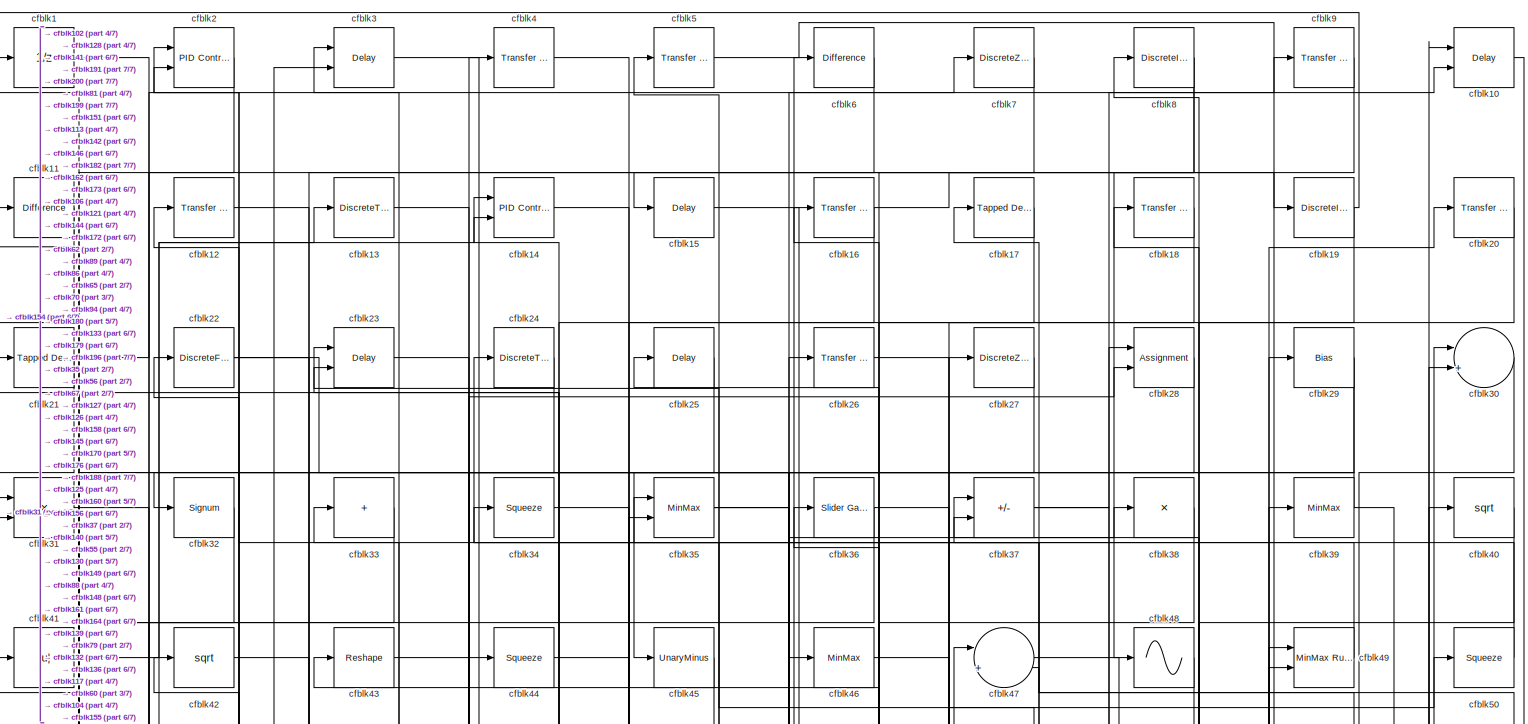
[diagram: root canvas - part 1/7, full width, top band]
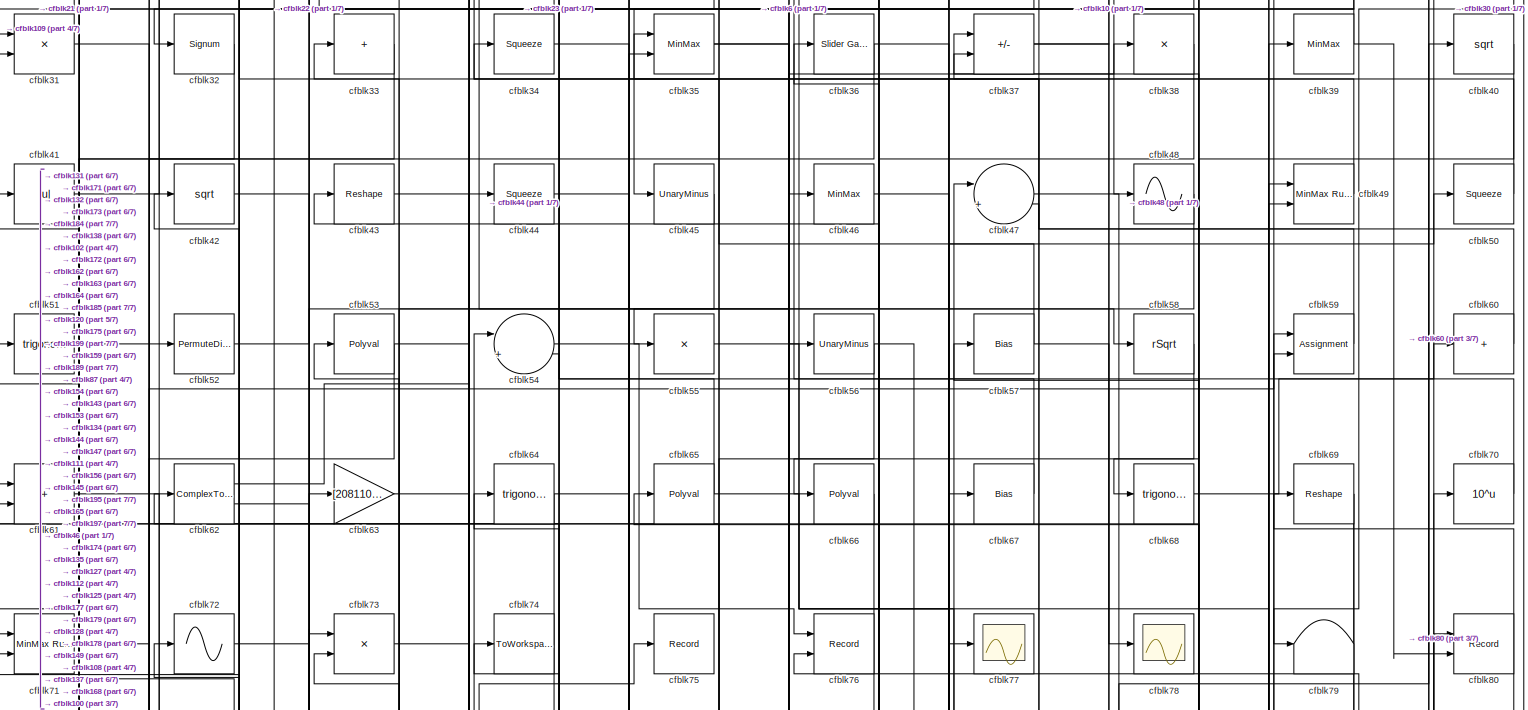
[diagram: root canvas - part 2/7, full width, top band]
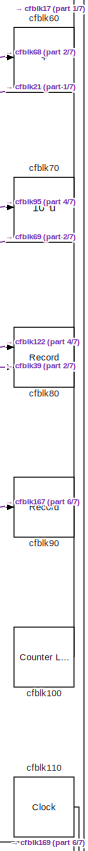
[diagram: root canvas - part 3/7, middle right region]
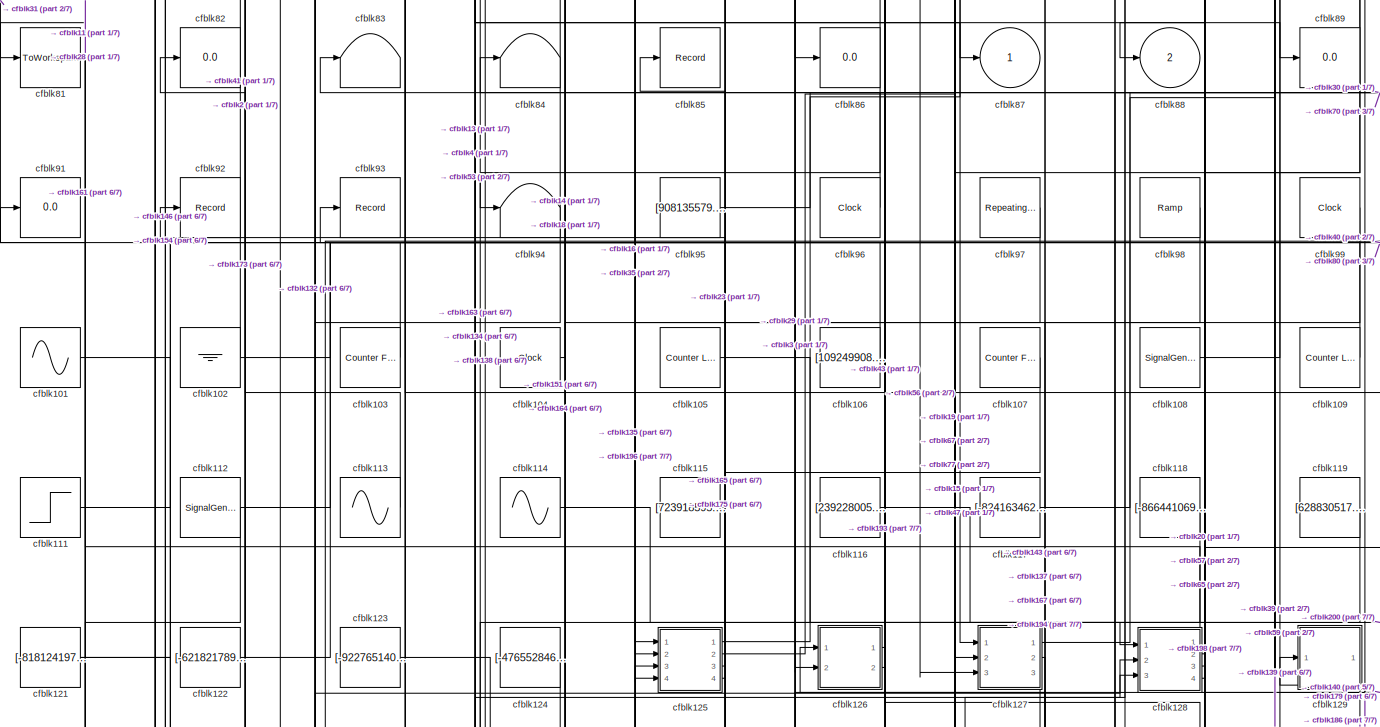
[diagram: root canvas - part 4/7, full width, middle band]
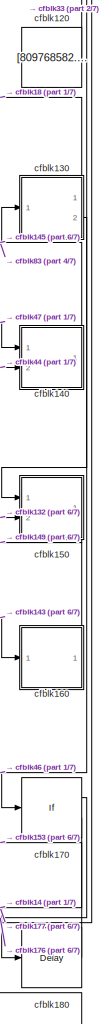
[diagram: root canvas - part 5/7, bottom right region]
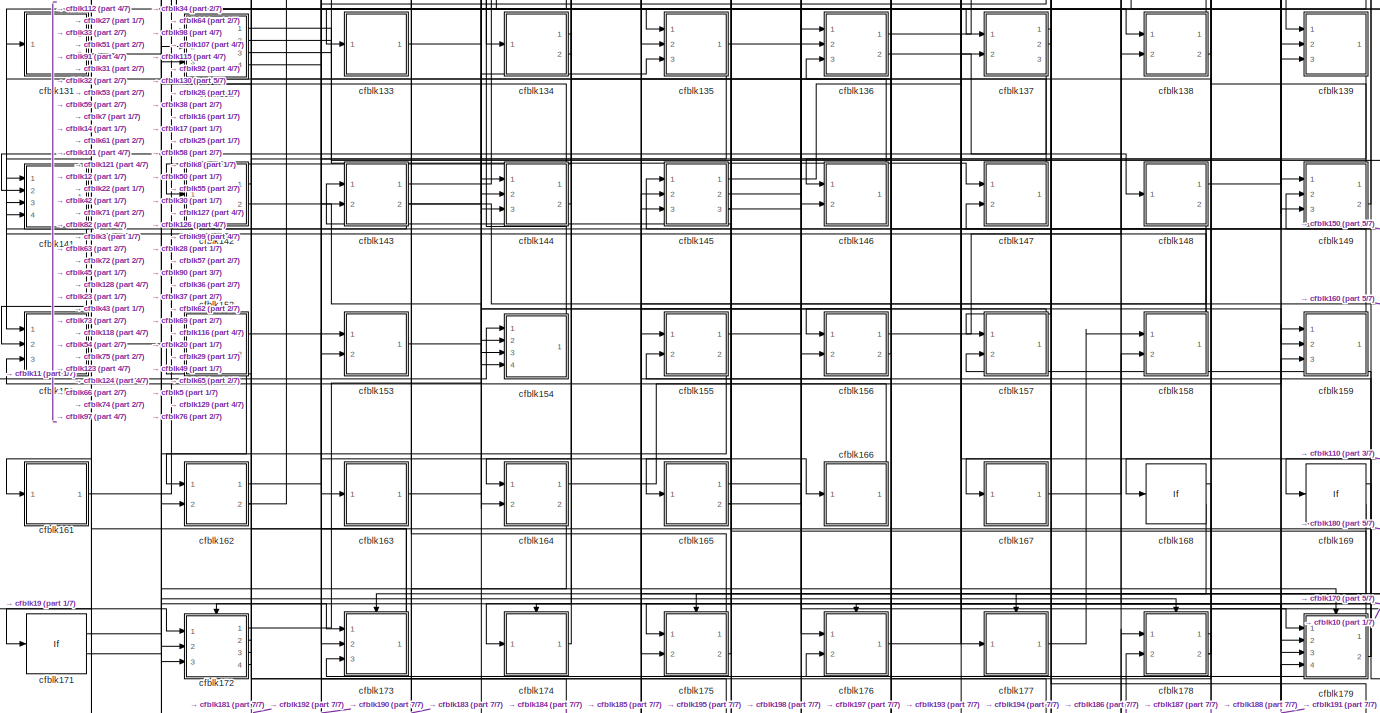
[diagram: root canvas - part 6/7, full width, bottom band]
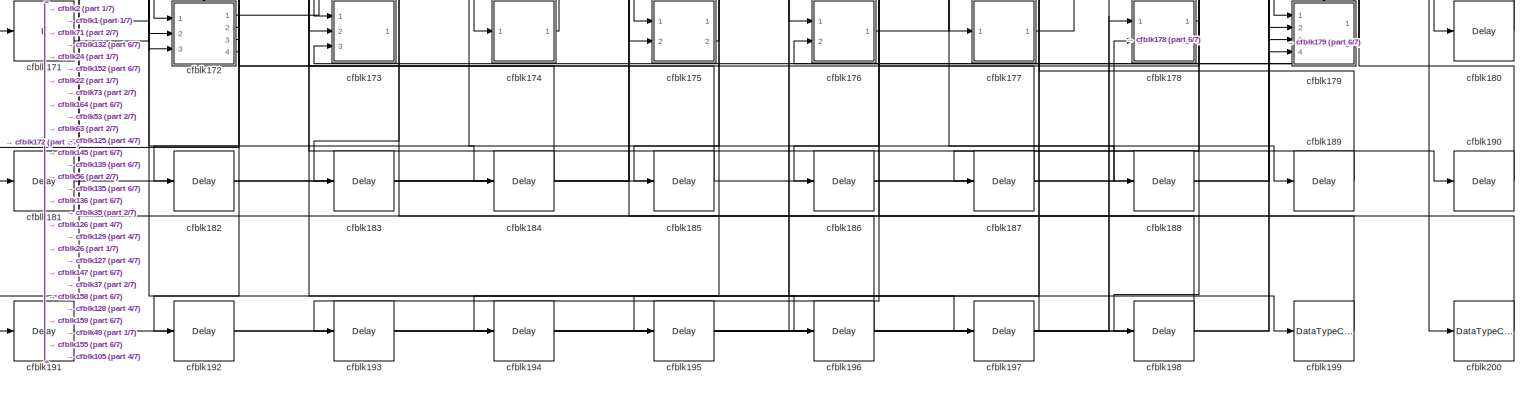
[diagram: root canvas - part 7/7, full width, bottom band]
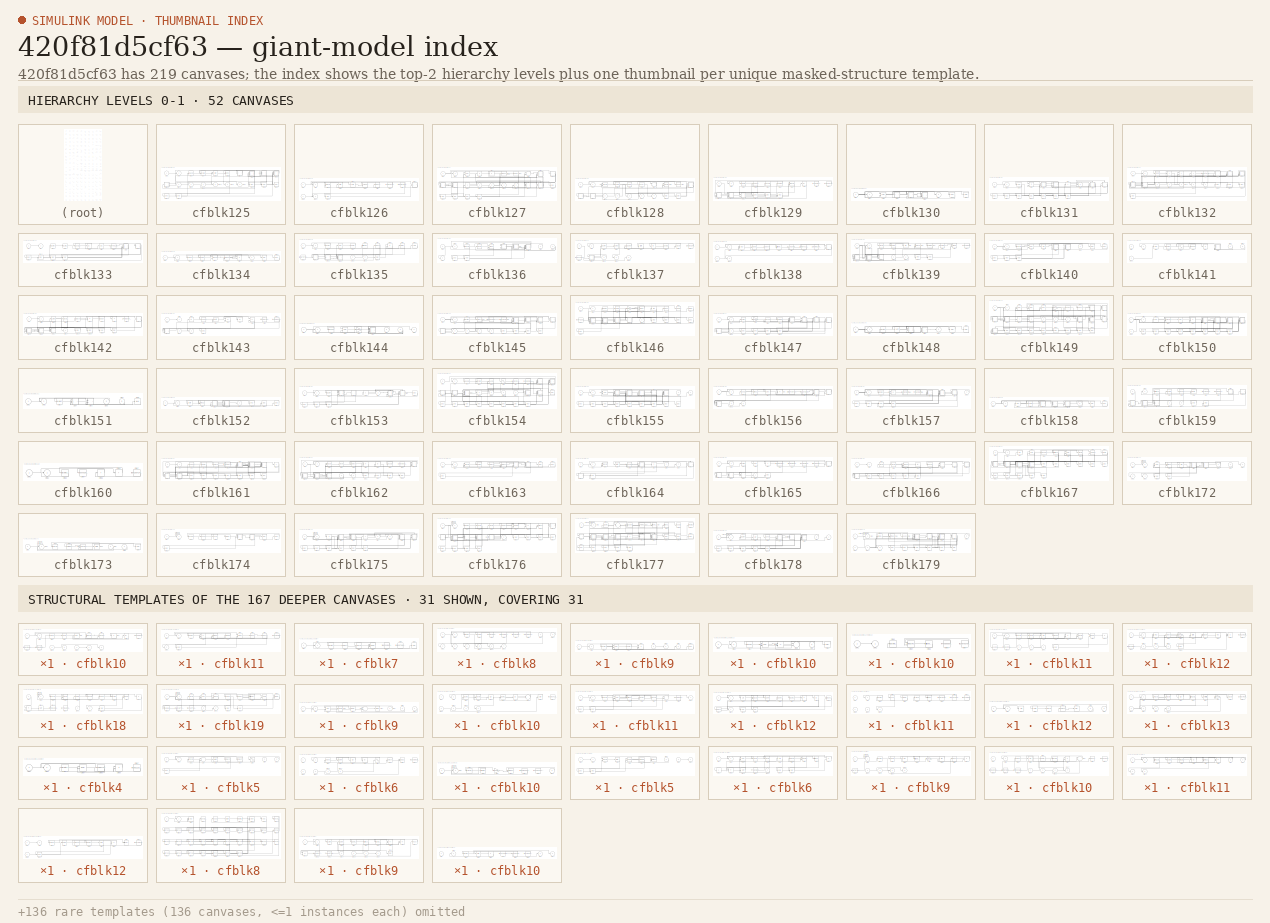
[diagram: thumbnail index - top-2 hierarchy levels (52 canvases) + 31 structural-template representatives of the remaining 167 canvases]
MODEL slx_420f81d5cf63
KIND model
CONFIG AbsTol = auto
CONFIG EnableMultiTasking = off
CONFIG FixedStep = auto
CONFIG MaxStep = auto
CONFIG MinStep = auto
CONFIG RelTol = 1e-3
CONFIG SampleTimeConstraint = Unconstrained
CONFIG SolverName = VariableStepAuto
CONFIG StartTime = 0.0
CONFIG StopTime = 10.0
BLOCK [UnitDelay] cfblk1
  HasFrameUpgradeWarning = on
BLOCK [Delay] cfblk10
  InputPortMap = u0,e6
  Ports = [2, 1]
  SampleTime = 1
  ShowEnablePort = on
BLOCK [Reference] cfblk100  REF=simulink/Sources/Counter
Limited
  Ports = [0, 1]
  SourceBlock = simulink/Sources/Counter\nLimited
  SourceProductBaseCode = SL
  SourceType = Counter Limited
BLOCK [Sin] cfblk101
  Amplitude = [773063809.845792]
  Bias = [655952196.754793]
  Ports = [0, 1]
  SampleTime = 0
BLOCK [Ground] cfblk102
BLOCK [Reference] cfblk103  REF=simulink/Sources/Counter
Free-Running
  Ports = [0, 1]
  SourceBlock = simulink/Sources/Counter\nFree-Running
  SourceProductBaseCode = SL
  SourceType = Counter Free-Running
BLOCK [Clock] cfblk104
BLOCK [Reference] cfblk105  REF=simulink/Sources/Counter
Limited
  Ports = [0, 1]
  SourceBlock = simulink/Sources/Counter\nLimited
  SourceProductBaseCode = SL
  SourceType = Counter Limited
BLOCK [Constant] cfblk106
  SampleTime = 1
  Value = [109249908.880494]
BLOCK [Reference] cfblk107  REF=simulink/Sources/Counter
Free-Running
  Ports = [0, 1]
  SourceBlock = simulink/Sources/Counter\nFree-Running
  SourceProductBaseCode = SL
  SourceType = Counter Free-Running
BLOCK [SignalGenerator] cfblk108
  Amplitude = [13452965.710921]
  Ports = [0, 1]
  WaveForm = sawtooth
BLOCK [Reference] cfblk109  REF=simulink/Sources/Counter
Limited
  Ports = [0, 1]
  SourceBlock = simulink/Sources/Counter\nLimited
  SourceProductBaseCode = SL
  SourceType = Counter Limited
BLOCK [Reference] cfblk11  REF=simulink/Discrete/Difference
  Ports = [1, 1]
  SourceBlock = simulink/Discrete/Difference
  SourceProductBaseCode = SL
  SourceType = Difference
BLOCK [Clock] cfblk110
BLOCK [Step] cfblk111
  After = [794614404.214897]
  Before = [-58060012.443622]
  SampleTime = 0
  Time = [14.000000]
BLOCK [SignalGenerator] cfblk112
  Amplitude = [-762282920.604162]
  Ports = [0, 1]
  Units = rad/sec
  WaveForm = sawtooth
BLOCK [Sin] cfblk113
  Amplitude = [-356034610.083544]
  Bias = [-701710230.192612]
  Ports = [0, 1]
  SampleTime = 0
BLOCK [Sin] cfblk114
  Amplitude = [643616227.211529]
  Bias = [3557649.516432]
  Ports = [0, 1]
  SampleTime = 0
BLOCK [Constant] cfblk115
  SampleTime = 1
  Value = [723918595.989899]
BLOCK [Constant] cfblk116
  SampleTime = 1
  Value = [239228005.059366]
BLOCK [Constant] cfblk117
  SampleTime = 1
  Value = [-824163462.597233]
BLOCK [Constant] cfblk118
  SampleTime = 1
  Value = [-866441069.003240]
BLOCK [Constant] cfblk119
  SampleTime = 1
  Value = [628830517.233013]
BLOCK [Reference] cfblk12  REF=simulink/Discrete/Transfer Fcn
First Order
  Ports = [1, 1]
  SourceBlock = simulink/Discrete/Transfer Fcn\nFirst Order
  SourceProductBaseCode = SL
  SourceType = First Order Transfer Fcn
BLOCK [Constant] cfblk120
  SampleTime = 1
  Value = [809768582.184358]
BLOCK [Constant] cfblk121
  SampleTime = 1
  Value = [-818124197.385706]
BLOCK [Constant] cfblk122
  SampleTime = 1
  Value = [-621821789.196454]
BLOCK [Constant] cfblk123
  SampleTime = 1
  Value = [-922765140.581083]
BLOCK [Constant] cfblk124
  SampleTime = 1
  Value = [-476552846.153060]
BLOCK [SubSystem] cfblk125
  Ports = [4, 4]
  RequestExecContextInheritance = off
BLOCK [Inport] cfblk125/cfblk1
BLOCK [SubSystem] cfblk125/cfblk10
  Ports = [4, 3]
  RequestExecContextInheritance = off
BLOCK [Inport] cfblk125/cfblk10/cfblk1
BLOCK [Constant] cfblk125/cfblk10/cfblk10
  SampleTime = 1
  Value = [781560997.885926]
BLOCK [Constant] cfblk125/cfblk10/cfblk11
  SampleTime = 1
  Value = [-786325686.899081]
BLOCK [Constant] cfblk125/cfblk10/cfblk12
  SampleTime = 1
  Value = [828386562.541228]
BLOCK [Inport] cfblk125/cfblk10/cfblk13
  Port = 2
BLOCK [Inport] cfblk125/cfblk10/cfblk14
  Port = 3
BLOCK [Inport] cfblk125/cfblk10/cfblk15
  Port = 4
BLOCK [Outport] cfblk125/cfblk10/cfblk16
  Port = 2
BLOCK [Outport] cfblk125/cfblk10/cfblk17
  Port = 3
BLOCK [Outport] cfblk125/cfblk10/cfblk2
BLOCK [Reference] cfblk125/cfblk10/cfblk3  REF=simulink/Discrete/Transfer Fcn
Real Zero
  Ports = [1, 1]
  SourceBlock = simulink/Discrete/Transfer Fcn\nReal Zero
  SourceProductBaseCode = SL
  SourceType = Transfer Fcn Real Zero
BLOCK [Reference] cfblk125/cfblk10/cfblk4  REF=simulink/Discrete/Transfer Fcn
First Order
  Ports = [1, 1]
  SourceBlock = simulink/Discrete/Transfer Fcn\nFirst Order
  SourceProductBaseCode = SL
  SourceType = First Order Transfer Fcn
BLOCK [Delay] cfblk125/cfblk10/cfblk5
  InputPortMap = u0
  Ports = [1, 1]
  SampleTime = 1
BLOCK [Reference] cfblk125/cfblk10/cfblk6  REF=simulink/Math
Operations/MinMax
Running
Resettable
  Ports = [2, 1]
  SourceBlock = simulink/Math\nOperations/MinMax\nRunning\nResettable
  SourceProductBaseCode = SL
  SourceType = MinMax Running Resettable
BLOCK [Assignment] cfblk125/cfblk10/cfblk7
  DiagnosticForDimensions = Warning
  IndexOptions = Index vector (dialog)
  Indices = 1
  OutputSizes = 1
  Ports = [2, 1]
BLOCK [Product] cfblk125/cfblk10/cfblk8
  Inputs = *
  Ports = [1, 1]
BLOCK [Abs] cfblk125/cfblk10/cfblk9
  SaturateOnIntegerOverflow = off
BLOCK [SubSystem] cfblk125/cfblk11
  Ports = [1, 2]
  RequestExecContextInheritance = off
BLOCK [Inport] cfblk125/cfblk11/cfblk1
BLOCK [Constant] cfblk125/cfblk11/cfblk10
  SampleTime = 1
  Value = [387348995.231708]
BLOCK [Outport] cfblk125/cfblk11/cfblk11
  Port = 2
BLOCK [Delay] cfblk125/cfblk11/cfblk12
  InputPortMap = u0
  Ports = [1, 1]
  SampleTime = 1
BLOCK [Outport] cfblk125/cfblk11/cfblk2
BLOCK [DiscreteZeroPole] cfblk125/cfblk11/cfblk3
  Gain = 1
  Poles = [0 0.5]
BLOCK [Sum] cfblk125/cfblk11/cfblk4
  IconShape = rectangular
  Inputs = +-
  Ports = [2, 1]
BLOCK [DotProduct] cfblk125/cfblk11/cfblk5
  OutDataTypeStr = Inherit: Inherit via internal rule
BLOCK [PermuteDimensions] cfblk125/cfblk11/cfblk6
BLOCK [MinMax] cfblk125/cfblk11/cfblk7
  Inputs = 2
  Ports = [2, 1]
BLOCK [ComplexToRealImag] cfblk125/cfblk11/cfblk8
  Ports = [1, 2]
BLOCK [ComplexToMagnitudeAngle] cfblk125/cfblk11/cfblk9
  Ports = [1, 2]
BLOCK [Inport] cfblk125/cfblk12
  Port = 2
BLOCK [Inport] cfblk125/cfblk13
  Port = 3
BLOCK [Inport] cfblk125/cfblk14
  Port = 4
BLOCK [Outport] cfblk125/cfblk15
  Port = 2
BLOCK [Outport] cfblk125/cfblk16
  Port = 3
BLOCK [Outport] cfblk125/cfblk17
  Port = 4
BLOCK [Delay] cfblk125/cfblk18
  InputPortMap = u0
  Ports = [1, 1]
  SampleTime = 1
BLOCK [Delay] cfblk125/cfblk19
  InputPortMap = u0
  Ports = [1, 1]
  SampleTime = 1
BLOCK [Outport] cfblk125/cfblk2
BLOCK [Delay] cfblk125/cfblk20
  InputPortMap = u0
  Ports = [1, 1]
  SampleTime = 1
BLOCK [Delay] cfblk125/cfblk21
  InputPortMap = u0
  Ports = [1, 1]
  SampleTime = 1
BLOCK [Delay] cfblk125/cfblk22
  InputPortMap = u0
  Ports = [1, 1]
  SampleTime = 1
BLOCK [Reference] cfblk125/cfblk3  REF=slpidlib/PID Controller
  Ports = [1, 1]
  SourceBlock = slpidlib/PID Controller
  SourceProductBaseCode = SL
  SourceType = PID 1dof
BLOCK [DiscreteFir] cfblk125/cfblk4
  InputPortMap = u0
  OutputPortMap = o0
  Ports = [1, 1]
  SampleTime = 1
BLOCK [Math] cfblk125/cfblk5
  Operator = rem
  Ports = [2, 1]
BLOCK [Trigonometry] cfblk125/cfblk6
  Ports = [1, 1]
BLOCK [SubSystem] cfblk125/cfblk7
  Ports = [1, 1]
  RequestExecContextInheritance = off
BLOCK [Inport] cfblk125/cfblk7/cfblk1
BLOCK [Outport] cfblk125/cfblk7/cfblk2
BLOCK [DiscreteTransferFcn] cfblk125/cfblk7/cfblk3
  InputPortMap = u0
  Ports = [1, 1]
  SampleTime = 1
BLOCK [ComplexToMagnitudeAngle] cfblk125/cfblk7/cfblk4
  Ports = [1, 2]
BLOCK [Signum] cfblk125/cfblk7/cfblk5
BLOCK [MinMax] cfblk125/cfblk7/cfblk6
  Inputs = 3
  Ports = [3, 1]
BLOCK [Constant] cfblk125/cfblk7/cfblk7
  SampleTime = 1
  Value = [386930589.509342]
BLOCK [Constant] cfblk125/cfblk7/cfblk8
  SampleTime = 1
  Value = [-598257646.830201]
BLOCK [Delay] cfblk125/cfblk7/cfblk9
  InputPortMap = u0
  Ports = [1, 1]
  SampleTime = 1
BLOCK [SubSystem] cfblk125/cfblk8
  Ports = [3, 7]
  RequestExecContextInheritance = off
BLOCK [Inport] cfblk125/cfblk8/cfblk1
BLOCK [Inport] cfblk125/cfblk8/cfblk10
  Port = 3
BLOCK [Outport] cfblk125/cfblk8/cfblk11
  Port = 2
BLOCK [Outport] cfblk125/cfblk8/cfblk12
  Port = 3
BLOCK [Outport] cfblk125/cfblk8/cfblk13
  Port = 4
BLOCK [Outport] cfblk125/cfblk8/cfblk14
  Port = 5
BLOCK [Outport] cfblk125/cfblk8/cfblk15
  Port = 6
BLOCK [Outport] cfblk125/cfblk8/cfblk16
  Port = 7
BLOCK [Outport] cfblk125/cfblk8/cfblk2
BLOCK [Reference] cfblk125/cfblk8/cfblk3  REF=simulink/Math
Operations/Slider
Gain
  Ports = [1, 1]
  SourceBlock = simulink/Math\nOperations/Slider\nGain
  SourceProductBaseCode = SL
  SourceType = Slider Gain
BLOCK [UnaryMinus] cfblk125/cfblk8/cfblk4
BLOCK [Constant] cfblk125/cfblk8/cfblk5
  SampleTime = 1
  Value = [312453252.663151]
BLOCK [Constant] cfblk125/cfblk8/cfblk6
  SampleTime = 1
  Value = [-148155631.933216]
BLOCK [Constant] cfblk125/cfblk8/cfblk7
  SampleTime = 1
  Value = [-621626820.272362]
BLOCK [Constant] cfblk125/cfblk8/cfblk8
  SampleTime = 1
  Value = [256908239.646860]
BLOCK [Inport] cfblk125/cfblk8/cfblk9
  Port = 2
BLOCK [SubSystem] cfblk125/cfblk9
  Ports = [2, 3]
  RequestExecContextInheritance = off
BLOCK [Inport] cfblk125/cfblk9/cfblk1
BLOCK [Delay] cfblk125/cfblk9/cfblk10
  InputPortMap = u0
  Ports = [1, 1]
  SampleTime = 1
BLOCK [Outport] cfblk125/cfblk9/cfblk2
BLOCK [DiscreteZeroPole] cfblk125/cfblk9/cfblk3
  Gain = 1
  Poles = [0 0.5]
BLOCK [Delay] cfblk125/cfblk9/cfblk4
  DelayLengthSource = Input port
  InputPortMap = u0,p1
  Ports = [2, 1]
  SampleTime = 1
BLOCK [DiscreteFilter] cfblk125/cfblk9/cfblk5
  InputPortMap = u0
  Ports = [1, 1]
  SampleTime = 1
BLOCK [Product] cfblk125/cfblk9/cfblk6
  Inputs = **
  Ports = [2, 1]
BLOCK [Inport] cfblk125/cfblk9/cfblk7
  Port = 2
BLOCK [Outport] cfblk125/cfblk9/cfblk8
  Port = 2
BLOCK [Outport] cfblk125/cfblk9/cfblk9
  Port = 3
BLOCK [SubSystem] cfblk126
  Ports = [2, 2]
  RequestExecContextInheritance = off
BLOCK [Inport] cfblk126/cfblk1
BLOCK [SubSystem] cfblk126/cfblk10
  Ports = [2, 1]
  RequestExecContextInheritance = off
BLOCK [Inport] cfblk126/cfblk10/cfblk1
BLOCK [Outport] cfblk126/cfblk10/cfblk2
BLOCK [Reference] cfblk126/cfblk10/cfblk3  REF=simulink/Discrete/Transfer Fcn
Lead or Lag
  Ports = [1, 1]
  SourceBlock = simulink/Discrete/Transfer Fcn\nLead or Lag
  SourceProductBaseCode = SL
  SourceType = Lead or Lag Compensator
BLOCK [Delay] cfblk126/cfblk10/cfblk4
  InputPortMap = u0,e6
  Ports = [2, 1]
  SampleTime = 1
  ShowEnablePort = on
BLOCK [Sum] cfblk126/cfblk10/cfblk5
  IconShape = rectangular
  Inputs = +-
  Ports = [2, 1]
BLOCK [Sum] cfblk126/cfblk10/cfblk6
  Inputs = |++
  Ports = [2, 1]
BLOCK [Inport] cfblk126/cfblk10/cfblk7
  Port = 2
BLOCK [Delay] cfblk126/cfblk10/cfblk8
  InputPortMap = u0
  Ports = [1, 1]
  SampleTime = 1
BLOCK [Inport] cfblk126/cfblk11
  Port = 2
BLOCK [Outport] cfblk126/cfblk12
  Port = 2
BLOCK [Delay] cfblk126/cfblk13
  InputPortMap = u0
  Ports = [1, 1]
  SampleTime = 1
BLOCK [Outport] cfblk126/cfblk2
BLOCK [Reference] cfblk126/cfblk3  REF=slpidlib/PID Controller (2DOF)
  Ports = [2, 1]
  SourceBlock = slpidlib/PID Controller (2DOF)
  SourceProductBaseCode = SL
  SourceType = PID 2dof
BLOCK [Sqrt] cfblk126/cfblk4
BLOCK [Sqrt] cfblk126/cfblk5
BLOCK [Assignment] cfblk126/cfblk6
  DiagnosticForDimensions = Warning
  IndexOptions = Index vector (dialog)
  Indices = 1
  OutputSizes = 1
  Ports = [2, 1]
BLOCK [ComplexToMagnitudeAngle] cfblk126/cfblk7
  Ports = [1, 2]
BLOCK [Constant] cfblk126/cfblk8
  SampleTime = 1
  Value = [175423044.447919]
BLOCK [Constant] cfblk126/cfblk9
  SampleTime = 1
  Value = [-452867259.274867]
BLOCK [SubSystem] cfblk127
  Ports = [3, 3]
  RequestExecContextInheritance = off
BLOCK [Inport] cfblk127/cfblk1
BLOCK [SubSystem] cfblk127/cfblk10
  Ports = [1, 1]
  RequestExecContextInheritance = off
BLOCK [Inport] cfblk127/cfblk10/cfblk1
BLOCK [Outport] cfblk127/cfblk10/cfblk2
BLOCK [DiscreteIntegrator] cfblk127/cfblk10/cfblk3
  ICPrevOutput = DiscIntNeverNeededParam
  ICPrevScaledInput = DiscIntNeverNeededParam
  InitialConditionSetting = Auto
  Ports = [1, 1]
BLOCK [Reference] cfblk127/cfblk10/cfblk4  REF=simulink/Math
Operations/MinMax
Running
Resettable
  Ports = [2, 1]
  SourceBlock = simulink/Math\nOperations/MinMax\nRunning\nResettable
  SourceProductBaseCode = SL
  SourceType = MinMax Running Resettable
BLOCK [Trigonometry] cfblk127/cfblk10/cfblk5
  Ports = [1, 1]
BLOCK [Constant] cfblk127/cfblk10/cfblk6
  SampleTime = 1
  Value = [-746085580.429931]
BLOCK [Constant] cfblk127/cfblk10/cfblk7
  SampleTime = 1
  Value = [-524679379.923421]
BLOCK [SubSystem] cfblk127/cfblk11
  Ports = [3, 2]
  RequestExecContextInheritance = off
BLOCK [Inport] cfblk127/cfblk11/cfblk1
BLOCK [Product] cfblk127/cfblk11/cfblk10
  Inputs = *
  Ports = [1, 1]
BLOCK [Rounding] cfblk127/cfblk11/cfblk11
BLOCK [Constant] cfblk127/cfblk11/cfblk12
  SampleTime = 1
  Value = [729150256.694984]
BLOCK [Inport] cfblk127/cfblk11/cfblk13
  Port = 2
BLOCK [Inport] cfblk127/cfblk11/cfblk14
  Port = 3
BLOCK [Outport] cfblk127/cfblk11/cfblk15
  Port = 2
BLOCK [Delay] cfblk127/cfblk11/cfblk16
  InputPortMap = u0
  Ports = [1, 1]
  SampleTime = 1
BLOCK [Outport] cfblk127/cfblk11/cfblk2
BLOCK [Reference] cfblk127/cfblk11/cfblk3  REF=simulink/Discrete/Transfer Fcn
Real Zero
  Ports = [1, 1]
  SourceBlock = simulink/Discrete/Transfer Fcn\nReal Zero
  SourceProductBaseCode = SL
  SourceType = Transfer Fcn Real Zero
BLOCK [Reference] cfblk127/cfblk11/cfblk4  REF=simulink/Discrete/Transfer Fcn
Lead or Lag
  Ports = [1, 1]
  SourceBlock = simulink/Discrete/Transfer Fcn\nLead or Lag
  SourceProductBaseCode = SL
  SourceType = Lead or Lag Compensator
BLOCK [UnitDelay] cfblk127/cfblk11/cfblk5
  HasFrameUpgradeWarning = on
BLOCK [Reference] cfblk127/cfblk11/cfblk6  REF=slpidlib/PID Controller
  Ports = [1, 1]
  SourceBlock = slpidlib/PID Controller
  SourceProductBaseCode = SL
  SourceType = PID 1dof
BLOCK [Product] cfblk127/cfblk11/cfblk7
  Inputs = **
  Ports = [2, 1]
BLOCK [Assignment] cfblk127/cfblk11/cfblk8
  DiagnosticForDimensions = Warning
  IndexOptions = Index vector (dialog)
  Indices = 1
  OutputSizes = 1
  Ports = [2, 1]
BLOCK [Reference] cfblk127/cfblk11/cfblk9  REF=simulink/Math
Operations/MinMax
Running
Resettable
  Ports = [2, 1]
  SourceBlock = simulink/Math\nOperations/MinMax\nRunning\nResettable
  SourceProductBaseCode = SL
  SourceType = MinMax Running Resettable
BLOCK [SubSystem] cfblk127/cfblk12
  Ports = [3, 2]
  RequestExecContextInheritance = off
BLOCK [Inport] cfblk127/cfblk12/cfblk1
BLOCK [Constant] cfblk127/cfblk12/cfblk10
  SampleTime = 1
  Value = [615128914.038853]
BLOCK [Constant] cfblk127/cfblk12/cfblk11
  SampleTime = 1
  Value = [859922555.780517]
BLOCK [Inport] cfblk127/cfblk12/cfblk12
  Port = 2
BLOCK [Inport] cfblk127/cfblk12/cfblk13
  Port = 3
BLOCK [Outport] cfblk127/cfblk12/cfblk14
  Port = 2
BLOCK [Delay] cfblk127/cfblk12/cfblk15
  InputPortMap = u0
  Ports = [1, 1]
  SampleTime = 1
BLOCK [Outport] cfblk127/cfblk12/cfblk2
BLOCK [Delay] cfblk127/cfblk12/cfblk3
  InputPortMap = u0,e6
  Ports = [2, 1]
  SampleTime = 1
  ShowEnablePort = on
BLOCK [ComplexToMagnitudeAngle] cfblk127/cfblk12/cfblk4
  Ports = [1, 2]
BLOCK [Gain] cfblk127/cfblk12/cfblk5
  Gain = [668982421.802994]
BLOCK [Sqrt] cfblk127/cfblk12/cfblk6
  AlgorithmType = Newton-Raphson
  Operator = rSqrt
BLOCK [Reference] cfblk127/cfblk12/cfblk7  REF=simulink/Math
Operations/MinMax
Running
Resettable
  Ports = [2, 1]
  SourceBlock = simulink/Math\nOperations/MinMax\nRunning\nResettable
  SourceProductBaseCode = SL
  SourceType = MinMax Running Resettable
BLOCK [Math] cfblk127/cfblk12/cfblk8
  Operator = log
  Ports = [1, 1]
BLOCK [Product] cfblk127/cfblk12/cfblk9
  Ports = [2, 1]
BLOCK [If] cfblk127/cfblk13
  IfExpression = u1 >= 0
  Ports = [1, 2]
  SampleTime = 1
BLOCK [Inport] cfblk127/cfblk14
  Port = 2
BLOCK [Inport] cfblk127/cfblk15
  Port = 3
BLOCK [Outport] cfblk127/cfblk16
  Port = 2
BLOCK [Outport] cfblk127/cfblk17
  Port = 3
BLOCK [SubSystem] cfblk127/cfblk18
  Ports = [2, 2, 0, 0, 0, 0, 0, 1]
  RequestExecContextInheritance = off
  TreatAsAtomicUnit = on
BLOCK [ActionPort] cfblk127/cfblk18/Action Port
  ActionPortLabel = if(u1 >= 0)
BLOCK [Inport] cfblk127/cfblk18/cfblk1
BLOCK [Product] cfblk127/cfblk18/cfblk10
  Inputs = *
  Ports = [1, 1]
BLOCK [Product] cfblk127/cfblk18/cfblk11
  Ports = [2, 1]
BLOCK [Sqrt] cfblk127/cfblk18/cfblk12
BLOCK [Constant] cfblk127/cfblk18/cfblk13
  SampleTime = 1
  Value = [793281884.610753]
BLOCK [Constant] cfblk127/cfblk18/cfblk14
  SampleTime = 1
  Value = [227386444.303892]
BLOCK [Inport] cfblk127/cfblk18/cfblk15
  Port = 2
BLOCK [Outport] cfblk127/cfblk18/cfblk16
  Port = 2
BLOCK [Delay] cfblk127/cfblk18/cfblk17
  InputPortMap = u0
  Ports = [1, 1]
BLOCK [Outport] cfblk127/cfblk18/cfblk2
BLOCK [Reference] cfblk127/cfblk18/cfblk3  REF=simulink/Discrete/Transfer Fcn
Real Zero
  Ports = [1, 1]
  SourceBlock = simulink/Discrete/Transfer Fcn\nReal Zero
  SourceProductBaseCode = SL
  SourceType = Transfer Fcn Real Zero
BLOCK [Reference] cfblk127/cfblk18/cfblk4  REF=slpidlib/PID Controller (2DOF)
  Ports = [2, 1]
  SourceBlock = slpidlib/PID Controller (2DOF)
  SourceProductBaseCode = SL
  SourceType = PID 2dof
BLOCK [DiscreteFilter] cfblk127/cfblk18/cfblk5
  InputPortMap = u0
  Ports = [1, 1]
BLOCK [Reference] cfblk127/cfblk18/cfblk6  REF=simulink/Discrete/Tapped Delay
  Ports = [1, 1]
  SourceBlock = simulink/Discrete/Tapped Delay
  SourceProductBaseCode = SL
  SourceType = Tapped Delay Line
BLOCK [Reference] cfblk127/cfblk18/cfblk7  REF=simulink/Discrete/Transfer Fcn
Lead or Lag
  Ports = [1, 1]
  SourceBlock = simulink/Discrete/Transfer Fcn\nLead or Lag
  SourceProductBaseCode = SL
  SourceType = Lead or Lag Compensator
BLOCK [DiscreteFir] cfblk127/cfblk18/cfblk8
  InputPortMap = u0
  OutputPortMap = o0
  Ports = [1, 1]
BLOCK [Reference] cfblk127/cfblk18/cfblk9  REF=simulink/Math
Operations/MinMax
Running
Resettable
  Ports = [2, 1]
  SourceBlock = simulink/Math\nOperations/MinMax\nRunning\nResettable
  SourceProductBaseCode = SL
  SourceType = MinMax Running Resettable
BLOCK [SubSystem] cfblk127/cfblk19
  Ports = [2, 2, 0, 0, 0, 0, 0, 1]
  RequestExecContextInheritance = off
  TreatAsAtomicUnit = on
BLOCK [ActionPort] cfblk127/cfblk19/Action Port
  ActionPortLabel = else
BLOCK [Inport] cfblk127/cfblk19/cfblk1
BLOCK [MinMax] cfblk127/cfblk19/cfblk10
  Inputs = 3
  Ports = [3, 1]
BLOCK [Assignment] cfblk127/cfblk19/cfblk11
  DiagnosticForDimensions = Warning
  IndexOptions = Index vector (dialog)
  Indices = 1
  OutputSizes = 1
  Ports = [2, 1]
BLOCK [Constant] cfblk127/cfblk19/cfblk12
  SampleTime = 1
  Value = [750015721.770692]
BLOCK [Constant] cfblk127/cfblk19/cfblk13
  SampleTime = 1
  Value = [857367764.681765]
BLOCK [Inport] cfblk127/cfblk19/cfblk14
  Port = 2
BLOCK [Outport] cfblk127/cfblk19/cfblk15
  Port = 2
BLOCK [Delay] cfblk127/cfblk19/cfblk16
  InputPortMap = u0
  Ports = [1, 1]
BLOCK [Delay] cfblk127/cfblk19/cfblk17
  InputPortMap = u0
  Ports = [1, 1]
BLOCK [Outport] cfblk127/cfblk19/cfblk2
BLOCK [Reference] cfblk127/cfblk19/cfblk3  REF=simulink/Discrete/Transfer Fcn
Lead or Lag
  Ports = [1, 1]
  SourceBlock = simulink/Discrete/Transfer Fcn\nLead or Lag
  SourceProductBaseCode = SL
  SourceType = Lead or Lag Compensator
BLOCK [Delay] cfblk127/cfblk19/cfblk4
  InputPortMap = u0,e6
  Ports = [2, 1]
  ShowEnablePort = on
BLOCK [Reference] cfblk127/cfblk19/cfblk5  REF=slpidlib/PID Controller (2DOF)
  Ports = [2, 1]
  SourceBlock = slpidlib/PID Controller (2DOF)
  SourceProductBaseCode = SL
  SourceType = PID 2dof
BLOCK [Reference] cfblk127/cfblk19/cfblk6  REF=simulink/Discrete/Transfer Fcn
First Order
  Ports = [1, 1]
  SourceBlock = simulink/Discrete/Transfer Fcn\nFirst Order
  SourceProductBaseCode = SL
  SourceType = First Order Transfer Fcn
BLOCK [ComplexToMagnitudeAngle] cfblk127/cfblk19/cfblk7
  Ports = [1, 2]
BLOCK [Trigonometry] cfblk127/cfblk19/cfblk8
  Ports = [1, 1]
BLOCK [Math] cfblk127/cfblk19/cfblk9
  Operator = pow
  Ports = [2, 1]
BLOCK [Outport] cfblk127/cfblk2
BLOCK [Delay] cfblk127/cfblk20
  InputPortMap = u0
  Ports = [1, 1]
  SampleTime = 1
BLOCK [Delay] cfblk127/cfblk21
  InputPortMap = u0
  Ports = [1, 1]
  SampleTime = 1
BLOCK [Delay] cfblk127/cfblk22
  InputPortMap = u0
  Ports = [1, 1]
  SampleTime = 1
BLOCK [Delay] cfblk127/cfblk23
  InputPortMap = u0
  Ports = [1, 1]
  SampleTime = 1
BLOCK [Delay] cfblk127/cfblk24
  InputPortMap = u0
  Ports = [1, 1]
  SampleTime = 1
BLOCK [Delay] cfblk127/cfblk3
  DelayLengthSource = Input port
  InputPortMap = u0,p1
  Ports = [2, 1]
  SampleTime = 1
BLOCK [Product] cfblk127/cfblk4
  Inputs = *
  Ports = [1, 1]
BLOCK [Product] cfblk127/cfblk5
  Inputs = *
  Ports = [1, 1]
BLOCK [ComplexToRealImag] cfblk127/cfblk6
  Ports = [1, 2]
BLOCK [ComplexToRealImag] cfblk127/cfblk7
  Ports = [1, 2]
BLOCK [Sum] cfblk127/cfblk8
  Inputs = |++
  Ports = [2, 1]
BLOCK [SubSystem] cfblk127/cfblk9
  Ports = [4, 1]
  RequestExecContextInheritance = off
BLOCK [Inport] cfblk127/cfblk9/cfblk1
BLOCK [Inport] cfblk127/cfblk9/cfblk10
  Port = 4
BLOCK [Outport] cfblk127/cfblk9/cfblk2
BLOCK [Delay] cfblk127/cfblk9/cfblk3
  DelayLengthSource = Input port
  InputPortMap = u0,p1
  Ports = [2, 1]
  SampleTime = 1
BLOCK [Reference] cfblk127/cfblk9/cfblk4  REF=simulink/Discrete/Transfer Fcn
First Order
  Ports = [1, 1]
  SourceBlock = simulink/Discrete/Transfer Fcn\nFirst Order
  SourceProductBaseCode = SL
  SourceType = First Order Transfer Fcn
BLOCK [MinMax] cfblk127/cfblk9/cfblk5
  Ports = [1, 1]
BLOCK [Sum] cfblk127/cfblk9/cfblk6
  Inputs = |++
  Ports = [2, 1]
BLOCK [Sqrt] cfblk127/cfblk9/cfblk7
  AlgorithmType = Newton-Raphson
  Operator = rSqrt
BLOCK [Inport] cfblk127/cfblk9/cfblk8
  Port = 2
BLOCK [Inport] cfblk127/cfblk9/cfblk9
  Port = 3
BLOCK [SubSystem] cfblk128
  Ports = [3, 4]
  RequestExecContextInheritance = off
BLOCK [Inport] cfblk128/cfblk1
BLOCK [SubSystem] cfblk128/cfblk10
  Ports = [4, 2]
  RequestExecContextInheritance = off
BLOCK [Inport] cfblk128/cfblk10/cfblk1
BLOCK [Constant] cfblk128/cfblk10/cfblk10
  SampleTime = 1
  Value = [-502659713.459819]
BLOCK [Inport] cfblk128/cfblk10/cfblk11
  Port = 2
BLOCK [Inport] cfblk128/cfblk10/cfblk12
  Port = 3
BLOCK [Inport] cfblk128/cfblk10/cfblk13
  Port = 4
BLOCK [Outport] cfblk128/cfblk10/cfblk14
  Port = 2
BLOCK [Outport] cfblk128/cfblk10/cfblk2
BLOCK [DiscreteIntegrator] cfblk128/cfblk10/cfblk3
  ICPrevOutput = DiscIntNeverNeededParam
  ICPrevScaledInput = DiscIntNeverNeededParam
  InitialConditionSetting = Auto
  Ports = [1, 1]
BLOCK [Reference] cfblk128/cfblk10/cfblk4  REF=simulink/Discrete/Transfer Fcn
Real Zero
  Ports = [1, 1]
  SourceBlock = simulink/Discrete/Transfer Fcn\nReal Zero
  SourceProductBaseCode = SL
  SourceType = Transfer Fcn Real Zero
BLOCK [UnitDelay] cfblk128/cfblk10/cfblk5
  HasFrameUpgradeWarning = on
BLOCK [DiscreteZeroPole] cfblk128/cfblk10/cfblk6
  Gain = 1
  Poles = [0 0.5]
BLOCK [Abs] cfblk128/cfblk10/cfblk7
  SaturateOnIntegerOverflow = off
BLOCK [Sum] cfblk128/cfblk10/cfblk8
  Inputs = |++
  Ports = [2, 1]
BLOCK [Sqrt] cfblk128/cfblk10/cfblk9
BLOCK [SubSystem] cfblk128/cfblk11
  Ports = [1, 2]
  RequestExecContextInheritance = off
BLOCK [Inport] cfblk128/cfblk11/cfblk1
BLOCK [Outport] cfblk128/cfblk11/cfblk10
  Port = 2
BLOCK [Delay] cfblk128/cfblk11/cfblk11
  InputPortMap = u0
  Ports = [1, 1]
  SampleTime = 1
BLOCK [Delay] cfblk128/cfblk11/cfblk12
  InputPortMap = u0
  Ports = [1, 1]
  SampleTime = 1
BLOCK [Outport] cfblk128/cfblk11/cfblk2
BLOCK [Reference] cfblk128/cfblk11/cfblk3  REF=simulink/Discrete/Transfer Fcn
First Order
  Ports = [1, 1]
  SourceBlock = simulink/Discrete/Transfer Fcn\nFirst Order
  SourceProductBaseCode = SL
  SourceType = First Order Transfer Fcn
BLOCK [Delay] cfblk128/cfblk11/cfblk4
  DelayLengthSource = Input port
  InputPortMap = u0,p1
  Ports = [2, 1]
  SampleTime = 1
BLOCK [Reference] cfblk128/cfblk11/cfblk5  REF=simulink/Discrete/Difference
  Ports = [1, 1]
  SourceBlock = simulink/Discrete/Difference
  SourceProductBaseCode = SL
  SourceType = Difference
BLOCK [Reference] cfblk128/cfblk11/cfblk6  REF=simulink/Discrete/Transfer Fcn
Real Zero
  Ports = [1, 1]
  SourceBlock = simulink/Discrete/Transfer Fcn\nReal Zero
  SourceProductBaseCode = SL
  SourceType = Transfer Fcn Real Zero
BLOCK [Reshape] cfblk128/cfblk11/cfblk7
  Ports = [1, 1]
BLOCK [Sum] cfblk128/cfblk11/cfblk8
  Inputs = |++
  Ports = [2, 1]
BLOCK [Constant] cfblk128/cfblk11/cfblk9
  SampleTime = 1
  Value = [14854266.189556]
BLOCK [SubSystem] cfblk128/cfblk12
  Ports = [1, 2]
  RequestExecContextInheritance = off
BLOCK [Inport] cfblk128/cfblk12/cfblk1
BLOCK [Reference] cfblk128/cfblk12/cfblk10  REF=simulink/Math
Operations/MinMax
Running
Resettable
  Ports = [2, 1]
  SourceBlock = simulink/Math\nOperations/MinMax\nRunning\nResettable
  SourceProductBaseCode = SL
  SourceType = MinMax Running Resettable
BLOCK [ComplexToMagnitudeAngle] cfblk128/cfblk12/cfblk11
  Ports = [1, 2]
BLOCK [Outport] cfblk128/cfblk12/cfblk12
  Port = 2
BLOCK [Delay] cfblk128/cfblk12/cfblk13
  InputPortMap = u0
  Ports = [1, 1]
  SampleTime = 1
BLOCK [Delay] cfblk128/cfblk12/cfblk14
  InputPortMap = u0
  Ports = [1, 1]
  SampleTime = 1
BLOCK [Outport] cfblk128/cfblk12/cfblk2
BLOCK [UnitDelay] cfblk128/cfblk12/cfblk3
  HasFrameUpgradeWarning = on
BLOCK [Reference] cfblk128/cfblk12/cfblk4  REF=slpidlib/PID Controller (2DOF)
  Ports = [2, 1]
  SourceBlock = slpidlib/PID Controller (2DOF)
  SourceProductBaseCode = SL
  SourceType = PID 2dof
BLOCK [DiscreteFir] cfblk128/cfblk12/cfblk5
  InputPortMap = u0
  OutputPortMap = o0
  Ports = [1, 1]
  SampleTime = 1
BLOCK [DiscreteFir] cfblk128/cfblk12/cfblk6
  InputPortMap = u0
  OutputPortMap = o0
  Ports = [1, 1]
  SampleTime = 1
BLOCK [DiscreteStateSpace] cfblk128/cfblk12/cfblk7
BLOCK [Product] cfblk128/cfblk12/cfblk8
  Inputs = *
  Ports = [1, 1]
BLOCK [Abs] cfblk128/cfblk12/cfblk9
  SaturateOnIntegerOverflow = off
BLOCK [Inport] cfblk128/cfblk13
  Port = 2
BLOCK [Inport] cfblk128/cfblk14
  Port = 3
BLOCK [Outport] cfblk128/cfblk15
  Port = 2
BLOCK [Outport] cfblk128/cfblk16
  Port = 3
BLOCK [Outport] cfblk128/cfblk17
  Port = 4
BLOCK [Delay] cfblk128/cfblk18
  InputPortMap = u0
  Ports = [1, 1]
  SampleTime = 1
BLOCK [Delay] cfblk128/cfblk19
  InputPortMap = u0
  Ports = [1, 1]
  SampleTime = 1
BLOCK [Outport] cfblk128/cfblk2
BLOCK [Reference] cfblk128/cfblk3  REF=slpidlib/PID Controller (2DOF)
  Ports = [2, 1]
  SourceBlock = slpidlib/PID Controller (2DOF)
  SourceProductBaseCode = SL
  SourceType = PID 2dof
BLOCK [DiscreteIntegrator] cfblk128/cfblk4
  ICPrevOutput = DiscIntNeverNeededParam
  ICPrevScaledInput = DiscIntNeverNeededParam
  InitialConditionSetting = Auto
  Ports = [1, 1]
BLOCK [DiscreteFir] cfblk128/cfblk5
  InputPortMap = u0
  OutputPortMap = o0
  Ports = [1, 1]
  SampleTime = 1
BLOCK [Polyval] cfblk128/cfblk6
  Coefs = [ +2.081618890e-019, -1.441693666e-014, +4.719686976e-010, -8.536869453e-006, +1.621573104e-001, -8.087801117e+001 ]
BLOCK [Sum] cfblk128/cfblk7
  Inputs = |++
  Ports = [2, 1]
BLOCK [Assignment] cfblk128/cfblk8
  DiagnosticForDimensions = Warning
  IndexOptions = Index vector (dialog)
  Indices = 1
  OutputSizes = 1
  Ports = [2, 1]
BLOCK [Squeeze] cfblk128/cfblk9
BLOCK [SubSystem] cfblk129
  Ports = [1, 1]
  RequestExecContextInheritance = off
BLOCK [Inport] cfblk129/cfblk1
BLOCK [Constant] cfblk129/cfblk10
  SampleTime = 1
  Value = [421578713.799676]
BLOCK [SubSystem] cfblk129/cfblk11
  Ports = [3, 2]
  RequestExecContextInheritance = off
BLOCK [Inport] cfblk129/cfblk11/cfblk1
BLOCK [Constant] cfblk129/cfblk11/cfblk10
  SampleTime = 1
  Value = [-842164659.870529]
BLOCK [Inport] cfblk129/cfblk11/cfblk11
  Port = 2
BLOCK [Inport] cfblk129/cfblk11/cfblk12
  Port = 3
BLOCK [Outport] cfblk129/cfblk11/cfblk13
  Port = 2
BLOCK [Outport] cfblk129/cfblk11/cfblk2
BLOCK [DiscreteZeroPole] cfblk129/cfblk11/cfblk3
  Gain = 1
  Poles = [0 0.5]
BLOCK [Polyval] cfblk129/cfblk11/cfblk4
  Coefs = [ +2.081618890e-019, -1.441693666e-014, +4.719686976e-010, -8.536869453e-006, +1.621573104e-001, -8.087801117e+001 ]
BLOCK [MinMax] cfblk129/cfblk11/cfblk5
  Ports = [1, 1]
BLOCK [Signum] cfblk129/cfblk11/cfblk6
BLOCK [Trigonometry] cfblk129/cfblk11/cfblk7
  Ports = [1, 1]
BLOCK [Constant] cfblk129/cfblk11/cfblk8
  SampleTime = 1
  Value = [396614533.604881]
BLOCK [Constant] cfblk129/cfblk11/cfblk9
  SampleTime = 1
  Value = [-104737286.362824]
BLOCK [SubSystem] cfblk129/cfblk12
  Ports = [3, 1]
  RequestExecContextInheritance = off
BLOCK [Inport] cfblk129/cfblk12/cfblk1
BLOCK [Outport] cfblk129/cfblk12/cfblk2
BLOCK [UnitDelay] cfblk129/cfblk12/cfblk3
  HasFrameUpgradeWarning = on
BLOCK [Sqrt] cfblk129/cfblk12/cfblk4
BLOCK [Signum] cfblk129/cfblk12/cfblk5
BLOCK [ComplexToRealImag] cfblk129/cfblk12/cfblk6
  Ports = [1, 2]
BLOCK [Bias] cfblk129/cfblk12/cfblk7
  Bias = [680748308.708163]
  SaturateOnIntegerOverflow = off
BLOCK [Inport] cfblk129/cfblk12/cfblk8
  Port = 2
BLOCK [Inport] cfblk129/cfblk12/cfblk9
  Port = 3
BLOCK [SubSystem] cfblk129/cfblk13
  Ports = [2, 4]
  RequestExecContextInheritance = off
BLOCK [Inport] cfblk129/cfblk13/cfblk1
BLOCK [Constant] cfblk129/cfblk13/cfblk10
  SampleTime = 1
  Value = [-108514597.243358]
BLOCK [Inport] cfblk129/cfblk13/cfblk11
  Port = 2
BLOCK [Outport] cfblk129/cfblk13/cfblk12
  Port = 2
BLOCK [Outport] cfblk129/cfblk13/cfblk13
  Port = 3
BLOCK [Outport] cfblk129/cfblk13/cfblk14
  Port = 4
BLOCK [Outport] cfblk129/cfblk13/cfblk2
BLOCK [Reference] cfblk129/cfblk13/cfblk3  REF=slpidlib/PID Controller
  Ports = [1, 1]
  SourceBlock = slpidlib/PID Controller
  SourceProductBaseCode = SL
  SourceType = PID 1dof
BLOCK [Reference] cfblk129/cfblk13/cfblk4  REF=slpidlib/PID Controller
  Ports = [1, 1]
  SourceBlock = slpidlib/PID Controller
  SourceProductBaseCode = SL
  SourceType = PID 1dof
BLOCK [UnitDelay] cfblk129/cfblk13/cfblk5
  HasFrameUpgradeWarning = on
BLOCK [Reference] cfblk129/cfblk13/cfblk6  REF=slpidlib/PID Controller (2DOF)
  Ports = [2, 1]
  SourceBlock = slpidlib/PID Controller (2DOF)
  SourceProductBaseCode = SL
  SourceType = PID 2dof
BLOCK [Math] cfblk129/cfblk13/cfblk7
  Operator = hermitian
  Ports = [1, 1]
BLOCK [Gain] cfblk129/cfblk13/cfblk8
  Gain = [255974730.857542]
BLOCK [Signum] cfblk129/cfblk13/cfblk9
BLOCK [Delay] cfblk129/cfblk14
  InputPortMap = u0
  Ports = [1, 1]
  SampleTime = 1
BLOCK [Delay] cfblk129/cfblk15
  InputPortMap = u0
  Ports = [1, 1]
  SampleTime = 1
BLOCK [Delay] cfblk129/cfblk16
  InputPortMap = u0
  Ports = [1, 1]
  SampleTime = 1
BLOCK [Outport] cfblk129/cfblk2
BLOCK [DiscreteIntegrator] cfblk129/cfblk3
  ICPrevOutput = DiscIntNeverNeededParam
  ICPrevScaledInput = DiscIntNeverNeededParam
  InitialConditionSetting = Auto
  Ports = [1, 1]
BLOCK [Reference] cfblk129/cfblk4  REF=simulink/Discrete/Tapped Delay
  Ports = [1, 1]
  SourceBlock = simulink/Discrete/Tapped Delay
  SourceProductBaseCode = SL
  SourceType = Tapped Delay Line
BLOCK [Rounding] cfblk129/cfblk5
BLOCK [UnaryMinus] cfblk129/cfblk6
BLOCK [Reference] cfblk129/cfblk7  REF=simulink/Math
Operations/MinMax
Running
Resettable
  Ports = [2, 1]
  SourceBlock = simulink/Math\nOperations/MinMax\nRunning\nResettable
  SourceProductBaseCode = SL
  SourceType = MinMax Running Resettable
BLOCK [Abs] cfblk129/cfblk8
  SaturateOnIntegerOverflow = off
BLOCK [Constant] cfblk129/cfblk9
  SampleTime = 1
  Value = [-37402657.163256]
BLOCK [DiscreteTransferFcn] cfblk13
  InputPortMap = u0
  Ports = [1, 1]
  SampleTime = 1
BLOCK [SubSystem] cfblk130
  Ports = [1, 2]
  RequestExecContextInheritance = off
BLOCK [Inport] cfblk130/cfblk1
BLOCK [Outport] cfblk130/cfblk2
BLOCK [Delay] cfblk130/cfblk3
  DelayLengthSource = Input port
  InputPortMap = u0,p1
  Ports = [2, 1]
  SampleTime = 1
BLOCK [SubSystem] cfblk130/cfblk4
  Ports = [1, 1]
  RequestExecContextInheritance = off
BLOCK [Inport] cfblk130/cfblk4/cfblk1
BLOCK [Outport] cfblk130/cfblk4/cfblk2
BLOCK [DiscreteTransferFcn] cfblk130/cfblk4/cfblk3
  InputPortMap = u0
  Ports = [1, 1]
  SampleTime = 1
BLOCK [Delay] cfblk130/cfblk4/cfblk4
  InputPortMap = u0,e6
  Ports = [2, 1]
  SampleTime = 1
  ShowEnablePort = on
BLOCK [ComplexToRealImag] cfblk130/cfblk4/cfblk5
  Ports = [1, 2]
BLOCK [Product] cfblk130/cfblk4/cfblk6
  Ports = [2, 1]
BLOCK [Constant] cfblk130/cfblk4/cfblk7
  SampleTime = 1
  Value = [-70982220.741878]
BLOCK [SubSystem] cfblk130/cfblk5
  Ports = [3, 1]
  RequestExecContextInheritance = off
BLOCK [Inport] cfblk130/cfblk5/cfblk1
BLOCK [Inport] cfblk130/cfblk5/cfblk10
  Port = 3
BLOCK [Delay] cfblk130/cfblk5/cfblk11
  InputPortMap = u0
  Ports = [1, 1]
  SampleTime = 1
BLOCK [Outport] cfblk130/cfblk5/cfblk2
BLOCK [Reference] cfblk130/cfblk5/cfblk3  REF=simulink/Discrete/Transfer Fcn
First Order
  Ports = [1, 1]
  SourceBlock = simulink/Discrete/Transfer Fcn\nFirst Order
  SourceProductBaseCode = SL
  SourceType = First Order Transfer Fcn
BLOCK [Sum] cfblk130/cfblk5/cfblk4
  Inputs = |++
  Ports = [2, 1]
BLOCK [Sqrt] cfblk130/cfblk5/cfblk5
  AlgorithmType = Newton-Raphson
  Operator = rSqrt
BLOCK [ComplexToMagnitudeAngle] cfblk130/cfblk5/cfblk6
  Ports = [1, 2]
BLOCK [ComplexToRealImag] cfblk130/cfblk5/cfblk7
  Ports = [1, 2]
BLOCK [Sin] cfblk130/cfblk5/cfblk8
  Ports = [1, 1]
  SampleTime = 0
  TimeSource = Use external signal
BLOCK [Inport] cfblk130/cfblk5/cfblk9
  Port = 2
BLOCK [SubSystem] cfblk130/cfblk6
  Ports = [5, 1]
  RequestExecContextInheritance = off
BLOCK [Inport] cfblk130/cfblk6/cfblk1
BLOCK [Constant] cfblk130/cfblk6/cfblk10
  SampleTime = 1
  Value = [-820388639.549400]
BLOCK [Inport] cfblk130/cfblk6/cfblk11
  Port = 2
BLOCK [Inport] cfblk130/cfblk6/cfblk12
  Port = 3
BLOCK [Inport] cfblk130/cfblk6/cfblk13
  Port = 4
BLOCK [Inport] cfblk130/cfblk6/cfblk14
  Port = 5
BLOCK [Outport] cfblk130/cfblk6/cfblk2
BLOCK [Reference] cfblk130/cfblk6/cfblk3  REF=simulink/Discrete/Transfer Fcn
First Order
  Ports = [1, 1]
  SourceBlock = simulink/Discrete/Transfer Fcn\nFirst Order
  SourceProductBaseCode = SL
  SourceType = First Order Transfer Fcn
BLOCK [DiscreteFilter] cfblk130/cfblk6/cfblk4
  InputPortMap = u0
  Ports = [1, 1]
  SampleTime = 1
BLOCK [UnitDelay] cfblk130/cfblk6/cfblk5
  HasFrameUpgradeWarning = on
BLOCK [Abs] cfblk130/cfblk6/cfblk6
  SaturateOnIntegerOverflow = off
BLOCK [Sin] cfblk130/cfblk6/cfblk7
  Ports = [1, 1]
  SampleTime = 0
  TimeSource = Use external signal
BLOCK [ComplexToMagnitudeAngle] cfblk130/cfblk6/cfblk8
  Ports = [1, 2]
BLOCK [MinMax] cfblk130/cfblk6/cfblk9
  Function = max
  Inputs = 2
  Ports = [2, 1]
BLOCK [Outport] cfblk130/cfblk7
  Port = 2
BLOCK [Delay] cfblk130/cfblk8
  InputPortMap = u0
  Ports = [1, 1]
  SampleTime = 1
BLOCK [Delay] cfblk130/cfblk9
  InputPortMap = u0
  Ports = [1, 1]
  SampleTime = 1
BLOCK [SubSystem] cfblk131
  Ports = [1, 2]
  RequestExecContextInheritance = off
BLOCK [Inport] cfblk131/cfblk1
BLOCK [SubSystem] cfblk131/cfblk10
  Ports = [2, 1, 0, 0, 0, 0, 0, 1]
  RequestExecContextInheritance = off
  TreatAsAtomicUnit = on
BLOCK [ActionPort] cfblk131/cfblk10/Action Port
  ActionPortLabel = else
BLOCK [Inport] cfblk131/cfblk10/cfblk1
BLOCK [Outport] cfblk131/cfblk10/cfblk2
BLOCK [Reference] cfblk131/cfblk10/cfblk3  REF=simulink/Discrete/Transfer Fcn
First Order
  Ports = [1, 1]
  SourceBlock = simulink/Discrete/Transfer Fcn\nFirst Order
  SourceProductBaseCode = SL
  SourceType = First Order Transfer Fcn
BLOCK [Reference] cfblk131/cfblk10/cfblk4  REF=simulink/Math
Operations/Slider
Gain
  Ports = [1, 1]
  SourceBlock = simulink/Math\nOperations/Slider\nGain
  SourceProductBaseCode = SL
  SourceType = Slider Gain
BLOCK [Gain] cfblk131/cfblk10/cfblk5
  Gain = [-250583071.095904]
BLOCK [DotProduct] cfblk131/cfblk10/cfblk6
  OutDataTypeStr = Inherit: Inherit via internal rule
BLOCK [Constant] cfblk131/cfblk10/cfblk7
  SampleTime = 1
  Value = [-928182935.534845]
BLOCK [Constant] cfblk131/cfblk10/cfblk8
  SampleTime = 1
  Value = [423157097.590186]
BLOCK [Inport] cfblk131/cfblk10/cfblk9
  Port = 2
BLOCK [Delay] cfblk131/cfblk11
  InputPortMap = u0
  Ports = [1, 1]
  SampleTime = 1
BLOCK [Delay] cfblk131/cfblk12
  InputPortMap = u0
  Ports = [1, 1]
  SampleTime = 1
BLOCK [Delay] cfblk131/cfblk13
  InputPortMap = u0
  Ports = [1, 1]
  SampleTime = 1
BLOCK [Delay] cfblk131/cfblk14
  InputPortMap = u0
  Ports = [1, 1]
  SampleTime = 1
BLOCK [Delay] cfblk131/cfblk15
  InputPortMap = u0
  Ports = [1, 1]
  SampleTime = 1
BLOCK [Delay] cfblk131/cfblk16
  InputPortMap = u0
  Ports = [1, 1]
  SampleTime = 1
BLOCK [Delay] cfblk131/cfblk17
  InputPortMap = u0
  Ports = [1, 1]
  SampleTime = 1
BLOCK [Outport] cfblk131/cfblk2
BLOCK [Delay] cfblk131/cfblk3
  InputPortMap = u0
  Ports = [1, 1]
  SampleTime = 1
BLOCK [Product] cfblk131/cfblk4
  Ports = [2, 1]
BLOCK [SubSystem] cfblk131/cfblk5
  Ports = [3, 2]
  RequestExecContextInheritance = off
BLOCK [Inport] cfblk131/cfblk5/cfblk1
BLOCK [Outport] cfblk131/cfblk5/cfblk10
  Port = 2
BLOCK [Delay] cfblk131/cfblk5/cfblk11
  InputPortMap = u0
  Ports = [1, 1]
  SampleTime = 1
BLOCK [Delay] cfblk131/cfblk5/cfblk12
  InputPortMap = u0
  Ports = [1, 1]
  SampleTime = 1
BLOCK [Outport] cfblk131/cfblk5/cfblk2
BLOCK [Reference] cfblk131/cfblk5/cfblk3  REF=slpidlib/PID Controller (2DOF)
  Ports = [2, 1]
  SourceBlock = slpidlib/PID Controller (2DOF)
  SourceProductBaseCode = SL
  SourceType = PID 2dof
BLOCK [Sqrt] cfblk131/cfblk5/cfblk4
  AlgorithmType = Newton-Raphson
  Operator = rSqrt
BLOCK [Assignment] cfblk131/cfblk5/cfblk5
  DiagnosticForDimensions = Warning
  IndexOptions = Index vector (dialog)
  Indices = 1
  OutputSizes = 1
  Ports = [2, 1]
BLOCK [PermuteDimensions] cfblk131/cfblk5/cfblk6
BLOCK [DotProduct] cfblk131/cfblk5/cfblk7
  OutDataTypeStr = Inherit: Inherit via internal rule
BLOCK [Inport] cfblk131/cfblk5/cfblk8
  Port = 2
BLOCK [Inport] cfblk131/cfblk5/cfblk9
  Port = 3
BLOCK [SubSystem] cfblk131/cfblk6
  Ports = [2, 1]
  RequestExecContextInheritance = off
BLOCK [Inport] cfblk131/cfblk6/cfblk1
BLOCK [Sum] cfblk131/cfblk6/cfblk10
  IconShape = rectangular
  Inputs = -+
  Ports = [2, 1]
BLOCK [Sum] cfblk131/cfblk6/cfblk11
  IconShape = rectangular
  Inputs = +
  Ports = [1, 1]
BLOCK [Product] cfblk131/cfblk6/cfblk12
  Inputs = **
  Ports = [2, 1]
BLOCK [Sqrt] cfblk131/cfblk6/cfblk13
BLOCK [Constant] cfblk131/cfblk6/cfblk14
  SampleTime = 1
  Value = [771062527.333004]
BLOCK [Inport] cfblk131/cfblk6/cfblk15
  Port = 2
BLOCK [Delay] cfblk131/cfblk6/cfblk16
  InputPortMap = u0
  Ports = [1, 1]
  SampleTime = 1
BLOCK [Delay] cfblk131/cfblk6/cfblk17
  InputPortMap = u0
  Ports = [1, 1]
  SampleTime = 1
BLOCK [Outport] cfblk131/cfblk6/cfblk2
BLOCK [Delay] cfblk131/cfblk6/cfblk3
  InputPortMap = u0,e6
  Ports = [2, 1]
  SampleTime = 1
  ShowEnablePort = on
BLOCK [Reference] cfblk131/cfblk6/cfblk4  REF=simulink/Discrete/Transfer Fcn
Real Zero
  Ports = [1, 1]
  SourceBlock = simulink/Discrete/Transfer Fcn\nReal Zero
  SourceProductBaseCode = SL
  SourceType = Transfer Fcn Real Zero
BLOCK [Reference] cfblk131/cfblk6/cfblk5  REF=simulink/Discrete/Transfer Fcn
Lead or Lag
  Ports = [1, 1]
  SourceBlock = simulink/Discrete/Transfer Fcn\nLead or Lag
  SourceProductBaseCode = SL
  SourceType = Lead or Lag Compensator
BLOCK [UnitDelay] cfblk131/cfblk6/cfblk6
  HasFrameUpgradeWarning = on
BLOCK [Reference] cfblk131/cfblk6/cfblk7  REF=slpidlib/PID Controller
  Ports = [1, 1]
  SourceBlock = slpidlib/PID Controller
  SourceProductBaseCode = SL
  SourceType = PID 1dof
BLOCK [Assignment] cfblk131/cfblk6/cfblk8
  DiagnosticForDimensions = Warning
  IndexOptions = Index vector (dialog)
  Indices = 1
  OutputSizes = 1
  Ports = [2, 1]
BLOCK [Trigonometry] cfblk131/cfblk6/cfblk9
  Ports = [1, 1]
BLOCK [If] cfblk131/cfblk7
  IfExpression = u1 >= 0
  Ports = [1, 2]
  SampleTime = 1
BLOCK [Outport] cfblk131/cfblk8
  Port = 2
BLOCK [SubSystem] cfblk131/cfblk9
  Ports = [3, 3, 0, 0, 0, 0, 0, 1]
  RequestExecContextInheritance = off
  TreatAsAtomicUnit = on
BLOCK [ActionPort] cfblk131/cfblk9/Action Port
  ActionPortLabel = if(u1 >= 0)
BLOCK [Inport] cfblk131/cfblk9/cfblk1
BLOCK [Product] cfblk131/cfblk9/cfblk10
  Ports = [2, 1]
BLOCK [Constant] cfblk131/cfblk9/cfblk11
  SampleTime = 1
  Value = [424672746.085765]
BLOCK [Inport] cfblk131/cfblk9/cfblk12
  Port = 2
BLOCK [Inport] cfblk131/cfblk9/cfblk13
  Port = 3
BLOCK [Outport] cfblk131/cfblk9/cfblk14
  Port = 2
BLOCK [Outport] cfblk131/cfblk9/cfblk15
  Port = 3
BLOCK [Outport] cfblk131/cfblk9/cfblk2
BLOCK [DiscreteZeroPole] cfblk131/cfblk9/cfblk3
  Gain = 1
  Poles = [0 0.5]
  SampleTime = -1
BLOCK [Reference] cfblk131/cfblk9/cfblk4  REF=simulink/Discrete/Transfer Fcn
Lead or Lag
  Ports = [1, 1]
  SourceBlock = simulink/Discrete/Transfer Fcn\nLead or Lag
  SourceProductBaseCode = SL
  SourceType = Lead or Lag Compensator
BLOCK [Bias] cfblk131/cfblk9/cfblk5
  Bias = [-637261218.558676]
  SaturateOnIntegerOverflow = off
BLOCK [Trigonometry] cfblk131/cfblk9/cfblk6
  Ports = [1, 1]
BLOCK [Gain] cfblk131/cfblk9/cfblk7
  Gain = [810549807.957368]
BLOCK [Bias] cfblk131/cfblk9/cfblk8
  Bias = [927411931.251541]
  SaturateOnIntegerOverflow = off
BLOCK [ComplexToMagnitudeAngle] cfblk131/cfblk9/cfblk9
  Ports = [1, 2]
BLOCK [SubSystem] cfblk132
  Ports = [3, 4]
  RequestExecContextInheritance = off
BLOCK [Inport] cfblk132/cfblk1
BLOCK [SubSystem] cfblk132/cfblk10
  Ports = [4, 2]
  RequestExecContextInheritance = off
BLOCK [Inport] cfblk132/cfblk10/cfblk1
BLOCK [Constant] cfblk132/cfblk10/cfblk10
  SampleTime = 1
  Value = [644573137.855572]
BLOCK [Constant] cfblk132/cfblk10/cfblk11
  SampleTime = 1
  Value = [981860253.475679]
BLOCK [Constant] cfblk132/cfblk10/cfblk12
  SampleTime = 1
  Value = [-463923644.072370]
BLOCK [Constant] cfblk132/cfblk10/cfblk13
  SampleTime = 1
  Value = [530030669.613986]
BLOCK [Inport] cfblk132/cfblk10/cfblk14
  Port = 2
BLOCK [Inport] cfblk132/cfblk10/cfblk15
  Port = 3
BLOCK [Inport] cfblk132/cfblk10/cfblk16
  Port = 4
BLOCK [Outport] cfblk132/cfblk10/cfblk17
  Port = 2
BLOCK [Outport] cfblk132/cfblk10/cfblk2
BLOCK [Reference] cfblk132/cfblk10/cfblk3  REF=simulink/Discrete/Transfer Fcn
First Order
  Ports = [1, 1]
  SourceBlock = simulink/Discrete/Transfer Fcn\nFirst Order
  SourceProductBaseCode = SL
  SourceType = First Order Transfer Fcn
BLOCK [UnitDelay] cfblk132/cfblk10/cfblk4
  HasFrameUpgradeWarning = on
BLOCK [DiscreteTransferFcn] cfblk132/cfblk10/cfblk5
  InputPortMap = u0
  Ports = [1, 1]
  SampleTime = 1
BLOCK [DiscreteIntegrator] cfblk132/cfblk10/cfblk6
  ICPrevOutput = DiscIntNeverNeededParam
  ICPrevScaledInput = DiscIntNeverNeededParam
  InitialConditionSetting = Auto
  Ports = [1, 1]
BLOCK [Product] cfblk132/cfblk10/cfblk7
  Inputs = **
  Ports = [2, 1]
BLOCK [Sum] cfblk132/cfblk10/cfblk8
  Inputs = |++
  Ports = [2, 1]
BLOCK [ComplexToMagnitudeAngle] cfblk132/cfblk10/cfblk9
  Ports = [1, 2]
BLOCK [SubSystem] cfblk132/cfblk11
  Ports = [3, 3]
  RequestExecContextInheritance = off
BLOCK [Inport] cfblk132/cfblk11/cfblk1
BLOCK [Inport] cfblk132/cfblk11/cfblk10
  Port = 3
BLOCK [Outport] cfblk132/cfblk11/cfblk11
  Port = 2
BLOCK [Outport] cfblk132/cfblk11/cfblk12
  Port = 3
BLOCK [Outport] cfblk132/cfblk11/cfblk2
BLOCK [Reference] cfblk132/cfblk11/cfblk3  REF=slpidlib/PID Controller (2DOF)
  Ports = [2, 1]
  SourceBlock = slpidlib/PID Controller (2DOF)
  SourceProductBaseCode = SL
  SourceType = PID 2dof
BLOCK [DiscreteIntegrator] cfblk132/cfblk11/cfblk4
  ICPrevOutput = DiscIntNeverNeededParam
  ICPrevScaledInput = DiscIntNeverNeededParam
  InitialConditionSetting = Auto
  Ports = [1, 1]
BLOCK [PermuteDimensions] cfblk132/cfblk11/cfblk5
BLOCK [Abs] cfblk132/cfblk11/cfblk6
  SaturateOnIntegerOverflow = off
BLOCK [DotProduct] cfblk132/cfblk11/cfblk7
  OutDataTypeStr = Inherit: Inherit via internal rule
BLOCK [Product] cfblk132/cfblk11/cfblk8
  Inputs = **
  Ports = [2, 1]
BLOCK [Inport] cfblk132/cfblk11/cfblk9
  Port = 2
BLOCK [SubSystem] cfblk132/cfblk12
  Ports = [2, 1]
  RequestExecContextInheritance = off
BLOCK [Inport] cfblk132/cfblk12/cfblk1
BLOCK [Constant] cfblk132/cfblk12/cfblk10
  SampleTime = 1
  Value = [-425706645.663374]
BLOCK [Inport] cfblk132/cfblk12/cfblk11
  Port = 2
BLOCK [Delay] cfblk132/cfblk12/cfblk12
  InputPortMap = u0
  Ports = [1, 1]
  SampleTime = 1
BLOCK [Outport] cfblk132/cfblk12/cfblk2
BLOCK [Reference] cfblk132/cfblk12/cfblk3  REF=simulink/Discrete/Transfer Fcn
Lead or Lag
  Ports = [1, 1]
  SourceBlock = simulink/Discrete/Transfer Fcn\nLead or Lag
  SourceProductBaseCode = SL
  SourceType = Lead or Lag Compensator
BLOCK [DiscreteFir] cfblk132/cfblk12/cfblk4
  InputPortMap = u0
  OutputPortMap = o0
  Ports = [1, 1]
  SampleTime = 1
BLOCK [Reference] cfblk132/cfblk12/cfblk5  REF=slpidlib/PID Controller
  Ports = [1, 1]
  SourceBlock = slpidlib/PID Controller
  SourceProductBaseCode = SL
  SourceType = PID 1dof
BLOCK [DiscreteStateSpace] cfblk132/cfblk12/cfblk6
BLOCK [Sqrt] cfblk132/cfblk12/cfblk7
BLOCK [Sum] cfblk132/cfblk12/cfblk8
  IconShape = rectangular
  Inputs = +-
  Ports = [2, 1]
BLOCK [Trigonometry] cfblk132/cfblk12/cfblk9
  Ports = [1, 1]
BLOCK [Inport] cfblk132/cfblk13
  Port = 2
BLOCK [Inport] cfblk132/cfblk14
  Port = 3
BLOCK [Outport] cfblk132/cfblk15
  Port = 2
BLOCK [Outport] cfblk132/cfblk16
  Port = 3
BLOCK [Outport] cfblk132/cfblk17
  Port = 4
BLOCK [Delay] cfblk132/cfblk18
  InputPortMap = u0
  Ports = [1, 1]
  SampleTime = 1
BLOCK [Delay] cfblk132/cfblk19
  InputPortMap = u0
  Ports = [1, 1]
  SampleTime = 1
BLOCK [Outport] cfblk132/cfblk2
BLOCK [Delay] cfblk132/cfblk20
  InputPortMap = u0
  Ports = [1, 1]
  SampleTime = 1
BLOCK [Delay] cfblk132/cfblk21
  InputPortMap = u0
  Ports = [1, 1]
  SampleTime = 1
BLOCK [Reference] cfblk132/cfblk3  REF=simulink/Discrete/Transfer Fcn
Real Zero
  Ports = [1, 1]
  SourceBlock = simulink/Discrete/Transfer Fcn\nReal Zero
  SourceProductBaseCode = SL
  SourceType = Transfer Fcn Real Zero
BLOCK [Sum] cfblk132/cfblk4
  IconShape = rectangular
  Inputs = +
  Ports = [1, 1]
BLOCK [Sum] cfblk132/cfblk5
  IconShape = rectangular
  Ports = [2, 1]
BLOCK [Sum] cfblk132/cfblk6
  IconShape = rectangular
  Inputs = +
  Ports = [1, 1]
BLOCK [Constant] cfblk132/cfblk7
  SampleTime = 1
  Value = [-391970216.700499]
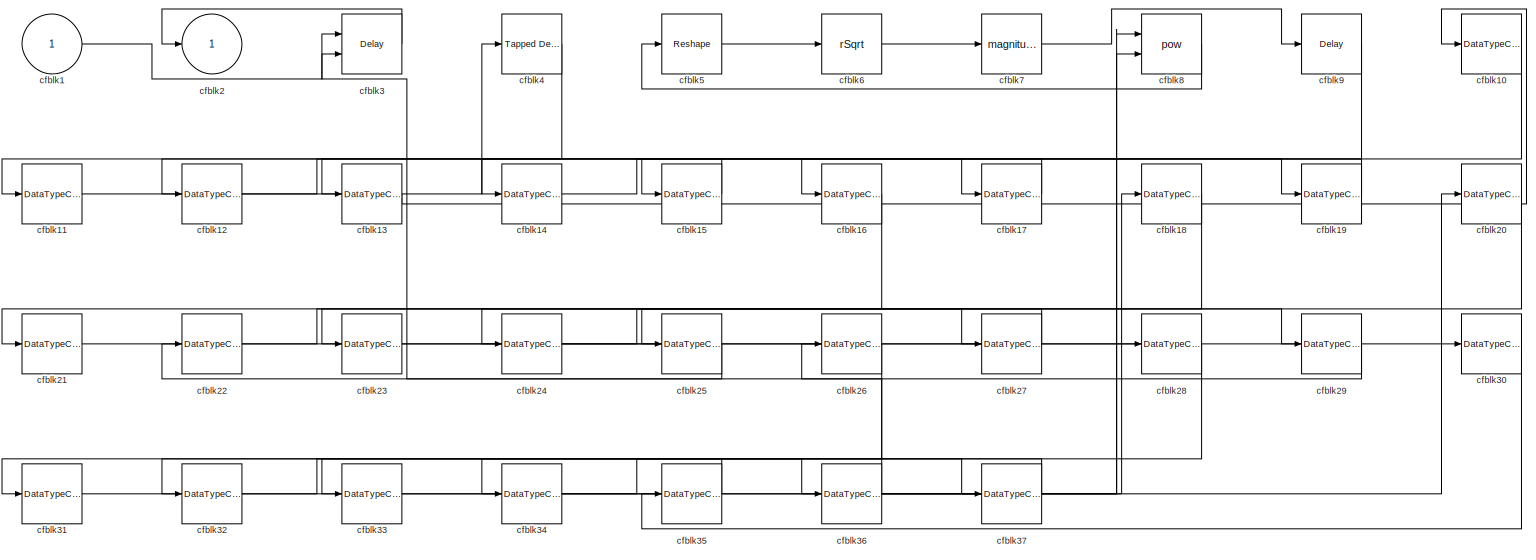
[diagram: cfblk132/cfblk8 - part 1/1, most of the canvas]
BLOCK [SubSystem] cfblk132/cfblk8
  Ports = [1, 1]
  RequestExecContextInheritance = off
BLOCK [Inport] cfblk132/cfblk8/cfblk1
BLOCK [DataTypeConversion] cfblk132/cfblk8/cfblk10
  RndMeth = Floor
  SaturateOnIntegerOverflow = off
BLOCK [DataTypeConversion] cfblk132/cfblk8/cfblk11
  RndMeth = Floor
  SaturateOnIntegerOverflow = off
BLOCK [DataTypeConversion] cfblk132/cfblk8/cfblk12
  RndMeth = Floor
  SaturateOnIntegerOverflow = off
BLOCK [DataTypeConversion] cfblk132/cfblk8/cfblk13
  RndMeth = Floor
  SaturateOnIntegerOverflow = off
BLOCK [DataTypeConversion] cfblk132/cfblk8/cfblk14
  RndMeth = Floor
  SaturateOnIntegerOverflow = off
BLOCK [DataTypeConversion] cfblk132/cfblk8/cfblk15
  RndMeth = Floor
  SaturateOnIntegerOverflow = off
BLOCK [DataTypeConversion] cfblk132/cfblk8/cfblk16
  RndMeth = Floor
  SaturateOnIntegerOverflow = off
BLOCK [DataTypeConversion] cfblk132/cfblk8/cfblk17
  RndMeth = Floor
  SaturateOnIntegerOverflow = off
BLOCK [DataTypeConversion] cfblk132/cfblk8/cfblk18
  RndMeth = Floor
  SaturateOnIntegerOverflow = off
BLOCK [DataTypeConversion] cfblk132/cfblk8/cfblk19
  RndMeth = Floor
  SaturateOnIntegerOverflow = off
BLOCK [Outport] cfblk132/cfblk8/cfblk2
BLOCK [DataTypeConversion] cfblk132/cfblk8/cfblk20
  RndMeth = Floor
  SaturateOnIntegerOverflow = off
BLOCK [DataTypeConversion] cfblk132/cfblk8/cfblk21
  RndMeth = Floor
  SaturateOnIntegerOverflow = off
BLOCK [DataTypeConversion] cfblk132/cfblk8/cfblk22
  RndMeth = Floor
  SaturateOnIntegerOverflow = off
BLOCK [DataTypeConversion] cfblk132/cfblk8/cfblk23
  RndMeth = Floor
  SaturateOnIntegerOverflow = off
BLOCK [DataTypeConversion] cfblk132/cfblk8/cfblk24
  RndMeth = Floor
  SaturateOnIntegerOverflow = off
BLOCK [DataTypeConversion] cfblk132/cfblk8/cfblk25
  RndMeth = Floor
  SaturateOnIntegerOverflow = off
BLOCK [DataTypeConversion] cfblk132/cfblk8/cfblk26
  RndMeth = Floor
  SaturateOnIntegerOverflow = off
BLOCK [DataTypeConversion] cfblk132/cfblk8/cfblk27
  RndMeth = Floor
  SaturateOnIntegerOverflow = off
BLOCK [DataTypeConversion] cfblk132/cfblk8/cfblk28
  RndMeth = Floor
  SaturateOnIntegerOverflow = off
BLOCK [DataTypeConversion] cfblk132/cfblk8/cfblk29
  RndMeth = Floor
  SaturateOnIntegerOverflow = off
BLOCK [Delay] cfblk132/cfblk8/cfblk3
  DelayLengthSource = Input port
  InputPortMap = u0,p1
  Ports = [2, 1]
  SampleTime = 1
BLOCK [DataTypeConversion] cfblk132/cfblk8/cfblk30
  RndMeth = Floor
  SaturateOnIntegerOverflow = off
BLOCK [DataTypeConversion] cfblk132/cfblk8/cfblk31
  RndMeth = Floor
  SaturateOnIntegerOverflow = off
BLOCK [DataTypeConversion] cfblk132/cfblk8/cfblk32
  RndMeth = Floor
  SaturateOnIntegerOverflow = off
BLOCK [DataTypeConversion] cfblk132/cfblk8/cfblk33
  RndMeth = Floor
  SaturateOnIntegerOverflow = off
BLOCK [DataTypeConversion] cfblk132/cfblk8/cfblk34
  RndMeth = Floor
  SaturateOnIntegerOverflow = off
BLOCK [DataTypeConversion] cfblk132/cfblk8/cfblk35
  RndMeth = Floor
  SaturateOnIntegerOverflow = off
BLOCK [DataTypeConversion] cfblk132/cfblk8/cfblk36
  RndMeth = Floor
  SaturateOnIntegerOverflow = off
BLOCK [DataTypeConversion] cfblk132/cfblk8/cfblk37
  RndMeth = Floor
  SaturateOnIntegerOverflow = off
BLOCK [Reference] cfblk132/cfblk8/cfblk4  REF=simulink/Discrete/Tapped Delay
  Ports = [1, 1]
  SourceBlock = simulink/Discrete/Tapped Delay
  SourceProductBaseCode = SL
  SourceType = Tapped Delay Line
BLOCK [Reshape] cfblk132/cfblk8/cfblk5
  Ports = [1, 1]
BLOCK [Sqrt] cfblk132/cfblk8/cfblk6
  AlgorithmType = Newton-Raphson
  Operator = rSqrt
BLOCK [Math] cfblk132/cfblk8/cfblk7
  Operator = magnitude^2
  Ports = [1, 1]
BLOCK [Math] cfblk132/cfblk8/cfblk8
  Operator = pow
  Ports = [2, 1]
BLOCK [Delay] cfblk132/cfblk8/cfblk9
  InputPortMap = u0
  Ports = [1, 1]
  SampleTime = 1
BLOCK [SubSystem] cfblk132/cfblk9
  Ports = [4, 2]
  RequestExecContextInheritance = off
BLOCK [Inport] cfblk132/cfblk9/cfblk1
BLOCK [Polyval] cfblk132/cfblk9/cfblk10
  Coefs = [ +2.081618890e-019, -1.441693666e-014, +4.719686976e-010, -8.536869453e-006, +1.621573104e-001, -8.087801117e+001 ]
BLOCK [Sum] cfblk132/cfblk9/cfblk11
  IconShape = rectangular
  Inputs = +-
  Ports = [2, 1]
BLOCK [Constant] cfblk132/cfblk9/cfblk12
  SampleTime = 1
  Value = [463819437.852030]
BLOCK [Constant] cfblk132/cfblk9/cfblk13
  SampleTime = 1
  Value = [712615709.413762]
BLOCK [Inport] cfblk132/cfblk9/cfblk14
  Port = 2
BLOCK [Inport] cfblk132/cfblk9/cfblk15
  Port = 3
BLOCK [Inport] cfblk132/cfblk9/cfblk16
  Port = 4
BLOCK [Outport] cfblk132/cfblk9/cfblk17
  Port = 2
BLOCK [Delay] cfblk132/cfblk9/cfblk18
  InputPortMap = u0
  Ports = [1, 1]
  SampleTime = 1
BLOCK [Outport] cfblk132/cfblk9/cfblk2
BLOCK [DiscreteFilter] cfblk132/cfblk9/cfblk3
  InputPortMap = u0
  Ports = [1, 1]
  SampleTime = 1
BLOCK [DiscreteTransferFcn] cfblk132/cfblk9/cfblk4
  InputPortMap = u0
  Ports = [1, 1]
  SampleTime = 1
BLOCK [DiscreteZeroPole] cfblk132/cfblk9/cfblk5
  Gain = 1
  Poles = [0 0.5]
BLOCK [Reference] cfblk132/cfblk9/cfblk6  REF=simulink/Discrete/Difference
  Ports = [1, 1]
  SourceBlock = simulink/Discrete/Difference
  SourceProductBaseCode = SL
  SourceType = Difference
BLOCK [Reference] cfblk132/cfblk9/cfblk7  REF=simulink/Math
Operations/Slider
Gain
  Ports = [1, 1]
  SourceBlock = simulink/Math\nOperations/Slider\nGain
  SourceProductBaseCode = SL
  SourceType = Slider Gain
BLOCK [Sum] cfblk132/cfblk9/cfblk8
  IconShape = rectangular
  Inputs = +-
  Ports = [2, 1]
BLOCK [Sum] cfblk132/cfblk9/cfblk9
  IconShape = rectangular
  Inputs = +-
  Ports = [2, 1]
BLOCK [SubSystem] cfblk133
  Ports = [1, 1]
  RequestExecContextInheritance = off
BLOCK [Inport] cfblk133/cfblk1
BLOCK [SubSystem] cfblk133/cfblk10
  Ports = [1, 3]
  RequestExecContextInheritance = off
BLOCK [Inport] cfblk133/cfblk10/cfblk1
BLOCK [Outport] cfblk133/cfblk10/cfblk10
  Port = 3
BLOCK [Outport] cfblk133/cfblk10/cfblk2
BLOCK [DiscreteStateSpace] cfblk133/cfblk10/cfblk3
BLOCK [Sqrt] cfblk133/cfblk10/cfblk4
BLOCK [Product] cfblk133/cfblk10/cfblk5
  Inputs = *
  Ports = [1, 1]
BLOCK [Constant] cfblk133/cfblk10/cfblk6
  SampleTime = 1
  Value = [99117098.696178]
BLOCK [Constant] cfblk133/cfblk10/cfblk7
  SampleTime = 1
  Value = [143253235.867716]
BLOCK [Constant] cfblk133/cfblk10/cfblk8
  SampleTime = 1
  Value = [-33039024.872975]
BLOCK [Outport] cfblk133/cfblk10/cfblk9
  Port = 2
BLOCK [Delay] cfblk133/cfblk11
  InputPortMap = u0
  Ports = [1, 1]
  SampleTime = 1
BLOCK [Delay] cfblk133/cfblk12
  InputPortMap = u0
  Ports = [1, 1]
  SampleTime = 1
BLOCK [Delay] cfblk133/cfblk13
  InputPortMap = u0
  Ports = [1, 1]
  SampleTime = 1
BLOCK [Delay] cfblk133/cfblk14
  InputPortMap = u0
  Ports = [1, 1]
  SampleTime = 1
BLOCK [Outport] cfblk133/cfblk2
BLOCK [DiscreteFilter] cfblk133/cfblk3
  InputPortMap = u0
  Ports = [1, 1]
  SampleTime = 1
BLOCK [DiscreteIntegrator] cfblk133/cfblk4
  ICPrevOutput = DiscIntNeverNeededParam
  ICPrevScaledInput = DiscIntNeverNeededParam
  InitialConditionSetting = Auto
  Ports = [1, 1]
BLOCK [Reference] cfblk133/cfblk5  REF=simulink/Discrete/Tapped Delay
  Ports = [1, 1]
  SourceBlock = simulink/Discrete/Tapped Delay
  SourceProductBaseCode = SL
  SourceType = Tapped Delay Line
BLOCK [Abs] cfblk133/cfblk6
  SaturateOnIntegerOverflow = off
BLOCK [Bias] cfblk133/cfblk7
  Bias = [-186956224.200085]
  SaturateOnIntegerOverflow = off
BLOCK [Constant] cfblk133/cfblk8
  SampleTime = 1
  Value = [73449431.824764]
BLOCK [SubSystem] cfblk133/cfblk9
  Ports = [5, 2]
  RequestExecContextInheritance = off
BLOCK [Inport] cfblk133/cfblk9/cfblk1
BLOCK [Inport] cfblk133/cfblk9/cfblk10
  Port = 2
BLOCK [Inport] cfblk133/cfblk9/cfblk11
  Port = 3
BLOCK [Inport] cfblk133/cfblk9/cfblk12
  Port = 4
BLOCK [Inport] cfblk133/cfblk9/cfblk13
  Port = 5
BLOCK [Outport] cfblk133/cfblk9/cfblk14
  Port = 2
BLOCK [Outport] cfblk133/cfblk9/cfblk2
BLOCK [UnitDelay] cfblk133/cfblk9/cfblk3
  HasFrameUpgradeWarning = on
BLOCK [Delay] cfblk133/cfblk9/cfblk4
  DelayLengthSource = Input port
  InputPortMap = u0,p1
  Ports = [2, 1]
  SampleTime = 1
BLOCK [Reference] cfblk133/cfblk9/cfblk5  REF=simulink/Discrete/Transfer Fcn
First Order
  Ports = [1, 1]
  SourceBlock = simulink/Discrete/Transfer Fcn\nFirst Order
  SourceProductBaseCode = SL
  SourceType = First Order Transfer Fcn
BLOCK [Delay] cfblk133/cfblk9/cfblk6
  InputPortMap = u0,e6
  Ports = [2, 1]
  SampleTime = 1
  ShowEnablePort = on
BLOCK [ComplexToMagnitudeAngle] cfblk133/cfblk9/cfblk7
  Ports = [1, 2]
BLOCK [ComplexToRealImag] cfblk133/cfblk9/cfblk8
  Ports = [1, 2]
BLOCK [Constant] cfblk133/cfblk9/cfblk9
  SampleTime = 1
  Value = [-719578148.951730]
BLOCK [SubSystem] cfblk134
  Ports = [1, 2]
  RequestExecContextInheritance = off
BLOCK [Inport] cfblk134/cfblk1
BLOCK [Delay] cfblk134/cfblk10
  InputPortMap = u0
  Ports = [1, 1]
  SampleTime = 1
BLOCK [Outport] cfblk134/cfblk2
BLOCK [Reference] cfblk134/cfblk3  REF=simulink/Discrete/Transfer Fcn
First Order
  Ports = [1, 1]
  SourceBlock = simulink/Discrete/Transfer Fcn\nFirst Order
  SourceProductBaseCode = SL
  SourceType = First Order Transfer Fcn
BLOCK [DiscreteFir] cfblk134/cfblk4
  InputPortMap = u0
  OutputPortMap = o0
  Ports = [1, 1]
  SampleTime = 1
BLOCK [Reference] cfblk134/cfblk5  REF=slpidlib/PID Controller (2DOF)
  Ports = [2, 1]
  SourceBlock = slpidlib/PID Controller (2DOF)
  SourceProductBaseCode = SL
  SourceType = PID 2dof
BLOCK [DotProduct] cfblk134/cfblk6
  OutDataTypeStr = Inherit: Inherit via internal rule
BLOCK [Product] cfblk134/cfblk7
  Ports = [2, 1]
BLOCK [Outport] cfblk134/cfblk8
  Port = 2
BLOCK [Delay] cfblk134/cfblk9
  InputPortMap = u0
  Ports = [1, 1]
  SampleTime = 1
BLOCK [SubSystem] cfblk135
  Ports = [3, 1]
  RequestExecContextInheritance = off
BLOCK [Inport] cfblk135/cfblk1
BLOCK [Sqrt] cfblk135/cfblk10
BLOCK [Constant] cfblk135/cfblk11
  SampleTime = 1
  Value = [-838674796.182005]
BLOCK [SubSystem] cfblk135/cfblk12
  Ports = [1, 2]
  RequestExecContextInheritance = off
BLOCK [Inport] cfblk135/cfblk12/cfblk1
BLOCK [Sum] cfblk135/cfblk12/cfblk10
  IconShape = rectangular
  Inputs = +
  Ports = [1, 1]
BLOCK [Reference] cfblk135/cfblk12/cfblk11  REF=simulink/Math
Operations/MinMax
Running
Resettable
  Ports = [2, 1]
  SourceBlock = simulink/Math\nOperations/MinMax\nRunning\nResettable
  SourceProductBaseCode = SL
  SourceType = MinMax Running Resettable
BLOCK [Constant] cfblk135/cfblk12/cfblk12
  SampleTime = 1
  Value = [159707577.467396]
BLOCK [Constant] cfblk135/cfblk12/cfblk13
  SampleTime = 1
  Value = [213901679.942992]
BLOCK [Outport] cfblk135/cfblk12/cfblk14
  Port = 2
BLOCK [Delay] cfblk135/cfblk12/cfblk15
  InputPortMap = u0
  Ports = [1, 1]
  SampleTime = 1
BLOCK [Delay] cfblk135/cfblk12/cfblk16
  InputPortMap = u0
  Ports = [1, 1]
  SampleTime = 1
BLOCK [Outport] cfblk135/cfblk12/cfblk2
BLOCK [UnitDelay] cfblk135/cfblk12/cfblk3
  HasFrameUpgradeWarning = on
BLOCK [Delay] cfblk135/cfblk12/cfblk4
  DelayLengthSource = Input port
  InputPortMap = u0,p1
  Ports = [2, 1]
  SampleTime = 1
BLOCK [Delay] cfblk135/cfblk12/cfblk5
  DelayLengthSource = Input port
  InputPortMap = u0,p1
  Ports = [2, 1]
  SampleTime = 1
BLOCK [Delay] cfblk135/cfblk12/cfblk6
  InputPortMap = u0
  Ports = [1, 1]
  SampleTime = 1
BLOCK [Reference] cfblk135/cfblk12/cfblk7  REF=simulink/Discrete/Transfer Fcn
Lead or Lag
  Ports = [1, 1]
  SourceBlock = simulink/Discrete/Transfer Fcn\nLead or Lag
  SourceProductBaseCode = SL
  SourceType = Lead or Lag Compensator
BLOCK [Reference] cfblk135/cfblk12/cfblk8  REF=simulink/Discrete/Difference
  Ports = [1, 1]
  SourceBlock = simulink/Discrete/Difference
  SourceProductBaseCode = SL
  SourceType = Difference
BLOCK [MinMax] cfblk135/cfblk12/cfblk9
  Inputs = 2
  Ports = [2, 1]
BLOCK [SubSystem] cfblk135/cfblk13
  Ports = [1, 2]
  RequestExecContextInheritance = off
BLOCK [Inport] cfblk135/cfblk13/cfblk1
BLOCK [ComplexToRealImag] cfblk135/cfblk13/cfblk10
  Ports = [1, 2]
BLOCK [Constant] cfblk135/cfblk13/cfblk11
  SampleTime = 1
  Value = [742824573.150616]
BLOCK [Constant] cfblk135/cfblk13/cfblk12
  SampleTime = 1
  Value = [301522795.780027]
BLOCK [Constant] cfblk135/cfblk13/cfblk13
  SampleTime = 1
  Value = [-452163660.959302]
BLOCK [Constant] cfblk135/cfblk13/cfblk14
  SampleTime = 1
  Value = [774012210.182662]
BLOCK [Outport] cfblk135/cfblk13/cfblk15
  Port = 2
BLOCK [Delay] cfblk135/cfblk13/cfblk16
  InputPortMap = u0
  Ports = [1, 1]
  SampleTime = 1
BLOCK [Outport] cfblk135/cfblk13/cfblk2
BLOCK [Delay] cfblk135/cfblk13/cfblk3
  DelayLengthSource = Input port
  InputPortMap = u0,p1
  Ports = [2, 1]
  SampleTime = 1
BLOCK [Delay] cfblk135/cfblk13/cfblk4
  DelayLengthSource = Input port
  InputPortMap = u0,p1
  Ports = [2, 1]
  SampleTime = 1
BLOCK [Reference] cfblk135/cfblk13/cfblk5  REF=slpidlib/PID Controller
  Ports = [1, 1]
  SourceBlock = slpidlib/PID Controller
  SourceProductBaseCode = SL
  SourceType = PID 1dof
BLOCK [Sum] cfblk135/cfblk13/cfblk6
  IconShape = rectangular
  Inputs = +
  Ports = [1, 1]
BLOCK [Product] cfblk135/cfblk13/cfblk7
  Inputs = **
  Ports = [2, 1]
BLOCK [Product] cfblk135/cfblk13/cfblk8
  Inputs = **
  Ports = [2, 1]
BLOCK [Squeeze] cfblk135/cfblk13/cfblk9
BLOCK [SubSystem] cfblk135/cfblk14
  Ports = [4, 1]
  RequestExecContextInheritance = off
BLOCK [Inport] cfblk135/cfblk14/cfblk1
BLOCK [Inport] cfblk135/cfblk14/cfblk10
  Port = 3
BLOCK [Inport] cfblk135/cfblk14/cfblk11
  Port = 4
BLOCK [Outport] cfblk135/cfblk14/cfblk2
BLOCK [Sin] cfblk135/cfblk14/cfblk3
  Ports = [1, 1]
  SampleTime = 0
  TimeSource = Use external signal
BLOCK [DotProduct] cfblk135/cfblk14/cfblk4
  OutDataTypeStr = Inherit: Inherit via internal rule
BLOCK [Sqrt] cfblk135/cfblk14/cfblk5
  AlgorithmType = Newton-Raphson
  Operator = rSqrt
BLOCK [Reshape] cfblk135/cfblk14/cfblk6
  Ports = [1, 1]
BLOCK [Trigonometry] cfblk135/cfblk14/cfblk7
  Ports = [1, 1]
BLOCK [Sqrt] cfblk135/cfblk14/cfblk8
BLOCK [Inport] cfblk135/cfblk14/cfblk9
  Port = 2
BLOCK [Inport] cfblk135/cfblk15
  Port = 2
BLOCK [Inport] cfblk135/cfblk16
  Port = 3
BLOCK [Delay] cfblk135/cfblk17
  InputPortMap = u0
  Ports = [1, 1]
  SampleTime = 1
BLOCK [Outport] cfblk135/cfblk2
BLOCK [DiscreteStateSpace] cfblk135/cfblk3
BLOCK [Delay] cfblk135/cfblk4
  InputPortMap = u0
  Ports = [1, 1]
  SampleTime = 1
BLOCK [DiscreteZeroPole] cfblk135/cfblk5
  Gain = 1
  Poles = [0 0.5]
BLOCK [Math] cfblk135/cfblk6
  Operator = transpose
  Ports = [1, 1]
BLOCK [ComplexToRealImag] cfblk135/cfblk7
  Ports = [1, 2]
BLOCK [Product] cfblk135/cfblk8
  Ports = [2, 1]
BLOCK [Reference] cfblk135/cfblk9  REF=simulink/Math
Operations/Slider
Gain
  Ports = [1, 1]
  SourceBlock = simulink/Math\nOperations/Slider\nGain
  SourceProductBaseCode = SL
  SourceType = Slider Gain
BLOCK [SubSystem] cfblk136
  Ports = [3, 2]
  RequestExecContextInheritance = off
BLOCK [Inport] cfblk136/cfblk1
BLOCK [Inport] cfblk136/cfblk10
  Port = 3
BLOCK [Outport] cfblk136/cfblk11
  Port = 2
BLOCK [Delay] cfblk136/cfblk12
  InputPortMap = u0
  Ports = [1, 1]
  SampleTime = 1
BLOCK [Delay] cfblk136/cfblk13
  InputPortMap = u0
  Ports = [1, 1]
  SampleTime = 1
BLOCK [Outport] cfblk136/cfblk2
BLOCK [Reference] cfblk136/cfblk3  REF=slpidlib/PID Controller
  Ports = [1, 1]
  SourceBlock = slpidlib/PID Controller
  SourceProductBaseCode = SL
  SourceType = PID 1dof
BLOCK [Reference] cfblk136/cfblk4  REF=slpidlib/PID Controller
  Ports = [1, 1]
  SourceBlock = slpidlib/PID Controller
  SourceProductBaseCode = SL
  SourceType = PID 1dof
BLOCK [MinMax] cfblk136/cfblk5
  Function = max
  Inputs = 2
  Ports = [2, 1]
BLOCK [SubSystem] cfblk136/cfblk6
  Ports = [2, 1]
  RequestExecContextInheritance = off
BLOCK [Inport] cfblk136/cfblk6/cfblk1
BLOCK [Inport] cfblk136/cfblk6/cfblk10
  Port = 2
BLOCK [Outport] cfblk136/cfblk6/cfblk2
BLOCK [Reference] cfblk136/cfblk6/cfblk3  REF=simulink/Discrete/Tapped Delay
  Ports = [1, 1]
  SourceBlock = simulink/Discrete/Tapped Delay
  SourceProductBaseCode = SL
  SourceType = Tapped Delay Line
BLOCK [Polyval] cfblk136/cfblk6/cfblk4
  Coefs = [ +2.081618890e-019, -1.441693666e-014, +4.719686976e-010, -8.536869453e-006, +1.621573104e-001, -8.087801117e+001 ]
BLOCK [Rounding] cfblk136/cfblk6/cfblk5
BLOCK [PermuteDimensions] cfblk136/cfblk6/cfblk6
BLOCK [Math] cfblk136/cfblk6/cfblk7
  Operator = mod
  Ports = [2, 1]
BLOCK [Reference] cfblk136/cfblk6/cfblk8  REF=simulink/Math
Operations/Slider
Gain
  Ports = [1, 1]
  SourceBlock = simulink/Math\nOperations/Slider\nGain
  SourceProductBaseCode = SL
  SourceType = Slider Gain
BLOCK [Constant] cfblk136/cfblk6/cfblk9
  SampleTime = 1
  Value = [-447719177.934738]
BLOCK [SubSystem] cfblk136/cfblk7
  Ports = [3, 2]
  RequestExecContextInheritance = off
BLOCK [Inport] cfblk136/cfblk7/cfblk1
BLOCK [Outport] cfblk136/cfblk7/cfblk2
BLOCK [ComplexToMagnitudeAngle] cfblk136/cfblk7/cfblk3
  Ports = [1, 2]
BLOCK [Sqrt] cfblk136/cfblk7/cfblk4
BLOCK [Inport] cfblk136/cfblk7/cfblk5
  Port = 2
BLOCK [Inport] cfblk136/cfblk7/cfblk6
  Port = 3
BLOCK [Outport] cfblk136/cfblk7/cfblk7
  Port = 2
BLOCK [SubSystem] cfblk136/cfblk8
  Ports = [6, 2]
  RequestExecContextInheritance = off
BLOCK [Inport] cfblk136/cfblk8/cfblk1
BLOCK [Inport] cfblk136/cfblk8/cfblk10
  Port = 5
BLOCK [Inport] cfblk136/cfblk8/cfblk11
  Port = 6
BLOCK [Outport] cfblk136/cfblk8/cfblk12
  Port = 2
BLOCK [Outport] cfblk136/cfblk8/cfblk2
BLOCK [Sum] cfblk136/cfblk8/cfblk3
  IconShape = rectangular
  Inputs = +
  Ports = [1, 1]
BLOCK [Sqrt] cfblk136/cfblk8/cfblk4
  AlgorithmType = Newton-Raphson
  Operator = rSqrt
BLOCK [ComplexToRealImag] cfblk136/cfblk8/cfblk5
  Ports = [1, 2]
BLOCK [UnaryMinus] cfblk136/cfblk8/cfblk6
BLOCK [Inport] cfblk136/cfblk8/cfblk7
  Port = 2
BLOCK [Inport] cfblk136/cfblk8/cfblk8
  Port = 3
BLOCK [Inport] cfblk136/cfblk8/cfblk9
  Port = 4
BLOCK [Inport] cfblk136/cfblk9
  Port = 2
BLOCK [SubSystem] cfblk137
  Ports = [2, 3]
  RequestExecContextInheritance = off
BLOCK [Inport] cfblk137/cfblk1
BLOCK [Constant] cfblk137/cfblk10
  SampleTime = 1
  Value = [-152590249.927515]
BLOCK [Constant] cfblk137/cfblk11
  SampleTime = 1
  Value = [315107042.887950]
BLOCK [SubSystem] cfblk137/cfblk12
  Ports = [2, 3]
  RequestExecContextInheritance = off
BLOCK [Inport] cfblk137/cfblk12/cfblk1
BLOCK [Outport] cfblk137/cfblk12/cfblk10
  Port = 3
BLOCK [Delay] cfblk137/cfblk12/cfblk11
  InputPortMap = u0
  Ports = [1, 1]
  SampleTime = 1
BLOCK [Outport] cfblk137/cfblk12/cfblk2
BLOCK [Reference] cfblk137/cfblk12/cfblk3  REF=slpidlib/PID Controller
  Ports = [1, 1]
  SourceBlock = slpidlib/PID Controller
  SourceProductBaseCode = SL
  SourceType = PID 1dof
BLOCK [DiscreteStateSpace] cfblk137/cfblk12/cfblk4
BLOCK [Reference] cfblk137/cfblk12/cfblk5  REF=simulink/Discrete/Transfer Fcn
Real Zero
  Ports = [1, 1]
  SourceBlock = simulink/Discrete/Transfer Fcn\nReal Zero
  SourceProductBaseCode = SL
  SourceType = Transfer Fcn Real Zero
BLOCK [Product] cfblk137/cfblk12/cfblk6
  Inputs = **
  Ports = [2, 1]
BLOCK [Sum] cfblk137/cfblk12/cfblk7
  IconShape = rectangular
  Inputs = +-
  Ports = [2, 1]
BLOCK [Inport] cfblk137/cfblk12/cfblk8
  Port = 2
BLOCK [Outport] cfblk137/cfblk12/cfblk9
  Port = 2
BLOCK [Inport] cfblk137/cfblk13
  Port = 2
BLOCK [Outport] cfblk137/cfblk14
  Port = 2
BLOCK [Outport] cfblk137/cfblk15
  Port = 3
BLOCK [Outport] cfblk137/cfblk2
BLOCK [DiscreteFir] cfblk137/cfblk3
  InputPortMap = u0
  OutputPortMap = o0
  Ports = [1, 1]
  SampleTime = 1
BLOCK [DiscreteStateSpace] cfblk137/cfblk4
BLOCK [Assignment] cfblk137/cfblk5
  DiagnosticForDimensions = Warning
  IndexOptions = Index vector (dialog)
  Indices = 1
  OutputSizes = 1
  Ports = [2, 1]
BLOCK [Sqrt] cfblk137/cfblk6
  AlgorithmType = Newton-Raphson
  Operator = rSqrt
BLOCK [Abs] cfblk137/cfblk7
  SaturateOnIntegerOverflow = off
BLOCK [UnaryMinus] cfblk137/cfblk8
BLOCK [Signum] cfblk137/cfblk9
BLOCK [SubSystem] cfblk138
  Ports = [2, 2]
  RequestExecContextInheritance = off
BLOCK [Inport] cfblk138/cfblk1
BLOCK [SubSystem] cfblk138/cfblk10
  Ports = [3, 1]
  RequestExecContextInheritance = off
BLOCK [Inport] cfblk138/cfblk10/cfblk1
BLOCK [Constant] cfblk138/cfblk10/cfblk10
  SampleTime = 1
  Value = [-947341199.419361]
BLOCK [Constant] cfblk138/cfblk10/cfblk11
  SampleTime = 1
  Value = [-800025826.050434]
BLOCK [Constant] cfblk138/cfblk10/cfblk12
  SampleTime = 1
  Value = [-557942488.815431]
BLOCK [Inport] cfblk138/cfblk10/cfblk13
  Port = 2
BLOCK [Inport] cfblk138/cfblk10/cfblk14
  Port = 3
BLOCK [Delay] cfblk138/cfblk10/cfblk15
  InputPortMap = u0
  Ports = [1, 1]
  SampleTime = 1
BLOCK [Delay] cfblk138/cfblk10/cfblk16
  InputPortMap = u0
  Ports = [1, 1]
  SampleTime = 1
BLOCK [Outport] cfblk138/cfblk10/cfblk2
BLOCK [Delay] cfblk138/cfblk10/cfblk3
  InputPortMap = u0,e6
  Ports = [2, 1]
  SampleTime = 1
  ShowEnablePort = on
BLOCK [Product] cfblk138/cfblk10/cfblk4
  Inputs = **
  Ports = [2, 1]
BLOCK [Product] cfblk138/cfblk10/cfblk5
  Inputs = *
  Ports = [1, 1]
BLOCK [Sum] cfblk138/cfblk10/cfblk6
  IconShape = rectangular
  Inputs = --
  Ports = [2, 1]
BLOCK [Bias] cfblk138/cfblk10/cfblk7
  Bias = [913530647.048623]
  SaturateOnIntegerOverflow = off
BLOCK [Reference] cfblk138/cfblk10/cfblk8  REF=simulink/Math
Operations/MinMax
Running
Resettable
  Ports = [2, 1]
  SourceBlock = simulink/Math\nOperations/MinMax\nRunning\nResettable
  SourceProductBaseCode = SL
  SourceType = MinMax Running Resettable
BLOCK [Sum] cfblk138/cfblk10/cfblk9
  IconShape = rectangular
  Inputs = +-
  Ports = [2, 1]
BLOCK [Inport] cfblk138/cfblk11
  Port = 2
BLOCK [Outport] cfblk138/cfblk12
  Port = 2
BLOCK [Outport] cfblk138/cfblk2
BLOCK [Delay] cfblk138/cfblk3
  DelayLengthSource = Input port
  InputPortMap = u0,p1
  Ports = [2, 1]
  SampleTime = 1
BLOCK [Reference] cfblk138/cfblk4  REF=simulink/Discrete/Transfer Fcn
Lead or Lag
  Ports = [1, 1]
  SourceBlock = simulink/Discrete/Transfer Fcn\nLead or Lag
  SourceProductBaseCode = SL
  SourceType = Lead or Lag Compensator
BLOCK [ComplexToMagnitudeAngle] cfblk138/cfblk5
  Ports = [1, 2]
BLOCK [Trigonometry] cfblk138/cfblk6
  Ports = [1, 1]
BLOCK [Constant] cfblk138/cfblk7
  SampleTime = 1
  Value = [211032908.922208]
BLOCK [Constant] cfblk138/cfblk8
  SampleTime = 1
  Value = [325607232.572119]
BLOCK [Constant] cfblk138/cfblk9
  SampleTime = 1
  Value = [286958174.606833]
BLOCK [SubSystem] cfblk139
  Ports = [3, 1]
  RequestExecContextInheritance = off
BLOCK [Inport] cfblk139/cfblk1
BLOCK [Constant] cfblk139/cfblk10
  SampleTime = 1
  Value = [730462996.486864]
BLOCK [SubSystem] cfblk139/cfblk11
  Ports = [4, 1]
  RequestExecContextInheritance = off
BLOCK [Inport] cfblk139/cfblk11/cfblk1
BLOCK [Inport] cfblk139/cfblk11/cfblk10
  Port = 3
BLOCK [Inport] cfblk139/cfblk11/cfblk11
  Port = 4
BLOCK [Outport] cfblk139/cfblk11/cfblk2
BLOCK [UnaryMinus] cfblk139/cfblk11/cfblk3
BLOCK [PermuteDimensions] cfblk139/cfblk11/cfblk4
BLOCK [Reference] cfblk139/cfblk11/cfblk5  REF=simulink/Math
Operations/MinMax
Running
Resettable
  Ports = [2, 1]
  SourceBlock = simulink/Math\nOperations/MinMax\nRunning\nResettable
  SourceProductBaseCode = SL
  SourceType = MinMax Running Resettable
BLOCK [Signum] cfblk139/cfblk11/cfblk6
BLOCK [Sum] cfblk139/cfblk11/cfblk7
  IconShape = rectangular
  Inputs = -+
  Ports = [2, 1]
BLOCK [Constant] cfblk139/cfblk11/cfblk8
  SampleTime = 1
  Value = [455608988.330616]
BLOCK [Inport] cfblk139/cfblk11/cfblk9
  Port = 2
BLOCK [SubSystem] cfblk139/cfblk12
  Ports = [5, 3]
  RequestExecContextInheritance = off
BLOCK [Inport] cfblk139/cfblk12/cfblk1
BLOCK [Inport] cfblk139/cfblk12/cfblk10
  Port = 2
BLOCK [Inport] cfblk139/cfblk12/cfblk11
  Port = 3
BLOCK [Inport] cfblk139/cfblk12/cfblk12
  Port = 4
BLOCK [Inport] cfblk139/cfblk12/cfblk13
  Port = 5
BLOCK [Outport] cfblk139/cfblk12/cfblk14
  Port = 2
BLOCK [Outport] cfblk139/cfblk12/cfblk15
  Port = 3
BLOCK [Outport] cfblk139/cfblk12/cfblk2
BLOCK [Reference] cfblk139/cfblk12/cfblk3  REF=slpidlib/PID Controller (2DOF)
  Ports = [2, 1]
  SourceBlock = slpidlib/PID Controller (2DOF)
  SourceProductBaseCode = SL
  SourceType = PID 2dof
BLOCK [DiscreteIntegrator] cfblk139/cfblk12/cfblk4
  ICPrevOutput = DiscIntNeverNeededParam
  ICPrevScaledInput = DiscIntNeverNeededParam
  InitialConditionSetting = Auto
  Ports = [1, 1]
BLOCK [DiscreteTransferFcn] cfblk139/cfblk12/cfblk5
  InputPortMap = u0
  Ports = [1, 1]
  SampleTime = 1
BLOCK [Sum] cfblk139/cfblk12/cfblk6
  IconShape = rectangular
  Inputs = -+
  Ports = [2, 1]
BLOCK [Sum] cfblk139/cfblk12/cfblk7
  IconShape = rectangular
  Inputs = +
  Ports = [1, 1]
BLOCK [Assignment] cfblk139/cfblk12/cfblk8
  DiagnosticForDimensions = Warning
  IndexOptions = Index vector (dialog)
  Indices = 1
  OutputSizes = 1
  Ports = [2, 1]
BLOCK [Constant] cfblk139/cfblk12/cfblk9
  SampleTime = 1
  Value = [-542813330.124108]
BLOCK [SubSystem] cfblk139/cfblk13
  Ports = [3, 1]
  RequestExecContextInheritance = off
BLOCK [Inport] cfblk139/cfblk13/cfblk1
BLOCK [Inport] cfblk139/cfblk13/cfblk10
  Port = 2
BLOCK [Inport] cfblk139/cfblk13/cfblk11
  Port = 3
BLOCK [Delay] cfblk139/cfblk13/cfblk12
  InputPortMap = u0
  Ports = [1, 1]
  SampleTime = 1
BLOCK [Delay] cfblk139/cfblk13/cfblk13
  InputPortMap = u0
  Ports = [1, 1]
  SampleTime = 1
BLOCK [Outport] cfblk139/cfblk13/cfblk2
BLOCK [DiscreteFilter] cfblk139/cfblk13/cfblk3
  InputPortMap = u0
  Ports = [1, 1]
  SampleTime = 1
BLOCK [Abs] cfblk139/cfblk13/cfblk4
  SaturateOnIntegerOverflow = off
BLOCK [Sqrt] cfblk139/cfblk13/cfblk5
  AlgorithmType = Newton-Raphson
  Operator = rSqrt
BLOCK [Math] cfblk139/cfblk13/cfblk6
  Operator = magnitude^2
  Ports = [1, 1]
BLOCK [Sum] cfblk139/cfblk13/cfblk7
  IconShape = rectangular
  Inputs = -+
  Ports = [2, 1]
BLOCK [Sum] cfblk139/cfblk13/cfblk8
  IconShape = rectangular
  Inputs = +
  Ports = [1, 1]
BLOCK [Product] cfblk139/cfblk13/cfblk9
  Inputs = *
  Ports = [1, 1]
BLOCK [Inport] cfblk139/cfblk14
  Port = 2
BLOCK [Inport] cfblk139/cfblk15
  Port = 3
BLOCK [Delay] cfblk139/cfblk16
  InputPortMap = u0
  Ports = [1, 1]
  SampleTime = 1
BLOCK [Delay] cfblk139/cfblk17
  InputPortMap = u0
  Ports = [1, 1]
  SampleTime = 1
BLOCK [Outport] cfblk139/cfblk2
BLOCK [Reference] cfblk139/cfblk3  REF=slpidlib/PID Controller
  Ports = [1, 1]
  SourceBlock = slpidlib/PID Controller
  SourceProductBaseCode = SL
  SourceType = PID 1dof
BLOCK [DiscreteTransferFcn] cfblk139/cfblk4
  InputPortMap = u0
  Ports = [1, 1]
  SampleTime = 1
BLOCK [UnitDelay] cfblk139/cfblk5
  HasFrameUpgradeWarning = on
BLOCK [Reference] cfblk139/cfblk6  REF=simulink/Math
Operations/MinMax
Running
Resettable
  Ports = [2, 1]
  SourceBlock = simulink/Math\nOperations/MinMax\nRunning\nResettable
  SourceProductBaseCode = SL
  SourceType = MinMax Running Resettable
BLOCK [PermuteDimensions] cfblk139/cfblk7
BLOCK [UnaryMinus] cfblk139/cfblk8
BLOCK [MinMax] cfblk139/cfblk9
  Inputs = 3
  Ports = [3, 1]
BLOCK [Reference] cfblk14  REF=slpidlib/PID Controller (2DOF)
  Ports = [2, 1]
  SourceBlock = slpidlib/PID Controller (2DOF)
  SourceProductBaseCode = SL
  SourceType = PID 2dof
BLOCK [SubSystem] cfblk140
  Ports = [2, 1]
  RequestExecContextInheritance = off
BLOCK [Inport] cfblk140/cfblk1
BLOCK [Delay] cfblk140/cfblk10
  InputPortMap = u0
  Ports = [1, 1]
  SampleTime = 1
BLOCK [Delay] cfblk140/cfblk11
  InputPortMap = u0
  Ports = [1, 1]
  SampleTime = 1
BLOCK [Delay] cfblk140/cfblk12
  InputPortMap = u0
  Ports = [1, 1]
  SampleTime = 1
BLOCK [Delay] cfblk140/cfblk13
  InputPortMap = u0
  Ports = [1, 1]
  SampleTime = 1
BLOCK [Outport] cfblk140/cfblk2
BLOCK [Reference] cfblk140/cfblk3  REF=simulink/Discrete/Transfer Fcn
Real Zero
  Ports = [1, 1]
  SourceBlock = simulink/Discrete/Transfer Fcn\nReal Zero
  SourceProductBaseCode = SL
  SourceType = Transfer Fcn Real Zero
BLOCK [Delay] cfblk140/cfblk4
  DelayLengthSource = Input port
  InputPortMap = u0,p1
  Ports = [2, 1]
  SampleTime = 1
BLOCK [UnitDelay] cfblk140/cfblk5
  HasFrameUpgradeWarning = on
BLOCK [SubSystem] cfblk140/cfblk6
  Ports = [4, 2]
  RequestExecContextInheritance = off
BLOCK [Inport] cfblk140/cfblk6/cfblk1
BLOCK [Inport] cfblk140/cfblk6/cfblk10
  Port = 4
BLOCK [Outport] cfblk140/cfblk6/cfblk11
  Port = 2
BLOCK [Outport] cfblk140/cfblk6/cfblk2
BLOCK [UnaryMinus] cfblk140/cfblk6/cfblk3
BLOCK [ComplexToMagnitudeAngle] cfblk140/cfblk6/cfblk4
  Ports = [1, 2]
BLOCK [Math] cfblk140/cfblk6/cfblk5
  Operator = pow
  Ports = [2, 1]
BLOCK [Gain] cfblk140/cfblk6/cfblk6
  Gain = [863163128.066143]
BLOCK [Constant] cfblk140/cfblk6/cfblk7
  SampleTime = 1
  Value = [20171544.573317]
BLOCK [Inport] cfblk140/cfblk6/cfblk8
  Port = 2
BLOCK [Inport] cfblk140/cfblk6/cfblk9
  Port = 3
BLOCK [SubSystem] cfblk140/cfblk7
  Ports = [4, 1]
  RequestExecContextInheritance = off
BLOCK [Inport] cfblk140/cfblk7/cfblk1
BLOCK [UnaryMinus] cfblk140/cfblk7/cfblk10
BLOCK [Reference] cfblk140/cfblk7/cfblk11  REF=simulink/Math
Operations/Slider
Gain
  Ports = [1, 1]
  SourceBlock = simulink/Math\nOperations/Slider\nGain
  SourceProductBaseCode = SL
  SourceType = Slider Gain
BLOCK [Reference] cfblk140/cfblk7/cfblk12  REF=simulink/Math
Operations/MinMax
Running
Resettable
  Ports = [2, 1]
  SourceBlock = simulink/Math\nOperations/MinMax\nRunning\nResettable
  SourceProductBaseCode = SL
  SourceType = MinMax Running Resettable
BLOCK [Constant] cfblk140/cfblk7/cfblk13
  SampleTime = 1
  Value = [-900726887.264322]
BLOCK [Constant] cfblk140/cfblk7/cfblk14
  SampleTime = 1
  Value = [-509858800.952144]
BLOCK [Inport] cfblk140/cfblk7/cfblk15
  Port = 2
BLOCK [Inport] cfblk140/cfblk7/cfblk16
  Port = 3
BLOCK [Inport] cfblk140/cfblk7/cfblk17
  Port = 4
BLOCK [Outport] cfblk140/cfblk7/cfblk2
BLOCK [Reference] cfblk140/cfblk7/cfblk3  REF=simulink/Discrete/Transfer Fcn
First Order
  Ports = [1, 1]
  SourceBlock = simulink/Discrete/Transfer Fcn\nFirst Order
  SourceProductBaseCode = SL
  SourceType = First Order Transfer Fcn
BLOCK [DiscreteZeroPole] cfblk140/cfblk7/cfblk4
  Gain = 1
  Poles = [0 0.5]
BLOCK [DiscreteFilter] cfblk140/cfblk7/cfblk5
  InputPortMap = u0
  Ports = [1, 1]
  SampleTime = 1
BLOCK [Product] cfblk140/cfblk7/cfblk6
  Ports = [2, 1]
BLOCK [ComplexToRealImag] cfblk140/cfblk7/cfblk7
  Ports = [1, 2]
BLOCK [Sum] cfblk140/cfblk7/cfblk8
  Inputs = |++
  Ports = [2, 1]
BLOCK [Product] cfblk140/cfblk7/cfblk9
  Inputs = *
  Ports = [1, 1]
BLOCK [Inport] cfblk140/cfblk8
  Port = 2
BLOCK [Delay] cfblk140/cfblk9
  InputPortMap = u0
  Ports = [1, 1]
  SampleTime = 1
BLOCK [SubSystem] cfblk141
  Ports = [4, 1]
  RequestExecContextInheritance = off
BLOCK [Inport] cfblk141/cfblk1
BLOCK [Inport] cfblk141/cfblk10
  Port = 3
BLOCK [Inport] cfblk141/cfblk11
  Port = 4
BLOCK [Outport] cfblk141/cfblk2
BLOCK [Delay] cfblk141/cfblk3
  InputPortMap = u0
  Ports = [1, 1]
  SampleTime = 1
BLOCK [DiscreteZeroPole] cfblk141/cfblk4
  Gain = 1
  Poles = [0 0.5]
BLOCK [Sin] cfblk141/cfblk5
  Ports = [1, 1]
  SampleTime = 0
  TimeSource = Use external signal
BLOCK [Reshape] cfblk141/cfblk6
  Ports = [1, 1]
BLOCK [Product] cfblk141/cfblk7
  Inputs = *
  Ports = [1, 1]
BLOCK [SubSystem] cfblk141/cfblk8
  Ports = [3, 4]
  RequestExecContextInheritance = off
BLOCK [Inport] cfblk141/cfblk8/cfblk1
BLOCK [PermuteDimensions] cfblk141/cfblk8/cfblk10
BLOCK [PermuteDimensions] cfblk141/cfblk8/cfblk11
BLOCK [Inport] cfblk141/cfblk8/cfblk12
  Port = 2
BLOCK [Inport] cfblk141/cfblk8/cfblk13
  Port = 3
BLOCK [Outport] cfblk141/cfblk8/cfblk14
  Port = 2
BLOCK [Outport] cfblk141/cfblk8/cfblk15
  Port = 3
BLOCK [Outport] cfblk141/cfblk8/cfblk16
  Port = 4
BLOCK [Delay] cfblk141/cfblk8/cfblk17
  InputPortMap = u0
  Ports = [1, 1]
  SampleTime = 1
BLOCK [Delay] cfblk141/cfblk8/cfblk18
  InputPortMap = u0
  Ports = [1, 1]
  SampleTime = 1
BLOCK [Outport] cfblk141/cfblk8/cfblk2
BLOCK [Delay] cfblk141/cfblk8/cfblk3
  InputPortMap = u0
  Ports = [1, 1]
  SampleTime = 1
BLOCK [DiscreteStateSpace] cfblk141/cfblk8/cfblk4
BLOCK [Delay] cfblk141/cfblk8/cfblk5
  InputPortMap = u0
  Ports = [1, 1]
  SampleTime = 1
BLOCK [UnitDelay] cfblk141/cfblk8/cfblk6
  HasFrameUpgradeWarning = on
BLOCK [Product] cfblk141/cfblk8/cfblk7
  Ports = [2, 1]
BLOCK [Product] cfblk141/cfblk8/cfblk8
  Inputs = **
  Ports = [2, 1]
BLOCK [Reference] cfblk141/cfblk8/cfblk9  REF=simulink/Math
Operations/MinMax
Running
Resettable
  Ports = [2, 1]
  SourceBlock = simulink/Math\nOperations/MinMax\nRunning\nResettable
  SourceProductBaseCode = SL
  SourceType = MinMax Running Resettable
BLOCK [Inport] cfblk141/cfblk9
  Port = 2
BLOCK [SubSystem] cfblk142
  Ports = [1, 2]
  RequestExecContextInheritance = off
BLOCK [Inport] cfblk142/cfblk1
BLOCK [SubSystem] cfblk142/cfblk10
  Ports = [2, 2]
  RequestExecContextInheritance = off
BLOCK [Inport] cfblk142/cfblk10/cfblk1
BLOCK [Constant] cfblk142/cfblk10/cfblk10
  SampleTime = 1
  Value = [612846868.475006]
BLOCK [Inport] cfblk142/cfblk10/cfblk11
  Port = 2
BLOCK [Outport] cfblk142/cfblk10/cfblk12
  Port = 2
BLOCK [Delay] cfblk142/cfblk10/cfblk13
  InputPortMap = u0
  Ports = [1, 1]
  SampleTime = 1
BLOCK [Outport] cfblk142/cfblk10/cfblk2
BLOCK [Delay] cfblk142/cfblk10/cfblk3
  DelayLengthSource = Input port
  InputPortMap = u0,p1
  Ports = [2, 1]
  SampleTime = 1
BLOCK [Reference] cfblk142/cfblk10/cfblk4  REF=slpidlib/PID Controller (2DOF)
  Ports = [2, 1]
  SourceBlock = slpidlib/PID Controller (2DOF)
  SourceProductBaseCode = SL
  SourceType = PID 2dof
BLOCK [Delay] cfblk142/cfblk10/cfblk5
  InputPortMap = u0
  Ports = [1, 1]
  SampleTime = 1
BLOCK [Sum] cfblk142/cfblk10/cfblk6
  IconShape = rectangular
  Inputs = --
  Ports = [2, 1]
BLOCK [Reference] cfblk142/cfblk10/cfblk7  REF=simulink/Math
Operations/MinMax
Running
Resettable
  Ports = [2, 1]
  SourceBlock = simulink/Math\nOperations/MinMax\nRunning\nResettable
  SourceProductBaseCode = SL
  SourceType = MinMax Running Resettable
BLOCK [Product] cfblk142/cfblk10/cfblk8
  Inputs = *
  Ports = [1, 1]
BLOCK [Constant] cfblk142/cfblk10/cfblk9
  SampleTime = 1
  Value = [-253454774.740728]
BLOCK [SubSystem] cfblk142/cfblk11
  Ports = [4, 3]
  RequestExecContextInheritance = off
BLOCK [Inport] cfblk142/cfblk11/cfblk1
BLOCK [Squeeze] cfblk142/cfblk11/cfblk10
BLOCK [Sum] cfblk142/cfblk11/cfblk11
  IconShape = rectangular
  Inputs = +-
  Ports = [2, 1]
BLOCK [ComplexToMagnitudeAngle] cfblk142/cfblk11/cfblk12
  Ports = [1, 2]
BLOCK [Inport] cfblk142/cfblk11/cfblk13
  Port = 2
BLOCK [Inport] cfblk142/cfblk11/cfblk14
  Port = 3
BLOCK [Inport] cfblk142/cfblk11/cfblk15
  Port = 4
BLOCK [Outport] cfblk142/cfblk11/cfblk16
  Port = 2
BLOCK [Outport] cfblk142/cfblk11/cfblk17
  Port = 3
BLOCK [Outport] cfblk142/cfblk11/cfblk2
BLOCK [Delay] cfblk142/cfblk11/cfblk3
  InputPortMap = u0,e6
  Ports = [2, 1]
  SampleTime = 1
  ShowEnablePort = on
BLOCK [DiscreteZeroPole] cfblk142/cfblk11/cfblk4
  Gain = 1
  Poles = [0 0.5]
BLOCK [DiscreteZeroPole] cfblk142/cfblk11/cfblk5
  Gain = 1
  Poles = [0 0.5]
BLOCK [Product] cfblk142/cfblk11/cfblk6
  Ports = [2, 1]
BLOCK [Sqrt] cfblk142/cfblk11/cfblk7
BLOCK [Assignment] cfblk142/cfblk11/cfblk8
  DiagnosticForDimensions = Warning
  IndexOptions = Index vector (dialog)
  Indices = 1
  OutputSizes = 1
  Ports = [2, 1]
BLOCK [Squeeze] cfblk142/cfblk11/cfblk9
BLOCK [SubSystem] cfblk142/cfblk12
  Ports = [4, 1]
  RequestExecContextInheritance = off
BLOCK [Inport] cfblk142/cfblk12/cfblk1
BLOCK [Outport] cfblk142/cfblk12/cfblk2
BLOCK [Sum] cfblk142/cfblk12/cfblk3
  IconShape = rectangular
  Inputs = +-
  Ports = [2, 1]
BLOCK [Signum] cfblk142/cfblk12/cfblk4
BLOCK [Squeeze] cfblk142/cfblk12/cfblk5
BLOCK [Constant] cfblk142/cfblk12/cfblk6
  SampleTime = 1
  Value = [-48712788.520469]
BLOCK [Inport] cfblk142/cfblk12/cfblk7
  Port = 2
BLOCK [Inport] cfblk142/cfblk12/cfblk8
  Port = 3
BLOCK [Inport] cfblk142/cfblk12/cfblk9
  Port = 4
BLOCK [SubSystem] cfblk142/cfblk13
  Ports = [3, 1]
  RequestExecContextInheritance = off
BLOCK [Inport] cfblk142/cfblk13/cfblk1
BLOCK [Assignment] cfblk142/cfblk13/cfblk10
  DiagnosticForDimensions = Warning
  IndexOptions = Index vector (dialog)
  Indices = 1
  OutputSizes = 1
  Ports = [2, 1]
BLOCK [ComplexToRealImag] cfblk142/cfblk13/cfblk11
  Ports = [1, 2]
BLOCK [Constant] cfblk142/cfblk13/cfblk12
  SampleTime = 1
  Value = [-21809421.483143]
BLOCK [Inport] cfblk142/cfblk13/cfblk13
  Port = 2
BLOCK [Inport] cfblk142/cfblk13/cfblk14
  Port = 3
BLOCK [Delay] cfblk142/cfblk13/cfblk15
  InputPortMap = u0
  Ports = [1, 1]
  SampleTime = 1
BLOCK [Delay] cfblk142/cfblk13/cfblk16
  InputPortMap = u0
  Ports = [1, 1]
  SampleTime = 1
BLOCK [Outport] cfblk142/cfblk13/cfblk2
BLOCK [Reference] cfblk142/cfblk13/cfblk3  REF=slpidlib/PID Controller
  Ports = [1, 1]
  SourceBlock = slpidlib/PID Controller
  SourceProductBaseCode = SL
  SourceType = PID 1dof
BLOCK [Delay] cfblk142/cfblk13/cfblk4
  InputPortMap = u0,e6
  Ports = [2, 1]
  SampleTime = 1
  ShowEnablePort = on
BLOCK [DiscreteFir] cfblk142/cfblk13/cfblk5
  InputPortMap = u0
  OutputPortMap = o0
  Ports = [1, 1]
  SampleTime = 1
BLOCK [DiscreteZeroPole] cfblk142/cfblk13/cfblk6
  Gain = 1
  Poles = [0 0.5]
BLOCK [DiscreteFilter] cfblk142/cfblk13/cfblk7
  InputPortMap = u0
  Ports = [1, 1]
  SampleTime = 1
BLOCK [ComplexToMagnitudeAngle] cfblk142/cfblk13/cfblk8
  Ports = [1, 2]
BLOCK [Product] cfblk142/cfblk13/cfblk9
  Ports = [2, 1]
BLOCK [Outport] cfblk142/cfblk14
  Port = 2
BLOCK [Delay] cfblk142/cfblk15
  InputPortMap = u0
  Ports = [1, 1]
  SampleTime = 1
BLOCK [Delay] cfblk142/cfblk16
  InputPortMap = u0
  Ports = [1, 1]
  SampleTime = 1
BLOCK [Delay] cfblk142/cfblk17
  InputPortMap = u0
  Ports = [1, 1]
  SampleTime = 1
BLOCK [Delay] cfblk142/cfblk18
  InputPortMap = u0
  Ports = [1, 1]
  SampleTime = 1
BLOCK [Outport] cfblk142/cfblk2
BLOCK [DiscreteFir] cfblk142/cfblk3
  InputPortMap = u0
  OutputPortMap = o0
  Ports = [1, 1]
  SampleTime = 1
BLOCK [Reference] cfblk142/cfblk4  REF=simulink/Discrete/Transfer Fcn
Lead or Lag
  Ports = [1, 1]
  SourceBlock = simulink/Discrete/Transfer Fcn\nLead or Lag
  SourceProductBaseCode = SL
  SourceType = Lead or Lag Compensator
BLOCK [ComplexToMagnitudeAngle] cfblk142/cfblk5
  Ports = [1, 2]
BLOCK [Product] cfblk142/cfblk6
  Inputs = **
  Ports = [2, 1]
BLOCK [ComplexToMagnitudeAngle] cfblk142/cfblk7
  Ports = [1, 2]
BLOCK [Product] cfblk142/cfblk8
  Inputs = *
  Ports = [1, 1]
BLOCK [Constant] cfblk142/cfblk9
  SampleTime = 1
  Value = [148580806.224860]
BLOCK [SubSystem] cfblk143
  Ports = [2, 2]
  RequestExecContextInheritance = off
BLOCK [Inport] cfblk143/cfblk1
BLOCK [Constant] cfblk143/cfblk10
  SampleTime = 1
  Value = [905866225.298065]
BLOCK [SubSystem] cfblk143/cfblk11
  Ports = [3, 2]
  RequestExecContextInheritance = off
BLOCK [Inport] cfblk143/cfblk11/cfblk1
BLOCK [Inport] cfblk143/cfblk11/cfblk10
  Port = 3
BLOCK [Outport] cfblk143/cfblk11/cfblk11
  Port = 2
BLOCK [Outport] cfblk143/cfblk11/cfblk2
BLOCK [Delay] cfblk143/cfblk11/cfblk3
  DelayLengthSource = Input port
  InputPortMap = u0,p1
  Ports = [2, 1]
  SampleTime = 1
BLOCK [Reference] cfblk143/cfblk11/cfblk4  REF=simulink/Discrete/Difference
  Ports = [1, 1]
  SourceBlock = simulink/Discrete/Difference
  SourceProductBaseCode = SL
  SourceType = Difference
BLOCK [UnitDelay] cfblk143/cfblk11/cfblk5
  HasFrameUpgradeWarning = on
BLOCK [Delay] cfblk143/cfblk11/cfblk6
  InputPortMap = u0,e6
  Ports = [2, 1]
  SampleTime = 1
  ShowEnablePort = on
BLOCK [MinMax] cfblk143/cfblk11/cfblk7
  Function = max
  Inputs = 2
  Ports = [2, 1]
BLOCK [Signum] cfblk143/cfblk11/cfblk8
BLOCK [Inport] cfblk143/cfblk11/cfblk9
  Port = 2
BLOCK [Inport] cfblk143/cfblk12
  Port = 2
BLOCK [Outport] cfblk143/cfblk13
  Port = 2
BLOCK [Delay] cfblk143/cfblk14
  InputPortMap = u0
  Ports = [1, 1]
  SampleTime = 1
BLOCK [Outport] cfblk143/cfblk2
BLOCK [Abs] cfblk143/cfblk3
  SaturateOnIntegerOverflow = off
BLOCK [Rounding] cfblk143/cfblk4
BLOCK [Sqrt] cfblk143/cfblk5
  AlgorithmType = Newton-Raphson
  Operator = rSqrt
BLOCK [Sum] cfblk143/cfblk6
  IconShape = rectangular
  Inputs = -+
  Ports = [2, 1]
BLOCK [Abs] cfblk143/cfblk7
  SaturateOnIntegerOverflow = off
BLOCK [Sum] cfblk143/cfblk8
  IconShape = rectangular
  Inputs = +-
  Ports = [2, 1]
BLOCK [Constant] cfblk143/cfblk9
  SampleTime = 1
  Value = [459060149.907178]
BLOCK [SubSystem] cfblk144
  Ports = [3, 2]
  RequestExecContextInheritance = off
BLOCK [Inport] cfblk144/cfblk1
BLOCK [Outport] cfblk144/cfblk2
BLOCK [Reference] cfblk144/cfblk3  REF=slpidlib/PID Controller
  Ports = [1, 1]
  SourceBlock = slpidlib/PID Controller
  SourceProductBaseCode = SL
  SourceType = PID 1dof
BLOCK [Delay] cfblk144/cfblk4
  DelayLengthSource = Input port
  InputPortMap = u0,p1
  Ports = [2, 1]
  SampleTime = 1
BLOCK [Gain] cfblk144/cfblk5
  Gain = [419845500.922329]
BLOCK [SubSystem] cfblk144/cfblk6
  Ports = [6, 1]
  RequestExecContextInheritance = off
BLOCK [Inport] cfblk144/cfblk6/cfblk1
BLOCK [Sqrt] cfblk144/cfblk6/cfblk10
BLOCK [Constant] cfblk144/cfblk6/cfblk11
  SampleTime = 1
  Value = [-126735476.408870]
BLOCK [Inport] cfblk144/cfblk6/cfblk12
  Port = 2
BLOCK [Inport] cfblk144/cfblk6/cfblk13
  Port = 3
BLOCK [Inport] cfblk144/cfblk6/cfblk14
  Port = 4
BLOCK [Inport] cfblk144/cfblk6/cfblk15
  Port = 5
BLOCK [Inport] cfblk144/cfblk6/cfblk16
  Port = 6
BLOCK [Delay] cfblk144/cfblk6/cfblk17
  InputPortMap = u0
  Ports = [1, 1]
  SampleTime = 1
BLOCK [Outport] cfblk144/cfblk6/cfblk2
BLOCK [DiscreteStateSpace] cfblk144/cfblk6/cfblk3
BLOCK [Sum] cfblk144/cfblk6/cfblk4
  IconShape = rectangular
  Inputs = +-
  Ports = [2, 1]
BLOCK [Bias] cfblk144/cfblk6/cfblk5
  Bias = [655021279.119331]
  SaturateOnIntegerOverflow = off
BLOCK [Sqrt] cfblk144/cfblk6/cfblk6
  AlgorithmType = Newton-Raphson
  Operator = rSqrt
BLOCK [Product] cfblk144/cfblk6/cfblk7
  Inputs = *
  Ports = [1, 1]
BLOCK [Assignment] cfblk144/cfblk6/cfblk8
  DiagnosticForDimensions = Warning
  IndexOptions = Index vector (dialog)
  Indices = 1
  OutputSizes = 1
  Ports = [2, 1]
BLOCK [Bias] cfblk144/cfblk6/cfblk9
  Bias = [359878272.599504]
  SaturateOnIntegerOverflow = off
BLOCK [Inport] cfblk144/cfblk7
  Port = 2
BLOCK [Inport] cfblk144/cfblk8
  Port = 3
BLOCK [Outport] cfblk144/cfblk9
  Port = 2
BLOCK [SubSystem] cfblk145
  Ports = [3, 3]
  RequestExecContextInheritance = off
BLOCK [Inport] cfblk145/cfblk1
BLOCK [SubSystem] cfblk145/cfblk10
  Ports = [3, 1]
  RequestExecContextInheritance = off
BLOCK [Inport] cfblk145/cfblk10/cfblk1
BLOCK [Signum] cfblk145/cfblk10/cfblk10
BLOCK [Sqrt] cfblk145/cfblk10/cfblk11
  AlgorithmType = Newton-Raphson
  Operator = rSqrt
BLOCK [Math] cfblk145/cfblk10/cfblk12
  Operator = conj
  Ports = [1, 1]
BLOCK [Rounding] cfblk145/cfblk10/cfblk13
BLOCK [DotProduct] cfblk145/cfblk10/cfblk14
  OutDataTypeStr = Inherit: Inherit via internal rule
BLOCK [Signum] cfblk145/cfblk10/cfblk15
BLOCK [Inport] cfblk145/cfblk10/cfblk16
  Port = 2
BLOCK [Inport] cfblk145/cfblk10/cfblk17
  Port = 3
BLOCK [Delay] cfblk145/cfblk10/cfblk18
  InputPortMap = u0
  Ports = [1, 1]
  SampleTime = 1
BLOCK [Delay] cfblk145/cfblk10/cfblk19
  InputPortMap = u0
  Ports = [1, 1]
  SampleTime = 1
BLOCK [Outport] cfblk145/cfblk10/cfblk2
BLOCK [Delay] cfblk145/cfblk10/cfblk20
  InputPortMap = u0
  Ports = [1, 1]
  SampleTime = 1
BLOCK [Reference] cfblk145/cfblk10/cfblk3  REF=slpidlib/PID Controller (2DOF)
  Ports = [2, 1]
  SourceBlock = slpidlib/PID Controller (2DOF)
  SourceProductBaseCode = SL
  SourceType = PID 2dof
BLOCK [Delay] cfblk145/cfblk10/cfblk4
  InputPortMap = u0
  Ports = [1, 1]
  SampleTime = 1
BLOCK [UnitDelay] cfblk145/cfblk10/cfblk5
  HasFrameUpgradeWarning = on
BLOCK [UnitDelay] cfblk145/cfblk10/cfblk6
  HasFrameUpgradeWarning = on
BLOCK [Reshape] cfblk145/cfblk10/cfblk7
  Ports = [1, 1]
BLOCK [Sin] cfblk145/cfblk10/cfblk8
  Ports = [1, 1]
  SampleTime = 0
  TimeSource = Use external signal
BLOCK [MinMax] cfblk145/cfblk10/cfblk9
  Function = max
  Inputs = 3
  Ports = [3, 1]
BLOCK [SubSystem] cfblk145/cfblk11
  Ports = [1, 3]
  RequestExecContextInheritance = off
BLOCK [Inport] cfblk145/cfblk11/cfblk1
BLOCK [Outport] cfblk145/cfblk11/cfblk2
BLOCK [Reference] cfblk145/cfblk11/cfblk3  REF=simulink/Discrete/Difference
  Ports = [1, 1]
  SourceBlock = simulink/Discrete/Difference
  SourceProductBaseCode = SL
  SourceType = Difference
BLOCK [Reference] cfblk145/cfblk11/cfblk4  REF=simulink/Discrete/Transfer Fcn
Lead or Lag
  Ports = [1, 1]
  SourceBlock = simulink/Discrete/Transfer Fcn\nLead or Lag
  SourceProductBaseCode = SL
  SourceType = Lead or Lag Compensator
BLOCK [Constant] cfblk145/cfblk11/cfblk5
  SampleTime = 1
  Value = [-738197041.825074]
BLOCK [Outport] cfblk145/cfblk11/cfblk6
  Port = 2
BLOCK [Outport] cfblk145/cfblk11/cfblk7
  Port = 3
BLOCK [Inport] cfblk145/cfblk12
  Port = 2
BLOCK [Inport] cfblk145/cfblk13
  Port = 3
BLOCK [Outport] cfblk145/cfblk14
  Port = 2
BLOCK [Outport] cfblk145/cfblk15
  Port = 3
BLOCK [Delay] cfblk145/cfblk16
  InputPortMap = u0
  Ports = [1, 1]
  SampleTime = 1
BLOCK [Delay] cfblk145/cfblk17
  InputPortMap = u0
  Ports = [1, 1]
  SampleTime = 1
BLOCK [Delay] cfblk145/cfblk18
  InputPortMap = u0
  Ports = [1, 1]
  SampleTime = 1
BLOCK [Delay] cfblk145/cfblk19
  InputPortMap = u0
  Ports = [1, 1]
  SampleTime = 1
BLOCK [Outport] cfblk145/cfblk2
BLOCK [DiscreteStateSpace] cfblk145/cfblk3
BLOCK [ComplexToRealImag] cfblk145/cfblk4
  Ports = [1, 2]
BLOCK [Constant] cfblk145/cfblk5
  SampleTime = 1
  Value = [-195042081.947706]
BLOCK [Constant] cfblk145/cfblk6
  SampleTime = 1
  Value = [-214759088.337772]
BLOCK [SubSystem] cfblk145/cfblk7
  Ports = [6, 2]
  RequestExecContextInheritance = off
BLOCK [Inport] cfblk145/cfblk7/cfblk1
BLOCK [Sqrt] cfblk145/cfblk7/cfblk10
BLOCK [Constant] cfblk145/cfblk7/cfblk11
  SampleTime = 1
  Value = [107797978.433877]
BLOCK [Inport] cfblk145/cfblk7/cfblk12
  Port = 2
BLOCK [Inport] cfblk145/cfblk7/cfblk13
  Port = 3
BLOCK [Inport] cfblk145/cfblk7/cfblk14
  Port = 4
BLOCK [Inport] cfblk145/cfblk7/cfblk15
  Port = 5
BLOCK [Inport] cfblk145/cfblk7/cfblk16
  Port = 6
BLOCK [Outport] cfblk145/cfblk7/cfblk17
  Port = 2
BLOCK [Outport] cfblk145/cfblk7/cfblk2
BLOCK [UnitDelay] cfblk145/cfblk7/cfblk3
  HasFrameUpgradeWarning = on
BLOCK [Reference] cfblk145/cfblk7/cfblk4  REF=simulink/Discrete/Difference
  Ports = [1, 1]
  SourceBlock = simulink/Discrete/Difference
  SourceProductBaseCode = SL
  SourceType = Difference
BLOCK [Gain] cfblk145/cfblk7/cfblk5
  Gain = [-646146843.821947]
BLOCK [Product] cfblk145/cfblk7/cfblk6
  Inputs = *
  Ports = [1, 1]
BLOCK [Abs] cfblk145/cfblk7/cfblk7
  SaturateOnIntegerOverflow = off
BLOCK [Assignment] cfblk145/cfblk7/cfblk8
  DiagnosticForDimensions = Warning
  IndexOptions = Index vector (dialog)
  Indices = 1
  OutputSizes = 1
  Ports = [2, 1]
BLOCK [Gain] cfblk145/cfblk7/cfblk9
  Gain = [-456661742.711419]
BLOCK [SubSystem] cfblk145/cfblk8
  Ports = [3, 2]
  RequestExecContextInheritance = off
BLOCK [Inport] cfblk145/cfblk8/cfblk1
BLOCK [Delay] cfblk145/cfblk8/cfblk10
  InputPortMap = u0
  Ports = [1, 1]
  SampleTime = 1
BLOCK [Outport] cfblk145/cfblk8/cfblk2
BLOCK [DiscreteFilter] cfblk145/cfblk8/cfblk3
  InputPortMap = u0
  Ports = [1, 1]
  SampleTime = 1
BLOCK [Delay] cfblk145/cfblk8/cfblk4
  DelayLengthSource = Input port
  InputPortMap = u0,p1
  Ports = [2, 1]
  SampleTime = 1
BLOCK [Delay] cfblk145/cfblk8/cfblk5
  InputPortMap = u0
  Ports = [1, 1]
  SampleTime = 1
BLOCK [Product] cfblk145/cfblk8/cfblk6
  Inputs = *
  Ports = [1, 1]
BLOCK [Inport] cfblk145/cfblk8/cfblk7
  Port = 2
BLOCK [Inport] cfblk145/cfblk8/cfblk8
  Port = 3
BLOCK [Outport] cfblk145/cfblk8/cfblk9
  Port = 2
BLOCK [SubSystem] cfblk145/cfblk9
  Ports = [3, 2]
  RequestExecContextInheritance = off
BLOCK [Inport] cfblk145/cfblk9/cfblk1
BLOCK [Inport] cfblk145/cfblk9/cfblk10
  Port = 2
BLOCK [Inport] cfblk145/cfblk9/cfblk11
  Port = 3
BLOCK [Outport] cfblk145/cfblk9/cfblk12
  Port = 2
BLOCK [Outport] cfblk145/cfblk9/cfblk2
BLOCK [Delay] cfblk145/cfblk9/cfblk3
  DelayLengthSource = Input port
  InputPortMap = u0,p1
  Ports = [2, 1]
  SampleTime = 1
BLOCK [Reference] cfblk145/cfblk9/cfblk4  REF=simulink/Discrete/Difference
  Ports = [1, 1]
  SourceBlock = simulink/Discrete/Difference
  SourceProductBaseCode = SL
  SourceType = Difference
BLOCK [DiscreteStateSpace] cfblk145/cfblk9/cfblk5
BLOCK [PermuteDimensions] cfblk145/cfblk9/cfblk6
BLOCK [Sin] cfblk145/cfblk9/cfblk7
  Ports = [1, 1]
  SampleTime = 0
  TimeSource = Use external signal
BLOCK [ComplexToMagnitudeAngle] cfblk145/cfblk9/cfblk8
  Ports = [1, 2]
BLOCK [Constant] cfblk145/cfblk9/cfblk9
  SampleTime = 1
  Value = [-351601144.510544]
BLOCK [SubSystem] cfblk146
  Ports = [2, 1]
  RequestExecContextInheritance = off
BLOCK [Inport] cfblk146/cfblk1
BLOCK [MinMax] cfblk146/cfblk10
  Function = max
  Ports = [1, 1]
BLOCK [Constant] cfblk146/cfblk11
  SampleTime = 1
  Value = [-504731081.250675]
BLOCK [SubSystem] cfblk146/cfblk12
  Ports = [5, 1]
  RequestExecContextInheritance = off
BLOCK [Inport] cfblk146/cfblk12/cfblk1
BLOCK [Signum] cfblk146/cfblk12/cfblk10
BLOCK [Constant] cfblk146/cfblk12/cfblk11
  SampleTime = 1
  Value = [-403104444.706884]
BLOCK [Constant] cfblk146/cfblk12/cfblk12
  SampleTime = 1
  Value = [-109403956.484220]
BLOCK [Inport] cfblk146/cfblk12/cfblk13
  Port = 2
BLOCK [Inport] cfblk146/cfblk12/cfblk14
  Port = 3
BLOCK [Inport] cfblk146/cfblk12/cfblk15
  Port = 4
BLOCK [Inport] cfblk146/cfblk12/cfblk16
  Port = 5
BLOCK [Outport] cfblk146/cfblk12/cfblk2
BLOCK [Reference] cfblk146/cfblk12/cfblk3  REF=simulink/Discrete/Tapped Delay
  Ports = [1, 1]
  SourceBlock = simulink/Discrete/Tapped Delay
  SourceProductBaseCode = SL
  SourceType = Tapped Delay Line
BLOCK [Delay] cfblk146/cfblk12/cfblk4
  InputPortMap = u0
  Ports = [1, 1]
  SampleTime = 1
BLOCK [Delay] cfblk146/cfblk12/cfblk5
  InputPortMap = u0
  Ports = [1, 1]
  SampleTime = 1
BLOCK [Reference] cfblk146/cfblk12/cfblk6  REF=simulink/Math
Operations/MinMax
Running
Resettable
  Ports = [2, 1]
  SourceBlock = simulink/Math\nOperations/MinMax\nRunning\nResettable
  SourceProductBaseCode = SL
  SourceType = MinMax Running Resettable
BLOCK [PermuteDimensions] cfblk146/cfblk12/cfblk7
BLOCK [UnaryMinus] cfblk146/cfblk12/cfblk8
BLOCK [Product] cfblk146/cfblk12/cfblk9
  Ports = [2, 1]
BLOCK [SubSystem] cfblk146/cfblk13
  Ports = [6, 3]
  RequestExecContextInheritance = off
BLOCK [Inport] cfblk146/cfblk13/cfblk1
BLOCK [Math] cfblk146/cfblk13/cfblk10
  Operator = log10
  Ports = [1, 1]
BLOCK [Inport] cfblk146/cfblk13/cfblk11
  Port = 2
BLOCK [Inport] cfblk146/cfblk13/cfblk12
  Port = 3
BLOCK [Inport] cfblk146/cfblk13/cfblk13
  Port = 4
BLOCK [Inport] cfblk146/cfblk13/cfblk14
  Port = 5
BLOCK [Inport] cfblk146/cfblk13/cfblk15
  Port = 6
BLOCK [Outport] cfblk146/cfblk13/cfblk16
  Port = 2
BLOCK [Outport] cfblk146/cfblk13/cfblk17
  Port = 3
BLOCK [Outport] cfblk146/cfblk13/cfblk2
BLOCK [Reference] cfblk146/cfblk13/cfblk3  REF=slpidlib/PID Controller
  Ports = [1, 1]
  SourceBlock = slpidlib/PID Controller
  SourceProductBaseCode = SL
  SourceType = PID 1dof
BLOCK [Reference] cfblk146/cfblk13/cfblk4  REF=slpidlib/PID Controller (2DOF)
  Ports = [2, 1]
  SourceBlock = slpidlib/PID Controller (2DOF)
  SourceProductBaseCode = SL
  SourceType = PID 2dof
BLOCK [Reference] cfblk146/cfblk13/cfblk5  REF=slpidlib/PID Controller (2DOF)
  Ports = [2, 1]
  SourceBlock = slpidlib/PID Controller (2DOF)
  SourceProductBaseCode = SL
  SourceType = PID 2dof
BLOCK [UnaryMinus] cfblk146/cfblk13/cfblk6
BLOCK [UnaryMinus] cfblk146/cfblk13/cfblk7
BLOCK [Abs] cfblk146/cfblk13/cfblk8
  SaturateOnIntegerOverflow = off
BLOCK [Math] cfblk146/cfblk13/cfblk9
  Operator = mod
  Ports = [2, 1]
BLOCK [SubSystem] cfblk146/cfblk14
  Ports = [3, 4]
  RequestExecContextInheritance = off
BLOCK [Inport] cfblk146/cfblk14/cfblk1
BLOCK [Constant] cfblk146/cfblk14/cfblk10
  SampleTime = 1
  Value = [-695989524.932732]
BLOCK [Constant] cfblk146/cfblk14/cfblk11
  SampleTime = 1
  Value = [-325480594.327443]
BLOCK [Inport] cfblk146/cfblk14/cfblk12
  Port = 2
BLOCK [Inport] cfblk146/cfblk14/cfblk13
  Port = 3
BLOCK [Outport] cfblk146/cfblk14/cfblk14
  Port = 2
BLOCK [Outport] cfblk146/cfblk14/cfblk15
  Port = 3
BLOCK [Outport] cfblk146/cfblk14/cfblk16
  Port = 4
BLOCK [Outport] cfblk146/cfblk14/cfblk2
BLOCK [Reference] cfblk146/cfblk14/cfblk3  REF=slpidlib/PID Controller
  Ports = [1, 1]
  SourceBlock = slpidlib/PID Controller
  SourceProductBaseCode = SL
  SourceType = PID 1dof
BLOCK [Reference] cfblk146/cfblk14/cfblk4  REF=slpidlib/PID Controller
  Ports = [1, 1]
  SourceBlock = slpidlib/PID Controller
  SourceProductBaseCode = SL
  SourceType = PID 1dof
BLOCK [DiscreteStateSpace] cfblk146/cfblk14/cfblk5
BLOCK [Sum] cfblk146/cfblk14/cfblk6
  IconShape = rectangular
  Inputs = -+
  Ports = [2, 1]
BLOCK [Sqrt] cfblk146/cfblk14/cfblk7
  AlgorithmType = Newton-Raphson
  Operator = rSqrt
BLOCK [Product] cfblk146/cfblk14/cfblk8
  Inputs = *
  Ports = [1, 1]
BLOCK [Constant] cfblk146/cfblk14/cfblk9
  SampleTime = 1
  Value = [-922860053.484369]
BLOCK [SubSystem] cfblk146/cfblk15
  Ports = [1, 1]
  RequestExecContextInheritance = off
BLOCK [Inport] cfblk146/cfblk15/cfblk1
BLOCK [Outport] cfblk146/cfblk15/cfblk2
BLOCK [UnitDelay] cfblk146/cfblk15/cfblk3
  HasFrameUpgradeWarning = on
BLOCK [Polyval] cfblk146/cfblk15/cfblk4
  Coefs = [ +2.081618890e-019, -1.441693666e-014, +4.719686976e-010, -8.536869453e-006, +1.621573104e-001, -8.087801117e+001 ]
BLOCK [Abs] cfblk146/cfblk15/cfblk5
  SaturateOnIntegerOverflow = off
BLOCK [Sqrt] cfblk146/cfblk15/cfblk6
  AlgorithmType = Newton-Raphson
  Operator = rSqrt
BLOCK [Sqrt] cfblk146/cfblk15/cfblk7
BLOCK [Constant] cfblk146/cfblk15/cfblk8
  SampleTime = 1
  Value = [23520077.270675]
BLOCK [Constant] cfblk146/cfblk15/cfblk9
  SampleTime = 1
  Value = [118363616.726773]
BLOCK [Inport] cfblk146/cfblk16
  Port = 2
BLOCK [Delay] cfblk146/cfblk17
  InputPortMap = u0
  Ports = [1, 1]
  SampleTime = 1
BLOCK [Delay] cfblk146/cfblk18
  InputPortMap = u0
  Ports = [1, 1]
  SampleTime = 1
BLOCK [Delay] cfblk146/cfblk19
  InputPortMap = u0
  Ports = [1, 1]
  SampleTime = 1
BLOCK [Outport] cfblk146/cfblk2
BLOCK [Delay] cfblk146/cfblk20
  InputPortMap = u0
  Ports = [1, 1]
  SampleTime = 1
BLOCK [Delay] cfblk146/cfblk21
  InputPortMap = u0
  Ports = [1, 1]
  SampleTime = 1
BLOCK [DiscreteFir] cfblk146/cfblk3
  InputPortMap = u0
  OutputPortMap = o0
  Ports = [1, 1]
  SampleTime = 1
BLOCK [DiscreteIntegrator] cfblk146/cfblk4
  ICPrevOutput = DiscIntNeverNeededParam
  ICPrevScaledInput = DiscIntNeverNeededParam
  InitialConditionSetting = Auto
  Ports = [1, 1]
BLOCK [Gain] cfblk146/cfblk5
  Gain = [-359549628.221036]
BLOCK [MinMax] cfblk146/cfblk6
  Function = max
  Inputs = 3
  Ports = [3, 1]
BLOCK [Math] cfblk146/cfblk7
  Operator = log
  Ports = [1, 1]
BLOCK [ComplexToMagnitudeAngle] cfblk146/cfblk8
  Ports = [1, 2]
BLOCK [UnaryMinus] cfblk146/cfblk9
BLOCK [SubSystem] cfblk147
  Ports = [2, 1]
  RequestExecContextInheritance = off
BLOCK [Inport] cfblk147/cfblk1
BLOCK [SubSystem] cfblk147/cfblk10
  Ports = [5, 1]
  RequestExecContextInheritance = off
BLOCK [Inport] cfblk147/cfblk10/cfblk1
BLOCK [Sum] cfblk147/cfblk10/cfblk10
  Inputs = |++
  Ports = [2, 1]
BLOCK [Reshape] cfblk147/cfblk10/cfblk11
  Ports = [1, 1]
BLOCK [Constant] cfblk147/cfblk10/cfblk12
  SampleTime = 1
  Value = [401853488.750419]
BLOCK [Constant] cfblk147/cfblk10/cfblk13
  SampleTime = 1
  Value = [-425571726.813938]
BLOCK [Inport] cfblk147/cfblk10/cfblk14
  Port = 2
BLOCK [Inport] cfblk147/cfblk10/cfblk15
  Port = 3
BLOCK [Inport] cfblk147/cfblk10/cfblk16
  Port = 4
BLOCK [Inport] cfblk147/cfblk10/cfblk17
  Port = 5
BLOCK [Outport] cfblk147/cfblk10/cfblk2
BLOCK [DiscreteFilter] cfblk147/cfblk10/cfblk3
  InputPortMap = u0
  Ports = [1, 1]
  SampleTime = 1
BLOCK [Reference] cfblk147/cfblk10/cfblk4  REF=simulink/Discrete/Difference
  Ports = [1, 1]
  SourceBlock = simulink/Discrete/Difference
  SourceProductBaseCode = SL
  SourceType = Difference
BLOCK [Delay] cfblk147/cfblk10/cfblk5
  InputPortMap = u0
  Ports = [1, 1]
  SampleTime = 1
BLOCK [Reference] cfblk147/cfblk10/cfblk6  REF=simulink/Discrete/Transfer Fcn
Real Zero
  Ports = [1, 1]
  SourceBlock = simulink/Discrete/Transfer Fcn\nReal Zero
  SourceProductBaseCode = SL
  SourceType = Transfer Fcn Real Zero
BLOCK [Sum] cfblk147/cfblk10/cfblk7
  IconShape = rectangular
  Inputs = +-
  Ports = [2, 1]
BLOCK [Trigonometry] cfblk147/cfblk10/cfblk8
  Ports = [1, 1]
BLOCK [Product] cfblk147/cfblk10/cfblk9
  Inputs = **
  Ports = [2, 1]
BLOCK [SubSystem] cfblk147/cfblk11
  Ports = [2, 3]
  RequestExecContextInheritance = off
BLOCK [Inport] cfblk147/cfblk11/cfblk1
BLOCK [Constant] cfblk147/cfblk11/cfblk10
  SampleTime = 1
  Value = [-91072228.417670]
BLOCK [Inport] cfblk147/cfblk11/cfblk11
  Port = 2
BLOCK [Outport] cfblk147/cfblk11/cfblk12
  Port = 2
BLOCK [Outport] cfblk147/cfblk11/cfblk13
  Port = 3
BLOCK [Outport] cfblk147/cfblk11/cfblk2
BLOCK [Reference] cfblk147/cfblk11/cfblk3  REF=slpidlib/PID Controller
  Ports = [1, 1]
  SourceBlock = slpidlib/PID Controller
  SourceProductBaseCode = SL
  SourceType = PID 1dof
BLOCK [Reference] cfblk147/cfblk11/cfblk4  REF=simulink/Discrete/Transfer Fcn
Lead or Lag
  Ports = [1, 1]
  SourceBlock = simulink/Discrete/Transfer Fcn\nLead or Lag
  SourceProductBaseCode = SL
  SourceType = Lead or Lag Compensator
BLOCK [Reference] cfblk147/cfblk11/cfblk5  REF=slpidlib/PID Controller (2DOF)
  Ports = [2, 1]
  SourceBlock = slpidlib/PID Controller (2DOF)
  SourceProductBaseCode = SL
  SourceType = PID 2dof
BLOCK [DiscreteFilter] cfblk147/cfblk11/cfblk6
  InputPortMap = u0
  Ports = [1, 1]
  SampleTime = 1
BLOCK [Reference] cfblk147/cfblk11/cfblk7  REF=slpidlib/PID Controller (2DOF)
  Ports = [2, 1]
  SourceBlock = slpidlib/PID Controller (2DOF)
  SourceProductBaseCode = SL
  SourceType = PID 2dof
BLOCK [Product] cfblk147/cfblk11/cfblk8
  Inputs = **
  Ports = [2, 1]
BLOCK [Product] cfblk147/cfblk11/cfblk9
  Inputs = *
  Ports = [1, 1]
BLOCK [Inport] cfblk147/cfblk12
  Port = 2
BLOCK [Delay] cfblk147/cfblk13
  InputPortMap = u0
  Ports = [1, 1]
  SampleTime = 1
BLOCK [Delay] cfblk147/cfblk14
  InputPortMap = u0
  Ports = [1, 1]
  SampleTime = 1
BLOCK [Delay] cfblk147/cfblk15
  InputPortMap = u0
  Ports = [1, 1]
  SampleTime = 1
BLOCK [Delay] cfblk147/cfblk16
  InputPortMap = u0
  Ports = [1, 1]
  SampleTime = 1
BLOCK [Outport] cfblk147/cfblk2
BLOCK [DiscreteTransferFcn] cfblk147/cfblk3
  InputPortMap = u0
  Ports = [1, 1]
  SampleTime = 1
BLOCK [Gain] cfblk147/cfblk4
  Gain = [54054691.102127]
BLOCK [Reshape] cfblk147/cfblk5
  Ports = [1, 1]
BLOCK [PermuteDimensions] cfblk147/cfblk6
BLOCK [SubSystem] cfblk147/cfblk7
  Ports = [3, 1]
  RequestExecContextInheritance = off
BLOCK [Inport] cfblk147/cfblk7/cfblk1
BLOCK [Inport] cfblk147/cfblk7/cfblk10
  Port = 2
BLOCK [Inport] cfblk147/cfblk7/cfblk11
  Port = 3
BLOCK [Outport] cfblk147/cfblk7/cfblk2
BLOCK [DiscreteStateSpace] cfblk147/cfblk7/cfblk3
BLOCK [Reference] cfblk147/cfblk7/cfblk4  REF=simulink/Discrete/Transfer Fcn
Lead or Lag
  Ports = [1, 1]
  SourceBlock = simulink/Discrete/Transfer Fcn\nLead or Lag
  SourceProductBaseCode = SL
  SourceType = Lead or Lag Compensator
BLOCK [DiscreteIntegrator] cfblk147/cfblk7/cfblk5
  ICPrevOutput = DiscIntNeverNeededParam
  ICPrevScaledInput = DiscIntNeverNeededParam
  InitialConditionSetting = Auto
  Ports = [1, 1]
BLOCK [Reshape] cfblk147/cfblk7/cfblk6
  Ports = [1, 1]
BLOCK [Assignment] cfblk147/cfblk7/cfblk7
  DiagnosticForDimensions = Warning
  IndexOptions = Index vector (dialog)
  Indices = 1
  OutputSizes = 1
  Ports = [2, 1]
BLOCK [Reference] cfblk147/cfblk7/cfblk8  REF=simulink/Math
Operations/MinMax
Running
Resettable
  Ports = [2, 1]
  SourceBlock = simulink/Math\nOperations/MinMax\nRunning\nResettable
  SourceProductBaseCode = SL
  SourceType = MinMax Running Resettable
BLOCK [Constant] cfblk147/cfblk7/cfblk9
  SampleTime = 1
  Value = [390952583.006206]
BLOCK [SubSystem] cfblk147/cfblk8
  Ports = [2, 3]
  RequestExecContextInheritance = off
BLOCK [Inport] cfblk147/cfblk8/cfblk1
BLOCK [Constant] cfblk147/cfblk8/cfblk10
  SampleTime = 1
  Value = [791634846.248695]
BLOCK [Inport] cfblk147/cfblk8/cfblk11
  Port = 2
BLOCK [Outport] cfblk147/cfblk8/cfblk12
  Port = 2
BLOCK [Outport] cfblk147/cfblk8/cfblk13
  Port = 3
BLOCK [Outport] cfblk147/cfblk8/cfblk2
BLOCK [DiscreteFir] cfblk147/cfblk8/cfblk3
  InputPortMap = u0
  OutputPortMap = o0
  Ports = [1, 1]
  SampleTime = 1
BLOCK [DiscreteFir] cfblk147/cfblk8/cfblk4
  InputPortMap = u0
  OutputPortMap = o0
  Ports = [1, 1]
  SampleTime = 1
BLOCK [ComplexToRealImag] cfblk147/cfblk8/cfblk5
  Ports = [1, 2]
BLOCK [Reference] cfblk147/cfblk8/cfblk6  REF=simulink/Math
Operations/Slider
Gain
  Ports = [1, 1]
  SourceBlock = simulink/Math\nOperations/Slider\nGain
  SourceProductBaseCode = SL
  SourceType = Slider Gain
BLOCK [Polyval] cfblk147/cfblk8/cfblk7
  Coefs = [ +2.081618890e-019, -1.441693666e-014, +4.719686976e-010, -8.536869453e-006, +1.621573104e-001, -8.087801117e+001 ]
BLOCK [Reshape] cfblk147/cfblk8/cfblk8
  Ports = [1, 1]
BLOCK [Rounding] cfblk147/cfblk8/cfblk9
BLOCK [SubSystem] cfblk147/cfblk9
  Ports = [3, 2]
  RequestExecContextInheritance = off
BLOCK [Inport] cfblk147/cfblk9/cfblk1
BLOCK [Outport] cfblk147/cfblk9/cfblk2
BLOCK [Reference] cfblk147/cfblk9/cfblk3  REF=simulink/Discrete/Transfer Fcn
Lead or Lag
  Ports = [1, 1]
  SourceBlock = simulink/Discrete/Transfer Fcn\nLead or Lag
  SourceProductBaseCode = SL
  SourceType = Lead or Lag Compensator
BLOCK [Sum] cfblk147/cfblk9/cfblk4
  IconShape = rectangular
  Inputs = +
  Ports = [1, 1]
BLOCK [Inport] cfblk147/cfblk9/cfblk5
  Port = 2
BLOCK [Inport] cfblk147/cfblk9/cfblk6
  Port = 3
BLOCK [Outport] cfblk147/cfblk9/cfblk7
  Port = 2
BLOCK [SubSystem] cfblk148
  Ports = [1, 2]
  RequestExecContextInheritance = off
BLOCK [Inport] cfblk148/cfblk1
BLOCK [Outport] cfblk148/cfblk2
BLOCK [DiscreteStateSpace] cfblk148/cfblk3
BLOCK [Math] cfblk148/cfblk4
  Operator = 10^u
  Ports = [1, 1]
BLOCK [SubSystem] cfblk148/cfblk5
  Ports = [3, 3]
  RequestExecContextInheritance = off
BLOCK [Inport] cfblk148/cfblk5/cfblk1
BLOCK [PermuteDimensions] cfblk148/cfblk5/cfblk10
BLOCK [Gain] cfblk148/cfblk5/cfblk11
  Gain = [278162840.280881]
BLOCK [Product] cfblk148/cfblk5/cfblk12
  Inputs = *
  Ports = [1, 1]
BLOCK [Constant] cfblk148/cfblk5/cfblk13
  SampleTime = 1
  Value = [-186737055.276591]
BLOCK [Inport] cfblk148/cfblk5/cfblk14
  Port = 2
BLOCK [Inport] cfblk148/cfblk5/cfblk15
  Port = 3
BLOCK [Outport] cfblk148/cfblk5/cfblk16
  Port = 2
BLOCK [Outport] cfblk148/cfblk5/cfblk17
  Port = 3
BLOCK [Delay] cfblk148/cfblk5/cfblk18
  InputPortMap = u0
  Ports = [1, 1]
  SampleTime = 1
BLOCK [Outport] cfblk148/cfblk5/cfblk2
BLOCK [Reference] cfblk148/cfblk5/cfblk3  REF=simulink/Discrete/Difference
  Ports = [1, 1]
  SourceBlock = simulink/Discrete/Difference
  SourceProductBaseCode = SL
  SourceType = Difference
BLOCK [Reference] cfblk148/cfblk5/cfblk4  REF=slpidlib/PID Controller (2DOF)
  Ports = [2, 1]
  SourceBlock = slpidlib/PID Controller (2DOF)
  SourceProductBaseCode = SL
  SourceType = PID 2dof
BLOCK [UnitDelay] cfblk148/cfblk5/cfblk5
  HasFrameUpgradeWarning = on
BLOCK [UnitDelay] cfblk148/cfblk5/cfblk6
  HasFrameUpgradeWarning = on
BLOCK [ComplexToRealImag] cfblk148/cfblk5/cfblk7
  Ports = [1, 2]
BLOCK [Sum] cfblk148/cfblk5/cfblk8
  Inputs = |++
  Ports = [2, 1]
BLOCK [Sum] cfblk148/cfblk5/cfblk9
  IconShape = rectangular
  Ports = [2, 1]
BLOCK [SubSystem] cfblk148/cfblk6
  Ports = [4, 1]
  RequestExecContextInheritance = off
BLOCK [Inport] cfblk148/cfblk6/cfblk1
BLOCK [Trigonometry] cfblk148/cfblk6/cfblk10
  Ports = [1, 1]
BLOCK [Constant] cfblk148/cfblk6/cfblk11
  SampleTime = 1
  Value = [-975345457.987182]
BLOCK [Constant] cfblk148/cfblk6/cfblk12
  SampleTime = 1
  Value = [347476586.005221]
BLOCK [Constant] cfblk148/cfblk6/cfblk13
  SampleTime = 1
  Value = [-472854213.887518]
BLOCK [Inport] cfblk148/cfblk6/cfblk14
  Port = 2
BLOCK [Inport] cfblk148/cfblk6/cfblk15
  Port = 3
BLOCK [Inport] cfblk148/cfblk6/cfblk16
  Port = 4
BLOCK [Delay] cfblk148/cfblk6/cfblk17
  InputPortMap = u0
  Ports = [1, 1]
  SampleTime = 1
BLOCK [Outport] cfblk148/cfblk6/cfblk2
BLOCK [UnitDelay] cfblk148/cfblk6/cfblk3
  HasFrameUpgradeWarning = on
BLOCK [DiscreteStateSpace] cfblk148/cfblk6/cfblk4
BLOCK [DotProduct] cfblk148/cfblk6/cfblk5
  OutDataTypeStr = Inherit: Inherit via internal rule
BLOCK [Reference] cfblk148/cfblk6/cfblk6  REF=simulink/Math
Operations/MinMax
Running
Resettable
  Ports = [2, 1]
  SourceBlock = simulink/Math\nOperations/MinMax\nRunning\nResettable
  SourceProductBaseCode = SL
  SourceType = MinMax Running Resettable
BLOCK [Signum] cfblk148/cfblk6/cfblk7
BLOCK [Reshape] cfblk148/cfblk6/cfblk8
  Ports = [1, 1]
BLOCK [MinMax] cfblk148/cfblk6/cfblk9
  Function = max
  Inputs = 2
  Ports = [2, 1]
BLOCK [Outport] cfblk148/cfblk7
  Port = 2
BLOCK [Delay] cfblk148/cfblk8
  InputPortMap = u0
  Ports = [1, 1]
  SampleTime = 1
BLOCK [Delay] cfblk148/cfblk9
  InputPortMap = u0
  Ports = [1, 1]
  SampleTime = 1
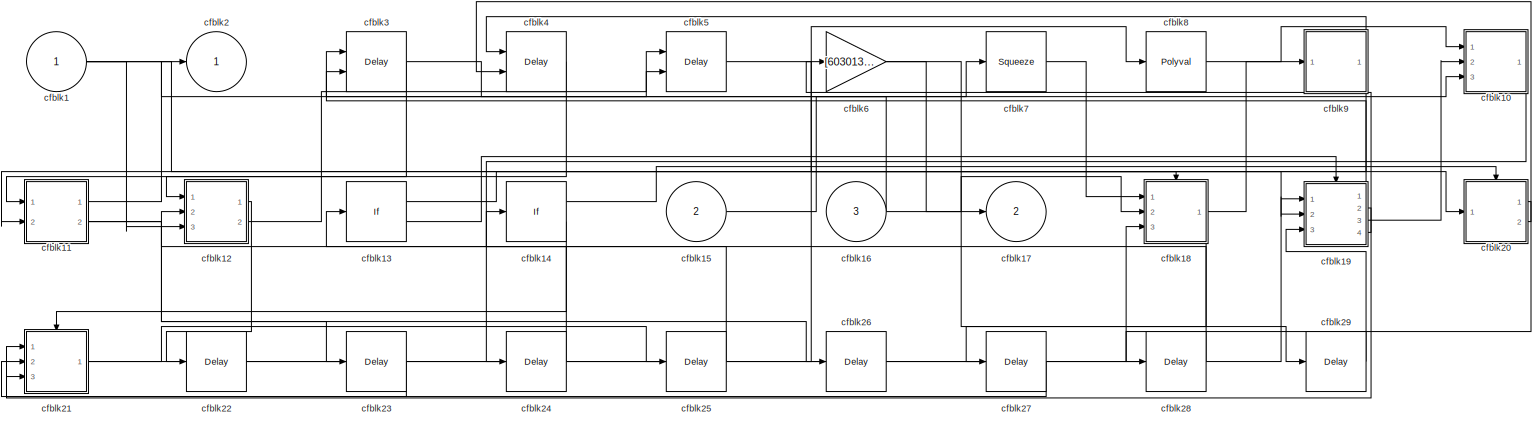
[diagram: cfblk149 - part 1/1, most of the canvas]
BLOCK [SubSystem] cfblk149
  Ports = [3, 2]
  RequestExecContextInheritance = off
BLOCK [Inport] cfblk149/cfblk1
BLOCK [SubSystem] cfblk149/cfblk10
  Ports = [3, 1]
  RequestExecContextInheritance = off
BLOCK [Inport] cfblk149/cfblk10/cfblk1
BLOCK [ComplexToRealImag] cfblk149/cfblk10/cfblk10
  Ports = [1, 2]
BLOCK [Gain] cfblk149/cfblk10/cfblk11
  Gain = [-275628108.613545]
BLOCK [Constant] cfblk149/cfblk10/cfblk12
  SampleTime = 1
  Value = [-857519077.424848]
BLOCK [Inport] cfblk149/cfblk10/cfblk13
  Port = 2
BLOCK [Inport] cfblk149/cfblk10/cfblk14
  Port = 3
BLOCK [Delay] cfblk149/cfblk10/cfblk15
  InputPortMap = u0
  Ports = [1, 1]
  SampleTime = 1
BLOCK [Delay] cfblk149/cfblk10/cfblk16
  InputPortMap = u0
  Ports = [1, 1]
  SampleTime = 1
BLOCK [Outport] cfblk149/cfblk10/cfblk2
BLOCK [DiscreteZeroPole] cfblk149/cfblk10/cfblk3
  Gain = 1
  Poles = [0 0.5]
BLOCK [DiscreteIntegrator] cfblk149/cfblk10/cfblk4
  ICPrevOutput = DiscIntNeverNeededParam
  ICPrevScaledInput = DiscIntNeverNeededParam
  InitialConditionSetting = Auto
  Ports = [1, 1]
BLOCK [ComplexToMagnitudeAngle] cfblk149/cfblk10/cfblk5
  Ports = [1, 2]
BLOCK [Sum] cfblk149/cfblk10/cfblk6
  Inputs = |++
  Ports = [2, 1]
BLOCK [Product] cfblk149/cfblk10/cfblk7
  Ports = [2, 1]
BLOCK [Reference] cfblk149/cfblk10/cfblk8  REF=simulink/Math
Operations/Slider
Gain
  Ports = [1, 1]
  SourceBlock = simulink/Math\nOperations/Slider\nGain
  SourceProductBaseCode = SL
  SourceType = Slider Gain
BLOCK [Sum] cfblk149/cfblk10/cfblk9
  IconShape = rectangular
  Inputs = +-
  Ports = [2, 1]
BLOCK [SubSystem] cfblk149/cfblk11
  Ports = [2, 2]
  RequestExecContextInheritance = off
BLOCK [Inport] cfblk149/cfblk11/cfblk1
BLOCK [Delay] cfblk149/cfblk11/cfblk10
  InputPortMap = u0
  Ports = [1, 1]
  SampleTime = 1
BLOCK [Outport] cfblk149/cfblk11/cfblk2
BLOCK [Reference] cfblk149/cfblk11/cfblk3  REF=slpidlib/PID Controller
  Ports = [1, 1]
  SourceBlock = slpidlib/PID Controller
  SourceProductBaseCode = SL
  SourceType = PID 1dof
BLOCK [Reference] cfblk149/cfblk11/cfblk4  REF=slpidlib/PID Controller (2DOF)
  Ports = [2, 1]
  SourceBlock = slpidlib/PID Controller (2DOF)
  SourceProductBaseCode = SL
  SourceType = PID 2dof
BLOCK [Reference] cfblk149/cfblk11/cfblk5  REF=simulink/Math
Operations/MinMax
Running
Resettable
  Ports = [2, 1]
  SourceBlock = simulink/Math\nOperations/MinMax\nRunning\nResettable
  SourceProductBaseCode = SL
  SourceType = MinMax Running Resettable
BLOCK [Sum] cfblk149/cfblk11/cfblk6
  IconShape = rectangular
  Inputs = +-
  Ports = [2, 1]
BLOCK [Sqrt] cfblk149/cfblk11/cfblk7
  AlgorithmType = Newton-Raphson
  Operator = rSqrt
BLOCK [Inport] cfblk149/cfblk11/cfblk8
  Port = 2
BLOCK [Outport] cfblk149/cfblk11/cfblk9
  Port = 2
BLOCK [SubSystem] cfblk149/cfblk12
  Ports = [3, 2]
  RequestExecContextInheritance = off
BLOCK [Inport] cfblk149/cfblk12/cfblk1
BLOCK [Constant] cfblk149/cfblk12/cfblk10
  SampleTime = 1
  Value = [-872999660.584105]
BLOCK [Constant] cfblk149/cfblk12/cfblk11
  SampleTime = 1
  Value = [-800077520.756590]
BLOCK [Inport] cfblk149/cfblk12/cfblk12
  Port = 2
BLOCK [Inport] cfblk149/cfblk12/cfblk13
  Port = 3
BLOCK [Outport] cfblk149/cfblk12/cfblk14
  Port = 2
BLOCK [Delay] cfblk149/cfblk12/cfblk15
  InputPortMap = u0
  Ports = [1, 1]
  SampleTime = 1
BLOCK [Outport] cfblk149/cfblk12/cfblk2
BLOCK [DiscreteFir] cfblk149/cfblk12/cfblk3
  InputPortMap = u0
  OutputPortMap = o0
  Ports = [1, 1]
  SampleTime = 1
BLOCK [Delay] cfblk149/cfblk12/cfblk4
  InputPortMap = u0
  Ports = [1, 1]
  SampleTime = 1
BLOCK [Reference] cfblk149/cfblk12/cfblk5  REF=slpidlib/PID Controller
  Ports = [1, 1]
  SourceBlock = slpidlib/PID Controller
  SourceProductBaseCode = SL
  SourceType = PID 1dof
BLOCK [UnaryMinus] cfblk149/cfblk12/cfblk6
BLOCK [Sum] cfblk149/cfblk12/cfblk7
  IconShape = rectangular
  Inputs = +
  Ports = [1, 1]
BLOCK [Sum] cfblk149/cfblk12/cfblk8
  IconShape = rectangular
  Inputs = +-
  Ports = [2, 1]
BLOCK [Reference] cfblk149/cfblk12/cfblk9  REF=simulink/Math
Operations/Slider
Gain
  Ports = [1, 1]
  SourceBlock = simulink/Math\nOperations/Slider\nGain
  SourceProductBaseCode = SL
  SourceType = Slider Gain
BLOCK [If] cfblk149/cfblk13
  IfExpression = u1 >= 0
  Ports = [1, 2]
  SampleTime = 1
BLOCK [If] cfblk149/cfblk14
  IfExpression = u1 >= 0
  Ports = [1, 2]
  SampleTime = 1
BLOCK [Inport] cfblk149/cfblk15
  Port = 2
BLOCK [Inport] cfblk149/cfblk16
  Port = 3
BLOCK [Outport] cfblk149/cfblk17
  Port = 2
BLOCK [SubSystem] cfblk149/cfblk18
  Ports = [3, 1, 0, 0, 0, 0, 0, 1]
  RequestExecContextInheritance = off
  TreatAsAtomicUnit = on
BLOCK [ActionPort] cfblk149/cfblk18/Action Port
  ActionPortLabel = if(u1 >= 0)
BLOCK [Inport] cfblk149/cfblk18/cfblk1
BLOCK [PermuteDimensions] cfblk149/cfblk18/cfblk10
BLOCK [Squeeze] cfblk149/cfblk18/cfblk11
BLOCK [MinMax] cfblk149/cfblk18/cfblk12
  Function = max
  Inputs = 3
  Ports = [3, 1]
BLOCK [Constant] cfblk149/cfblk18/cfblk13
  SampleTime = 1
  Value = [487253589.592895]
BLOCK [Constant] cfblk149/cfblk18/cfblk14
  SampleTime = 1
  Value = [-917480001.005788]
BLOCK [Inport] cfblk149/cfblk18/cfblk15
  Port = 2
BLOCK [Inport] cfblk149/cfblk18/cfblk16
  Port = 3
BLOCK [Outport] cfblk149/cfblk18/cfblk2
BLOCK [DiscreteTransferFcn] cfblk149/cfblk18/cfblk3
  InputPortMap = u0
  Ports = [1, 1]
BLOCK [Reference] cfblk149/cfblk18/cfblk4  REF=slpidlib/PID Controller
  Ports = [1, 1]
  SourceBlock = slpidlib/PID Controller
  SourceProductBaseCode = SL
  SourceType = PID 1dof
BLOCK [Reference] cfblk149/cfblk18/cfblk5  REF=simulink/Discrete/Tapped Delay
  Ports = [1, 1]
  SourceBlock = simulink/Discrete/Tapped Delay
  SourceProductBaseCode = SL
  SourceType = Tapped Delay Line
BLOCK [DiscreteFilter] cfblk149/cfblk18/cfblk6
  InputPortMap = u0
  Ports = [1, 1]
BLOCK [DiscreteTransferFcn] cfblk149/cfblk18/cfblk7
  InputPortMap = u0
  Ports = [1, 1]
BLOCK [Product] cfblk149/cfblk18/cfblk8
  Inputs = *
  Ports = [1, 1]
BLOCK [Abs] cfblk149/cfblk18/cfblk9
  SaturateOnIntegerOverflow = off
BLOCK [SubSystem] cfblk149/cfblk19
  Ports = [3, 4, 0, 0, 0, 0, 0, 1]
  RequestExecContextInheritance = off
  TreatAsAtomicUnit = on
BLOCK [ActionPort] cfblk149/cfblk19/Action Port
  ActionPortLabel = else
BLOCK [Inport] cfblk149/cfblk19/cfblk1
BLOCK [Product] cfblk149/cfblk19/cfblk10
  Inputs = **
  Ports = [2, 1]
BLOCK [Trigonometry] cfblk149/cfblk19/cfblk11
  Ports = [1, 1]
BLOCK [Constant] cfblk149/cfblk19/cfblk12
  SampleTime = 1
  Value = [715838440.950694]
BLOCK [Inport] cfblk149/cfblk19/cfblk13
  Port = 2
BLOCK [Inport] cfblk149/cfblk19/cfblk14
  Port = 3
BLOCK [Outport] cfblk149/cfblk19/cfblk15
  Port = 2
BLOCK [Outport] cfblk149/cfblk19/cfblk16
  Port = 3
BLOCK [Outport] cfblk149/cfblk19/cfblk17
  Port = 4
BLOCK [Delay] cfblk149/cfblk19/cfblk18
  InputPortMap = u0
  Ports = [1, 1]
BLOCK [Outport] cfblk149/cfblk19/cfblk2
BLOCK [Reference] cfblk149/cfblk19/cfblk3  REF=simulink/Discrete/Transfer Fcn
Real Zero
  Ports = [1, 1]
  SourceBlock = simulink/Discrete/Transfer Fcn\nReal Zero
  SourceProductBaseCode = SL
  SourceType = Transfer Fcn Real Zero
BLOCK [Signum] cfblk149/cfblk19/cfblk4
BLOCK [Sum] cfblk149/cfblk19/cfblk5
  IconShape = rectangular
  Inputs = +-
  Ports = [2, 1]
BLOCK [Sqrt] cfblk149/cfblk19/cfblk6
  AlgorithmType = Newton-Raphson
  Operator = rSqrt
BLOCK [Sum] cfblk149/cfblk19/cfblk7
  IconShape = rectangular
  Ports = [2, 1]
BLOCK [Reshape] cfblk149/cfblk19/cfblk8
  Ports = [1, 1]
BLOCK [Product] cfblk149/cfblk19/cfblk9
  Inputs = *
  Ports = [1, 1]
BLOCK [Outport] cfblk149/cfblk2
BLOCK [SubSystem] cfblk149/cfblk20
  Ports = [1, 2, 0, 0, 0, 0, 0, 1]
  RequestExecContextInheritance = off
  TreatAsAtomicUnit = on
BLOCK [ActionPort] cfblk149/cfblk20/Action Port
  ActionPortLabel = if(u1 >= 0)
BLOCK [Inport] cfblk149/cfblk20/cfblk1
BLOCK [Signum] cfblk149/cfblk20/cfblk10
BLOCK [Constant] cfblk149/cfblk20/cfblk11
  SampleTime = 1
  Value = [-808497863.367805]
BLOCK [Constant] cfblk149/cfblk20/cfblk12
  SampleTime = 1
  Value = [277371454.368760]
BLOCK [Outport] cfblk149/cfblk20/cfblk13
  Port = 2
BLOCK [Delay] cfblk149/cfblk20/cfblk14
  InputPortMap = u0
  Ports = [1, 1]
BLOCK [Outport] cfblk149/cfblk20/cfblk2
BLOCK [Reference] cfblk149/cfblk20/cfblk3  REF=simulink/Discrete/Tapped Delay
  Ports = [1, 1]
  SourceBlock = simulink/Discrete/Tapped Delay
  SourceProductBaseCode = SL
  SourceType = Tapped Delay Line
BLOCK [DiscreteIntegrator] cfblk149/cfblk20/cfblk4
  ICPrevOutput = DiscIntNeverNeededParam
  ICPrevScaledInput = DiscIntNeverNeededParam
  InitialConditionSetting = Auto
  Ports = [1, 1]
  SampleTime = -1
BLOCK [DiscreteFir] cfblk149/cfblk20/cfblk5
  InputPortMap = u0
  OutputPortMap = o0
  Ports = [1, 1]
BLOCK [Rounding] cfblk149/cfblk20/cfblk6
BLOCK [Abs] cfblk149/cfblk20/cfblk7
  SaturateOnIntegerOverflow = off
BLOCK [ComplexToRealImag] cfblk149/cfblk20/cfblk8
  Ports = [1, 2]
BLOCK [PermuteDimensions] cfblk149/cfblk20/cfblk9
BLOCK [SubSystem] cfblk149/cfblk21
  Ports = [3, 1, 0, 0, 0, 0, 0, 1]
  RequestExecContextInheritance = off
  TreatAsAtomicUnit = on
BLOCK [ActionPort] cfblk149/cfblk21/Action Port
  ActionPortLabel = else
BLOCK [Inport] cfblk149/cfblk21/cfblk1
BLOCK [Product] cfblk149/cfblk21/cfblk10
  Inputs = *
  Ports = [1, 1]
BLOCK [Rounding] cfblk149/cfblk21/cfblk11
BLOCK [Bias] cfblk149/cfblk21/cfblk12
  Bias = [172772172.853043]
  SaturateOnIntegerOverflow = off
BLOCK [Rounding] cfblk149/cfblk21/cfblk13
BLOCK [Constant] cfblk149/cfblk21/cfblk14
  SampleTime = 1
  Value = [344002528.385673]
BLOCK [Constant] cfblk149/cfblk21/cfblk15
  SampleTime = 1
  Value = [968197989.836002]
BLOCK [Inport] cfblk149/cfblk21/cfblk16
  Port = 2
BLOCK [Inport] cfblk149/cfblk21/cfblk17
  Port = 3
BLOCK [Delay] cfblk149/cfblk21/cfblk18
  InputPortMap = u0
  Ports = [1, 1]
BLOCK [Outport] cfblk149/cfblk21/cfblk2
BLOCK [Reference] cfblk149/cfblk21/cfblk3  REF=slpidlib/PID Controller
  Ports = [1, 1]
  SourceBlock = slpidlib/PID Controller
  SourceProductBaseCode = SL
  SourceType = PID 1dof
BLOCK [DiscreteTransferFcn] cfblk149/cfblk21/cfblk4
  InputPortMap = u0
  Ports = [1, 1]
BLOCK [DiscreteStateSpace] cfblk149/cfblk21/cfblk5
  SampleTime = -1
BLOCK [DiscreteStateSpace] cfblk149/cfblk21/cfblk6
  SampleTime = -1
BLOCK [Trigonometry] cfblk149/cfblk21/cfblk7
  Ports = [1, 1]
BLOCK [Sin] cfblk149/cfblk21/cfblk8
  Ports = [1, 1]
  SampleTime = 0
  TimeSource = Use external signal
BLOCK [Signum] cfblk149/cfblk21/cfblk9
BLOCK [Delay] cfblk149/cfblk22
  InputPortMap = u0
  Ports = [1, 1]
  SampleTime = 1
BLOCK [Delay] cfblk149/cfblk23
  InputPortMap = u0
  Ports = [1, 1]
  SampleTime = 1
BLOCK [Delay] cfblk149/cfblk24
  InputPortMap = u0
  Ports = [1, 1]
  SampleTime = 1
BLOCK [Delay] cfblk149/cfblk25
  InputPortMap = u0
  Ports = [1, 1]
  SampleTime = 1
BLOCK [Delay] cfblk149/cfblk26
  InputPortMap = u0
  Ports = [1, 1]
  SampleTime = 1
BLOCK [Delay] cfblk149/cfblk27
  InputPortMap = u0
  Ports = [1, 1]
  SampleTime = 1
BLOCK [Delay] cfblk149/cfblk28
  InputPortMap = u0
  Ports = [1, 1]
  SampleTime = 1
BLOCK [Delay] cfblk149/cfblk29
  InputPortMap = u0
  Ports = [1, 1]
  SampleTime = 1
BLOCK [Delay] cfblk149/cfblk3
  DelayLengthSource = Input port
  InputPortMap = u0,p1
  Ports = [2, 1]
  SampleTime = 1
BLOCK [Delay] cfblk149/cfblk4
  DelayLengthSource = Input port
  InputPortMap = u0,p1
  Ports = [2, 1]
  SampleTime = 1
BLOCK [Delay] cfblk149/cfblk5
  InputPortMap = u0,e6
  Ports = [2, 1]
  SampleTime = 1
  ShowEnablePort = on
BLOCK [Gain] cfblk149/cfblk6
  Gain = [60301340.032398]
BLOCK [Squeeze] cfblk149/cfblk7
BLOCK [Polyval] cfblk149/cfblk8
  Coefs = [ +2.081618890e-019, -1.441693666e-014, +4.719686976e-010, -8.536869453e-006, +1.621573104e-001, -8.087801117e+001 ]
BLOCK [SubSystem] cfblk149/cfblk9
  Ports = [1, 1]
  RequestExecContextInheritance = off
BLOCK [Inport] cfblk149/cfblk9/cfblk1
BLOCK [Outport] cfblk149/cfblk9/cfblk2
BLOCK [DiscreteTransferFcn] cfblk149/cfblk9/cfblk3
  InputPortMap = u0
  Ports = [1, 1]
  SampleTime = 1
BLOCK [DiscreteIntegrator] cfblk149/cfblk9/cfblk4
  ICPrevOutput = DiscIntNeverNeededParam
  ICPrevScaledInput = DiscIntNeverNeededParam
  InitialConditionSetting = Auto
  Ports = [1, 1]
BLOCK [Sin] cfblk149/cfblk9/cfblk5
  Ports = [1, 1]
  SampleTime = 0
  TimeSource = Use external signal
BLOCK [Math] cfblk149/cfblk9/cfblk6
  Operator = 10^u
  Ports = [1, 1]
BLOCK [Abs] cfblk149/cfblk9/cfblk7
  SaturateOnIntegerOverflow = off
BLOCK [Delay] cfblk15
  InputPortMap = u0
  Ports = [1, 1]
  SampleTime = 1
BLOCK [SubSystem] cfblk150
  Ports = [2, 1]
  RequestExecContextInheritance = off
BLOCK [Inport] cfblk150/cfblk1
BLOCK [SubSystem] cfblk150/cfblk10
  Ports = [5, 3]
  RequestExecContextInheritance = off
BLOCK [Inport] cfblk150/cfblk10/cfblk1
BLOCK [Constant] cfblk150/cfblk10/cfblk10
  SampleTime = 1
  Value = [-301364929.128712]
BLOCK [Inport] cfblk150/cfblk10/cfblk11
  Port = 2
BLOCK [Inport] cfblk150/cfblk10/cfblk12
  Port = 3
BLOCK [Inport] cfblk150/cfblk10/cfblk13
  Port = 4
BLOCK [Inport] cfblk150/cfblk10/cfblk14
  Port = 5
BLOCK [Outport] cfblk150/cfblk10/cfblk15
  Port = 2
BLOCK [Outport] cfblk150/cfblk10/cfblk16
  Port = 3
BLOCK [Outport] cfblk150/cfblk10/cfblk2
BLOCK [UnitDelay] cfblk150/cfblk10/cfblk3
  HasFrameUpgradeWarning = on
BLOCK [Reference] cfblk150/cfblk10/cfblk4  REF=simulink/Discrete/Tapped Delay
  Ports = [1, 1]
  SourceBlock = simulink/Discrete/Tapped Delay
  SourceProductBaseCode = SL
  SourceType = Tapped Delay Line
BLOCK [Rounding] cfblk150/cfblk10/cfblk5
BLOCK [Sqrt] cfblk150/cfblk10/cfblk6
  AlgorithmType = Newton-Raphson
  Operator = rSqrt
BLOCK [Polyval] cfblk150/cfblk10/cfblk7
  Coefs = [ +2.081618890e-019, -1.441693666e-014, +4.719686976e-010, -8.536869453e-006, +1.621573104e-001, -8.087801117e+001 ]
BLOCK [Sum] cfblk150/cfblk10/cfblk8
  IconShape = rectangular
  Inputs = -+
  Ports = [2, 1]
BLOCK [Constant] cfblk150/cfblk10/cfblk9
  SampleTime = 1
  Value = [611012053.217494]
BLOCK [Inport] cfblk150/cfblk11
  Port = 2
BLOCK [Delay] cfblk150/cfblk12
  InputPortMap = u0
  Ports = [1, 1]
  SampleTime = 1
BLOCK [Delay] cfblk150/cfblk13
  InputPortMap = u0
  Ports = [1, 1]
  SampleTime = 1
BLOCK [Delay] cfblk150/cfblk14
  InputPortMap = u0
  Ports = [1, 1]
  SampleTime = 1
BLOCK [Delay] cfblk150/cfblk15
  InputPortMap = u0
  Ports = [1, 1]
  SampleTime = 1
BLOCK [Delay] cfblk150/cfblk16
  InputPortMap = u0
  Ports = [1, 1]
  SampleTime = 1
BLOCK [Delay] cfblk150/cfblk17
  InputPortMap = u0
  Ports = [1, 1]
  SampleTime = 1
BLOCK [Delay] cfblk150/cfblk18
  InputPortMap = u0
  Ports = [1, 1]
  SampleTime = 1
BLOCK [Delay] cfblk150/cfblk19
  InputPortMap = u0
  Ports = [1, 1]
  SampleTime = 1
BLOCK [Outport] cfblk150/cfblk2
BLOCK [Delay] cfblk150/cfblk3
  InputPortMap = u0
  Ports = [1, 1]
  SampleTime = 1
BLOCK [Reference] cfblk150/cfblk4  REF=slpidlib/PID Controller (2DOF)
  Ports = [2, 1]
  SourceBlock = slpidlib/PID Controller (2DOF)
  SourceProductBaseCode = SL
  SourceType = PID 2dof
BLOCK [Bias] cfblk150/cfblk5
  Bias = [-365167928.627843]
  SaturateOnIntegerOverflow = off
BLOCK [Product] cfblk150/cfblk6
  Inputs = **
  Ports = [2, 1]
BLOCK [SubSystem] cfblk150/cfblk7
  Ports = [4, 2]
  RequestExecContextInheritance = off
BLOCK [Inport] cfblk150/cfblk7/cfblk1
BLOCK [Outport] cfblk150/cfblk7/cfblk10
  Port = 2
BLOCK [Outport] cfblk150/cfblk7/cfblk2
BLOCK [DiscreteIntegrator] cfblk150/cfblk7/cfblk3
  ICPrevOutput = DiscIntNeverNeededParam
  ICPrevScaledInput = DiscIntNeverNeededParam
  InitialConditionSetting = Auto
  Ports = [1, 1]
BLOCK [DiscreteIntegrator] cfblk150/cfblk7/cfblk4
  ICPrevOutput = DiscIntNeverNeededParam
  ICPrevScaledInput = DiscIntNeverNeededParam
  InitialConditionSetting = Auto
  Ports = [1, 1]
BLOCK [Sum] cfblk150/cfblk7/cfblk5
  IconShape = rectangular
  Inputs = +-
  Ports = [2, 1]
BLOCK [Constant] cfblk150/cfblk7/cfblk6
  SampleTime = 1
  Value = [631561104.786365]
BLOCK [Inport] cfblk150/cfblk7/cfblk7
  Port = 2
BLOCK [Inport] cfblk150/cfblk7/cfblk8
  Port = 3
BLOCK [Inport] cfblk150/cfblk7/cfblk9
  Port = 4
BLOCK [SubSystem] cfblk150/cfblk8
  Ports = [4, 1]
  RequestExecContextInheritance = off
BLOCK [Inport] cfblk150/cfblk8/cfblk1
BLOCK [UnaryMinus] cfblk150/cfblk8/cfblk10
BLOCK [Bias] cfblk150/cfblk8/cfblk11
  Bias = [-436451677.583415]
  SaturateOnIntegerOverflow = off
BLOCK [ComplexToRealImag] cfblk150/cfblk8/cfblk12
  Ports = [1, 2]
BLOCK [ComplexToMagnitudeAngle] cfblk150/cfblk8/cfblk13
  Ports = [1, 2]
BLOCK [Constant] cfblk150/cfblk8/cfblk14
  SampleTime = 1
  Value = [788047854.020849]
BLOCK [Inport] cfblk150/cfblk8/cfblk15
  Port = 2
BLOCK [Inport] cfblk150/cfblk8/cfblk16
  Port = 3
BLOCK [Inport] cfblk150/cfblk8/cfblk17
  Port = 4
BLOCK [Delay] cfblk150/cfblk8/cfblk18
  InputPortMap = u0
  Ports = [1, 1]
  SampleTime = 1
BLOCK [Delay] cfblk150/cfblk8/cfblk19
  InputPortMap = u0
  Ports = [1, 1]
  SampleTime = 1
BLOCK [Outport] cfblk150/cfblk8/cfblk2
BLOCK [Reference] cfblk150/cfblk8/cfblk3  REF=slpidlib/PID Controller (2DOF)
  Ports = [2, 1]
  SourceBlock = slpidlib/PID Controller (2DOF)
  SourceProductBaseCode = SL
  SourceType = PID 2dof
BLOCK [Trigonometry] cfblk150/cfblk8/cfblk4
  Ports = [1, 1]
BLOCK [ComplexToMagnitudeAngle] cfblk150/cfblk8/cfblk5
  Ports = [1, 2]
BLOCK [Trigonometry] cfblk150/cfblk8/cfblk6
  Ports = [1, 1]
BLOCK [Assignment] cfblk150/cfblk8/cfblk7
  DiagnosticForDimensions = Warning
  IndexOptions = Index vector (dialog)
  Indices = 1
  OutputSizes = 1
  Ports = [2, 1]
BLOCK [Rounding] cfblk150/cfblk8/cfblk8
BLOCK [Reference] cfblk150/cfblk8/cfblk9  REF=simulink/Math
Operations/MinMax
Running
Resettable
  Ports = [2, 1]
  SourceBlock = simulink/Math\nOperations/MinMax\nRunning\nResettable
  SourceProductBaseCode = SL
  SourceType = MinMax Running Resettable
BLOCK [SubSystem] cfblk150/cfblk9
  Ports = [5, 1]
  RequestExecContextInheritance = off
BLOCK [Inport] cfblk150/cfblk9/cfblk1
BLOCK [Bias] cfblk150/cfblk9/cfblk10
  Bias = [63457417.758405]
  SaturateOnIntegerOverflow = off
BLOCK [Trigonometry] cfblk150/cfblk9/cfblk11
  Ports = [1, 1]
BLOCK [Reshape] cfblk150/cfblk9/cfblk12
  Ports = [1, 1]
BLOCK [Constant] cfblk150/cfblk9/cfblk13
  SampleTime = 1
  Value = [-844218837.397373]
BLOCK [Inport] cfblk150/cfblk9/cfblk14
  Port = 2
BLOCK [Inport] cfblk150/cfblk9/cfblk15
  Port = 3
BLOCK [Inport] cfblk150/cfblk9/cfblk16
  Port = 4
BLOCK [Inport] cfblk150/cfblk9/cfblk17
  Port = 5
BLOCK [Outport] cfblk150/cfblk9/cfblk2
BLOCK [DiscreteIntegrator] cfblk150/cfblk9/cfblk3
  ICPrevOutput = DiscIntNeverNeededParam
  ICPrevScaledInput = DiscIntNeverNeededParam
  InitialConditionSetting = Auto
  Ports = [1, 1]
BLOCK [DiscreteZeroPole] cfblk150/cfblk9/cfblk4
  Gain = 1
  Poles = [0 0.5]
BLOCK [Reference] cfblk150/cfblk9/cfblk5  REF=slpidlib/PID Controller (2DOF)
  Ports = [2, 1]
  SourceBlock = slpidlib/PID Controller (2DOF)
  SourceProductBaseCode = SL
  SourceType = PID 2dof
BLOCK [Sum] cfblk150/cfblk9/cfblk6
  IconShape = rectangular
  Inputs = +-
  Ports = [2, 1]
BLOCK [Sum] cfblk150/cfblk9/cfblk7
  IconShape = rectangular
  Inputs = +
  Ports = [1, 1]
BLOCK [DotProduct] cfblk150/cfblk9/cfblk8
  OutDataTypeStr = Inherit: Inherit via internal rule
BLOCK [Trigonometry] cfblk150/cfblk9/cfblk9
  Ports = [1, 1]
BLOCK [SubSystem] cfblk151
  Ports = [3, 1]
  RequestExecContextInheritance = off
BLOCK [Inport] cfblk151/cfblk1
BLOCK [Outport] cfblk151/cfblk2
BLOCK [DiscreteFir] cfblk151/cfblk3
  InputPortMap = u0
  OutputPortMap = o0
  Ports = [1, 1]
  SampleTime = 1
BLOCK [SubSystem] cfblk151/cfblk4
  Ports = [3, 1]
  RequestExecContextInheritance = off
BLOCK [Inport] cfblk151/cfblk4/cfblk1
BLOCK [Delay] cfblk151/cfblk4/cfblk10
  InputPortMap = u0
  Ports = [1, 1]
  SampleTime = 1
BLOCK [Outport] cfblk151/cfblk4/cfblk2
BLOCK [DiscreteZeroPole] cfblk151/cfblk4/cfblk3
  Gain = 1
  Poles = [0 0.5]
BLOCK [DiscreteFir] cfblk151/cfblk4/cfblk4
  InputPortMap = u0
  OutputPortMap = o0
  Ports = [1, 1]
  SampleTime = 1
BLOCK [PermuteDimensions] cfblk151/cfblk4/cfblk5
BLOCK [Polyval] cfblk151/cfblk4/cfblk6
  Coefs = [ +2.081618890e-019, -1.441693666e-014, +4.719686976e-010, -8.536869453e-006, +1.621573104e-001, -8.087801117e+001 ]
BLOCK [Constant] cfblk151/cfblk4/cfblk7
  SampleTime = 1
  Value = [-796918278.726707]
BLOCK [Inport] cfblk151/cfblk4/cfblk8
  Port = 2
BLOCK [Inport] cfblk151/cfblk4/cfblk9
  Port = 3
BLOCK [SubSystem] cfblk151/cfblk5
  Ports = [2, 1]
  RequestExecContextInheritance = off
BLOCK [Inport] cfblk151/cfblk5/cfblk1
BLOCK [Inport] cfblk151/cfblk5/cfblk10
  Port = 2
BLOCK [Delay] cfblk151/cfblk5/cfblk11
  InputPortMap = u0
  Ports = [1, 1]
  SampleTime = 1
BLOCK [Outport] cfblk151/cfblk5/cfblk2
BLOCK [Reference] cfblk151/cfblk5/cfblk3  REF=simulink/Discrete/Tapped Delay
  Ports = [1, 1]
  SourceBlock = simulink/Discrete/Tapped Delay
  SourceProductBaseCode = SL
  SourceType = Tapped Delay Line
BLOCK [Reference] cfblk151/cfblk5/cfblk4  REF=simulink/Discrete/Tapped Delay
  Ports = [1, 1]
  SourceBlock = simulink/Discrete/Tapped Delay
  SourceProductBaseCode = SL
  SourceType = Tapped Delay Line
BLOCK [Reference] cfblk151/cfblk5/cfblk5  REF=slpidlib/PID Controller
  Ports = [1, 1]
  SourceBlock = slpidlib/PID Controller
  SourceProductBaseCode = SL
  SourceType = PID 1dof
BLOCK [Assignment] cfblk151/cfblk5/cfblk6
  DiagnosticForDimensions = Warning
  IndexOptions = Index vector (dialog)
  Indices = 1
  OutputSizes = 1
  Ports = [2, 1]
BLOCK [Abs] cfblk151/cfblk5/cfblk7
  SaturateOnIntegerOverflow = off
BLOCK [Sum] cfblk151/cfblk5/cfblk8
  Inputs = |++
  Ports = [2, 1]
BLOCK [Constant] cfblk151/cfblk5/cfblk9
  SampleTime = 1
  Value = [489288963.067119]
BLOCK [Inport] cfblk151/cfblk6
  Port = 2
BLOCK [Inport] cfblk151/cfblk7
  Port = 3
BLOCK [Delay] cfblk151/cfblk8
  InputPortMap = u0
  Ports = [1, 1]
  SampleTime = 1
BLOCK [SubSystem] cfblk152
  Ports = [1, 2]
  RequestExecContextInheritance = off
BLOCK [Inport] cfblk152/cfblk1
BLOCK [Delay] cfblk152/cfblk10
  InputPortMap = u0
  Ports = [1, 1]
  SampleTime = 1
BLOCK [Outport] cfblk152/cfblk2
BLOCK [Sqrt] cfblk152/cfblk3
  AlgorithmType = Newton-Raphson
  Operator = rSqrt
BLOCK [DotProduct] cfblk152/cfblk4
  OutDataTypeStr = Inherit: Inherit via internal rule
BLOCK [SubSystem] cfblk152/cfblk5
  Ports = [2, 4]
  RequestExecContextInheritance = off
BLOCK [Inport] cfblk152/cfblk5/cfblk1
BLOCK [MinMax] cfblk152/cfblk5/cfblk10
  Inputs = 3
  Ports = [3, 1]
BLOCK [Constant] cfblk152/cfblk5/cfblk11
  SampleTime = 1
  Value = [-934927172.191731]
BLOCK [Inport] cfblk152/cfblk5/cfblk12
  Port = 2
BLOCK [Outport] cfblk152/cfblk5/cfblk13
  Port = 2
BLOCK [Outport] cfblk152/cfblk5/cfblk14
  Port = 3
BLOCK [Outport] cfblk152/cfblk5/cfblk15
  Port = 4
BLOCK [Delay] cfblk152/cfblk5/cfblk16
  InputPortMap = u0
  Ports = [1, 1]
  SampleTime = 1
BLOCK [Delay] cfblk152/cfblk5/cfblk17
  InputPortMap = u0
  Ports = [1, 1]
  SampleTime = 1
BLOCK [Outport] cfblk152/cfblk5/cfblk2
BLOCK [Reference] cfblk152/cfblk5/cfblk3  REF=simulink/Discrete/Transfer Fcn
Lead or Lag
  Ports = [1, 1]
  SourceBlock = simulink/Discrete/Transfer Fcn\nLead or Lag
  SourceProductBaseCode = SL
  SourceType = Lead or Lag Compensator
BLOCK [Reference] cfblk152/cfblk5/cfblk4  REF=slpidlib/PID Controller (2DOF)
  Ports = [2, 1]
  SourceBlock = slpidlib/PID Controller (2DOF)
  SourceProductBaseCode = SL
  SourceType = PID 2dof
BLOCK [Sum] cfblk152/cfblk5/cfblk5
  IconShape = rectangular
  Inputs = +-
  Ports = [2, 1]
BLOCK [Product] cfblk152/cfblk5/cfblk6
  Ports = [2, 1]
BLOCK [Squeeze] cfblk152/cfblk5/cfblk7
BLOCK [Assignment] cfblk152/cfblk5/cfblk8
  DiagnosticForDimensions = Warning
  IndexOptions = Index vector (dialog)
  Indices = 1
  OutputSizes = 1
  Ports = [2, 1]
BLOCK [Product] cfblk152/cfblk5/cfblk9
  Inputs = *
  Ports = [1, 1]
BLOCK [SubSystem] cfblk152/cfblk6
  Ports = [3, 4]
  RequestExecContextInheritance = off
BLOCK [Inport] cfblk152/cfblk6/cfblk1
BLOCK [Outport] cfblk152/cfblk6/cfblk10
  Port = 4
BLOCK [Outport] cfblk152/cfblk6/cfblk2
BLOCK [Product] cfblk152/cfblk6/cfblk3
  Inputs = *
  Ports = [1, 1]
BLOCK [Sum] cfblk152/cfblk6/cfblk4
  IconShape = rectangular
  Inputs = +
  Ports = [1, 1]
BLOCK [Sum] cfblk152/cfblk6/cfblk5
  IconShape = rectangular
  Inputs = +-
  Ports = [2, 1]
BLOCK [Inport] cfblk152/cfblk6/cfblk6
  Port = 2
BLOCK [Inport] cfblk152/cfblk6/cfblk7
  Port = 3
BLOCK [Outport] cfblk152/cfblk6/cfblk8
  Port = 2
BLOCK [Outport] cfblk152/cfblk6/cfblk9
  Port = 3
BLOCK [Outport] cfblk152/cfblk7
  Port = 2
BLOCK [Delay] cfblk152/cfblk8
  InputPortMap = u0
  Ports = [1, 1]
  SampleTime = 1
BLOCK [Delay] cfblk152/cfblk9
  InputPortMap = u0
  Ports = [1, 1]
  SampleTime = 1
BLOCK [SubSystem] cfblk153
  Ports = [2, 1]
  RequestExecContextInheritance = off
BLOCK [Inport] cfblk153/cfblk1
BLOCK [Delay] cfblk153/cfblk10
  InputPortMap = u0
  Ports = [1, 1]
  SampleTime = 1
BLOCK [Delay] cfblk153/cfblk11
  InputPortMap = u0
  Ports = [1, 1]
  SampleTime = 1
BLOCK [Delay] cfblk153/cfblk12
  InputPortMap = u0
  Ports = [1, 1]
  SampleTime = 1
BLOCK [Delay] cfblk153/cfblk13
  InputPortMap = u0
  Ports = [1, 1]
  SampleTime = 1
BLOCK [Outport] cfblk153/cfblk2
BLOCK [DiscreteFilter] cfblk153/cfblk3
  InputPortMap = u0
  Ports = [1, 1]
  SampleTime = 1
BLOCK [SubSystem] cfblk153/cfblk4
  Ports = [3, 3]
  RequestExecContextInheritance = off
BLOCK [Inport] cfblk153/cfblk4/cfblk1
BLOCK [Reshape] cfblk153/cfblk4/cfblk10
  Ports = [1, 1]
BLOCK [Constant] cfblk153/cfblk4/cfblk11
  SampleTime = 1
  Value = [-710323715.562262]
BLOCK [Constant] cfblk153/cfblk4/cfblk12
  SampleTime = 1
  Value = [-701020387.838028]
BLOCK [Constant] cfblk153/cfblk4/cfblk13
  SampleTime = 1
  Value = [243643763.375123]
BLOCK [Inport] cfblk153/cfblk4/cfblk14
  Port = 2
BLOCK [Inport] cfblk153/cfblk4/cfblk15
  Port = 3
BLOCK [Outport] cfblk153/cfblk4/cfblk16
  Port = 2
BLOCK [Outport] cfblk153/cfblk4/cfblk17
  Port = 3
BLOCK [Outport] cfblk153/cfblk4/cfblk2
BLOCK [Reference] cfblk153/cfblk4/cfblk3  REF=slpidlib/PID Controller (2DOF)
  Ports = [2, 1]
  SourceBlock = slpidlib/PID Controller (2DOF)
  SourceProductBaseCode = SL
  SourceType = PID 2dof
BLOCK [Delay] cfblk153/cfblk4/cfblk4
  DelayLengthSource = Input port
  InputPortMap = u0,p1
  Ports = [2, 1]
  SampleTime = 1
BLOCK [DiscreteFilter] cfblk153/cfblk4/cfblk5
  InputPortMap = u0
  Ports = [1, 1]
  SampleTime = 1
BLOCK [Reference] cfblk153/cfblk4/cfblk6  REF=simulink/Discrete/Tapped Delay
  Ports = [1, 1]
  SourceBlock = simulink/Discrete/Tapped Delay
  SourceProductBaseCode = SL
  SourceType = Tapped Delay Line
BLOCK [Reference] cfblk153/cfblk4/cfblk7  REF=simulink/Math
Operations/Slider
Gain
  Ports = [1, 1]
  SourceBlock = simulink/Math\nOperations/Slider\nGain
  SourceProductBaseCode = SL
  SourceType = Slider Gain
BLOCK [Trigonometry] cfblk153/cfblk4/cfblk8
  Ports = [1, 1]
BLOCK [Product] cfblk153/cfblk4/cfblk9
  Inputs = **
  Ports = [2, 1]
BLOCK [SubSystem] cfblk153/cfblk5
  Ports = [1, 1]
  RequestExecContextInheritance = off
BLOCK [Inport] cfblk153/cfblk5/cfblk1
BLOCK [Gain] cfblk153/cfblk5/cfblk10
  Gain = [-221919681.554940]
BLOCK [Product] cfblk153/cfblk5/cfblk11
  Inputs = **
  Ports = [2, 1]
BLOCK [Constant] cfblk153/cfblk5/cfblk12
  SampleTime = 1
  Value = [410201130.029791]
BLOCK [Constant] cfblk153/cfblk5/cfblk13
  SampleTime = 1
  Value = [709749729.415037]
BLOCK [Delay] cfblk153/cfblk5/cfblk14
  InputPortMap = u0
  Ports = [1, 1]
  SampleTime = 1
BLOCK [Outport] cfblk153/cfblk5/cfblk2
BLOCK [Reference] cfblk153/cfblk5/cfblk3  REF=simulink/Discrete/Difference
  Ports = [1, 1]
  SourceBlock = simulink/Discrete/Difference
  SourceProductBaseCode = SL
  SourceType = Difference
BLOCK [Delay] cfblk153/cfblk5/cfblk4
  DelayLengthSource = Input port
  InputPortMap = u0,p1
  Ports = [2, 1]
  SampleTime = 1
BLOCK [DiscreteTransferFcn] cfblk153/cfblk5/cfblk5
  InputPortMap = u0
  Ports = [1, 1]
  SampleTime = 1
BLOCK [Reference] cfblk153/cfblk5/cfblk6  REF=slpidlib/PID Controller
  Ports = [1, 1]
  SourceBlock = slpidlib/PID Controller
  SourceProductBaseCode = SL
  SourceType = PID 1dof
BLOCK [Polyval] cfblk153/cfblk5/cfblk7
  Coefs = [ +2.081618890e-019, -1.441693666e-014, +4.719686976e-010, -8.536869453e-006, +1.621573104e-001, -8.087801117e+001 ]
BLOCK [Product] cfblk153/cfblk5/cfblk8
  Ports = [2, 1]
BLOCK [PermuteDimensions] cfblk153/cfblk5/cfblk9
BLOCK [If] cfblk153/cfblk6
  IfExpression = u1 >= 0
  Ports = [1, 2]
  SampleTime = 1
BLOCK [Inport] cfblk153/cfblk7
  Port = 2
BLOCK [SubSystem] cfblk153/cfblk8
  Ports = [2, 5, 0, 0, 0, 0, 0, 1]
  RequestExecContextInheritance = off
  TreatAsAtomicUnit = on
BLOCK [ActionPort] cfblk153/cfblk8/Action Port
  ActionPortLabel = if(u1 >= 0)
BLOCK [Inport] cfblk153/cfblk8/cfblk1
BLOCK [Inport] cfblk153/cfblk8/cfblk10
  Port = 2
BLOCK [Outport] cfblk153/cfblk8/cfblk11
  Port = 2
BLOCK [Outport] cfblk153/cfblk8/cfblk12
  Port = 3
BLOCK [Outport] cfblk153/cfblk8/cfblk13
  Port = 4
BLOCK [Outport] cfblk153/cfblk8/cfblk14
  Port = 5
BLOCK [Delay] cfblk153/cfblk8/cfblk15
  InputPortMap = u0
  Ports = [1, 1]
BLOCK [Outport] cfblk153/cfblk8/cfblk2
BLOCK [Reference] cfblk153/cfblk8/cfblk3  REF=simulink/Discrete/Difference
  Ports = [1, 1]
  SourceBlock = simulink/Discrete/Difference
  SourceProductBaseCode = SL
  SourceType = Difference
BLOCK [Reference] cfblk153/cfblk8/cfblk4  REF=simulink/Discrete/Difference
  Ports = [1, 1]
  SourceBlock = simulink/Discrete/Difference
  SourceProductBaseCode = SL
  SourceType = Difference
BLOCK [Reference] cfblk153/cfblk8/cfblk5  REF=simulink/Discrete/Difference
  Ports = [1, 1]
  SourceBlock = simulink/Discrete/Difference
  SourceProductBaseCode = SL
  SourceType = Difference
BLOCK [Sqrt] cfblk153/cfblk8/cfblk6
  AlgorithmType = Newton-Raphson
  Operator = rSqrt
BLOCK [DotProduct] cfblk153/cfblk8/cfblk7
  OutDataTypeStr = Inherit: Inherit via internal rule
BLOCK [Sqrt] cfblk153/cfblk8/cfblk8
BLOCK [Sum] cfblk153/cfblk8/cfblk9
  IconShape = rectangular
  Inputs = +
  Ports = [1, 1]
BLOCK [SubSystem] cfblk153/cfblk9
  Ports = [4, 2, 0, 0, 0, 0, 0, 1]
  RequestExecContextInheritance = off
  TreatAsAtomicUnit = on
BLOCK [ActionPort] cfblk153/cfblk9/Action Port
  ActionPortLabel = else
BLOCK [Inport] cfblk153/cfblk9/cfblk1
BLOCK [Sum] cfblk153/cfblk9/cfblk10
  IconShape = rectangular
  Inputs = +
  Ports = [1, 1]
BLOCK [Product] cfblk153/cfblk9/cfblk11
  Ports = [2, 1]
BLOCK [Constant] cfblk153/cfblk9/cfblk12
  SampleTime = 1
  Value = [495954172.904898]
BLOCK [Constant] cfblk153/cfblk9/cfblk13
  SampleTime = 1
  Value = [-340298948.738181]
BLOCK [Inport] cfblk153/cfblk9/cfblk14
  Port = 2
BLOCK [Inport] cfblk153/cfblk9/cfblk15
  Port = 3
BLOCK [Inport] cfblk153/cfblk9/cfblk16
  Port = 4
BLOCK [Outport] cfblk153/cfblk9/cfblk17
  Port = 2
BLOCK [Outport] cfblk153/cfblk9/cfblk2
BLOCK [UnitDelay] cfblk153/cfblk9/cfblk3
  HasFrameUpgradeWarning = on
  SampleTime = -1
BLOCK [Signum] cfblk153/cfblk9/cfblk4
BLOCK [Abs] cfblk153/cfblk9/cfblk5
  SaturateOnIntegerOverflow = off
BLOCK [Reshape] cfblk153/cfblk9/cfblk6
  Ports = [1, 1]
BLOCK [Trigonometry] cfblk153/cfblk9/cfblk7
  Ports = [1, 1]
BLOCK [ComplexToRealImag] cfblk153/cfblk9/cfblk8
  Ports = [1, 2]
BLOCK [ComplexToRealImag] cfblk153/cfblk9/cfblk9
  Ports = [1, 2]
BLOCK [SubSystem] cfblk154
  Ports = [4, 1]
  RequestExecContextInheritance = off
BLOCK [Inport] cfblk154/cfblk1
BLOCK [SubSystem] cfblk154/cfblk10
  Ports = [4, 1]
  RequestExecContextInheritance = off
BLOCK [Inport] cfblk154/cfblk10/cfblk1
BLOCK [Inport] cfblk154/cfblk10/cfblk10
  Port = 2
BLOCK [Inport] cfblk154/cfblk10/cfblk11
  Port = 3
BLOCK [Inport] cfblk154/cfblk10/cfblk12
  Port = 4
BLOCK [Delay] cfblk154/cfblk10/cfblk13
  InputPortMap = u0
  Ports = [1, 1]
  SampleTime = 1
BLOCK [Outport] cfblk154/cfblk10/cfblk2
BLOCK [Reference] cfblk154/cfblk10/cfblk3  REF=simulink/Discrete/Transfer Fcn
Lead or Lag
  Ports = [1, 1]
  SourceBlock = simulink/Discrete/Transfer Fcn\nLead or Lag
  SourceProductBaseCode = SL
  SourceType = Lead or Lag Compensator
BLOCK [UnitDelay] cfblk154/cfblk10/cfblk4
  HasFrameUpgradeWarning = on
BLOCK [Sum] cfblk154/cfblk10/cfblk5
  IconShape = rectangular
  Inputs = +
  Ports = [1, 1]
BLOCK [Abs] cfblk154/cfblk10/cfblk6
  SaturateOnIntegerOverflow = off
BLOCK [Signum] cfblk154/cfblk10/cfblk7
BLOCK [Gain] cfblk154/cfblk10/cfblk8
  Gain = [-242990243.918782]
BLOCK [Constant] cfblk154/cfblk10/cfblk9
  SampleTime = 1
  Value = [21718578.642974]
BLOCK [SubSystem] cfblk154/cfblk11
  Ports = [2, 2]
  RequestExecContextInheritance = off
BLOCK [Inport] cfblk154/cfblk11/cfblk1
BLOCK [Outport] cfblk154/cfblk11/cfblk2
BLOCK [DiscreteStateSpace] cfblk154/cfblk11/cfblk3
BLOCK [PermuteDimensions] cfblk154/cfblk11/cfblk4
BLOCK [Constant] cfblk154/cfblk11/cfblk5
  SampleTime = 1
  Value = [684801277.702415]
BLOCK [Inport] cfblk154/cfblk11/cfblk6
  Port = 2
BLOCK [Outport] cfblk154/cfblk11/cfblk7
  Port = 2
BLOCK [SubSystem] cfblk154/cfblk12
  Ports = [2, 2]
  RequestExecContextInheritance = off
BLOCK [Inport] cfblk154/cfblk12/cfblk1
BLOCK [Constant] cfblk154/cfblk12/cfblk10
  SampleTime = 1
  Value = [262844362.007581]
BLOCK [Constant] cfblk154/cfblk12/cfblk11
  SampleTime = 1
  Value = [168837890.582458]
BLOCK [Constant] cfblk154/cfblk12/cfblk12
  SampleTime = 1
  Value = [501149805.314403]
BLOCK [Inport] cfblk154/cfblk12/cfblk13
  Port = 2
BLOCK [Outport] cfblk154/cfblk12/cfblk14
  Port = 2
BLOCK [Delay] cfblk154/cfblk12/cfblk15
  InputPortMap = u0
  Ports = [1, 1]
  SampleTime = 1
BLOCK [Outport] cfblk154/cfblk12/cfblk2
BLOCK [DiscreteFilter] cfblk154/cfblk12/cfblk3
  InputPortMap = u0
  Ports = [1, 1]
  SampleTime = 1
BLOCK [Reference] cfblk154/cfblk12/cfblk4  REF=slpidlib/PID Controller (2DOF)
  Ports = [2, 1]
  SourceBlock = slpidlib/PID Controller (2DOF)
  SourceProductBaseCode = SL
  SourceType = PID 2dof
BLOCK [DotProduct] cfblk154/cfblk12/cfblk5
  OutDataTypeStr = Inherit: Inherit via internal rule
BLOCK [Sqrt] cfblk154/cfblk12/cfblk6
BLOCK [ComplexToMagnitudeAngle] cfblk154/cfblk12/cfblk7
  Ports = [1, 2]
BLOCK [Squeeze] cfblk154/cfblk12/cfblk8
BLOCK [Gain] cfblk154/cfblk12/cfblk9
  Gain = [491659795.284429]
BLOCK [SubSystem] cfblk154/cfblk13
  Ports = [6, 2]
  RequestExecContextInheritance = off
BLOCK [Inport] cfblk154/cfblk13/cfblk1
BLOCK [Inport] cfblk154/cfblk13/cfblk10
  Port = 2
BLOCK [Inport] cfblk154/cfblk13/cfblk11
  Port = 3
BLOCK [Inport] cfblk154/cfblk13/cfblk12
  Port = 4
BLOCK [Inport] cfblk154/cfblk13/cfblk13
  Port = 5
BLOCK [Inport] cfblk154/cfblk13/cfblk14
  Port = 6
BLOCK [Outport] cfblk154/cfblk13/cfblk15
  Port = 2
BLOCK [Outport] cfblk154/cfblk13/cfblk2
BLOCK [DiscreteTransferFcn] cfblk154/cfblk13/cfblk3
  InputPortMap = u0
  Ports = [1, 1]
  SampleTime = 1
BLOCK [Reference] cfblk154/cfblk13/cfblk4  REF=simulink/Discrete/Transfer Fcn
First Order
  Ports = [1, 1]
  SourceBlock = simulink/Discrete/Transfer Fcn\nFirst Order
  SourceProductBaseCode = SL
  SourceType = First Order Transfer Fcn
BLOCK [UnitDelay] cfblk154/cfblk13/cfblk5
  HasFrameUpgradeWarning = on
BLOCK [ComplexToMagnitudeAngle] cfblk154/cfblk13/cfblk6
  Ports = [1, 2]
BLOCK [UnaryMinus] cfblk154/cfblk13/cfblk7
BLOCK [Rounding] cfblk154/cfblk13/cfblk8
BLOCK [Constant] cfblk154/cfblk13/cfblk9
  SampleTime = 1
  Value = [323627725.294492]
BLOCK [If] cfblk154/cfblk14
  IfExpression = u1 >= 0
  Ports = [1, 2]
  SampleTime = 1
BLOCK [Inport] cfblk154/cfblk15
  Port = 2
BLOCK [Inport] cfblk154/cfblk16
  Port = 3
BLOCK [Inport] cfblk154/cfblk17
  Port = 4
BLOCK [SubSystem] cfblk154/cfblk18
  Ports = [3, 1, 0, 0, 0, 0, 0, 1]
  RequestExecContextInheritance = off
  TreatAsAtomicUnit = on
BLOCK [ActionPort] cfblk154/cfblk18/Action Port
  ActionPortLabel = if(u1 >= 0)
BLOCK [Inport] cfblk154/cfblk18/cfblk1
BLOCK [Reshape] cfblk154/cfblk18/cfblk10
  Ports = [1, 1]
BLOCK [Signum] cfblk154/cfblk18/cfblk11
BLOCK [Sqrt] cfblk154/cfblk18/cfblk12
BLOCK [Trigonometry] cfblk154/cfblk18/cfblk13
  Ports = [1, 1]
BLOCK [Constant] cfblk154/cfblk18/cfblk14
  SampleTime = 1
  Value = [948768714.420102]
BLOCK [Constant] cfblk154/cfblk18/cfblk15
  SampleTime = 1
  Value = [-161837376.696521]
BLOCK [Inport] cfblk154/cfblk18/cfblk16
  Port = 2
BLOCK [Inport] cfblk154/cfblk18/cfblk17
  Port = 3
BLOCK [Delay] cfblk154/cfblk18/cfblk18
  InputPortMap = u0
  Ports = [1, 1]
BLOCK [Outport] cfblk154/cfblk18/cfblk2
BLOCK [Reference] cfblk154/cfblk18/cfblk3  REF=simulink/Discrete/Transfer Fcn
Lead or Lag
  Ports = [1, 1]
  SourceBlock = simulink/Discrete/Transfer Fcn\nLead or Lag
  SourceProductBaseCode = SL
  SourceType = Lead or Lag Compensator
BLOCK [Delay] cfblk154/cfblk18/cfblk4
  InputPortMap = u0,e6
  Ports = [2, 1]
  ShowEnablePort = on
BLOCK [DiscreteFilter] cfblk154/cfblk18/cfblk5
  InputPortMap = u0
  Ports = [1, 1]
BLOCK [DiscreteIntegrator] cfblk154/cfblk18/cfblk6
  ICPrevOutput = DiscIntNeverNeededParam
  ICPrevScaledInput = DiscIntNeverNeededParam
  InitialConditionSetting = Auto
  Ports = [1, 1]
  SampleTime = -1
BLOCK [Sum] cfblk154/cfblk18/cfblk7
  IconShape = rectangular
  Inputs = +-
  Ports = [2, 1]
BLOCK [Assignment] cfblk154/cfblk18/cfblk8
  DiagnosticForDimensions = Warning
  IndexOptions = Index vector (dialog)
  Indices = 1
  OutputSizes = 1
  Ports = [2, 1]
BLOCK [Sum] cfblk154/cfblk18/cfblk9
  IconShape = rectangular
  Inputs = +-
  Ports = [2, 1]
BLOCK [SubSystem] cfblk154/cfblk19
  Ports = [3, 2, 0, 0, 0, 0, 0, 1]
  RequestExecContextInheritance = off
  TreatAsAtomicUnit = on
BLOCK [ActionPort] cfblk154/cfblk19/Action Port
  ActionPortLabel = else
BLOCK [Inport] cfblk154/cfblk19/cfblk1
BLOCK [Outport] cfblk154/cfblk19/cfblk10
  Port = 2
BLOCK [Outport] cfblk154/cfblk19/cfblk2
BLOCK [DiscreteFilter] cfblk154/cfblk19/cfblk3
  InputPortMap = u0
  Ports = [1, 1]
BLOCK [Product] cfblk154/cfblk19/cfblk4
  Inputs = **
  Ports = [2, 1]
BLOCK [Sum] cfblk154/cfblk19/cfblk5
  IconShape = rectangular
  Inputs = -+
  Ports = [2, 1]
BLOCK [Signum] cfblk154/cfblk19/cfblk6
BLOCK [UnaryMinus] cfblk154/cfblk19/cfblk7
BLOCK [Inport] cfblk154/cfblk19/cfblk8
  Port = 2
BLOCK [Inport] cfblk154/cfblk19/cfblk9
  Port = 3
BLOCK [Outport] cfblk154/cfblk2
BLOCK [Delay] cfblk154/cfblk20
  InputPortMap = u0
  Ports = [1, 1]
  SampleTime = 1
BLOCK [Delay] cfblk154/cfblk21
  InputPortMap = u0
  Ports = [1, 1]
  SampleTime = 1
BLOCK [Delay] cfblk154/cfblk22
  InputPortMap = u0
  Ports = [1, 1]
  SampleTime = 1
BLOCK [Delay] cfblk154/cfblk23
  InputPortMap = u0
  Ports = [1, 1]
  SampleTime = 1
BLOCK [Delay] cfblk154/cfblk24
  InputPortMap = u0
  Ports = [1, 1]
  SampleTime = 1
BLOCK [Delay] cfblk154/cfblk25
  InputPortMap = u0
  Ports = [1, 1]
  SampleTime = 1
BLOCK [Delay] cfblk154/cfblk26
  InputPortMap = u0
  Ports = [1, 1]
  SampleTime = 1
BLOCK [Delay] cfblk154/cfblk27
  InputPortMap = u0
  Ports = [1, 1]
  SampleTime = 1
BLOCK [Delay] cfblk154/cfblk28
  InputPortMap = u0
  Ports = [1, 1]
  SampleTime = 1
BLOCK [Reference] cfblk154/cfblk3  REF=simulink/Discrete/Tapped Delay
  Ports = [1, 1]
  SourceBlock = simulink/Discrete/Tapped Delay
  SourceProductBaseCode = SL
  SourceType = Tapped Delay Line
BLOCK [DiscreteStateSpace] cfblk154/cfblk4
BLOCK [Rounding] cfblk154/cfblk5
BLOCK [Sin] cfblk154/cfblk6
  Ports = [1, 1]
  SampleTime = 0
  TimeSource = Use external signal
BLOCK [Constant] cfblk154/cfblk7
  SampleTime = 1
  Value = [-64863411.152234]
BLOCK [Constant] cfblk154/cfblk8
  SampleTime = 1
  Value = [66066869.980034]
BLOCK [SubSystem] cfblk154/cfblk9
  Ports = [3, 1]
  RequestExecContextInheritance = off
BLOCK [Inport] cfblk154/cfblk9/cfblk1
BLOCK [Inport] cfblk154/cfblk9/cfblk10
  Port = 3
BLOCK [Delay] cfblk154/cfblk9/cfblk11
  InputPortMap = u0
  Ports = [1, 1]
  SampleTime = 1
BLOCK [Outport] cfblk154/cfblk9/cfblk2
BLOCK [PermuteDimensions] cfblk154/cfblk9/cfblk3
BLOCK [Sum] cfblk154/cfblk9/cfblk4
  Inputs = |++
  Ports = [2, 1]
BLOCK [Sin] cfblk154/cfblk9/cfblk5
  Ports = [1, 1]
  SampleTime = 0
  TimeSource = Use external signal
BLOCK [Constant] cfblk154/cfblk9/cfblk6
  SampleTime = 1
  Value = [-343074464.888082]
BLOCK [Constant] cfblk154/cfblk9/cfblk7
  SampleTime = 1
  Value = [652805465.852030]
BLOCK [Constant] cfblk154/cfblk9/cfblk8
  SampleTime = 1
  Value = [482683076.746152]
BLOCK [Inport] cfblk154/cfblk9/cfblk9
  Port = 2
BLOCK [SubSystem] cfblk155
  Ports = [2, 2]
  RequestExecContextInheritance = off
BLOCK [Inport] cfblk155/cfblk1
BLOCK [Outport] cfblk155/cfblk10
  Port = 2
BLOCK [Delay] cfblk155/cfblk11
  InputPortMap = u0
  Ports = [1, 1]
  SampleTime = 1
BLOCK [Delay] cfblk155/cfblk12
  InputPortMap = u0
  Ports = [1, 1]
  SampleTime = 1
BLOCK [Delay] cfblk155/cfblk13
  InputPortMap = u0
  Ports = [1, 1]
  SampleTime = 1
BLOCK [Delay] cfblk155/cfblk14
  InputPortMap = u0
  Ports = [1, 1]
  SampleTime = 1
BLOCK [Delay] cfblk155/cfblk15
  InputPortMap = u0
  Ports = [1, 1]
  SampleTime = 1
BLOCK [Delay] cfblk155/cfblk16
  InputPortMap = u0
  Ports = [1, 1]
  SampleTime = 1
BLOCK [Delay] cfblk155/cfblk17
  InputPortMap = u0
  Ports = [1, 1]
  SampleTime = 1
BLOCK [Delay] cfblk155/cfblk18
  InputPortMap = u0
  Ports = [1, 1]
  SampleTime = 1
BLOCK [Delay] cfblk155/cfblk19
  InputPortMap = u0
  Ports = [1, 1]
  SampleTime = 1
BLOCK [Outport] cfblk155/cfblk2
BLOCK [Delay] cfblk155/cfblk3
  DelayLengthSource = Input port
  InputPortMap = u0,p1
  Ports = [2, 1]
  SampleTime = 1
BLOCK [SubSystem] cfblk155/cfblk4
  Ports = [3, 3]
  RequestExecContextInheritance = off
BLOCK [Inport] cfblk155/cfblk4/cfblk1
BLOCK [Constant] cfblk155/cfblk4/cfblk10
  SampleTime = 1
  Value = [571433042.692969]
BLOCK [Inport] cfblk155/cfblk4/cfblk11
  Port = 2
BLOCK [Inport] cfblk155/cfblk4/cfblk12
  Port = 3
BLOCK [Outport] cfblk155/cfblk4/cfblk13
  Port = 2
BLOCK [Outport] cfblk155/cfblk4/cfblk14
  Port = 3
BLOCK [Outport] cfblk155/cfblk4/cfblk2
BLOCK [Reference] cfblk155/cfblk4/cfblk3  REF=slpidlib/PID Controller
  Ports = [1, 1]
  SourceBlock = slpidlib/PID Controller
  SourceProductBaseCode = SL
  SourceType = PID 1dof
BLOCK [Product] cfblk155/cfblk4/cfblk4
  Inputs = **
  Ports = [2, 1]
BLOCK [Abs] cfblk155/cfblk4/cfblk5
  SaturateOnIntegerOverflow = off
BLOCK [Reshape] cfblk155/cfblk4/cfblk6
  Ports = [1, 1]
BLOCK [Bias] cfblk155/cfblk4/cfblk7
  Bias = [-824747687.727259]
  SaturateOnIntegerOverflow = off
BLOCK [Math] cfblk155/cfblk4/cfblk8
  Operator = magnitude^2
  Ports = [1, 1]
BLOCK [Constant] cfblk155/cfblk4/cfblk9
  SampleTime = 1
  Value = [317252890.293931]
BLOCK [SubSystem] cfblk155/cfblk5
  Ports = [4, 1]
  RequestExecContextInheritance = off
BLOCK [Inport] cfblk155/cfblk5/cfblk1
BLOCK [Inport] cfblk155/cfblk5/cfblk10
  Port = 3
BLOCK [Inport] cfblk155/cfblk5/cfblk11
  Port = 4
BLOCK [Outport] cfblk155/cfblk5/cfblk2
BLOCK [Delay] cfblk155/cfblk5/cfblk3
  DelayLengthSource = Input port
  InputPortMap = u0,p1
  Ports = [2, 1]
  SampleTime = 1
BLOCK [Reference] cfblk155/cfblk5/cfblk4  REF=slpidlib/PID Controller
  Ports = [1, 1]
  SourceBlock = slpidlib/PID Controller
  SourceProductBaseCode = SL
  SourceType = PID 1dof
BLOCK [Reference] cfblk155/cfblk5/cfblk5  REF=simulink/Discrete/Difference
  Ports = [1, 1]
  SourceBlock = simulink/Discrete/Difference
  SourceProductBaseCode = SL
  SourceType = Difference
BLOCK [Squeeze] cfblk155/cfblk5/cfblk6
BLOCK [Trigonometry] cfblk155/cfblk5/cfblk7
  Ports = [1, 1]
BLOCK [ComplexToRealImag] cfblk155/cfblk5/cfblk8
  Ports = [1, 2]
BLOCK [Inport] cfblk155/cfblk5/cfblk9
  Port = 2
BLOCK [SubSystem] cfblk155/cfblk6
  Ports = [3, 4]
  RequestExecContextInheritance = off
BLOCK [Inport] cfblk155/cfblk6/cfblk1
BLOCK [Gain] cfblk155/cfblk6/cfblk10
  Gain = [-215958881.924864]
BLOCK [Squeeze] cfblk155/cfblk6/cfblk11
BLOCK [Inport] cfblk155/cfblk6/cfblk12
  Port = 2
BLOCK [Inport] cfblk155/cfblk6/cfblk13
  Port = 3
BLOCK [Outport] cfblk155/cfblk6/cfblk14
  Port = 2
BLOCK [Outport] cfblk155/cfblk6/cfblk15
  Port = 3
BLOCK [Outport] cfblk155/cfblk6/cfblk16
  Port = 4
BLOCK [Delay] cfblk155/cfblk6/cfblk17
  InputPortMap = u0
  Ports = [1, 1]
  SampleTime = 1
BLOCK [Delay] cfblk155/cfblk6/cfblk18
  InputPortMap = u0
  Ports = [1, 1]
  SampleTime = 1
BLOCK [Outport] cfblk155/cfblk6/cfblk2
BLOCK [DiscreteFir] cfblk155/cfblk6/cfblk3
  InputPortMap = u0
  OutputPortMap = o0
  Ports = [1, 1]
  SampleTime = 1
BLOCK [Delay] cfblk155/cfblk6/cfblk4
  DelayLengthSource = Input port
  InputPortMap = u0,p1
  Ports = [2, 1]
  SampleTime = 1
BLOCK [Reference] cfblk155/cfblk6/cfblk5  REF=simulink/Discrete/Transfer Fcn
Lead or Lag
  Ports = [1, 1]
  SourceBlock = simulink/Discrete/Transfer Fcn\nLead or Lag
  SourceProductBaseCode = SL
  SourceType = Lead or Lag Compensator
BLOCK [DiscreteFilter] cfblk155/cfblk6/cfblk6
  InputPortMap = u0
  Ports = [1, 1]
  SampleTime = 1
BLOCK [Gain] cfblk155/cfblk6/cfblk7
  Gain = [-768394729.581982]
BLOCK [PermuteDimensions] cfblk155/cfblk6/cfblk8
BLOCK [Assignment] cfblk155/cfblk6/cfblk9
  DiagnosticForDimensions = Warning
  IndexOptions = Index vector (dialog)
  Indices = 1
  OutputSizes = 1
  Ports = [2, 1]
BLOCK [SubSystem] cfblk155/cfblk7
  Ports = [1, 1]
  RequestExecContextInheritance = off
BLOCK [Inport] cfblk155/cfblk7/cfblk1
BLOCK [Outport] cfblk155/cfblk7/cfblk2
BLOCK [Delay] cfblk155/cfblk7/cfblk3
  InputPortMap = u0
  Ports = [1, 1]
  SampleTime = 1
BLOCK [Product] cfblk155/cfblk7/cfblk4
  Inputs = **
  Ports = [2, 1]
BLOCK [Abs] cfblk155/cfblk7/cfblk5
  SaturateOnIntegerOverflow = off
BLOCK [Constant] cfblk155/cfblk7/cfblk6
  SampleTime = 1
  Value = [69286964.877634]
BLOCK [Constant] cfblk155/cfblk7/cfblk7
  SampleTime = 1
  Value = [247679811.989617]
BLOCK [Delay] cfblk155/cfblk7/cfblk8
  InputPortMap = u0
  Ports = [1, 1]
  SampleTime = 1
BLOCK [SubSystem] cfblk155/cfblk8
  Ports = [5, 2]
  RequestExecContextInheritance = off
BLOCK [Inport] cfblk155/cfblk8/cfblk1
BLOCK [Inport] cfblk155/cfblk8/cfblk10
  Port = 3
BLOCK [Inport] cfblk155/cfblk8/cfblk11
  Port = 4
BLOCK [Inport] cfblk155/cfblk8/cfblk12
  Port = 5
BLOCK [Outport] cfblk155/cfblk8/cfblk13
  Port = 2
BLOCK [Outport] cfblk155/cfblk8/cfblk2
BLOCK [Reference] cfblk155/cfblk8/cfblk3  REF=simulink/Discrete/Tapped Delay
  Ports = [1, 1]
  SourceBlock = simulink/Discrete/Tapped Delay
  SourceProductBaseCode = SL
  SourceType = Tapped Delay Line
BLOCK [Sum] cfblk155/cfblk8/cfblk4
  Inputs = |++
  Ports = [2, 1]
BLOCK [ComplexToRealImag] cfblk155/cfblk8/cfblk5
  Ports = [1, 2]
BLOCK [Reference] cfblk155/cfblk8/cfblk6  REF=simulink/Math
Operations/Slider
Gain
  Ports = [1, 1]
  SourceBlock = simulink/Math\nOperations/Slider\nGain
  SourceProductBaseCode = SL
  SourceType = Slider Gain
BLOCK [Reference] cfblk155/cfblk8/cfblk7  REF=simulink/Math
Operations/Slider
Gain
  Ports = [1, 1]
  SourceBlock = simulink/Math\nOperations/Slider\nGain
  SourceProductBaseCode = SL
  SourceType = Slider Gain
BLOCK [MinMax] cfblk155/cfblk8/cfblk8
  Inputs = 2
  Ports = [2, 1]
BLOCK [Inport] cfblk155/cfblk8/cfblk9
  Port = 2
BLOCK [Inport] cfblk155/cfblk9
  Port = 2
BLOCK [SubSystem] cfblk156
  Ports = [2, 2]
  RequestExecContextInheritance = off
BLOCK [Inport] cfblk156/cfblk1
BLOCK [SubSystem] cfblk156/cfblk10
  Ports = [3, 1]
  RequestExecContextInheritance = off
BLOCK [Inport] cfblk156/cfblk10/cfblk1
BLOCK [Inport] cfblk156/cfblk10/cfblk10
  Port = 2
BLOCK [Inport] cfblk156/cfblk10/cfblk11
  Port = 3
BLOCK [Delay] cfblk156/cfblk10/cfblk12
  InputPortMap = u0
  Ports = [1, 1]
  SampleTime = 1
BLOCK [Outport] cfblk156/cfblk10/cfblk2
BLOCK [Delay] cfblk156/cfblk10/cfblk3
  DelayLengthSource = Input port
  InputPortMap = u0,p1
  Ports = [2, 1]
  SampleTime = 1
BLOCK [Reference] cfblk156/cfblk10/cfblk4  REF=slpidlib/PID Controller (2DOF)
  Ports = [2, 1]
  SourceBlock = slpidlib/PID Controller (2DOF)
  SourceProductBaseCode = SL
  SourceType = PID 2dof
BLOCK [Delay] cfblk156/cfblk10/cfblk5
  DelayLengthSource = Input port
  InputPortMap = u0,p1
  Ports = [2, 1]
  SampleTime = 1
BLOCK [Reference] cfblk156/cfblk10/cfblk6  REF=simulink/Math
Operations/MinMax
Running
Resettable
  Ports = [2, 1]
  SourceBlock = simulink/Math\nOperations/MinMax\nRunning\nResettable
  SourceProductBaseCode = SL
  SourceType = MinMax Running Resettable
BLOCK [Gain] cfblk156/cfblk10/cfblk7
  Gain = [612851677.032919]
BLOCK [Squeeze] cfblk156/cfblk10/cfblk8
BLOCK [Constant] cfblk156/cfblk10/cfblk9
  SampleTime = 1
  Value = [764504675.283585]
BLOCK [SubSystem] cfblk156/cfblk11
  Ports = [5, 1]
  RequestExecContextInheritance = off
BLOCK [Inport] cfblk156/cfblk11/cfblk1
BLOCK [Sum] cfblk156/cfblk11/cfblk10
  Inputs = |++
  Ports = [2, 1]
BLOCK [Rounding] cfblk156/cfblk11/cfblk11
BLOCK [Constant] cfblk156/cfblk11/cfblk12
  SampleTime = 1
  Value = [836328020.785551]
BLOCK [Inport] cfblk156/cfblk11/cfblk13
  Port = 2
BLOCK [Inport] cfblk156/cfblk11/cfblk14
  Port = 3
BLOCK [Inport] cfblk156/cfblk11/cfblk15
  Port = 4
BLOCK [Inport] cfblk156/cfblk11/cfblk16
  Port = 5
BLOCK [Delay] cfblk156/cfblk11/cfblk17
  InputPortMap = u0
  Ports = [1, 1]
  SampleTime = 1
BLOCK [Outport] cfblk156/cfblk11/cfblk2
BLOCK [UnitDelay] cfblk156/cfblk11/cfblk3
  HasFrameUpgradeWarning = on
BLOCK [DiscreteTransferFcn] cfblk156/cfblk11/cfblk4
  InputPortMap = u0
  Ports = [1, 1]
  SampleTime = 1
BLOCK [Polyval] cfblk156/cfblk11/cfblk5
  Coefs = [ +2.081618890e-019, -1.441693666e-014, +4.719686976e-010, -8.536869453e-006, +1.621573104e-001, -8.087801117e+001 ]
BLOCK [Gain] cfblk156/cfblk11/cfblk6
  Gain = [-834758210.190481]
BLOCK [Signum] cfblk156/cfblk11/cfblk7
BLOCK [Bias] cfblk156/cfblk11/cfblk8
  Bias = [660456024.179553]
  SaturateOnIntegerOverflow = off
BLOCK [Trigonometry] cfblk156/cfblk11/cfblk9
  Ports = [1, 1]
BLOCK [Inport] cfblk156/cfblk12
  Port = 2
BLOCK [Outport] cfblk156/cfblk13
  Port = 2
BLOCK [Outport] cfblk156/cfblk2
BLOCK [Reference] cfblk156/cfblk3  REF=simulink/Discrete/Tapped Delay
  Ports = [1, 1]
  SourceBlock = simulink/Discrete/Tapped Delay
  SourceProductBaseCode = SL
  SourceType = Tapped Delay Line
BLOCK [Reference] cfblk156/cfblk4  REF=simulink/Discrete/Difference
  Ports = [1, 1]
  SourceBlock = simulink/Discrete/Difference
  SourceProductBaseCode = SL
  SourceType = Difference
BLOCK [Math] cfblk156/cfblk5
  Operator = conj
  Ports = [1, 1]
BLOCK [Sum] cfblk156/cfblk6
  IconShape = rectangular
  Inputs = +-
  Ports = [2, 1]
BLOCK [Constant] cfblk156/cfblk7
  SampleTime = 1
  Value = [-239733762.117171]
BLOCK [Constant] cfblk156/cfblk8
  SampleTime = 1
  Value = [391630151.528436]
BLOCK [SubSystem] cfblk156/cfblk9
  Ports = [5, 2]
  RequestExecContextInheritance = off
BLOCK [Inport] cfblk156/cfblk9/cfblk1
BLOCK [Inport] cfblk156/cfblk9/cfblk10
  Port = 2
BLOCK [Inport] cfblk156/cfblk9/cfblk11
  Port = 3
BLOCK [Inport] cfblk156/cfblk9/cfblk12
  Port = 4
BLOCK [Inport] cfblk156/cfblk9/cfblk13
  Port = 5
BLOCK [Outport] cfblk156/cfblk9/cfblk14
  Port = 2
BLOCK [Outport] cfblk156/cfblk9/cfblk2
BLOCK [DiscreteFir] cfblk156/cfblk9/cfblk3
  InputPortMap = u0
  OutputPortMap = o0
  Ports = [1, 1]
  SampleTime = 1
BLOCK [DiscreteFir] cfblk156/cfblk9/cfblk4
  InputPortMap = u0
  OutputPortMap = o0
  Ports = [1, 1]
  SampleTime = 1
BLOCK [DiscreteFir] cfblk156/cfblk9/cfblk5
  InputPortMap = u0
  OutputPortMap = o0
  Ports = [1, 1]
  SampleTime = 1
BLOCK [Gain] cfblk156/cfblk9/cfblk6
  Gain = [895967145.125026]
BLOCK [Product] cfblk156/cfblk9/cfblk7
  Inputs = *
  Ports = [1, 1]
BLOCK [Constant] cfblk156/cfblk9/cfblk8
  SampleTime = 1
  Value = [-880235139.816615]
BLOCK [Constant] cfblk156/cfblk9/cfblk9
  SampleTime = 1
  Value = [252073768.253653]
BLOCK [SubSystem] cfblk157
  Ports = [2, 1]
  RequestExecContextInheritance = off
BLOCK [Inport] cfblk157/cfblk1
BLOCK [Inport] cfblk157/cfblk10
  Port = 2
BLOCK [Delay] cfblk157/cfblk11
  InputPortMap = u0
  Ports = [1, 1]
  SampleTime = 1
BLOCK [Delay] cfblk157/cfblk12
  InputPortMap = u0
  Ports = [1, 1]
  SampleTime = 1
BLOCK [Delay] cfblk157/cfblk13
  InputPortMap = u0
  Ports = [1, 1]
  SampleTime = 1
BLOCK [Delay] cfblk157/cfblk14
  InputPortMap = u0
  Ports = [1, 1]
  SampleTime = 1
BLOCK [Outport] cfblk157/cfblk2
BLOCK [DiscreteFir] cfblk157/cfblk3
  InputPortMap = u0
  OutputPortMap = o0
  Ports = [1, 1]
  SampleTime = 1
BLOCK [Sum] cfblk157/cfblk4
  IconShape = rectangular
  Inputs = +-
  Ports = [2, 1]
BLOCK [Constant] cfblk157/cfblk5
  SampleTime = 1
  Value = [-872505828.112506]
BLOCK [Constant] cfblk157/cfblk6
  SampleTime = 1
  Value = [720630594.187512]
BLOCK [SubSystem] cfblk157/cfblk7
  Ports = [4, 1]
  RequestExecContextInheritance = off
BLOCK [Inport] cfblk157/cfblk7/cfblk1
BLOCK [Outport] cfblk157/cfblk7/cfblk2
BLOCK [Reference] cfblk157/cfblk7/cfblk3  REF=simulink/Discrete/Transfer Fcn
Lead or Lag
  Ports = [1, 1]
  SourceBlock = simulink/Discrete/Transfer Fcn\nLead or Lag
  SourceProductBaseCode = SL
  SourceType = Lead or Lag Compensator
BLOCK [Rounding] cfblk157/cfblk7/cfblk4
BLOCK [Product] cfblk157/cfblk7/cfblk5
  Ports = [2, 1]
BLOCK [Sum] cfblk157/cfblk7/cfblk6
  Inputs = |++
  Ports = [2, 1]
BLOCK [Inport] cfblk157/cfblk7/cfblk7
  Port = 2
BLOCK [Inport] cfblk157/cfblk7/cfblk8
  Port = 3
BLOCK [Inport] cfblk157/cfblk7/cfblk9
  Port = 4
BLOCK [SubSystem] cfblk157/cfblk8
  Ports = [6, 3]
  RequestExecContextInheritance = off
BLOCK [Inport] cfblk157/cfblk8/cfblk1
BLOCK [Inport] cfblk157/cfblk8/cfblk10
  Port = 4
BLOCK [Inport] cfblk157/cfblk8/cfblk11
  Port = 5
BLOCK [Inport] cfblk157/cfblk8/cfblk12
  Port = 6
BLOCK [Outport] cfblk157/cfblk8/cfblk13
  Port = 2
BLOCK [Outport] cfblk157/cfblk8/cfblk14
  Port = 3
BLOCK [Outport] cfblk157/cfblk8/cfblk2
BLOCK [DiscreteZeroPole] cfblk157/cfblk8/cfblk3
  Gain = 1
  Poles = [0 0.5]
BLOCK [Sum] cfblk157/cfblk8/cfblk4
  IconShape = rectangular
  Inputs = +-
  Ports = [2, 1]
BLOCK [UnaryMinus] cfblk157/cfblk8/cfblk5
BLOCK [Math] cfblk157/cfblk8/cfblk6
  Operator = pow
  Ports = [2, 1]
BLOCK [Constant] cfblk157/cfblk8/cfblk7
  SampleTime = 1
  Value = [-189263300.804751]
BLOCK [Inport] cfblk157/cfblk8/cfblk8
  Port = 2
BLOCK [Inport] cfblk157/cfblk8/cfblk9
  Port = 3
BLOCK [SubSystem] cfblk157/cfblk9
  Ports = [3, 2]
  RequestExecContextInheritance = off
BLOCK [Inport] cfblk157/cfblk9/cfblk1
BLOCK [Reference] cfblk157/cfblk9/cfblk10  REF=simulink/Math
Operations/Slider
Gain
  Ports = [1, 1]
  SourceBlock = simulink/Math\nOperations/Slider\nGain
  SourceProductBaseCode = SL
  SourceType = Slider Gain
BLOCK [Inport] cfblk157/cfblk9/cfblk11
  Port = 2
BLOCK [Inport] cfblk157/cfblk9/cfblk12
  Port = 3
BLOCK [Outport] cfblk157/cfblk9/cfblk13
  Port = 2
BLOCK [Delay] cfblk157/cfblk9/cfblk14
  InputPortMap = u0
  Ports = [1, 1]
  SampleTime = 1
BLOCK [Outport] cfblk157/cfblk9/cfblk2
BLOCK [DiscreteTransferFcn] cfblk157/cfblk9/cfblk3
  InputPortMap = u0
  Ports = [1, 1]
  SampleTime = 1
BLOCK [Reference] cfblk157/cfblk9/cfblk4  REF=simulink/Discrete/Transfer Fcn
Real Zero
  Ports = [1, 1]
  SourceBlock = simulink/Discrete/Transfer Fcn\nReal Zero
  SourceProductBaseCode = SL
  SourceType = Transfer Fcn Real Zero
BLOCK [Reference] cfblk157/cfblk9/cfblk5  REF=slpidlib/PID Controller
  Ports = [1, 1]
  SourceBlock = slpidlib/PID Controller
  SourceProductBaseCode = SL
  SourceType = PID 1dof
BLOCK [Squeeze] cfblk157/cfblk9/cfblk6
BLOCK [Abs] cfblk157/cfblk9/cfblk7
  SaturateOnIntegerOverflow = off
BLOCK [Polyval] cfblk157/cfblk9/cfblk8
  Coefs = [ +2.081618890e-019, -1.441693666e-014, +4.719686976e-010, -8.536869453e-006, +1.621573104e-001, -8.087801117e+001 ]
BLOCK [Abs] cfblk157/cfblk9/cfblk9
  SaturateOnIntegerOverflow = off
BLOCK [SubSystem] cfblk158
  Ports = [2, 1]
  RequestExecContextInheritance = off
BLOCK [Inport] cfblk158/cfblk1
BLOCK [Delay] cfblk158/cfblk10
  InputPortMap = u0
  Ports = [1, 1]
  SampleTime = 1
BLOCK [Outport] cfblk158/cfblk2
BLOCK [Delay] cfblk158/cfblk3
  InputPortMap = u0
  Ports = [1, 1]
  SampleTime = 1
BLOCK [UnaryMinus] cfblk158/cfblk4
BLOCK [SubSystem] cfblk158/cfblk5
  Ports = [4, 1]
  RequestExecContextInheritance = off
BLOCK [Inport] cfblk158/cfblk5/cfblk1
BLOCK [Reference] cfblk158/cfblk5/cfblk10  REF=simulink/Math
Operations/Slider
Gain
  Ports = [1, 1]
  SourceBlock = simulink/Math\nOperations/Slider\nGain
  SourceProductBaseCode = SL
  SourceType = Slider Gain
BLOCK [Constant] cfblk158/cfblk5/cfblk11
  SampleTime = 1
  Value = [880797341.699679]
BLOCK [Constant] cfblk158/cfblk5/cfblk12
  SampleTime = 1
  Value = [-453628713.924039]
BLOCK [Constant] cfblk158/cfblk5/cfblk13
  SampleTime = 1
  Value = [323191062.701247]
BLOCK [Inport] cfblk158/cfblk5/cfblk14
  Port = 2
BLOCK [Inport] cfblk158/cfblk5/cfblk15
  Port = 3
BLOCK [Inport] cfblk158/cfblk5/cfblk16
  Port = 4
BLOCK [Outport] cfblk158/cfblk5/cfblk2
BLOCK [Reference] cfblk158/cfblk5/cfblk3  REF=simulink/Discrete/Transfer Fcn
Lead or Lag
  Ports = [1, 1]
  SourceBlock = simulink/Discrete/Transfer Fcn\nLead or Lag
  SourceProductBaseCode = SL
  SourceType = Lead or Lag Compensator
BLOCK [Delay] cfblk158/cfblk5/cfblk4
  DelayLengthSource = Input port
  InputPortMap = u0,p1
  Ports = [2, 1]
  SampleTime = 1
BLOCK [DiscreteFir] cfblk158/cfblk5/cfblk5
  InputPortMap = u0
  OutputPortMap = o0
  Ports = [1, 1]
  SampleTime = 1
BLOCK [Sqrt] cfblk158/cfblk5/cfblk6
  AlgorithmType = Newton-Raphson
  Operator = rSqrt
BLOCK [Assignment] cfblk158/cfblk5/cfblk7
  DiagnosticForDimensions = Warning
  IndexOptions = Index vector (dialog)
  Indices = 1
  OutputSizes = 1
  Ports = [2, 1]
BLOCK [Math] cfblk158/cfblk5/cfblk8
  Operator = magnitude^2
  Ports = [1, 1]
BLOCK [Reshape] cfblk158/cfblk5/cfblk9
  Ports = [1, 1]
BLOCK [SubSystem] cfblk158/cfblk6
  Ports = [3, 1]
  RequestExecContextInheritance = off
BLOCK [Inport] cfblk158/cfblk6/cfblk1
BLOCK [Constant] cfblk158/cfblk6/cfblk10
  SampleTime = 1
  Value = [-119938671.995227]
BLOCK [Constant] cfblk158/cfblk6/cfblk11
  SampleTime = 1
  Value = [-53590752.008287]
BLOCK [Inport] cfblk158/cfblk6/cfblk12
  Port = 2
BLOCK [Inport] cfblk158/cfblk6/cfblk13
  Port = 3
BLOCK [Delay] cfblk158/cfblk6/cfblk14
  InputPortMap = u0
  Ports = [1, 1]
  SampleTime = 1
BLOCK [Outport] cfblk158/cfblk6/cfblk2
BLOCK [Reference] cfblk158/cfblk6/cfblk3  REF=slpidlib/PID Controller (2DOF)
  Ports = [2, 1]
  SourceBlock = slpidlib/PID Controller (2DOF)
  SourceProductBaseCode = SL
  SourceType = PID 2dof
BLOCK [UnitDelay] cfblk158/cfblk6/cfblk4
  HasFrameUpgradeWarning = on
BLOCK [Squeeze] cfblk158/cfblk6/cfblk5
BLOCK [Squeeze] cfblk158/cfblk6/cfblk6
BLOCK [Reference] cfblk158/cfblk6/cfblk7  REF=simulink/Math
Operations/Slider
Gain
  Ports = [1, 1]
  SourceBlock = simulink/Math\nOperations/Slider\nGain
  SourceProductBaseCode = SL
  SourceType = Slider Gain
BLOCK [Reference] cfblk158/cfblk6/cfblk8  REF=simulink/Math
Operations/MinMax
Running
Resettable
  Ports = [2, 1]
  SourceBlock = simulink/Math\nOperations/MinMax\nRunning\nResettable
  SourceProductBaseCode = SL
  SourceType = MinMax Running Resettable
BLOCK [Reshape] cfblk158/cfblk6/cfblk9
  Ports = [1, 1]
BLOCK [SubSystem] cfblk158/cfblk7
  Ports = [3, 1]
  RequestExecContextInheritance = off
BLOCK [Inport] cfblk158/cfblk7/cfblk1
BLOCK [ComplexToRealImag] cfblk158/cfblk7/cfblk10
  Ports = [1, 2]
BLOCK [UnaryMinus] cfblk158/cfblk7/cfblk11
BLOCK [Inport] cfblk158/cfblk7/cfblk12
  Port = 2
BLOCK [Inport] cfblk158/cfblk7/cfblk13
  Port = 3
BLOCK [Outport] cfblk158/cfblk7/cfblk2
BLOCK [Reference] cfblk158/cfblk7/cfblk3  REF=slpidlib/PID Controller
  Ports = [1, 1]
  SourceBlock = slpidlib/PID Controller
  SourceProductBaseCode = SL
  SourceType = PID 1dof
BLOCK [Sqrt] cfblk158/cfblk7/cfblk4
  AlgorithmType = Newton-Raphson
  Operator = rSqrt
BLOCK [Polyval] cfblk158/cfblk7/cfblk5
  Coefs = [ +2.081618890e-019, -1.441693666e-014, +4.719686976e-010, -8.536869453e-006, +1.621573104e-001, -8.087801117e+001 ]
BLOCK [PermuteDimensions] cfblk158/cfblk7/cfblk6
BLOCK [Sin] cfblk158/cfblk7/cfblk7
  Ports = [1, 1]
  SampleTime = 0
  TimeSource = Use external signal
BLOCK [Product] cfblk158/cfblk7/cfblk8
  Inputs = *
  Ports = [1, 1]
BLOCK [Reshape] cfblk158/cfblk7/cfblk9
  Ports = [1, 1]
BLOCK [Inport] cfblk158/cfblk8
  Port = 2
BLOCK [Delay] cfblk158/cfblk9
  InputPortMap = u0
  Ports = [1, 1]
  SampleTime = 1
BLOCK [SubSystem] cfblk159
  Ports = [3, 1]
  RequestExecContextInheritance = off
BLOCK [Inport] cfblk159/cfblk1
BLOCK [SubSystem] cfblk159/cfblk10
  Ports = [1, 1]
  RequestExecContextInheritance = off
BLOCK [Inport] cfblk159/cfblk10/cfblk1
BLOCK [Outport] cfblk159/cfblk10/cfblk2
BLOCK [Reference] cfblk159/cfblk10/cfblk3  REF=simulink/Discrete/Transfer Fcn
Lead or Lag
  Ports = [1, 1]
  SourceBlock = simulink/Discrete/Transfer Fcn\nLead or Lag
  SourceProductBaseCode = SL
  SourceType = Lead or Lag Compensator
BLOCK [DiscreteTransferFcn] cfblk159/cfblk10/cfblk4
  InputPortMap = u0
  Ports = [1, 1]
  SampleTime = 1
BLOCK [Reference] cfblk159/cfblk10/cfblk5  REF=simulink/Discrete/Transfer Fcn
Lead or Lag
  Ports = [1, 1]
  SourceBlock = simulink/Discrete/Transfer Fcn\nLead or Lag
  SourceProductBaseCode = SL
  SourceType = Lead or Lag Compensator
BLOCK [Reference] cfblk159/cfblk10/cfblk6  REF=slpidlib/PID Controller
  Ports = [1, 1]
  SourceBlock = slpidlib/PID Controller
  SourceProductBaseCode = SL
  SourceType = PID 1dof
BLOCK [Sqrt] cfblk159/cfblk10/cfblk7
  AlgorithmType = Newton-Raphson
  Operator = rSqrt
BLOCK [Reference] cfblk159/cfblk10/cfblk8  REF=simulink/Math
Operations/MinMax
Running
Resettable
  Ports = [2, 1]
  SourceBlock = simulink/Math\nOperations/MinMax\nRunning\nResettable
  SourceProductBaseCode = SL
  SourceType = MinMax Running Resettable
BLOCK [Delay] cfblk159/cfblk10/cfblk9
  InputPortMap = u0
  Ports = [1, 1]
  SampleTime = 1
BLOCK [SubSystem] cfblk159/cfblk11
  Ports = [3, 3]
  RequestExecContextInheritance = off
BLOCK [Inport] cfblk159/cfblk11/cfblk1
BLOCK [Constant] cfblk159/cfblk11/cfblk10
  SampleTime = 1
  Value = [742031495.132271]
BLOCK [Inport] cfblk159/cfblk11/cfblk11
  Port = 2
BLOCK [Inport] cfblk159/cfblk11/cfblk12
  Port = 3
BLOCK [Outport] cfblk159/cfblk11/cfblk13
  Port = 2
BLOCK [Outport] cfblk159/cfblk11/cfblk14
  Port = 3
BLOCK [Outport] cfblk159/cfblk11/cfblk2
BLOCK [Reference] cfblk159/cfblk11/cfblk3  REF=slpidlib/PID Controller (2DOF)
  Ports = [2, 1]
  SourceBlock = slpidlib/PID Controller (2DOF)
  SourceProductBaseCode = SL
  SourceType = PID 2dof
BLOCK [DiscreteFilter] cfblk159/cfblk11/cfblk4
  InputPortMap = u0
  Ports = [1, 1]
  SampleTime = 1
BLOCK [Delay] cfblk159/cfblk11/cfblk5
  InputPortMap = u0,e6
  Ports = [2, 1]
  SampleTime = 1
  ShowEnablePort = on
BLOCK [Sum] cfblk159/cfblk11/cfblk6
  IconShape = rectangular
  Inputs = +-
  Ports = [2, 1]
BLOCK [Product] cfblk159/cfblk11/cfblk7
  Ports = [2, 1]
BLOCK [UnaryMinus] cfblk159/cfblk11/cfblk8
BLOCK [Constant] cfblk159/cfblk11/cfblk9
  SampleTime = 1
  Value = [-94974456.245154]
BLOCK [SubSystem] cfblk159/cfblk12
  Ports = [4, 2]
  RequestExecContextInheritance = off
BLOCK [Inport] cfblk159/cfblk12/cfblk1
BLOCK [Polyval] cfblk159/cfblk12/cfblk10
  Coefs = [ +2.081618890e-019, -1.441693666e-014, +4.719686976e-010, -8.536869453e-006, +1.621573104e-001, -8.087801117e+001 ]
BLOCK [Product] cfblk159/cfblk12/cfblk11
  Inputs = **
  Ports = [2, 1]
BLOCK [Constant] cfblk159/cfblk12/cfblk12
  SampleTime = 1
  Value = [-127747732.433856]
BLOCK [Constant] cfblk159/cfblk12/cfblk13
  SampleTime = 1
  Value = [956073326.658026]
BLOCK [Inport] cfblk159/cfblk12/cfblk14
  Port = 2
BLOCK [Inport] cfblk159/cfblk12/cfblk15
  Port = 3
BLOCK [Inport] cfblk159/cfblk12/cfblk16
  Port = 4
BLOCK [Outport] cfblk159/cfblk12/cfblk17
  Port = 2
BLOCK [Delay] cfblk159/cfblk12/cfblk18
  InputPortMap = u0
  Ports = [1, 1]
  SampleTime = 1
BLOCK [Outport] cfblk159/cfblk12/cfblk2
BLOCK [Reference] cfblk159/cfblk12/cfblk3  REF=slpidlib/PID Controller (2DOF)
  Ports = [2, 1]
  SourceBlock = slpidlib/PID Controller (2DOF)
  SourceProductBaseCode = SL
  SourceType = PID 2dof
BLOCK [Delay] cfblk159/cfblk12/cfblk4
  InputPortMap = u0
  Ports = [1, 1]
  SampleTime = 1
BLOCK [DiscreteFir] cfblk159/cfblk12/cfblk5
  InputPortMap = u0
  OutputPortMap = o0
  Ports = [1, 1]
  SampleTime = 1
BLOCK [Reference] cfblk159/cfblk12/cfblk6  REF=slpidlib/PID Controller
  Ports = [1, 1]
  SourceBlock = slpidlib/PID Controller
  SourceProductBaseCode = SL
  SourceType = PID 1dof
BLOCK [Product] cfblk159/cfblk12/cfblk7
  Inputs = *
  Ports = [1, 1]
BLOCK [Rounding] cfblk159/cfblk12/cfblk8
BLOCK [DotProduct] cfblk159/cfblk12/cfblk9
  OutDataTypeStr = Inherit: Inherit via internal rule
BLOCK [SubSystem] cfblk159/cfblk13
  Ports = [2, 2]
  RequestExecContextInheritance = off
BLOCK [Inport] cfblk159/cfblk13/cfblk1
BLOCK [Product] cfblk159/cfblk13/cfblk10
  Inputs = *
  Ports = [1, 1]
BLOCK [PermuteDimensions] cfblk159/cfblk13/cfblk11
BLOCK [Constant] cfblk159/cfblk13/cfblk12
  SampleTime = 1
  Value = [-639108410.450652]
BLOCK [Constant] cfblk159/cfblk13/cfblk13
  SampleTime = 1
  Value = [-921855509.531325]
BLOCK [Inport] cfblk159/cfblk13/cfblk14
  Port = 2
BLOCK [Outport] cfblk159/cfblk13/cfblk15
  Port = 2
BLOCK [Delay] cfblk159/cfblk13/cfblk16
  InputPortMap = u0
  Ports = [1, 1]
  SampleTime = 1
BLOCK [Outport] cfblk159/cfblk13/cfblk2
BLOCK [Reference] cfblk159/cfblk13/cfblk3  REF=simulink/Discrete/Tapped Delay
  Ports = [1, 1]
  SourceBlock = simulink/Discrete/Tapped Delay
  SourceProductBaseCode = SL
  SourceType = Tapped Delay Line
BLOCK [Delay] cfblk159/cfblk13/cfblk4
  InputPortMap = u0
  Ports = [1, 1]
  SampleTime = 1
BLOCK [DiscreteTransferFcn] cfblk159/cfblk13/cfblk5
  InputPortMap = u0
  Ports = [1, 1]
  SampleTime = 1
BLOCK [Sum] cfblk159/cfblk13/cfblk6
  Inputs = |++
  Ports = [2, 1]
BLOCK [Reshape] cfblk159/cfblk13/cfblk7
  Ports = [1, 1]
BLOCK [Assignment] cfblk159/cfblk13/cfblk8
  DiagnosticForDimensions = Warning
  IndexOptions = Index vector (dialog)
  Indices = 1
  OutputSizes = 1
  Ports = [2, 1]
BLOCK [Squeeze] cfblk159/cfblk13/cfblk9
BLOCK [Inport] cfblk159/cfblk14
  Port = 2
BLOCK [Inport] cfblk159/cfblk15
  Port = 3
BLOCK [Delay] cfblk159/cfblk16
  InputPortMap = u0
  Ports = [1, 1]
  SampleTime = 1
BLOCK [Delay] cfblk159/cfblk17
  InputPortMap = u0
  Ports = [1, 1]
  SampleTime = 1
BLOCK [Outport] cfblk159/cfblk2
BLOCK [Reference] cfblk159/cfblk3  REF=simulink/Discrete/Difference
  Ports = [1, 1]
  SourceBlock = simulink/Discrete/Difference
  SourceProductBaseCode = SL
  SourceType = Difference
BLOCK [DiscreteIntegrator] cfblk159/cfblk4
  ICPrevOutput = DiscIntNeverNeededParam
  ICPrevScaledInput = DiscIntNeverNeededParam
  InitialConditionSetting = Auto
  Ports = [1, 1]
BLOCK [Reference] cfblk159/cfblk5  REF=simulink/Discrete/Tapped Delay
  Ports = [1, 1]
  SourceBlock = simulink/Discrete/Tapped Delay
  SourceProductBaseCode = SL
  SourceType = Tapped Delay Line
BLOCK [Sqrt] cfblk159/cfblk6
  AlgorithmType = Newton-Raphson
  Operator = rSqrt
BLOCK [Constant] cfblk159/cfblk7
  SampleTime = 1
  Value = [900135045.430387]
BLOCK [Constant] cfblk159/cfblk8
  SampleTime = 1
  Value = [139090620.927687]
BLOCK [SubSystem] cfblk159/cfblk9
  Ports = [1, 2]
  RequestExecContextInheritance = off
BLOCK [Inport] cfblk159/cfblk9/cfblk1
BLOCK [Outport] cfblk159/cfblk9/cfblk2
BLOCK [DiscreteZeroPole] cfblk159/cfblk9/cfblk3
  Gain = 1
  Poles = [0 0.5]
BLOCK [Sum] cfblk159/cfblk9/cfblk4
  IconShape = rectangular
  Inputs = +
  Ports = [1, 1]
BLOCK [Sqrt] cfblk159/cfblk9/cfblk5
BLOCK [Polyval] cfblk159/cfblk9/cfblk6
  Coefs = [ +2.081618890e-019, -1.441693666e-014, +4.719686976e-010, -8.536869453e-006, +1.621573104e-001, -8.087801117e+001 ]
BLOCK [Constant] cfblk159/cfblk9/cfblk7
  SampleTime = 1
  Value = [448239467.418082]
BLOCK [Outport] cfblk159/cfblk9/cfblk8
  Port = 2
BLOCK [Reference] cfblk16  REF=simulink/Discrete/Transfer Fcn
Lead or Lag
  Ports = [1, 1]
  SourceBlock = simulink/Discrete/Transfer Fcn\nLead or Lag
  SourceProductBaseCode = SL
  SourceType = Lead or Lag Compensator
BLOCK [SubSystem] cfblk160
  Ports = [1, 1]
  RequestExecContextInheritance = off
BLOCK [Inport] cfblk160/cfblk1
BLOCK [Outport] cfblk160/cfblk2
BLOCK [DiscreteStateSpace] cfblk160/cfblk3
BLOCK [Reference] cfblk160/cfblk4  REF=simulink/Discrete/Tapped Delay
  Ports = [1, 1]
  SourceBlock = simulink/Discrete/Tapped Delay
  SourceProductBaseCode = SL
  SourceType = Tapped Delay Line
BLOCK [Sum] cfblk160/cfblk5
  IconShape = rectangular
  Inputs = +
  Ports = [1, 1]
BLOCK [Sum] cfblk160/cfblk6
  IconShape = rectangular
  Inputs = +
  Ports = [1, 1]
BLOCK [Constant] cfblk160/cfblk7
  SampleTime = 1
  Value = [684150714.597674]
BLOCK [SubSystem] cfblk161
  Ports = [1, 1]
  RequestExecContextInheritance = off
BLOCK [Inport] cfblk161/cfblk1
BLOCK [If] cfblk161/cfblk10
  IfExpression = u1 >= 0
  Ports = [1, 2]
  SampleTime = 1
BLOCK [SubSystem] cfblk161/cfblk11
  Ports = [3, 3, 0, 0, 0, 0, 0, 1]
  RequestExecContextInheritance = off
  TreatAsAtomicUnit = on
BLOCK [ActionPort] cfblk161/cfblk11/Action Port
  ActionPortLabel = if(u1 >= 0)
BLOCK [Inport] cfblk161/cfblk11/cfblk1
BLOCK [Bias] cfblk161/cfblk11/cfblk10
  Bias = [637231458.373029]
  SaturateOnIntegerOverflow = off
BLOCK [Reference] cfblk161/cfblk11/cfblk11  REF=simulink/Math
Operations/Slider
Gain
  Ports = [1, 1]
  SourceBlock = simulink/Math\nOperations/Slider\nGain
  SourceProductBaseCode = SL
  SourceType = Slider Gain
BLOCK [Inport] cfblk161/cfblk11/cfblk12
  Port = 2
BLOCK [Inport] cfblk161/cfblk11/cfblk13
  Port = 3
BLOCK [Outport] cfblk161/cfblk11/cfblk14
  Port = 2
BLOCK [Outport] cfblk161/cfblk11/cfblk15
  Port = 3
BLOCK [Outport] cfblk161/cfblk11/cfblk2
BLOCK [DiscreteFir] cfblk161/cfblk11/cfblk3
  InputPortMap = u0
  OutputPortMap = o0
  Ports = [1, 1]
BLOCK [Reference] cfblk161/cfblk11/cfblk4  REF=slpidlib/PID Controller
  Ports = [1, 1]
  SourceBlock = slpidlib/PID Controller
  SourceProductBaseCode = SL
  SourceType = PID 1dof
BLOCK [Reference] cfblk161/cfblk11/cfblk5  REF=simulink/Discrete/Transfer Fcn
Real Zero
  Ports = [1, 1]
  SourceBlock = simulink/Discrete/Transfer Fcn\nReal Zero
  SourceProductBaseCode = SL
  SourceType = Transfer Fcn Real Zero
BLOCK [Reference] cfblk161/cfblk11/cfblk6  REF=simulink/Discrete/Tapped Delay
  Ports = [1, 1]
  SourceBlock = simulink/Discrete/Tapped Delay
  SourceProductBaseCode = SL
  SourceType = Tapped Delay Line
BLOCK [Polyval] cfblk161/cfblk11/cfblk7
  Coefs = [ +2.081618890e-019, -1.441693666e-014, +4.719686976e-010, -8.536869453e-006, +1.621573104e-001, -8.087801117e+001 ]
BLOCK [ComplexToRealImag] cfblk161/cfblk11/cfblk8
  Ports = [1, 2]
BLOCK [Math] cfblk161/cfblk11/cfblk9
  Operator = 10^u
  Ports = [1, 1]
BLOCK [SubSystem] cfblk161/cfblk12
  Ports = [3, 1, 0, 0, 0, 0, 0, 1]
  RequestExecContextInheritance = off
  TreatAsAtomicUnit = on
BLOCK [ActionPort] cfblk161/cfblk12/Action Port
  ActionPortLabel = else
BLOCK [Inport] cfblk161/cfblk12/cfblk1
BLOCK [Bias] cfblk161/cfblk12/cfblk10
  Bias = [-552250213.795491]
  SaturateOnIntegerOverflow = off
BLOCK [Constant] cfblk161/cfblk12/cfblk11
  SampleTime = 1
  Value = [-543419206.352215]
BLOCK [Inport] cfblk161/cfblk12/cfblk12
  Port = 2
BLOCK [Inport] cfblk161/cfblk12/cfblk13
  Port = 3
BLOCK [Delay] cfblk161/cfblk12/cfblk14
  InputPortMap = u0
  Ports = [1, 1]
BLOCK [Outport] cfblk161/cfblk12/cfblk2
BLOCK [Reference] cfblk161/cfblk12/cfblk3  REF=simulink/Discrete/Tapped Delay
  Ports = [1, 1]
  SourceBlock = simulink/Discrete/Tapped Delay
  SourceProductBaseCode = SL
  SourceType = Tapped Delay Line
BLOCK [Reference] cfblk161/cfblk12/cfblk4  REF=simulink/Discrete/Transfer Fcn
Lead or Lag
  Ports = [1, 1]
  SourceBlock = simulink/Discrete/Transfer Fcn\nLead or Lag
  SourceProductBaseCode = SL
  SourceType = Lead or Lag Compensator
BLOCK [DiscreteZeroPole] cfblk161/cfblk12/cfblk5
  Gain = 1
  Poles = [0 0.5]
  SampleTime = -1
BLOCK [Reference] cfblk161/cfblk12/cfblk6  REF=simulink/Discrete/Difference
  Ports = [1, 1]
  SourceBlock = simulink/Discrete/Difference
  SourceProductBaseCode = SL
  SourceType = Difference
BLOCK [Reference] cfblk161/cfblk12/cfblk7  REF=simulink/Math
Operations/Slider
Gain
  Ports = [1, 1]
  SourceBlock = simulink/Math\nOperations/Slider\nGain
  SourceProductBaseCode = SL
  SourceType = Slider Gain
BLOCK [Assignment] cfblk161/cfblk12/cfblk8
  DiagnosticForDimensions = Warning
  IndexOptions = Index vector (dialog)
  Indices = 1
  OutputSizes = 1
  Ports = [2, 1]
BLOCK [Product] cfblk161/cfblk12/cfblk9
  Inputs = *
  Ports = [1, 1]
BLOCK [Delay] cfblk161/cfblk13
  InputPortMap = u0
  Ports = [1, 1]
  SampleTime = 1
BLOCK [Delay] cfblk161/cfblk14
  InputPortMap = u0
  Ports = [1, 1]
  SampleTime = 1
BLOCK [Delay] cfblk161/cfblk15
  InputPortMap = u0
  Ports = [1, 1]
  SampleTime = 1
BLOCK [Delay] cfblk161/cfblk16
  InputPortMap = u0
  Ports = [1, 1]
  SampleTime = 1
BLOCK [Delay] cfblk161/cfblk17
  InputPortMap = u0
  Ports = [1, 1]
  SampleTime = 1
BLOCK [Delay] cfblk161/cfblk18
  InputPortMap = u0
  Ports = [1, 1]
  SampleTime = 1
BLOCK [Delay] cfblk161/cfblk19
  InputPortMap = u0
  Ports = [1, 1]
  SampleTime = 1
BLOCK [Outport] cfblk161/cfblk2
BLOCK [Reference] cfblk161/cfblk3  REF=simulink/Discrete/Tapped Delay
  Ports = [1, 1]
  SourceBlock = simulink/Discrete/Tapped Delay
  SourceProductBaseCode = SL
  SourceType = Tapped Delay Line
BLOCK [DiscreteStateSpace] cfblk161/cfblk4
BLOCK [ComplexToMagnitudeAngle] cfblk161/cfblk5
  Ports = [1, 2]
BLOCK [Constant] cfblk161/cfblk6
  SampleTime = 1
  Value = [-245586379.071807]
BLOCK [SubSystem] cfblk161/cfblk7
  Ports = [4, 3]
  RequestExecContextInheritance = off
BLOCK [Inport] cfblk161/cfblk7/cfblk1
BLOCK [MinMax] cfblk161/cfblk7/cfblk10
  Inputs = 3
  Ports = [3, 1]
BLOCK [Sum] cfblk161/cfblk7/cfblk11
  IconShape = rectangular
  Inputs = -+
  Ports = [2, 1]
BLOCK [Sum] cfblk161/cfblk7/cfblk12
  IconShape = rectangular
  Ports = [2, 1]
BLOCK [Inport] cfblk161/cfblk7/cfblk13
  Port = 2
BLOCK [Inport] cfblk161/cfblk7/cfblk14
  Port = 3
BLOCK [Inport] cfblk161/cfblk7/cfblk15
  Port = 4
BLOCK [Outport] cfblk161/cfblk7/cfblk16
  Port = 2
BLOCK [Outport] cfblk161/cfblk7/cfblk17
  Port = 3
BLOCK [Delay] cfblk161/cfblk7/cfblk18
  InputPortMap = u0
  Ports = [1, 1]
  SampleTime = 1
BLOCK [Delay] cfblk161/cfblk7/cfblk19
  InputPortMap = u0
  Ports = [1, 1]
  SampleTime = 1
BLOCK [Outport] cfblk161/cfblk7/cfblk2
BLOCK [Delay] cfblk161/cfblk7/cfblk20
  InputPortMap = u0
  Ports = [1, 1]
  SampleTime = 1
BLOCK [UnitDelay] cfblk161/cfblk7/cfblk3
  HasFrameUpgradeWarning = on
BLOCK [DiscreteTransferFcn] cfblk161/cfblk7/cfblk4
  InputPortMap = u0
  Ports = [1, 1]
  SampleTime = 1
BLOCK [Reference] cfblk161/cfblk7/cfblk5  REF=simulink/Discrete/Tapped Delay
  Ports = [1, 1]
  SourceBlock = simulink/Discrete/Tapped Delay
  SourceProductBaseCode = SL
  SourceType = Tapped Delay Line
BLOCK [Reference] cfblk161/cfblk7/cfblk6  REF=simulink/Discrete/Tapped Delay
  Ports = [1, 1]
  SourceBlock = simulink/Discrete/Tapped Delay
  SourceProductBaseCode = SL
  SourceType = Tapped Delay Line
BLOCK [Rounding] cfblk161/cfblk7/cfblk7
BLOCK [Sqrt] cfblk161/cfblk7/cfblk8
  AlgorithmType = Newton-Raphson
  Operator = rSqrt
BLOCK [Product] cfblk161/cfblk7/cfblk9
  Inputs = *
  Ports = [1, 1]
BLOCK [SubSystem] cfblk161/cfblk8
  Ports = [3, 1]
  RequestExecContextInheritance = off
BLOCK [Inport] cfblk161/cfblk8/cfblk1
BLOCK [Delay] cfblk161/cfblk8/cfblk10
  InputPortMap = u0
  Ports = [1, 1]
  SampleTime = 1
BLOCK [Outport] cfblk161/cfblk8/cfblk2
BLOCK [Reference] cfblk161/cfblk8/cfblk3  REF=simulink/Discrete/Tapped Delay
  Ports = [1, 1]
  SourceBlock = simulink/Discrete/Tapped Delay
  SourceProductBaseCode = SL
  SourceType = Tapped Delay Line
BLOCK [Reference] cfblk161/cfblk8/cfblk4  REF=simulink/Discrete/Transfer Fcn
First Order
  Ports = [1, 1]
  SourceBlock = simulink/Discrete/Transfer Fcn\nFirst Order
  SourceProductBaseCode = SL
  SourceType = First Order Transfer Fcn
BLOCK [Assignment] cfblk161/cfblk8/cfblk5
  DiagnosticForDimensions = Warning
  IndexOptions = Index vector (dialog)
  Indices = 1
  OutputSizes = 1
  Ports = [2, 1]
BLOCK [Product] cfblk161/cfblk8/cfblk6
  Inputs = **
  Ports = [2, 1]
BLOCK [Sqrt] cfblk161/cfblk8/cfblk7
  AlgorithmType = Newton-Raphson
  Operator = rSqrt
BLOCK [Inport] cfblk161/cfblk8/cfblk8
  Port = 2
BLOCK [Inport] cfblk161/cfblk8/cfblk9
  Port = 3
BLOCK [SubSystem] cfblk161/cfblk9
  Ports = [7, 2]
  RequestExecContextInheritance = off
BLOCK [Inport] cfblk161/cfblk9/cfblk1
BLOCK [Inport] cfblk161/cfblk9/cfblk10
  Port = 2
BLOCK [Inport] cfblk161/cfblk9/cfblk11
  Port = 3
BLOCK [Inport] cfblk161/cfblk9/cfblk12
  Port = 4
BLOCK [Inport] cfblk161/cfblk9/cfblk13
  Port = 5
BLOCK [Inport] cfblk161/cfblk9/cfblk14
  Port = 6
BLOCK [Inport] cfblk161/cfblk9/cfblk15
  Port = 7
BLOCK [Outport] cfblk161/cfblk9/cfblk16
  Port = 2
BLOCK [Outport] cfblk161/cfblk9/cfblk2
BLOCK [DiscreteIntegrator] cfblk161/cfblk9/cfblk3
  ICPrevOutput = DiscIntNeverNeededParam
  ICPrevScaledInput = DiscIntNeverNeededParam
  InitialConditionSetting = Auto
  Ports = [1, 1]
BLOCK [ComplexToMagnitudeAngle] cfblk161/cfblk9/cfblk4
  Ports = [1, 2]
BLOCK [Sqrt] cfblk161/cfblk9/cfblk5
  AlgorithmType = Newton-Raphson
  Operator = rSqrt
BLOCK [ComplexToMagnitudeAngle] cfblk161/cfblk9/cfblk6
  Ports = [1, 2]
BLOCK [Product] cfblk161/cfblk9/cfblk7
  Inputs = *
  Ports = [1, 1]
BLOCK [Reference] cfblk161/cfblk9/cfblk8  REF=simulink/Math
Operations/Slider
Gain
  Ports = [1, 1]
  SourceBlock = simulink/Math\nOperations/Slider\nGain
  SourceProductBaseCode = SL
  SourceType = Slider Gain
BLOCK [Constant] cfblk161/cfblk9/cfblk9
  SampleTime = 1
  Value = [694260140.636424]
BLOCK [SubSystem] cfblk162
  Ports = [2, 2]
  RequestExecContextInheritance = off
BLOCK [Inport] cfblk162/cfblk1
BLOCK [SubSystem] cfblk162/cfblk10
  Ports = [3, 3]
  RequestExecContextInheritance = off
BLOCK [Inport] cfblk162/cfblk10/cfblk1
BLOCK [Abs] cfblk162/cfblk10/cfblk10
  SaturateOnIntegerOverflow = off
BLOCK [Rounding] cfblk162/cfblk10/cfblk11
BLOCK [UnaryMinus] cfblk162/cfblk10/cfblk12
BLOCK [Inport] cfblk162/cfblk10/cfblk13
  Port = 2
BLOCK [Inport] cfblk162/cfblk10/cfblk14
  Port = 3
BLOCK [Outport] cfblk162/cfblk10/cfblk15
  Port = 2
BLOCK [Outport] cfblk162/cfblk10/cfblk16
  Port = 3
BLOCK [Delay] cfblk162/cfblk10/cfblk17
  InputPortMap = u0
  Ports = [1, 1]
  SampleTime = 1
BLOCK [Delay] cfblk162/cfblk10/cfblk18
  InputPortMap = u0
  Ports = [1, 1]
  SampleTime = 1
BLOCK [Delay] cfblk162/cfblk10/cfblk19
  InputPortMap = u0
  Ports = [1, 1]
  SampleTime = 1
BLOCK [Outport] cfblk162/cfblk10/cfblk2
BLOCK [DiscreteFir] cfblk162/cfblk10/cfblk3
  InputPortMap = u0
  OutputPortMap = o0
  Ports = [1, 1]
  SampleTime = 1
BLOCK [Reference] cfblk162/cfblk10/cfblk4  REF=simulink/Math
Operations/Slider
Gain
  Ports = [1, 1]
  SourceBlock = simulink/Math\nOperations/Slider\nGain
  SourceProductBaseCode = SL
  SourceType = Slider Gain
BLOCK [ComplexToMagnitudeAngle] cfblk162/cfblk10/cfblk5
  Ports = [1, 2]
BLOCK [Rounding] cfblk162/cfblk10/cfblk6
BLOCK [Trigonometry] cfblk162/cfblk10/cfblk7
  Ports = [1, 1]
BLOCK [Product] cfblk162/cfblk10/cfblk8
  Inputs = **
  Ports = [2, 1]
BLOCK [Sum] cfblk162/cfblk10/cfblk9
  IconShape = rectangular
  Inputs = +
  Ports = [1, 1]
BLOCK [SubSystem] cfblk162/cfblk11
  Ports = [4, 2]
  RequestExecContextInheritance = off
BLOCK [Inport] cfblk162/cfblk11/cfblk1
BLOCK [Constant] cfblk162/cfblk11/cfblk10
  SampleTime = 1
  Value = [-968568450.058023]
BLOCK [Inport] cfblk162/cfblk11/cfblk11
  Port = 2
BLOCK [Inport] cfblk162/cfblk11/cfblk12
  Port = 3
BLOCK [Inport] cfblk162/cfblk11/cfblk13
  Port = 4
BLOCK [Outport] cfblk162/cfblk11/cfblk14
  Port = 2
BLOCK [Outport] cfblk162/cfblk11/cfblk2
BLOCK [Reference] cfblk162/cfblk11/cfblk3  REF=simulink/Discrete/Transfer Fcn
First Order
  Ports = [1, 1]
  SourceBlock = simulink/Discrete/Transfer Fcn\nFirst Order
  SourceProductBaseCode = SL
  SourceType = First Order Transfer Fcn
BLOCK [Delay] cfblk162/cfblk11/cfblk4
  DelayLengthSource = Input port
  InputPortMap = u0,p1
  Ports = [2, 1]
  SampleTime = 1
BLOCK [Rounding] cfblk162/cfblk11/cfblk5
BLOCK [Math] cfblk162/cfblk11/cfblk6
  Operator = hypot
  Ports = [2, 1]
BLOCK [Trigonometry] cfblk162/cfblk11/cfblk7
  Ports = [1, 1]
BLOCK [Sqrt] cfblk162/cfblk11/cfblk8
BLOCK [Constant] cfblk162/cfblk11/cfblk9
  SampleTime = 1
  Value = [-7239292.702716]
BLOCK [SubSystem] cfblk162/cfblk12
  Ports = [4, 3]
  RequestExecContextInheritance = off
BLOCK [Inport] cfblk162/cfblk12/cfblk1
BLOCK [Outport] cfblk162/cfblk12/cfblk10
  Port = 2
BLOCK [Outport] cfblk162/cfblk12/cfblk11
  Port = 3
BLOCK [Delay] cfblk162/cfblk12/cfblk12
  InputPortMap = u0
  Ports = [1, 1]
  SampleTime = 1
BLOCK [Outport] cfblk162/cfblk12/cfblk2
BLOCK [DiscreteIntegrator] cfblk162/cfblk12/cfblk3
  ICPrevOutput = DiscIntNeverNeededParam
  ICPrevScaledInput = DiscIntNeverNeededParam
  InitialConditionSetting = Auto
  Ports = [1, 1]
BLOCK [Reference] cfblk162/cfblk12/cfblk4  REF=simulink/Discrete/Transfer Fcn
Lead or Lag
  Ports = [1, 1]
  SourceBlock = simulink/Discrete/Transfer Fcn\nLead or Lag
  SourceProductBaseCode = SL
  SourceType = Lead or Lag Compensator
BLOCK [Reference] cfblk162/cfblk12/cfblk5  REF=simulink/Discrete/Transfer Fcn
Lead or Lag
  Ports = [1, 1]
  SourceBlock = simulink/Discrete/Transfer Fcn\nLead or Lag
  SourceProductBaseCode = SL
  SourceType = Lead or Lag Compensator
BLOCK [Assignment] cfblk162/cfblk12/cfblk6
  DiagnosticForDimensions = Warning
  IndexOptions = Index vector (dialog)
  Indices = 1
  OutputSizes = 1
  Ports = [2, 1]
BLOCK [Inport] cfblk162/cfblk12/cfblk7
  Port = 2
BLOCK [Inport] cfblk162/cfblk12/cfblk8
  Port = 3
BLOCK [Inport] cfblk162/cfblk12/cfblk9
  Port = 4
BLOCK [SubSystem] cfblk162/cfblk13
  Ports = [3, 1]
  RequestExecContextInheritance = off
BLOCK [Inport] cfblk162/cfblk13/cfblk1
BLOCK [Outport] cfblk162/cfblk13/cfblk2
BLOCK [DiscreteStateSpace] cfblk162/cfblk13/cfblk3
BLOCK [DiscreteIntegrator] cfblk162/cfblk13/cfblk4
  ICPrevOutput = DiscIntNeverNeededParam
  ICPrevScaledInput = DiscIntNeverNeededParam
  InitialConditionSetting = Auto
  Ports = [1, 1]
BLOCK [Reference] cfblk162/cfblk13/cfblk5  REF=slpidlib/PID Controller (2DOF)
  Ports = [2, 1]
  SourceBlock = slpidlib/PID Controller (2DOF)
  SourceProductBaseCode = SL
  SourceType = PID 2dof
BLOCK [Sin] cfblk162/cfblk13/cfblk6
  Ports = [1, 1]
  SampleTime = 0
  TimeSource = Use external signal
BLOCK [Inport] cfblk162/cfblk13/cfblk7
  Port = 2
BLOCK [Inport] cfblk162/cfblk13/cfblk8
  Port = 3
BLOCK [Inport] cfblk162/cfblk14
  Port = 2
BLOCK [Outport] cfblk162/cfblk15
  Port = 2
BLOCK [Delay] cfblk162/cfblk16
  InputPortMap = u0
  Ports = [1, 1]
  SampleTime = 1
BLOCK [Delay] cfblk162/cfblk17
  InputPortMap = u0
  Ports = [1, 1]
  SampleTime = 1
BLOCK [Delay] cfblk162/cfblk18
  InputPortMap = u0
  Ports = [1, 1]
  SampleTime = 1
BLOCK [Delay] cfblk162/cfblk19
  InputPortMap = u0
  Ports = [1, 1]
  SampleTime = 1
BLOCK [Outport] cfblk162/cfblk2
BLOCK [Reference] cfblk162/cfblk3  REF=slpidlib/PID Controller (2DOF)
  Ports = [2, 1]
  SourceBlock = slpidlib/PID Controller (2DOF)
  SourceProductBaseCode = SL
  SourceType = PID 2dof
BLOCK [Reference] cfblk162/cfblk4  REF=simulink/Discrete/Transfer Fcn
First Order
  Ports = [1, 1]
  SourceBlock = simulink/Discrete/Transfer Fcn\nFirst Order
  SourceProductBaseCode = SL
  SourceType = First Order Transfer Fcn
BLOCK [ComplexToMagnitudeAngle] cfblk162/cfblk5
  Ports = [1, 2]
BLOCK [Sum] cfblk162/cfblk6
  IconShape = rectangular
  Inputs = +-
  Ports = [2, 1]
BLOCK [Abs] cfblk162/cfblk7
  SaturateOnIntegerOverflow = off
BLOCK [Rounding] cfblk162/cfblk8
BLOCK [Constant] cfblk162/cfblk9
  SampleTime = 1
  Value = [225906652.287028]
BLOCK [SubSystem] cfblk163
  Ports = [1, 1]
  RequestExecContextInheritance = off
BLOCK [Inport] cfblk163/cfblk1
BLOCK [Delay] cfblk163/cfblk10
  InputPortMap = u0
  Ports = [1, 1]
  SampleTime = 1
BLOCK [Delay] cfblk163/cfblk11
  InputPortMap = u0
  Ports = [1, 1]
  SampleTime = 1
BLOCK [Outport] cfblk163/cfblk2
BLOCK [Reference] cfblk163/cfblk3  REF=slpidlib/PID Controller (2DOF)
  Ports = [2, 1]
  SourceBlock = slpidlib/PID Controller (2DOF)
  SourceProductBaseCode = SL
  SourceType = PID 2dof
BLOCK [DiscreteFir] cfblk163/cfblk4
  InputPortMap = u0
  OutputPortMap = o0
  Ports = [1, 1]
  SampleTime = 1
BLOCK [ComplexToRealImag] cfblk163/cfblk5
  Ports = [1, 2]
BLOCK [DotProduct] cfblk163/cfblk6
  OutDataTypeStr = Inherit: Inherit via internal rule
BLOCK [SubSystem] cfblk163/cfblk7
  Ports = [2, 3]
  RequestExecContextInheritance = off
BLOCK [Inport] cfblk163/cfblk7/cfblk1
BLOCK [Delay] cfblk163/cfblk7/cfblk10
  InputPortMap = u0
  Ports = [1, 1]
  SampleTime = 1
BLOCK [Outport] cfblk163/cfblk7/cfblk2
BLOCK [Reference] cfblk163/cfblk7/cfblk3  REF=simulink/Discrete/Difference
  Ports = [1, 1]
  SourceBlock = simulink/Discrete/Difference
  SourceProductBaseCode = SL
  SourceType = Difference
BLOCK [Sum] cfblk163/cfblk7/cfblk4
  Inputs = |++
  Ports = [2, 1]
BLOCK [Product] cfblk163/cfblk7/cfblk5
  Inputs = *
  Ports = [1, 1]
BLOCK [Product] cfblk163/cfblk7/cfblk6
  Inputs = **
  Ports = [2, 1]
BLOCK [Inport] cfblk163/cfblk7/cfblk7
  Port = 2
BLOCK [Outport] cfblk163/cfblk7/cfblk8
  Port = 2
BLOCK [Outport] cfblk163/cfblk7/cfblk9
  Port = 3
BLOCK [SubSystem] cfblk163/cfblk8
  Ports = [3, 2]
  RequestExecContextInheritance = off
BLOCK [Inport] cfblk163/cfblk8/cfblk1
BLOCK [Outport] cfblk163/cfblk8/cfblk2
BLOCK [Sum] cfblk163/cfblk8/cfblk3
  IconShape = rectangular
  Inputs = -+
  Ports = [2, 1]
BLOCK [Sum] cfblk163/cfblk8/cfblk4
  Inputs = |++
  Ports = [2, 1]
BLOCK [Gain] cfblk163/cfblk8/cfblk5
  Gain = [-194912187.165593]
BLOCK [Inport] cfblk163/cfblk8/cfblk6
  Port = 2
BLOCK [Inport] cfblk163/cfblk8/cfblk7
  Port = 3
BLOCK [Outport] cfblk163/cfblk8/cfblk8
  Port = 2
BLOCK [Delay] cfblk163/cfblk8/cfblk9
  InputPortMap = u0
  Ports = [1, 1]
  SampleTime = 1
BLOCK [Delay] cfblk163/cfblk9
  InputPortMap = u0
  Ports = [1, 1]
  SampleTime = 1
BLOCK [SubSystem] cfblk164
  Ports = [2, 2]
  RequestExecContextInheritance = off
BLOCK [Inport] cfblk164/cfblk1
BLOCK [SubSystem] cfblk164/cfblk10
  Ports = [3, 1, 0, 0, 0, 0, 0, 1]
  RequestExecContextInheritance = off
  TreatAsAtomicUnit = on
BLOCK [ActionPort] cfblk164/cfblk10/Action Port
  ActionPortLabel = if(u1 >= 0)
BLOCK [Inport] cfblk164/cfblk10/cfblk1
BLOCK [Inport] cfblk164/cfblk10/cfblk10
  Port = 3
BLOCK [Outport] cfblk164/cfblk10/cfblk2
BLOCK [Abs] cfblk164/cfblk10/cfblk3
  SaturateOnIntegerOverflow = off
BLOCK [Trigonometry] cfblk164/cfblk10/cfblk4
  Ports = [1, 1]
BLOCK [MinMax] cfblk164/cfblk10/cfblk5
  Inputs = 3
  Ports = [3, 1]
BLOCK [Math] cfblk164/cfblk10/cfblk6
  Operator = rem
  Ports = [2, 1]
BLOCK [Constant] cfblk164/cfblk10/cfblk7
  SampleTime = 1
  Value = [-928068382.189903]
BLOCK [Constant] cfblk164/cfblk10/cfblk8
  SampleTime = 1
  Value = [-84681422.337425]
BLOCK [Inport] cfblk164/cfblk10/cfblk9
  Port = 2
BLOCK [SubSystem] cfblk164/cfblk11
  Ports = [1, 1, 0, 0, 0, 0, 0, 1]
  RequestExecContextInheritance = off
  TreatAsAtomicUnit = on
BLOCK [ActionPort] cfblk164/cfblk11/Action Port
  ActionPortLabel = else
BLOCK [Inport] cfblk164/cfblk11/cfblk1
BLOCK [Outport] cfblk164/cfblk11/cfblk2
BLOCK [Delay] cfblk164/cfblk11/cfblk3
  InputPortMap = u0
  Ports = [1, 1]
BLOCK [Reference] cfblk164/cfblk11/cfblk4  REF=slpidlib/PID Controller (2DOF)
  Ports = [2, 1]
  SourceBlock = slpidlib/PID Controller (2DOF)
  SourceProductBaseCode = SL
  SourceType = PID 2dof
BLOCK [Product] cfblk164/cfblk11/cfblk5
  Inputs = *
  Ports = [1, 1]
BLOCK [Rounding] cfblk164/cfblk11/cfblk6
BLOCK [Polyval] cfblk164/cfblk11/cfblk7
  Coefs = [ +2.081618890e-019, -1.441693666e-014, +4.719686976e-010, -8.536869453e-006, +1.621573104e-001, -8.087801117e+001 ]
BLOCK [Delay] cfblk164/cfblk11/cfblk8
  InputPortMap = u0
  Ports = [1, 1]
BLOCK [Delay] cfblk164/cfblk12
  InputPortMap = u0
  Ports = [1, 1]
  SampleTime = 1
BLOCK [Outport] cfblk164/cfblk2
BLOCK [Reference] cfblk164/cfblk3  REF=simulink/Math
Operations/MinMax
Running
Resettable
  Ports = [2, 1]
  SourceBlock = simulink/Math\nOperations/MinMax\nRunning\nResettable
  SourceProductBaseCode = SL
  SourceType = MinMax Running Resettable
BLOCK [Sqrt] cfblk164/cfblk4
  AlgorithmType = Newton-Raphson
  Operator = rSqrt
BLOCK [Constant] cfblk164/cfblk5
  SampleTime = 1
  Value = [165198451.789019]
BLOCK [SubSystem] cfblk164/cfblk6
  Ports = [2, 3]
  RequestExecContextInheritance = off
BLOCK [Inport] cfblk164/cfblk6/cfblk1
BLOCK [Outport] cfblk164/cfblk6/cfblk10
  Port = 2
BLOCK [Outport] cfblk164/cfblk6/cfblk11
  Port = 3
BLOCK [Delay] cfblk164/cfblk6/cfblk12
  InputPortMap = u0
  Ports = [1, 1]
  SampleTime = 1
BLOCK [Delay] cfblk164/cfblk6/cfblk13
  InputPortMap = u0
  Ports = [1, 1]
  SampleTime = 1
BLOCK [Outport] cfblk164/cfblk6/cfblk2
BLOCK [Reference] cfblk164/cfblk6/cfblk3  REF=slpidlib/PID Controller (2DOF)
  Ports = [2, 1]
  SourceBlock = slpidlib/PID Controller (2DOF)
  SourceProductBaseCode = SL
  SourceType = PID 2dof
BLOCK [Rounding] cfblk164/cfblk6/cfblk4
BLOCK [Product] cfblk164/cfblk6/cfblk5
  Ports = [2, 1]
BLOCK [Sqrt] cfblk164/cfblk6/cfblk6
  AlgorithmType = Newton-Raphson
  Operator = rSqrt
BLOCK [Sum] cfblk164/cfblk6/cfblk7
  IconShape = rectangular
  Inputs = +-
  Ports = [2, 1]
BLOCK [Sqrt] cfblk164/cfblk6/cfblk8
BLOCK [Inport] cfblk164/cfblk6/cfblk9
  Port = 2
BLOCK [If] cfblk164/cfblk7
  IfExpression = u1 >= 0
  Ports = [1, 2]
  SampleTime = 1
BLOCK [Inport] cfblk164/cfblk8
  Port = 2
BLOCK [Outport] cfblk164/cfblk9
  Port = 2
BLOCK [SubSystem] cfblk165
  Ports = [1, 2]
  RequestExecContextInheritance = off
BLOCK [Inport] cfblk165/cfblk1
BLOCK [SubSystem] cfblk165/cfblk10
  Ports = [3, 1]
  RequestExecContextInheritance = off
BLOCK [Inport] cfblk165/cfblk10/cfblk1
BLOCK [Outport] cfblk165/cfblk10/cfblk2
BLOCK [Reference] cfblk165/cfblk10/cfblk3  REF=slpidlib/PID Controller
  Ports = [1, 1]
  SourceBlock = slpidlib/PID Controller
  SourceProductBaseCode = SL
  SourceType = PID 1dof
BLOCK [Delay] cfblk165/cfblk10/cfblk4
  DelayLengthSource = Input port
  InputPortMap = u0,p1
  Ports = [2, 1]
  SampleTime = 1
BLOCK [Gain] cfblk165/cfblk10/cfblk5
  Gain = [-176700947.360587]
BLOCK [Inport] cfblk165/cfblk10/cfblk6
  Port = 2
BLOCK [Inport] cfblk165/cfblk10/cfblk7
  Port = 3
BLOCK [Delay] cfblk165/cfblk10/cfblk8
  InputPortMap = u0
  Ports = [1, 1]
  SampleTime = 1
BLOCK [SubSystem] cfblk165/cfblk11
  Ports = [3, 1]
  RequestExecContextInheritance = off
BLOCK [Inport] cfblk165/cfblk11/cfblk1
BLOCK [ComplexToMagnitudeAngle] cfblk165/cfblk11/cfblk10
  Ports = [1, 2]
BLOCK [Abs] cfblk165/cfblk11/cfblk11
  SaturateOnIntegerOverflow = off
BLOCK [Sum] cfblk165/cfblk11/cfblk12
  IconShape = rectangular
  Inputs = -+
  Ports = [2, 1]
BLOCK [ComplexToRealImag] cfblk165/cfblk11/cfblk13
  Ports = [1, 2]
BLOCK [Sqrt] cfblk165/cfblk11/cfblk14
BLOCK [Sin] cfblk165/cfblk11/cfblk15
  Ports = [1, 1]
  SampleTime = 0
  TimeSource = Use external signal
BLOCK [Inport] cfblk165/cfblk11/cfblk16
  Port = 2
BLOCK [Inport] cfblk165/cfblk11/cfblk17
  Port = 3
BLOCK [Delay] cfblk165/cfblk11/cfblk18
  InputPortMap = u0
  Ports = [1, 1]
  SampleTime = 1
BLOCK [Outport] cfblk165/cfblk11/cfblk2
BLOCK [Reference] cfblk165/cfblk11/cfblk3  REF=slpidlib/PID Controller (2DOF)
  Ports = [2, 1]
  SourceBlock = slpidlib/PID Controller (2DOF)
  SourceProductBaseCode = SL
  SourceType = PID 2dof
BLOCK [Reference] cfblk165/cfblk11/cfblk4  REF=simulink/Discrete/Tapped Delay
  Ports = [1, 1]
  SourceBlock = simulink/Discrete/Tapped Delay
  SourceProductBaseCode = SL
  SourceType = Tapped Delay Line
BLOCK [Reference] cfblk165/cfblk11/cfblk5  REF=simulink/Discrete/Transfer Fcn
Lead or Lag
  Ports = [1, 1]
  SourceBlock = simulink/Discrete/Transfer Fcn\nLead or Lag
  SourceProductBaseCode = SL
  SourceType = Lead or Lag Compensator
BLOCK [Reference] cfblk165/cfblk11/cfblk6  REF=simulink/Discrete/Transfer Fcn
Lead or Lag
  Ports = [1, 1]
  SourceBlock = simulink/Discrete/Transfer Fcn\nLead or Lag
  SourceProductBaseCode = SL
  SourceType = Lead or Lag Compensator
BLOCK [Reference] cfblk165/cfblk11/cfblk7  REF=simulink/Discrete/Transfer Fcn
Real Zero
  Ports = [1, 1]
  SourceBlock = simulink/Discrete/Transfer Fcn\nReal Zero
  SourceProductBaseCode = SL
  SourceType = Transfer Fcn Real Zero
BLOCK [Reference] cfblk165/cfblk11/cfblk8  REF=slpidlib/PID Controller
  Ports = [1, 1]
  SourceBlock = slpidlib/PID Controller
  SourceProductBaseCode = SL
  SourceType = PID 1dof
BLOCK [DiscreteFilter] cfblk165/cfblk11/cfblk9
  InputPortMap = u0
  Ports = [1, 1]
  SampleTime = 1
BLOCK [SubSystem] cfblk165/cfblk12
  Ports = [2, 2]
  RequestExecContextInheritance = off
BLOCK [Inport] cfblk165/cfblk12/cfblk1
BLOCK [Rounding] cfblk165/cfblk12/cfblk10
BLOCK [DotProduct] cfblk165/cfblk12/cfblk11
  OutDataTypeStr = Inherit: Inherit via internal rule
BLOCK [DotProduct] cfblk165/cfblk12/cfblk12
  OutDataTypeStr = Inherit: Inherit via internal rule
BLOCK [Constant] cfblk165/cfblk12/cfblk13
  SampleTime = 1
  Value = [-362434508.458475]
BLOCK [Constant] cfblk165/cfblk12/cfblk14
  SampleTime = 1
  Value = [458521354.925329]
BLOCK [Inport] cfblk165/cfblk12/cfblk15
  Port = 2
BLOCK [Outport] cfblk165/cfblk12/cfblk16
  Port = 2
BLOCK [Outport] cfblk165/cfblk12/cfblk2
BLOCK [Delay] cfblk165/cfblk12/cfblk3
  InputPortMap = u0
  Ports = [1, 1]
  SampleTime = 1
BLOCK [Reference] cfblk165/cfblk12/cfblk4  REF=simulink/Discrete/Transfer Fcn
First Order
  Ports = [1, 1]
  SourceBlock = simulink/Discrete/Transfer Fcn\nFirst Order
  SourceProductBaseCode = SL
  SourceType = First Order Transfer Fcn
BLOCK [DiscreteTransferFcn] cfblk165/cfblk12/cfblk5
  InputPortMap = u0
  Ports = [1, 1]
  SampleTime = 1
BLOCK [Reference] cfblk165/cfblk12/cfblk6  REF=simulink/Discrete/Transfer Fcn
First Order
  Ports = [1, 1]
  SourceBlock = simulink/Discrete/Transfer Fcn\nFirst Order
  SourceProductBaseCode = SL
  SourceType = First Order Transfer Fcn
BLOCK [Sum] cfblk165/cfblk12/cfblk7
  IconShape = rectangular
  Inputs = +-
  Ports = [2, 1]
BLOCK [Math] cfblk165/cfblk12/cfblk8
  Ports = [1, 1]
BLOCK [Signum] cfblk165/cfblk12/cfblk9
BLOCK [SubSystem] cfblk165/cfblk13
  Ports = [2, 1]
  RequestExecContextInheritance = off
BLOCK [Inport] cfblk165/cfblk13/cfblk1
BLOCK [Outport] cfblk165/cfblk13/cfblk2
BLOCK [DiscreteZeroPole] cfblk165/cfblk13/cfblk3
  Gain = 1
  Poles = [0 0.5]
BLOCK [DiscreteZeroPole] cfblk165/cfblk13/cfblk4
  Gain = 1
  Poles = [0 0.5]
BLOCK [Reference] cfblk165/cfblk13/cfblk5  REF=simulink/Discrete/Transfer Fcn
Lead or Lag
  Ports = [1, 1]
  SourceBlock = simulink/Discrete/Transfer Fcn\nLead or Lag
  SourceProductBaseCode = SL
  SourceType = Lead or Lag Compensator
BLOCK [ComplexToRealImag] cfblk165/cfblk13/cfblk6
  Ports = [1, 2]
BLOCK [Signum] cfblk165/cfblk13/cfblk7
BLOCK [Assignment] cfblk165/cfblk13/cfblk8
  DiagnosticForDimensions = Warning
  IndexOptions = Index vector (dialog)
  Indices = 1
  OutputSizes = 1
  Ports = [2, 1]
BLOCK [Inport] cfblk165/cfblk13/cfblk9
  Port = 2
BLOCK [Outport] cfblk165/cfblk14
  Port = 2
BLOCK [Delay] cfblk165/cfblk15
  InputPortMap = u0
  Ports = [1, 1]
  SampleTime = 1
BLOCK [Outport] cfblk165/cfblk2
BLOCK [DiscreteStateSpace] cfblk165/cfblk3
BLOCK [Delay] cfblk165/cfblk4
  InputPortMap = u0
  Ports = [1, 1]
  SampleTime = 1
BLOCK [Sum] cfblk165/cfblk5
  IconShape = rectangular
  Inputs = +
  Ports = [1, 1]
BLOCK [Constant] cfblk165/cfblk6
  SampleTime = 1
  Value = [-942559068.084859]
BLOCK [Constant] cfblk165/cfblk7
  SampleTime = 1
  Value = [883886855.435224]
BLOCK [Constant] cfblk165/cfblk8
  SampleTime = 1
  Value = [497965959.676924]
BLOCK [Constant] cfblk165/cfblk9
  SampleTime = 1
  Value = [-864930801.055590]
BLOCK [SubSystem] cfblk166
  Ports = [1, 1]
  RequestExecContextInheritance = off
BLOCK [Inport] cfblk166/cfblk1
BLOCK [SubSystem] cfblk166/cfblk10
  Ports = [2, 1]
  RequestExecContextInheritance = off
BLOCK [Inport] cfblk166/cfblk10/cfblk1
BLOCK [Outport] cfblk166/cfblk10/cfblk2
BLOCK [Sum] cfblk166/cfblk10/cfblk3
  IconShape = rectangular
  Inputs = +-
  Ports = [2, 1]
BLOCK [DotProduct] cfblk166/cfblk10/cfblk4
  OutDataTypeStr = Inherit: Inherit via internal rule
BLOCK [Constant] cfblk166/cfblk10/cfblk5
  SampleTime = 1
  Value = [-94935455.242553]
BLOCK [Constant] cfblk166/cfblk10/cfblk6
  SampleTime = 1
  Value = [684716863.667169]
BLOCK [Inport] cfblk166/cfblk10/cfblk7
  Port = 2
BLOCK [Delay] cfblk166/cfblk10/cfblk8
  InputPortMap = u0
  Ports = [1, 1]
  SampleTime = 1
BLOCK [SubSystem] cfblk166/cfblk11
  Ports = [3, 2]
  RequestExecContextInheritance = off
BLOCK [Inport] cfblk166/cfblk11/cfblk1
BLOCK [Constant] cfblk166/cfblk11/cfblk10
  SampleTime = 1
  Value = [-203712497.743790]
BLOCK [Constant] cfblk166/cfblk11/cfblk11
  SampleTime = 1
  Value = [98079836.593446]
BLOCK [Inport] cfblk166/cfblk11/cfblk12
  Port = 2
BLOCK [Inport] cfblk166/cfblk11/cfblk13
  Port = 3
BLOCK [Outport] cfblk166/cfblk11/cfblk14
  Port = 2
BLOCK [Outport] cfblk166/cfblk11/cfblk2
BLOCK [Reference] cfblk166/cfblk11/cfblk3  REF=simulink/Discrete/Transfer Fcn
Lead or Lag
  Ports = [1, 1]
  SourceBlock = simulink/Discrete/Transfer Fcn\nLead or Lag
  SourceProductBaseCode = SL
  SourceType = Lead or Lag Compensator
BLOCK [DiscreteZeroPole] cfblk166/cfblk11/cfblk4
  Gain = 1
  Poles = [0 0.5]
BLOCK [DiscreteStateSpace] cfblk166/cfblk11/cfblk5
BLOCK [Math] cfblk166/cfblk11/cfblk6
  Operator = square
  Ports = [1, 1]
BLOCK [PermuteDimensions] cfblk166/cfblk11/cfblk7
BLOCK [Trigonometry] cfblk166/cfblk11/cfblk8
  Ports = [1, 1]
BLOCK [Constant] cfblk166/cfblk11/cfblk9
  SampleTime = 1
  Value = [315255958.191301]
BLOCK [Delay] cfblk166/cfblk12
  InputPortMap = u0
  Ports = [1, 1]
  SampleTime = 1
BLOCK [Delay] cfblk166/cfblk13
  InputPortMap = u0
  Ports = [1, 1]
  SampleTime = 1
BLOCK [Delay] cfblk166/cfblk14
  InputPortMap = u0
  Ports = [1, 1]
  SampleTime = 1
BLOCK [Delay] cfblk166/cfblk15
  InputPortMap = u0
  Ports = [1, 1]
  SampleTime = 1
BLOCK [Delay] cfblk166/cfblk16
  InputPortMap = u0
  Ports = [1, 1]
  SampleTime = 1
BLOCK [Outport] cfblk166/cfblk2
BLOCK [Reference] cfblk166/cfblk3  REF=simulink/Discrete/Transfer Fcn
Real Zero
  Ports = [1, 1]
  SourceBlock = simulink/Discrete/Transfer Fcn\nReal Zero
  SourceProductBaseCode = SL
  SourceType = Transfer Fcn Real Zero
BLOCK [Reference] cfblk166/cfblk4  REF=simulink/Discrete/Transfer Fcn
First Order
  Ports = [1, 1]
  SourceBlock = simulink/Discrete/Transfer Fcn\nFirst Order
  SourceProductBaseCode = SL
  SourceType = First Order Transfer Fcn
BLOCK [Reference] cfblk166/cfblk5  REF=slpidlib/PID Controller (2DOF)
  Ports = [2, 1]
  SourceBlock = slpidlib/PID Controller (2DOF)
  SourceProductBaseCode = SL
  SourceType = PID 2dof
BLOCK [Abs] cfblk166/cfblk6
  SaturateOnIntegerOverflow = off
BLOCK [Reshape] cfblk166/cfblk7
  Ports = [1, 1]
BLOCK [SubSystem] cfblk166/cfblk8
  Ports = [2, 1]
  RequestExecContextInheritance = off
BLOCK [Inport] cfblk166/cfblk8/cfblk1
BLOCK [Outport] cfblk166/cfblk8/cfblk2
BLOCK [ComplexToRealImag] cfblk166/cfblk8/cfblk3
  Ports = [1, 2]
BLOCK [Product] cfblk166/cfblk8/cfblk4
  Inputs = *
  Ports = [1, 1]
BLOCK [Product] cfblk166/cfblk8/cfblk5
  Ports = [2, 1]
BLOCK [Constant] cfblk166/cfblk8/cfblk6
  SampleTime = 1
  Value = [-977004773.630602]
BLOCK [Inport] cfblk166/cfblk8/cfblk7
  Port = 2
BLOCK [SubSystem] cfblk166/cfblk9
  Ports = [1, 2]
  RequestExecContextInheritance = off
BLOCK [Inport] cfblk166/cfblk9/cfblk1
BLOCK [Trigonometry] cfblk166/cfblk9/cfblk10
  Ports = [1, 1]
BLOCK [Sqrt] cfblk166/cfblk9/cfblk11
BLOCK [Reference] cfblk166/cfblk9/cfblk12  REF=simulink/Math
Operations/MinMax
Running
Resettable
  Ports = [2, 1]
  SourceBlock = simulink/Math\nOperations/MinMax\nRunning\nResettable
  SourceProductBaseCode = SL
  SourceType = MinMax Running Resettable
BLOCK [Outport] cfblk166/cfblk9/cfblk13
  Port = 2
BLOCK [Delay] cfblk166/cfblk9/cfblk14
  InputPortMap = u0
  Ports = [1, 1]
  SampleTime = 1
BLOCK [Outport] cfblk166/cfblk9/cfblk2
BLOCK [Reference] cfblk166/cfblk9/cfblk3  REF=simulink/Discrete/Transfer Fcn
Lead or Lag
  Ports = [1, 1]
  SourceBlock = simulink/Discrete/Transfer Fcn\nLead or Lag
  SourceProductBaseCode = SL
  SourceType = Lead or Lag Compensator
BLOCK [Reference] cfblk166/cfblk9/cfblk4  REF=simulink/Discrete/Transfer Fcn
Real Zero
  Ports = [1, 1]
  SourceBlock = simulink/Discrete/Transfer Fcn\nReal Zero
  SourceProductBaseCode = SL
  SourceType = Transfer Fcn Real Zero
BLOCK [DiscreteStateSpace] cfblk166/cfblk9/cfblk5
BLOCK [Reference] cfblk166/cfblk9/cfblk6  REF=simulink/Discrete/Difference
  Ports = [1, 1]
  SourceBlock = simulink/Discrete/Difference
  SourceProductBaseCode = SL
  SourceType = Difference
BLOCK [DiscreteStateSpace] cfblk166/cfblk9/cfblk7
BLOCK [Product] cfblk166/cfblk9/cfblk8
  Inputs = *
  Ports = [1, 1]
BLOCK [Sqrt] cfblk166/cfblk9/cfblk9
  AlgorithmType = Newton-Raphson
  Operator = rSqrt
BLOCK [SubSystem] cfblk167
  Ports = [1, 1]
  RequestExecContextInheritance = off
BLOCK [Inport] cfblk167/cfblk1
BLOCK [Sqrt] cfblk167/cfblk10
  AlgorithmType = Newton-Raphson
  Operator = rSqrt
BLOCK [SubSystem] cfblk167/cfblk11
  Ports = [4, 2]
  RequestExecContextInheritance = off
BLOCK [Inport] cfblk167/cfblk11/cfblk1
BLOCK [ComplexToRealImag] cfblk167/cfblk11/cfblk10
  Ports = [1, 2]
BLOCK [Constant] cfblk167/cfblk11/cfblk11
  SampleTime = 1
  Value = [-844707169.096847]
BLOCK [Constant] cfblk167/cfblk11/cfblk12
  SampleTime = 1
  Value = [-771893656.916618]
BLOCK [Inport] cfblk167/cfblk11/cfblk13
  Port = 2
BLOCK [Inport] cfblk167/cfblk11/cfblk14
  Port = 3
BLOCK [Inport] cfblk167/cfblk11/cfblk15
  Port = 4
BLOCK [Outport] cfblk167/cfblk11/cfblk16
  Port = 2
BLOCK [Outport] cfblk167/cfblk11/cfblk2
BLOCK [Reference] cfblk167/cfblk11/cfblk3  REF=simulink/Discrete/Tapped Delay
  Ports = [1, 1]
  SourceBlock = simulink/Discrete/Tapped Delay
  SourceProductBaseCode = SL
  SourceType = Tapped Delay Line
BLOCK [Reference] cfblk167/cfblk11/cfblk4  REF=simulink/Discrete/Transfer Fcn
Lead or Lag
  Ports = [1, 1]
  SourceBlock = simulink/Discrete/Transfer Fcn\nLead or Lag
  SourceProductBaseCode = SL
  SourceType = Lead or Lag Compensator
BLOCK [Reference] cfblk167/cfblk11/cfblk5  REF=slpidlib/PID Controller
  Ports = [1, 1]
  SourceBlock = slpidlib/PID Controller
  SourceProductBaseCode = SL
  SourceType = PID 1dof
BLOCK [Reference] cfblk167/cfblk11/cfblk6  REF=simulink/Discrete/Tapped Delay
  Ports = [1, 1]
  SourceBlock = simulink/Discrete/Tapped Delay
  SourceProductBaseCode = SL
  SourceType = Tapped Delay Line
BLOCK [DotProduct] cfblk167/cfblk11/cfblk7
  OutDataTypeStr = Inherit: Inherit via internal rule
BLOCK [ComplexToRealImag] cfblk167/cfblk11/cfblk8
  Ports = [1, 2]
BLOCK [UnaryMinus] cfblk167/cfblk11/cfblk9
BLOCK [SubSystem] cfblk167/cfblk12
  Ports = [4, 1]
  RequestExecContextInheritance = off
BLOCK [Inport] cfblk167/cfblk12/cfblk1
BLOCK [Outport] cfblk167/cfblk12/cfblk2
BLOCK [Sum] cfblk167/cfblk12/cfblk3
  Inputs = |++
  Ports = [2, 1]
BLOCK [Sum] cfblk167/cfblk12/cfblk4
  IconShape = rectangular
  Inputs = -+
  Ports = [2, 1]
BLOCK [Abs] cfblk167/cfblk12/cfblk5
  SaturateOnIntegerOverflow = off
BLOCK [Constant] cfblk167/cfblk12/cfblk6
  SampleTime = 1
  Value = [947474312.412216]
BLOCK [Inport] cfblk167/cfblk12/cfblk7
  Port = 2
BLOCK [Inport] cfblk167/cfblk12/cfblk8
  Port = 3
BLOCK [Inport] cfblk167/cfblk12/cfblk9
  Port = 4
BLOCK [SubSystem] cfblk167/cfblk13
  Ports = [5, 2]
  RequestExecContextInheritance = off
BLOCK [Inport] cfblk167/cfblk13/cfblk1
BLOCK [Inport] cfblk167/cfblk13/cfblk10
  Port = 2
BLOCK [Inport] cfblk167/cfblk13/cfblk11
  Port = 3
BLOCK [Inport] cfblk167/cfblk13/cfblk12
  Port = 4
BLOCK [Inport] cfblk167/cfblk13/cfblk13
  Port = 5
BLOCK [Outport] cfblk167/cfblk13/cfblk14
  Port = 2
BLOCK [Delay] cfblk167/cfblk13/cfblk15
  InputPortMap = u0
  Ports = [1, 1]
  SampleTime = 1
BLOCK [Outport] cfblk167/cfblk13/cfblk2
BLOCK [DiscreteFir] cfblk167/cfblk13/cfblk3
  InputPortMap = u0
  OutputPortMap = o0
  Ports = [1, 1]
  SampleTime = 1
BLOCK [Product] cfblk167/cfblk13/cfblk4
  Inputs = *
  Ports = [1, 1]
BLOCK [Product] cfblk167/cfblk13/cfblk5
  Inputs = *
  Ports = [1, 1]
BLOCK [Rounding] cfblk167/cfblk13/cfblk6
BLOCK [Product] cfblk167/cfblk13/cfblk7
  Ports = [2, 1]
BLOCK [Product] cfblk167/cfblk13/cfblk8
  Inputs = **
  Ports = [2, 1]
BLOCK [Constant] cfblk167/cfblk13/cfblk9
  SampleTime = 1
  Value = [783754985.514318]
BLOCK [SubSystem] cfblk167/cfblk14
  Ports = [5, 1]
  RequestExecContextInheritance = off
BLOCK [Inport] cfblk167/cfblk14/cfblk1
BLOCK [Inport] cfblk167/cfblk14/cfblk10
  Port = 3
BLOCK [Inport] cfblk167/cfblk14/cfblk11
  Port = 4
BLOCK [Inport] cfblk167/cfblk14/cfblk12
  Port = 5
BLOCK [Outport] cfblk167/cfblk14/cfblk2
BLOCK [DiscreteTransferFcn] cfblk167/cfblk14/cfblk3
  InputPortMap = u0
  Ports = [1, 1]
  SampleTime = 1
BLOCK [Reference] cfblk167/cfblk14/cfblk4  REF=simulink/Discrete/Transfer Fcn
Lead or Lag
  Ports = [1, 1]
  SourceBlock = simulink/Discrete/Transfer Fcn\nLead or Lag
  SourceProductBaseCode = SL
  SourceType = Lead or Lag Compensator
BLOCK [Sqrt] cfblk167/cfblk14/cfblk5
  AlgorithmType = Newton-Raphson
  Operator = rSqrt
BLOCK [Gain] cfblk167/cfblk14/cfblk6
  Gain = [-531905337.642054]
BLOCK [Sum] cfblk167/cfblk14/cfblk7
  IconShape = rectangular
  Inputs = -+
  Ports = [2, 1]
BLOCK [Constant] cfblk167/cfblk14/cfblk8
  SampleTime = 1
  Value = [-674343481.133749]
BLOCK [Inport] cfblk167/cfblk14/cfblk9
  Port = 2
BLOCK [Delay] cfblk167/cfblk15
  InputPortMap = u0
  Ports = [1, 1]
  SampleTime = 1
BLOCK [Delay] cfblk167/cfblk16
  InputPortMap = u0
  Ports = [1, 1]
  SampleTime = 1
BLOCK [Delay] cfblk167/cfblk17
  InputPortMap = u0
  Ports = [1, 1]
  SampleTime = 1
BLOCK [Delay] cfblk167/cfblk18
  InputPortMap = u0
  Ports = [1, 1]
  SampleTime = 1
BLOCK [Delay] cfblk167/cfblk19
  InputPortMap = u0
  Ports = [1, 1]
  SampleTime = 1
BLOCK [Outport] cfblk167/cfblk2
BLOCK [Delay] cfblk167/cfblk20
  InputPortMap = u0
  Ports = [1, 1]
  SampleTime = 1
BLOCK [Delay] cfblk167/cfblk21
  InputPortMap = u0
  Ports = [1, 1]
  SampleTime = 1
BLOCK [Delay] cfblk167/cfblk22
  InputPortMap = u0
  Ports = [1, 1]
  SampleTime = 1
BLOCK [Delay] cfblk167/cfblk23
  InputPortMap = u0
  Ports = [1, 1]
  SampleTime = 1
BLOCK [Delay] cfblk167/cfblk24
  InputPortMap = u0
  Ports = [1, 1]
  SampleTime = 1
BLOCK [Delay] cfblk167/cfblk25
  InputPortMap = u0
  Ports = [1, 1]
  SampleTime = 1
BLOCK [UnitDelay] cfblk167/cfblk3
  HasFrameUpgradeWarning = on
BLOCK [Delay] cfblk167/cfblk4
  DelayLengthSource = Input port
  InputPortMap = u0,p1
  Ports = [2, 1]
  SampleTime = 1
BLOCK [Reference] cfblk167/cfblk5  REF=simulink/Discrete/Tapped Delay
  Ports = [1, 1]
  SourceBlock = simulink/Discrete/Tapped Delay
  SourceProductBaseCode = SL
  SourceType = Tapped Delay Line
BLOCK [Reference] cfblk167/cfblk6  REF=simulink/Discrete/Difference
  Ports = [1, 1]
  SourceBlock = simulink/Discrete/Difference
  SourceProductBaseCode = SL
  SourceType = Difference
BLOCK [Delay] cfblk167/cfblk7
  InputPortMap = u0,e6
  Ports = [2, 1]
  SampleTime = 1
  ShowEnablePort = on
BLOCK [Reference] cfblk167/cfblk8  REF=simulink/Discrete/Transfer Fcn
Lead or Lag
  Ports = [1, 1]
  SourceBlock = simulink/Discrete/Transfer Fcn\nLead or Lag
  SourceProductBaseCode = SL
  SourceType = Lead or Lag Compensator
BLOCK [Assignment] cfblk167/cfblk9
  DiagnosticForDimensions = Warning
  IndexOptions = Index vector (dialog)
  Indices = 1
  OutputSizes = 1
  Ports = [2, 1]
BLOCK [If] cfblk168
  IfExpression = u1 >= 0
  Ports = [1, 2]
  SampleTime = 1
BLOCK [If] cfblk169
  IfExpression = u1 >= 0
  Ports = [1, 2]
  SampleTime = 1
BLOCK [Reference] cfblk17  REF=simulink/Discrete/Tapped Delay
  Ports = [1, 1]
  SourceBlock = simulink/Discrete/Tapped Delay
  SourceProductBaseCode = SL
  SourceType = Tapped Delay Line
BLOCK [If] cfblk170
  IfExpression = u1 >= 0
  Ports = [1, 2]
  SampleTime = 1
BLOCK [If] cfblk171
  IfExpression = u1 >= 0
  Ports = [1, 2]
  SampleTime = 1
BLOCK [SubSystem] cfblk172
  Ports = [3, 4, 0, 0, 0, 0, 0, 1]
  RequestExecContextInheritance = off
  TreatAsAtomicUnit = on
BLOCK [ActionPort] cfblk172/Action Port
  ActionPortLabel = if(u1 >= 0)
BLOCK [Inport] cfblk172/cfblk1
BLOCK [Outport] cfblk172/cfblk10
  Port = 2
BLOCK [Outport] cfblk172/cfblk11
  Port = 3
BLOCK [Outport] cfblk172/cfblk12
  Port = 4
BLOCK [Delay] cfblk172/cfblk13
  InputPortMap = u0
  Ports = [1, 1]
BLOCK [Delay] cfblk172/cfblk14
  InputPortMap = u0
  Ports = [1, 1]
BLOCK [Outport] cfblk172/cfblk2
BLOCK [Delay] cfblk172/cfblk3
  DelayLengthSource = Input port
  InputPortMap = u0,p1
  Ports = [2, 1]
BLOCK [DotProduct] cfblk172/cfblk4
  OutDataTypeStr = Inherit: Inherit via internal rule
BLOCK [Bias] cfblk172/cfblk5
  Bias = [-981896496.671073]
  SaturateOnIntegerOverflow = off
BLOCK [SubSystem] cfblk172/cfblk6
  Ports = [4, 3]
  RequestExecContextInheritance = off
BLOCK [Inport] cfblk172/cfblk6/cfblk1
BLOCK [Inport] cfblk172/cfblk6/cfblk10
  Port = 3
BLOCK [Inport] cfblk172/cfblk6/cfblk11
  Port = 4
BLOCK [Outport] cfblk172/cfblk6/cfblk12
  Port = 2
BLOCK [Outport] cfblk172/cfblk6/cfblk13
  Port = 3
BLOCK [Outport] cfblk172/cfblk6/cfblk2
BLOCK [DiscreteZeroPole] cfblk172/cfblk6/cfblk3
  Gain = 1
  Poles = [0 0.5]
  SampleTime = -1
BLOCK [Bias] cfblk172/cfblk6/cfblk4
  Bias = [646191853.963312]
  SaturateOnIntegerOverflow = off
BLOCK [Reference] cfblk172/cfblk6/cfblk5  REF=simulink/Math
Operations/MinMax
Running
Resettable
  Ports = [2, 1]
  SourceBlock = simulink/Math\nOperations/MinMax\nRunning\nResettable
  SourceProductBaseCode = SL
  SourceType = MinMax Running Resettable
BLOCK [MinMax] cfblk172/cfblk6/cfblk6
  Inputs = 2
  Ports = [2, 1]
BLOCK [MinMax] cfblk172/cfblk6/cfblk7
  Inputs = 2
  Ports = [2, 1]
BLOCK [Constant] cfblk172/cfblk6/cfblk8
  SampleTime = 1
  Value = [20670791.174682]
BLOCK [Inport] cfblk172/cfblk6/cfblk9
  Port = 2
BLOCK [SubSystem] cfblk172/cfblk7
  Ports = [4, 1]
  RequestExecContextInheritance = off
BLOCK [Inport] cfblk172/cfblk7/cfblk1
BLOCK [Trigonometry] cfblk172/cfblk7/cfblk10
  Ports = [1, 1]
BLOCK [Bias] cfblk172/cfblk7/cfblk11
  Bias = [-252445933.761814]
  SaturateOnIntegerOverflow = off
BLOCK [Constant] cfblk172/cfblk7/cfblk12
  SampleTime = 1
  Value = [-890717089.499639]
BLOCK [Constant] cfblk172/cfblk7/cfblk13
  SampleTime = 1
  Value = [-965007949.879480]
BLOCK [Inport] cfblk172/cfblk7/cfblk14
  Port = 2
BLOCK [Inport] cfblk172/cfblk7/cfblk15
  Port = 3
BLOCK [Inport] cfblk172/cfblk7/cfblk16
  Port = 4
BLOCK [Delay] cfblk172/cfblk7/cfblk17
  InputPortMap = u0
  Ports = [1, 1]
BLOCK [Outport] cfblk172/cfblk7/cfblk2
BLOCK [DiscreteZeroPole] cfblk172/cfblk7/cfblk3
  Gain = 1
  Poles = [0 0.5]
  SampleTime = -1
BLOCK [DiscreteFilter] cfblk172/cfblk7/cfblk4
  InputPortMap = u0
  Ports = [1, 1]
BLOCK [Reference] cfblk172/cfblk7/cfblk5  REF=simulink/Discrete/Tapped Delay
  Ports = [1, 1]
  SourceBlock = simulink/Discrete/Tapped Delay
  SourceProductBaseCode = SL
  SourceType = Tapped Delay Line
BLOCK [Math] cfblk172/cfblk7/cfblk6
  Ports = [1, 1]
BLOCK [Sum] cfblk172/cfblk7/cfblk7
  IconShape = rectangular
  Inputs = --
  Ports = [2, 1]
BLOCK [DotProduct] cfblk172/cfblk7/cfblk8
  OutDataTypeStr = Inherit: Inherit via internal rule
BLOCK [Sum] cfblk172/cfblk7/cfblk9
  IconShape = rectangular
  Inputs = +-
  Ports = [2, 1]
BLOCK [Inport] cfblk172/cfblk8
  Port = 2
BLOCK [Inport] cfblk172/cfblk9
  Port = 3
BLOCK [SubSystem] cfblk173
  Ports = [3, 1, 0, 0, 0, 0, 0, 1]
  RequestExecContextInheritance = off
  TreatAsAtomicUnit = on
BLOCK [ActionPort] cfblk173/Action Port
  ActionPortLabel = else
BLOCK [Inport] cfblk173/cfblk1
BLOCK [Outport] cfblk173/cfblk2
BLOCK [Reference] cfblk173/cfblk3  REF=simulink/Discrete/Transfer Fcn
Lead or Lag
  Ports = [1, 1]
  SourceBlock = simulink/Discrete/Transfer Fcn\nLead or Lag
  SourceProductBaseCode = SL
  SourceType = Lead or Lag Compensator
BLOCK [PermuteDimensions] cfblk173/cfblk4
BLOCK [Assignment] cfblk173/cfblk5
  DiagnosticForDimensions = Warning
  IndexOptions = Index vector (dialog)
  Indices = 1
  OutputSizes = 1
  Ports = [2, 1]
BLOCK [Math] cfblk173/cfblk6
  Ports = [1, 1]
BLOCK [Inport] cfblk173/cfblk7
  Port = 2
BLOCK [Inport] cfblk173/cfblk8
  Port = 3
BLOCK [Delay] cfblk173/cfblk9
  InputPortMap = u0
  Ports = [1, 1]
BLOCK [SubSystem] cfblk174
  Ports = [1, 1, 0, 0, 0, 0, 0, 1]
  RequestExecContextInheritance = off
  TreatAsAtomicUnit = on
BLOCK [ActionPort] cfblk174/Action Port
  ActionPortLabel = if(u1 >= 0)
BLOCK [Inport] cfblk174/cfblk1
BLOCK [Delay] cfblk174/cfblk10
  InputPortMap = u0
  Ports = [1, 1]
BLOCK [Delay] cfblk174/cfblk11
  InputPortMap = u0
  Ports = [1, 1]
BLOCK [Outport] cfblk174/cfblk2
BLOCK [Rounding] cfblk174/cfblk3
BLOCK [Reshape] cfblk174/cfblk4
  Ports = [1, 1]
BLOCK [Polyval] cfblk174/cfblk5
  Coefs = [ +2.081618890e-019, -1.441693666e-014, +4.719686976e-010, -8.536869453e-006, +1.621573104e-001, -8.087801117e+001 ]
BLOCK [Reference] cfblk174/cfblk6  REF=simulink/Math
Operations/Slider
Gain
  Ports = [1, 1]
  SourceBlock = simulink/Math\nOperations/Slider\nGain
  SourceProductBaseCode = SL
  SourceType = Slider Gain
BLOCK [SubSystem] cfblk174/cfblk7
  Ports = [3, 3]
  RequestExecContextInheritance = off
BLOCK [Inport] cfblk174/cfblk7/cfblk1
BLOCK [Outport] cfblk174/cfblk7/cfblk10
  Port = 3
BLOCK [Outport] cfblk174/cfblk7/cfblk2
BLOCK [Reference] cfblk174/cfblk7/cfblk3  REF=simulink/Discrete/Tapped Delay
  Ports = [1, 1]
  SourceBlock = simulink/Discrete/Tapped Delay
  SourceProductBaseCode = SL
  SourceType = Tapped Delay Line
BLOCK [Product] cfblk174/cfblk7/cfblk4
  Inputs = *
  Ports = [1, 1]
BLOCK [Constant] cfblk174/cfblk7/cfblk5
  SampleTime = 1
  Value = [-183885438.265334]
BLOCK [Constant] cfblk174/cfblk7/cfblk6
  SampleTime = 1
  Value = [425967097.859395]
BLOCK [Inport] cfblk174/cfblk7/cfblk7
  Port = 2
BLOCK [Inport] cfblk174/cfblk7/cfblk8
  Port = 3
BLOCK [Outport] cfblk174/cfblk7/cfblk9
  Port = 2
BLOCK [SubSystem] cfblk174/cfblk8
  Ports = [1, 5]
  RequestExecContextInheritance = off
BLOCK [Inport] cfblk174/cfblk8/cfblk1
BLOCK [Polyval] cfblk174/cfblk8/cfblk10
  Coefs = [ +2.081618890e-019, -1.441693666e-014, +4.719686976e-010, -8.536869453e-006, +1.621573104e-001, -8.087801117e+001 ]
BLOCK [Constant] cfblk174/cfblk8/cfblk11
  SampleTime = 1
  Value = [317253405.828259]
BLOCK [Outport] cfblk174/cfblk8/cfblk12
  Port = 2
BLOCK [Outport] cfblk174/cfblk8/cfblk13
  Port = 3
BLOCK [Outport] cfblk174/cfblk8/cfblk14
  Port = 4
BLOCK [Outport] cfblk174/cfblk8/cfblk15
  Port = 5
BLOCK [Outport] cfblk174/cfblk8/cfblk2
BLOCK [DiscreteTransferFcn] cfblk174/cfblk8/cfblk3
  InputPortMap = u0
  Ports = [1, 1]
BLOCK [DiscreteIntegrator] cfblk174/cfblk8/cfblk4
  ICPrevOutput = DiscIntNeverNeededParam
  ICPrevScaledInput = DiscIntNeverNeededParam
  InitialConditionSetting = Auto
  Ports = [1, 1]
  SampleTime = -1
BLOCK [Reference] cfblk174/cfblk8/cfblk5  REF=slpidlib/PID Controller (2DOF)
  Ports = [2, 1]
  SourceBlock = slpidlib/PID Controller (2DOF)
  SourceProductBaseCode = SL
  SourceType = PID 2dof
BLOCK [Product] cfblk174/cfblk8/cfblk6
  Ports = [2, 1]
BLOCK [Sum] cfblk174/cfblk8/cfblk7
  IconShape = rectangular
  Inputs = -+
  Ports = [2, 1]
BLOCK [ComplexToMagnitudeAngle] cfblk174/cfblk8/cfblk8
  Ports = [1, 2]
BLOCK [Signum] cfblk174/cfblk8/cfblk9
BLOCK [Delay] cfblk174/cfblk9
  InputPortMap = u0
  Ports = [1, 1]
BLOCK [SubSystem] cfblk175
  Ports = [2, 2, 0, 0, 0, 0, 0, 1]
  RequestExecContextInheritance = off
  TreatAsAtomicUnit = on
BLOCK [ActionPort] cfblk175/Action Port
  ActionPortLabel = else
BLOCK [Inport] cfblk175/cfblk1
BLOCK [SubSystem] cfblk175/cfblk10
  Ports = [2, 2, 0, 0, 0, 0, 0, 1]
  RequestExecContextInheritance = off
  TreatAsAtomicUnit = on
BLOCK [ActionPort] cfblk175/cfblk10/Action Port
  ActionPortLabel = else
BLOCK [Inport] cfblk175/cfblk10/cfblk1
BLOCK [Outport] cfblk175/cfblk10/cfblk2
BLOCK [Reference] cfblk175/cfblk10/cfblk3  REF=simulink/Discrete/Difference
  Ports = [1, 1]
  SourceBlock = simulink/Discrete/Difference
  SourceProductBaseCode = SL
  SourceType = Difference
BLOCK [Sum] cfblk175/cfblk10/cfblk4
  IconShape = rectangular
  Ports = [2, 1]
BLOCK [Constant] cfblk175/cfblk10/cfblk5
  SampleTime = 1
  Value = [-198338963.667934]
BLOCK [Inport] cfblk175/cfblk10/cfblk6
  Port = 2
BLOCK [Outport] cfblk175/cfblk10/cfblk7
  Port = 2
BLOCK [Delay] cfblk175/cfblk11
  InputPortMap = u0
  Ports = [1, 1]
BLOCK [Delay] cfblk175/cfblk12
  InputPortMap = u0
  Ports = [1, 1]
BLOCK [Delay] cfblk175/cfblk13
  InputPortMap = u0
  Ports = [1, 1]
BLOCK [Delay] cfblk175/cfblk14
  InputPortMap = u0
  Ports = [1, 1]
BLOCK [Delay] cfblk175/cfblk15
  InputPortMap = u0
  Ports = [1, 1]
BLOCK [Delay] cfblk175/cfblk16
  InputPortMap = u0
  Ports = [1, 1]
BLOCK [Outport] cfblk175/cfblk2
BLOCK [Product] cfblk175/cfblk3
  Inputs = *
  Ports = [1, 1]
BLOCK [SubSystem] cfblk175/cfblk4
  Ports = [4, 2]
  RequestExecContextInheritance = off
BLOCK [Inport] cfblk175/cfblk4/cfblk1
BLOCK [Inport] cfblk175/cfblk4/cfblk10
  Port = 4
BLOCK [Outport] cfblk175/cfblk4/cfblk11
  Port = 2
BLOCK [Outport] cfblk175/cfblk4/cfblk2
BLOCK [Bias] cfblk175/cfblk4/cfblk3
  Bias = [951913406.204659]
  SaturateOnIntegerOverflow = off
BLOCK [Sum] cfblk175/cfblk4/cfblk4
  IconShape = rectangular
  Ports = [2, 1]
BLOCK [Sqrt] cfblk175/cfblk4/cfblk5
BLOCK [Trigonometry] cfblk175/cfblk4/cfblk6
  Ports = [1, 1]
BLOCK [Constant] cfblk175/cfblk4/cfblk7
  SampleTime = 1
  Value = [-217609447.237133]
BLOCK [Inport] cfblk175/cfblk4/cfblk8
  Port = 2
BLOCK [Inport] cfblk175/cfblk4/cfblk9
  Port = 3
BLOCK [SubSystem] cfblk175/cfblk5
  Ports = [4, 2]
  RequestExecContextInheritance = off
BLOCK [Inport] cfblk175/cfblk5/cfblk1
BLOCK [Constant] cfblk175/cfblk5/cfblk10
  SampleTime = 1
  Value = [-465787675.542914]
BLOCK [Constant] cfblk175/cfblk5/cfblk11
  SampleTime = 1
  Value = [-770174428.957352]
BLOCK [Constant] cfblk175/cfblk5/cfblk12
  SampleTime = 1
  Value = [710232108.075230]
BLOCK [Inport] cfblk175/cfblk5/cfblk13
  Port = 2
BLOCK [Inport] cfblk175/cfblk5/cfblk14
  Port = 3
BLOCK [Inport] cfblk175/cfblk5/cfblk15
  Port = 4
BLOCK [Outport] cfblk175/cfblk5/cfblk16
  Port = 2
BLOCK [Outport] cfblk175/cfblk5/cfblk2
BLOCK [DiscreteIntegrator] cfblk175/cfblk5/cfblk3
  ICPrevOutput = DiscIntNeverNeededParam
  ICPrevScaledInput = DiscIntNeverNeededParam
  InitialConditionSetting = Auto
  Ports = [1, 1]
  SampleTime = -1
BLOCK [UnitDelay] cfblk175/cfblk5/cfblk4
  HasFrameUpgradeWarning = on
  SampleTime = -1
BLOCK [Squeeze] cfblk175/cfblk5/cfblk5
BLOCK [DotProduct] cfblk175/cfblk5/cfblk6
  OutDataTypeStr = Inherit: Inherit via internal rule
BLOCK [Sum] cfblk175/cfblk5/cfblk7
  IconShape = rectangular
  Inputs = +
  Ports = [1, 1]
BLOCK [Sqrt] cfblk175/cfblk5/cfblk8
  AlgorithmType = Newton-Raphson
  Operator = rSqrt
BLOCK [Sum] cfblk175/cfblk5/cfblk9
  IconShape = rectangular
  Inputs = +-
  Ports = [2, 1]
BLOCK [If] cfblk175/cfblk6
  IfExpression = u1 >= 0
  Ports = [1, 2]
  SampleTime = 1
BLOCK [Inport] cfblk175/cfblk7
  Port = 2
BLOCK [Outport] cfblk175/cfblk8
  Port = 2
BLOCK [SubSystem] cfblk175/cfblk9
  Ports = [4, 1, 0, 0, 0, 0, 0, 1]
  RequestExecContextInheritance = off
  TreatAsAtomicUnit = on
BLOCK [ActionPort] cfblk175/cfblk9/Action Port
  ActionPortLabel = if(u1 >= 0)
BLOCK [Inport] cfblk175/cfblk9/cfblk1
BLOCK [Gain] cfblk175/cfblk9/cfblk10
  Gain = [712050795.996761]
BLOCK [Constant] cfblk175/cfblk9/cfblk11
  SampleTime = 1
  Value = [-917534623.517548]
BLOCK [Constant] cfblk175/cfblk9/cfblk12
  SampleTime = 1
  Value = [-970899976.023409]
BLOCK [Inport] cfblk175/cfblk9/cfblk13
  Port = 2
BLOCK [Inport] cfblk175/cfblk9/cfblk14
  Port = 3
BLOCK [Inport] cfblk175/cfblk9/cfblk15
  Port = 4
BLOCK [Outport] cfblk175/cfblk9/cfblk2
BLOCK [DiscreteTransferFcn] cfblk175/cfblk9/cfblk3
  InputPortMap = u0
  Ports = [1, 1]
BLOCK [Bias] cfblk175/cfblk9/cfblk4
  Bias = [828013779.862666]
  SaturateOnIntegerOverflow = off
BLOCK [Assignment] cfblk175/cfblk9/cfblk5
  DiagnosticForDimensions = Warning
  IndexOptions = Index vector (dialog)
  Indices = 1
  OutputSizes = 1
  Ports = [2, 1]
BLOCK [Sqrt] cfblk175/cfblk9/cfblk6
  AlgorithmType = Newton-Raphson
  Operator = rSqrt
BLOCK [UnaryMinus] cfblk175/cfblk9/cfblk7
BLOCK [Signum] cfblk175/cfblk9/cfblk8
BLOCK [Sqrt] cfblk175/cfblk9/cfblk9
  AlgorithmType = Newton-Raphson
  Operator = rSqrt
BLOCK [SubSystem] cfblk176
  Ports = [2, 1, 0, 0, 0, 0, 0, 1]
  RequestExecContextInheritance = off
  TreatAsAtomicUnit = on
BLOCK [ActionPort] cfblk176/Action Port
  ActionPortLabel = if(u1 >= 0)
BLOCK [Inport] cfblk176/cfblk1
BLOCK [SubSystem] cfblk176/cfblk10
  Ports = [3, 1]
  RequestExecContextInheritance = off
BLOCK [Inport] cfblk176/cfblk10/cfblk1
BLOCK [Constant] cfblk176/cfblk10/cfblk10
  SampleTime = 1
  Value = [478291269.490246]
BLOCK [Inport] cfblk176/cfblk10/cfblk11
  Port = 2
BLOCK [Inport] cfblk176/cfblk10/cfblk12
  Port = 3
BLOCK [Delay] cfblk176/cfblk10/cfblk13
  InputPortMap = u0
  Ports = [1, 1]
BLOCK [Delay] cfblk176/cfblk10/cfblk14
  InputPortMap = u0
  Ports = [1, 1]
BLOCK [Outport] cfblk176/cfblk10/cfblk2
BLOCK [Delay] cfblk176/cfblk10/cfblk3
  InputPortMap = u0
  Ports = [1, 1]
BLOCK [DiscreteIntegrator] cfblk176/cfblk10/cfblk4
  ICPrevOutput = DiscIntNeverNeededParam
  ICPrevScaledInput = DiscIntNeverNeededParam
  InitialConditionSetting = Auto
  Ports = [1, 1]
  SampleTime = -1
BLOCK [ComplexToRealImag] cfblk176/cfblk10/cfblk5
  Ports = [1, 2]
BLOCK [Reference] cfblk176/cfblk10/cfblk6  REF=simulink/Math
Operations/MinMax
Running
Resettable
  Ports = [2, 1]
  SourceBlock = simulink/Math\nOperations/MinMax\nRunning\nResettable
  SourceProductBaseCode = SL
  SourceType = MinMax Running Resettable
BLOCK [Trigonometry] cfblk176/cfblk10/cfblk7
  Ports = [1, 1]
BLOCK [Sum] cfblk176/cfblk10/cfblk8
  Inputs = |++
  Ports = [2, 1]
BLOCK [Assignment] cfblk176/cfblk10/cfblk9
  DiagnosticForDimensions = Warning
  IndexOptions = Index vector (dialog)
  Indices = 1
  OutputSizes = 1
  Ports = [2, 1]
BLOCK [SubSystem] cfblk176/cfblk11
  Ports = [1, 1]
  RequestExecContextInheritance = off
BLOCK [Inport] cfblk176/cfblk11/cfblk1
BLOCK [Delay] cfblk176/cfblk11/cfblk10
  InputPortMap = u0
  Ports = [1, 1]
BLOCK [Outport] cfblk176/cfblk11/cfblk2
BLOCK [DiscreteZeroPole] cfblk176/cfblk11/cfblk3
  Gain = 1
  Poles = [0 0.5]
  SampleTime = -1
BLOCK [Delay] cfblk176/cfblk11/cfblk4
  DelayLengthSource = Input port
  InputPortMap = u0,p1
  Ports = [2, 1]
BLOCK [Reshape] cfblk176/cfblk11/cfblk5
  Ports = [1, 1]
BLOCK [Signum] cfblk176/cfblk11/cfblk6
BLOCK [MinMax] cfblk176/cfblk11/cfblk7
  Function = max
  Ports = [1, 1]
BLOCK [Math] cfblk176/cfblk11/cfblk8
  Operator = hermitian
  Ports = [1, 1]
BLOCK [Delay] cfblk176/cfblk11/cfblk9
  InputPortMap = u0
  Ports = [1, 1]
BLOCK [SubSystem] cfblk176/cfblk12
  Ports = [5, 1]
  RequestExecContextInheritance = off
BLOCK [Inport] cfblk176/cfblk12/cfblk1
BLOCK [Inport] cfblk176/cfblk12/cfblk10
  Port = 2
BLOCK [Inport] cfblk176/cfblk12/cfblk11
  Port = 3
BLOCK [Inport] cfblk176/cfblk12/cfblk12
  Port = 4
BLOCK [Inport] cfblk176/cfblk12/cfblk13
  Port = 5
BLOCK [Delay] cfblk176/cfblk12/cfblk14
  InputPortMap = u0
  Ports = [1, 1]
BLOCK [Outport] cfblk176/cfblk12/cfblk2
BLOCK [DiscreteFilter] cfblk176/cfblk12/cfblk3
  InputPortMap = u0
  Ports = [1, 1]
BLOCK [DiscreteFir] cfblk176/cfblk12/cfblk4
  InputPortMap = u0
  OutputPortMap = o0
  Ports = [1, 1]
BLOCK [Reference] cfblk176/cfblk12/cfblk5  REF=simulink/Discrete/Transfer Fcn
Real Zero
  Ports = [1, 1]
  SourceBlock = simulink/Discrete/Transfer Fcn\nReal Zero
  SourceProductBaseCode = SL
  SourceType = Transfer Fcn Real Zero
BLOCK [DiscreteIntegrator] cfblk176/cfblk12/cfblk6
  ICPrevOutput = DiscIntNeverNeededParam
  ICPrevScaledInput = DiscIntNeverNeededParam
  InitialConditionSetting = Auto
  Ports = [1, 1]
  SampleTime = -1
BLOCK [Reshape] cfblk176/cfblk12/cfblk7
  Ports = [1, 1]
BLOCK [DotProduct] cfblk176/cfblk12/cfblk8
  OutDataTypeStr = Inherit: Inherit via internal rule
BLOCK [Constant] cfblk176/cfblk12/cfblk9
  SampleTime = 1
  Value = [-561090726.637829]
BLOCK [SubSystem] cfblk176/cfblk13
  Ports = [2, 1]
  RequestExecContextInheritance = off
BLOCK [Inport] cfblk176/cfblk13/cfblk1
BLOCK [ComplexToRealImag] cfblk176/cfblk13/cfblk10
  Ports = [1, 2]
BLOCK [Constant] cfblk176/cfblk13/cfblk11
  SampleTime = 1
  Value = [57130976.074627]
BLOCK [Constant] cfblk176/cfblk13/cfblk12
  SampleTime = 1
  Value = [902691034.531030]
BLOCK [Constant] cfblk176/cfblk13/cfblk13
  SampleTime = 1
  Value = [-408862226.020003]
BLOCK [Constant] cfblk176/cfblk13/cfblk14
  SampleTime = 1
  Value = [-851510799.314344]
BLOCK [Inport] cfblk176/cfblk13/cfblk15
  Port = 2
BLOCK [Outport] cfblk176/cfblk13/cfblk2
BLOCK [DiscreteZeroPole] cfblk176/cfblk13/cfblk3
  Gain = 1
  Poles = [0 0.5]
  SampleTime = -1
BLOCK [DiscreteIntegrator] cfblk176/cfblk13/cfblk4
  ICPrevOutput = DiscIntNeverNeededParam
  ICPrevScaledInput = DiscIntNeverNeededParam
  InitialConditionSetting = Auto
  Ports = [1, 1]
  SampleTime = -1
BLOCK [Reference] cfblk176/cfblk13/cfblk5  REF=simulink/Discrete/Transfer Fcn
First Order
  Ports = [1, 1]
  SourceBlock = simulink/Discrete/Transfer Fcn\nFirst Order
  SourceProductBaseCode = SL
  SourceType = First Order Transfer Fcn
BLOCK [Reference] cfblk176/cfblk13/cfblk6  REF=simulink/Math
Operations/MinMax
Running
Resettable
  Ports = [2, 1]
  SourceBlock = simulink/Math\nOperations/MinMax\nRunning\nResettable
  SourceProductBaseCode = SL
  SourceType = MinMax Running Resettable
BLOCK [Assignment] cfblk176/cfblk13/cfblk7
  DiagnosticForDimensions = Warning
  IndexOptions = Index vector (dialog)
  Indices = 1
  OutputSizes = 1
  Ports = [2, 1]
BLOCK [Assignment] cfblk176/cfblk13/cfblk8
  DiagnosticForDimensions = Warning
  IndexOptions = Index vector (dialog)
  Indices = 1
  OutputSizes = 1
  Ports = [2, 1]
BLOCK [Sqrt] cfblk176/cfblk13/cfblk9
  AlgorithmType = Newton-Raphson
  Operator = rSqrt
BLOCK [SubSystem] cfblk176/cfblk14
  Ports = [3, 1]
  RequestExecContextInheritance = off
BLOCK [Inport] cfblk176/cfblk14/cfblk1
BLOCK [Bias] cfblk176/cfblk14/cfblk10
  Bias = [-15662516.050665]
  SaturateOnIntegerOverflow = off
BLOCK [Rounding] cfblk176/cfblk14/cfblk11
BLOCK [Inport] cfblk176/cfblk14/cfblk12
  Port = 2
BLOCK [Inport] cfblk176/cfblk14/cfblk13
  Port = 3
BLOCK [Outport] cfblk176/cfblk14/cfblk2
BLOCK [Reference] cfblk176/cfblk14/cfblk3  REF=slpidlib/PID Controller (2DOF)
  Ports = [2, 1]
  SourceBlock = slpidlib/PID Controller (2DOF)
  SourceProductBaseCode = SL
  SourceType = PID 2dof
BLOCK [DiscreteIntegrator] cfblk176/cfblk14/cfblk4
  ICPrevOutput = DiscIntNeverNeededParam
  ICPrevScaledInput = DiscIntNeverNeededParam
  InitialConditionSetting = Auto
  Ports = [1, 1]
  SampleTime = -1
BLOCK [Reference] cfblk176/cfblk14/cfblk5  REF=slpidlib/PID Controller
  Ports = [1, 1]
  SourceBlock = slpidlib/PID Controller
  SourceProductBaseCode = SL
  SourceType = PID 1dof
BLOCK [Reference] cfblk176/cfblk14/cfblk6  REF=simulink/Discrete/Transfer Fcn
Lead or Lag
  Ports = [1, 1]
  SourceBlock = simulink/Discrete/Transfer Fcn\nLead or Lag
  SourceProductBaseCode = SL
  SourceType = Lead or Lag Compensator
BLOCK [UnaryMinus] cfblk176/cfblk14/cfblk7
BLOCK [Rounding] cfblk176/cfblk14/cfblk8
BLOCK [Reference] cfblk176/cfblk14/cfblk9  REF=simulink/Math
Operations/Slider
Gain
  Ports = [1, 1]
  SourceBlock = simulink/Math\nOperations/Slider\nGain
  SourceProductBaseCode = SL
  SourceType = Slider Gain
BLOCK [SubSystem] cfblk176/cfblk15
  Ports = [2, 3]
  RequestExecContextInheritance = off
BLOCK [Inport] cfblk176/cfblk15/cfblk1
BLOCK [Outport] cfblk176/cfblk15/cfblk10
  Port = 3
BLOCK [Delay] cfblk176/cfblk15/cfblk11
  InputPortMap = u0
  Ports = [1, 1]
BLOCK [Outport] cfblk176/cfblk15/cfblk2
BLOCK [Reference] cfblk176/cfblk15/cfblk3  REF=simulink/Discrete/Tapped Delay
  Ports = [1, 1]
  SourceBlock = simulink/Discrete/Tapped Delay
  SourceProductBaseCode = SL
  SourceType = Tapped Delay Line
BLOCK [Reference] cfblk176/cfblk15/cfblk4  REF=simulink/Math
Operations/MinMax
Running
Resettable
  Ports = [2, 1]
  SourceBlock = simulink/Math\nOperations/MinMax\nRunning\nResettable
  SourceProductBaseCode = SL
  SourceType = MinMax Running Resettable
BLOCK [Squeeze] cfblk176/cfblk15/cfblk5
BLOCK [Sum] cfblk176/cfblk15/cfblk6
  Inputs = |++
  Ports = [2, 1]
BLOCK [Rounding] cfblk176/cfblk15/cfblk7
BLOCK [Inport] cfblk176/cfblk15/cfblk8
  Port = 2
BLOCK [Outport] cfblk176/cfblk15/cfblk9
  Port = 2
BLOCK [Inport] cfblk176/cfblk16
  Port = 2
BLOCK [Delay] cfblk176/cfblk17
  InputPortMap = u0
  Ports = [1, 1]
BLOCK [Delay] cfblk176/cfblk18
  InputPortMap = u0
  Ports = [1, 1]
BLOCK [Delay] cfblk176/cfblk19
  InputPortMap = u0
  Ports = [1, 1]
BLOCK [Outport] cfblk176/cfblk2
BLOCK [Delay] cfblk176/cfblk20
  InputPortMap = u0
  Ports = [1, 1]
BLOCK [Delay] cfblk176/cfblk21
  InputPortMap = u0
  Ports = [1, 1]
BLOCK [Delay] cfblk176/cfblk22
  InputPortMap = u0
  Ports = [1, 1]
BLOCK [Delay] cfblk176/cfblk23
  InputPortMap = u0
  Ports = [1, 1]
BLOCK [Delay] cfblk176/cfblk24
  InputPortMap = u0
  Ports = [1, 1]
BLOCK [DiscreteZeroPole] cfblk176/cfblk3
  Gain = 1
  Poles = [0 0.5]
  SampleTime = -1
BLOCK [Reference] cfblk176/cfblk4  REF=simulink/Discrete/Transfer Fcn
First Order
  Ports = [1, 1]
  SourceBlock = simulink/Discrete/Transfer Fcn\nFirst Order
  SourceProductBaseCode = SL
  SourceType = First Order Transfer Fcn
BLOCK [Reference] cfblk176/cfblk5  REF=simulink/Discrete/Transfer Fcn
Real Zero
  Ports = [1, 1]
  SourceBlock = simulink/Discrete/Transfer Fcn\nReal Zero
  SourceProductBaseCode = SL
  SourceType = Transfer Fcn Real Zero
BLOCK [Reference] cfblk176/cfblk6  REF=simulink/Discrete/Transfer Fcn
Lead or Lag
  Ports = [1, 1]
  SourceBlock = simulink/Discrete/Transfer Fcn\nLead or Lag
  SourceProductBaseCode = SL
  SourceType = Lead or Lag Compensator
BLOCK [Assignment] cfblk176/cfblk7
  DiagnosticForDimensions = Warning
  IndexOptions = Index vector (dialog)
  Indices = 1
  OutputSizes = 1
  Ports = [2, 1]
BLOCK [Sum] cfblk176/cfblk8
  IconShape = rectangular
  Inputs = --
  Ports = [2, 1]
BLOCK [DotProduct] cfblk176/cfblk9
  OutDataTypeStr = Inherit: Inherit via internal rule
BLOCK [SubSystem] cfblk177
  Ports = [1, 1, 0, 0, 0, 0, 0, 1]
  RequestExecContextInheritance = off
  TreatAsAtomicUnit = on
BLOCK [ActionPort] cfblk177/Action Port
  ActionPortLabel = else
BLOCK [Inport] cfblk177/cfblk1
BLOCK [PermuteDimensions] cfblk177/cfblk10
BLOCK [SubSystem] cfblk177/cfblk11
  Ports = [2, 1]
  RequestExecContextInheritance = off
BLOCK [Inport] cfblk177/cfblk11/cfblk1
BLOCK [Outport] cfblk177/cfblk11/cfblk2
BLOCK [DiscreteStateSpace] cfblk177/cfblk11/cfblk3
  SampleTime = -1
BLOCK [Reference] cfblk177/cfblk11/cfblk4  REF=slpidlib/PID Controller
  Ports = [1, 1]
  SourceBlock = slpidlib/PID Controller
  SourceProductBaseCode = SL
  SourceType = PID 1dof
BLOCK [ComplexToMagnitudeAngle] cfblk177/cfblk11/cfblk5
  Ports = [1, 2]
BLOCK [PermuteDimensions] cfblk177/cfblk11/cfblk6
BLOCK [Inport] cfblk177/cfblk11/cfblk7
  Port = 2
BLOCK [SubSystem] cfblk177/cfblk12
  Ports = [4, 3]
  RequestExecContextInheritance = off
BLOCK [Inport] cfblk177/cfblk12/cfblk1
BLOCK [Product] cfblk177/cfblk12/cfblk10
  Inputs = *
  Ports = [1, 1]
BLOCK [Rounding] cfblk177/cfblk12/cfblk11
BLOCK [Inport] cfblk177/cfblk12/cfblk12
  Port = 2
BLOCK [Inport] cfblk177/cfblk12/cfblk13
  Port = 3
BLOCK [Inport] cfblk177/cfblk12/cfblk14
  Port = 4
BLOCK [Outport] cfblk177/cfblk12/cfblk15
  Port = 2
BLOCK [Outport] cfblk177/cfblk12/cfblk16
  Port = 3
BLOCK [Outport] cfblk177/cfblk12/cfblk2
BLOCK [Reference] cfblk177/cfblk12/cfblk3  REF=simulink/Discrete/Transfer Fcn
Real Zero
  Ports = [1, 1]
  SourceBlock = simulink/Discrete/Transfer Fcn\nReal Zero
  SourceProductBaseCode = SL
  SourceType = Transfer Fcn Real Zero
BLOCK [Reference] cfblk177/cfblk12/cfblk4  REF=simulink/Discrete/Transfer Fcn
First Order
  Ports = [1, 1]
  SourceBlock = simulink/Discrete/Transfer Fcn\nFirst Order
  SourceProductBaseCode = SL
  SourceType = First Order Transfer Fcn
BLOCK [Reference] cfblk177/cfblk12/cfblk5  REF=simulink/Discrete/Transfer Fcn
Lead or Lag
  Ports = [1, 1]
  SourceBlock = simulink/Discrete/Transfer Fcn\nLead or Lag
  SourceProductBaseCode = SL
  SourceType = Lead or Lag Compensator
BLOCK [UnitDelay] cfblk177/cfblk12/cfblk6
  HasFrameUpgradeWarning = on
  SampleTime = -1
BLOCK [ComplexToMagnitudeAngle] cfblk177/cfblk12/cfblk7
  Ports = [1, 2]
BLOCK [ComplexToRealImag] cfblk177/cfblk12/cfblk8
  Ports = [1, 2]
BLOCK [ComplexToMagnitudeAngle] cfblk177/cfblk12/cfblk9
  Ports = [1, 2]
BLOCK [SubSystem] cfblk177/cfblk13
  Ports = [4, 3]
  RequestExecContextInheritance = off
BLOCK [Inport] cfblk177/cfblk13/cfblk1
BLOCK [Inport] cfblk177/cfblk13/cfblk10
  Port = 4
BLOCK [Outport] cfblk177/cfblk13/cfblk11
  Port = 2
BLOCK [Outport] cfblk177/cfblk13/cfblk12
  Port = 3
BLOCK [Outport] cfblk177/cfblk13/cfblk2
BLOCK [UnitDelay] cfblk177/cfblk13/cfblk3
  HasFrameUpgradeWarning = on
  SampleTime = -1
BLOCK [DiscreteFilter] cfblk177/cfblk13/cfblk4
  InputPortMap = u0
  Ports = [1, 1]
BLOCK [Reference] cfblk177/cfblk13/cfblk5  REF=slpidlib/PID Controller
  Ports = [1, 1]
  SourceBlock = slpidlib/PID Controller
  SourceProductBaseCode = SL
  SourceType = PID 1dof
BLOCK [Bias] cfblk177/cfblk13/cfblk6
  Bias = [87800130.109729]
  SaturateOnIntegerOverflow = off
BLOCK [Trigonometry] cfblk177/cfblk13/cfblk7
  Ports = [1, 1]
BLOCK [Inport] cfblk177/cfblk13/cfblk8
  Port = 2
BLOCK [Inport] cfblk177/cfblk13/cfblk9
  Port = 3
BLOCK [SubSystem] cfblk177/cfblk14
  Ports = [3, 1]
  RequestExecContextInheritance = off
BLOCK [Inport] cfblk177/cfblk14/cfblk1
BLOCK [MinMax] cfblk177/cfblk14/cfblk10
  Inputs = 2
  Ports = [2, 1]
BLOCK [Squeeze] cfblk177/cfblk14/cfblk11
BLOCK [Constant] cfblk177/cfblk14/cfblk12
  SampleTime = 1
  Value = [-261700852.612768]
BLOCK [Inport] cfblk177/cfblk14/cfblk13
  Port = 2
BLOCK [Inport] cfblk177/cfblk14/cfblk14
  Port = 3
BLOCK [Outport] cfblk177/cfblk14/cfblk2
BLOCK [Reference] cfblk177/cfblk14/cfblk3  REF=simulink/Discrete/Transfer Fcn
Real Zero
  Ports = [1, 1]
  SourceBlock = simulink/Discrete/Transfer Fcn\nReal Zero
  SourceProductBaseCode = SL
  SourceType = Transfer Fcn Real Zero
BLOCK [Reference] cfblk177/cfblk14/cfblk4  REF=simulink/Discrete/Transfer Fcn
Lead or Lag
  Ports = [1, 1]
  SourceBlock = simulink/Discrete/Transfer Fcn\nLead or Lag
  SourceProductBaseCode = SL
  SourceType = Lead or Lag Compensator
BLOCK [Reference] cfblk177/cfblk14/cfblk5  REF=simulink/Discrete/Transfer Fcn
First Order
  Ports = [1, 1]
  SourceBlock = simulink/Discrete/Transfer Fcn\nFirst Order
  SourceProductBaseCode = SL
  SourceType = First Order Transfer Fcn
BLOCK [Reference] cfblk177/cfblk14/cfblk6  REF=simulink/Discrete/Transfer Fcn
Lead or Lag
  Ports = [1, 1]
  SourceBlock = simulink/Discrete/Transfer Fcn\nLead or Lag
  SourceProductBaseCode = SL
  SourceType = Lead or Lag Compensator
BLOCK [Sum] cfblk177/cfblk14/cfblk7
  IconShape = rectangular
  Inputs = +
  Ports = [1, 1]
BLOCK [Sqrt] cfblk177/cfblk14/cfblk8
  AlgorithmType = Newton-Raphson
  Operator = rSqrt
BLOCK [Polyval] cfblk177/cfblk14/cfblk9
  Coefs = [ +2.081618890e-019, -1.441693666e-014, +4.719686976e-010, -8.536869453e-006, +1.621573104e-001, -8.087801117e+001 ]
BLOCK [If] cfblk177/cfblk15
  IfExpression = u1 >= 0
  Ports = [1, 2]
  SampleTime = 1
BLOCK [SubSystem] cfblk177/cfblk16
  Ports = [1, 2, 0, 0, 0, 0, 0, 1]
  RequestExecContextInheritance = off
  TreatAsAtomicUnit = on
BLOCK [ActionPort] cfblk177/cfblk16/Action Port
  ActionPortLabel = if(u1 >= 0)
BLOCK [Inport] cfblk177/cfblk16/cfblk1
BLOCK [DotProduct] cfblk177/cfblk16/cfblk10
  OutDataTypeStr = Inherit: Inherit via internal rule
BLOCK [Reshape] cfblk177/cfblk16/cfblk11
  Ports = [1, 1]
BLOCK [Signum] cfblk177/cfblk16/cfblk12
BLOCK [Product] cfblk177/cfblk16/cfblk13
  Ports = [2, 1]
BLOCK [Sqrt] cfblk177/cfblk16/cfblk14
BLOCK [Constant] cfblk177/cfblk16/cfblk15
  SampleTime = 1
  Value = [-658268684.221539]
BLOCK [Outport] cfblk177/cfblk16/cfblk16
  Port = 2
BLOCK [Delay] cfblk177/cfblk16/cfblk17
  InputPortMap = u0
  Ports = [1, 1]
BLOCK [Delay] cfblk177/cfblk16/cfblk18
  InputPortMap = u0
  Ports = [1, 1]
BLOCK [Delay] cfblk177/cfblk16/cfblk19
  InputPortMap = u0
  Ports = [1, 1]
BLOCK [Outport] cfblk177/cfblk16/cfblk2
BLOCK [Reference] cfblk177/cfblk16/cfblk3  REF=simulink/Discrete/Transfer Fcn
Lead or Lag
  Ports = [1, 1]
  SourceBlock = simulink/Discrete/Transfer Fcn\nLead or Lag
  SourceProductBaseCode = SL
  SourceType = Lead or Lag Compensator
BLOCK [DiscreteFir] cfblk177/cfblk16/cfblk4
  InputPortMap = u0
  OutputPortMap = o0
  Ports = [1, 1]
BLOCK [Delay] cfblk177/cfblk16/cfblk5
  DelayLengthSource = Input port
  InputPortMap = u0,p1
  Ports = [2, 1]
BLOCK [Delay] cfblk177/cfblk16/cfblk6
  DelayLengthSource = Input port
  InputPortMap = u0,p1
  Ports = [2, 1]
BLOCK [Delay] cfblk177/cfblk16/cfblk7
  InputPortMap = u0,e6
  Ports = [2, 1]
  ShowEnablePort = on
BLOCK [Delay] cfblk177/cfblk16/cfblk8
  DelayLengthSource = Input port
  InputPortMap = u0,p1
  Ports = [2, 1]
BLOCK [Delay] cfblk177/cfblk16/cfblk9
  DelayLengthSource = Input port
  InputPortMap = u0,p1
  Ports = [2, 1]
BLOCK [SubSystem] cfblk177/cfblk17
  Ports = [4, 3, 0, 0, 0, 0, 0, 1]
  RequestExecContextInheritance = off
  TreatAsAtomicUnit = on
BLOCK [ActionPort] cfblk177/cfblk17/Action Port
  ActionPortLabel = else
BLOCK [Inport] cfblk177/cfblk17/cfblk1
BLOCK [Inport] cfblk177/cfblk17/cfblk10
  Port = 3
BLOCK [Inport] cfblk177/cfblk17/cfblk11
  Port = 4
BLOCK [Outport] cfblk177/cfblk17/cfblk12
  Port = 2
BLOCK [Outport] cfblk177/cfblk17/cfblk13
  Port = 3
BLOCK [Delay] cfblk177/cfblk17/cfblk14
  InputPortMap = u0
  Ports = [1, 1]
BLOCK [Outport] cfblk177/cfblk17/cfblk2
BLOCK [Reference] cfblk177/cfblk17/cfblk3  REF=simulink/Discrete/Difference
  Ports = [1, 1]
  SourceBlock = simulink/Discrete/Difference
  SourceProductBaseCode = SL
  SourceType = Difference
BLOCK [Reference] cfblk177/cfblk17/cfblk4  REF=simulink/Discrete/Transfer Fcn
Lead or Lag
  Ports = [1, 1]
  SourceBlock = simulink/Discrete/Transfer Fcn\nLead or Lag
  SourceProductBaseCode = SL
  SourceType = Lead or Lag Compensator
BLOCK [Reference] cfblk177/cfblk17/cfblk5  REF=simulink/Math
Operations/MinMax
Running
Resettable
  Ports = [2, 1]
  SourceBlock = simulink/Math\nOperations/MinMax\nRunning\nResettable
  SourceProductBaseCode = SL
  SourceType = MinMax Running Resettable
BLOCK [Product] cfblk177/cfblk17/cfblk6
  Inputs = **
  Ports = [2, 1]
BLOCK [ComplexToMagnitudeAngle] cfblk177/cfblk17/cfblk7
  Ports = [1, 2]
BLOCK [Rounding] cfblk177/cfblk17/cfblk8
BLOCK [Inport] cfblk177/cfblk17/cfblk9
  Port = 2
BLOCK [Delay] cfblk177/cfblk18
  InputPortMap = u0
  Ports = [1, 1]
BLOCK [Delay] cfblk177/cfblk19
  InputPortMap = u0
  Ports = [1, 1]
BLOCK [Outport] cfblk177/cfblk2
BLOCK [Delay] cfblk177/cfblk20
  InputPortMap = u0
  Ports = [1, 1]
BLOCK [Delay] cfblk177/cfblk21
  InputPortMap = u0
  Ports = [1, 1]
BLOCK [Delay] cfblk177/cfblk22
  InputPortMap = u0
  Ports = [1, 1]
BLOCK [Delay] cfblk177/cfblk23
  InputPortMap = u0
  Ports = [1, 1]
BLOCK [Delay] cfblk177/cfblk24
  InputPortMap = u0
  Ports = [1, 1]
BLOCK [Delay] cfblk177/cfblk25
  InputPortMap = u0
  Ports = [1, 1]
BLOCK [DiscreteIntegrator] cfblk177/cfblk3
  ICPrevOutput = DiscIntNeverNeededParam
  ICPrevScaledInput = DiscIntNeverNeededParam
  InitialConditionSetting = Auto
  Ports = [1, 1]
  SampleTime = -1
BLOCK [Sum] cfblk177/cfblk4
  Inputs = |++
  Ports = [2, 1]
BLOCK [Assignment] cfblk177/cfblk5
  DiagnosticForDimensions = Warning
  IndexOptions = Index vector (dialog)
  Indices = 1
  OutputSizes = 1
  Ports = [2, 1]
BLOCK [PermuteDimensions] cfblk177/cfblk6
BLOCK [Trigonometry] cfblk177/cfblk7
  Ports = [1, 1]
BLOCK [Trigonometry] cfblk177/cfblk8
  Ports = [1, 1]
BLOCK [Rounding] cfblk177/cfblk9
BLOCK [SubSystem] cfblk178
  Ports = [2, 2, 0, 0, 0, 0, 0, 1]
  RequestExecContextInheritance = off
  TreatAsAtomicUnit = on
BLOCK [ActionPort] cfblk178/Action Port
  ActionPortLabel = if(u1 >= 0)
BLOCK [Inport] cfblk178/cfblk1
BLOCK [Outport] cfblk178/cfblk10
  Port = 2
BLOCK [Delay] cfblk178/cfblk11
  InputPortMap = u0
  Ports = [1, 1]
BLOCK [Delay] cfblk178/cfblk12
  InputPortMap = u0
  Ports = [1, 1]
BLOCK [Delay] cfblk178/cfblk13
  InputPortMap = u0
  Ports = [1, 1]
BLOCK [Delay] cfblk178/cfblk14
  InputPortMap = u0
  Ports = [1, 1]
BLOCK [Delay] cfblk178/cfblk15
  InputPortMap = u0
  Ports = [1, 1]
BLOCK [Outport] cfblk178/cfblk2
BLOCK [DiscreteFir] cfblk178/cfblk3
  InputPortMap = u0
  OutputPortMap = o0
  Ports = [1, 1]
BLOCK [UnitDelay] cfblk178/cfblk4
  HasFrameUpgradeWarning = on
  SampleTime = -1
BLOCK [Squeeze] cfblk178/cfblk5
BLOCK [SubSystem] cfblk178/cfblk6
  Ports = [2, 4]
  RequestExecContextInheritance = off
BLOCK [Inport] cfblk178/cfblk6/cfblk1
BLOCK [Outport] cfblk178/cfblk6/cfblk10
  Port = 4
BLOCK [Outport] cfblk178/cfblk6/cfblk2
BLOCK [DiscreteZeroPole] cfblk178/cfblk6/cfblk3
  Gain = 1
  Poles = [0 0.5]
  SampleTime = -1
BLOCK [DiscreteFir] cfblk178/cfblk6/cfblk4
  InputPortMap = u0
  OutputPortMap = o0
  Ports = [1, 1]
BLOCK [Math] cfblk178/cfblk6/cfblk5
  Operator = mod
  Ports = [2, 1]
BLOCK [Sqrt] cfblk178/cfblk6/cfblk6
  AlgorithmType = Newton-Raphson
  Operator = rSqrt
BLOCK [Inport] cfblk178/cfblk6/cfblk7
  Port = 2
BLOCK [Outport] cfblk178/cfblk6/cfblk8
  Port = 2
BLOCK [Outport] cfblk178/cfblk6/cfblk9
  Port = 3
BLOCK [SubSystem] cfblk178/cfblk7
  Ports = [2, 1]
  RequestExecContextInheritance = off
BLOCK [Inport] cfblk178/cfblk7/cfblk1
BLOCK [Constant] cfblk178/cfblk7/cfblk10
  SampleTime = 1
  Value = [305725760.107614]
BLOCK [Constant] cfblk178/cfblk7/cfblk11
  SampleTime = 1
  Value = [915984663.202111]
BLOCK [Inport] cfblk178/cfblk7/cfblk12
  Port = 2
BLOCK [Outport] cfblk178/cfblk7/cfblk2
BLOCK [Delay] cfblk178/cfblk7/cfblk3
  InputPortMap = u0
  Ports = [1, 1]
BLOCK [Reshape] cfblk178/cfblk7/cfblk4
  Ports = [1, 1]
BLOCK [Rounding] cfblk178/cfblk7/cfblk5
BLOCK [Signum] cfblk178/cfblk7/cfblk6
BLOCK [Sum] cfblk178/cfblk7/cfblk7
  Inputs = |++
  Ports = [2, 1]
BLOCK [Assignment] cfblk178/cfblk7/cfblk8
  DiagnosticForDimensions = Warning
  IndexOptions = Index vector (dialog)
  Indices = 1
  OutputSizes = 1
  Ports = [2, 1]
BLOCK [Assignment] cfblk178/cfblk7/cfblk9
  DiagnosticForDimensions = Warning
  IndexOptions = Index vector (dialog)
  Indices = 1
  OutputSizes = 1
  Ports = [2, 1]
BLOCK [SubSystem] cfblk178/cfblk8
  Ports = [6, 1]
  RequestExecContextInheritance = off
BLOCK [Inport] cfblk178/cfblk8/cfblk1
BLOCK [PermuteDimensions] cfblk178/cfblk8/cfblk10
BLOCK [Sum] cfblk178/cfblk8/cfblk11
  IconShape = rectangular
  Inputs = +-
  Ports = [2, 1]
BLOCK [Signum] cfblk178/cfblk8/cfblk12
BLOCK [Inport] cfblk178/cfblk8/cfblk13
  Port = 2
BLOCK [Inport] cfblk178/cfblk8/cfblk14
  Port = 3
BLOCK [Inport] cfblk178/cfblk8/cfblk15
  Port = 4
BLOCK [Inport] cfblk178/cfblk8/cfblk16
  Port = 5
BLOCK [Inport] cfblk178/cfblk8/cfblk17
  Port = 6
BLOCK [Outport] cfblk178/cfblk8/cfblk2
BLOCK [DiscreteStateSpace] cfblk178/cfblk8/cfblk3
  SampleTime = -1
BLOCK [DiscreteTransferFcn] cfblk178/cfblk8/cfblk4
  InputPortMap = u0
  Ports = [1, 1]
BLOCK [UnitDelay] cfblk178/cfblk8/cfblk5
  HasFrameUpgradeWarning = on
  SampleTime = -1
BLOCK [Sum] cfblk178/cfblk8/cfblk6
  IconShape = rectangular
  Inputs = -+
  Ports = [2, 1]
BLOCK [Rounding] cfblk178/cfblk8/cfblk7
BLOCK [Sin] cfblk178/cfblk8/cfblk8
  Ports = [1, 1]
  SampleTime = 0
  TimeSource = Use external signal
BLOCK [Sin] cfblk178/cfblk8/cfblk9
  Ports = [1, 1]
  SampleTime = 0
  TimeSource = Use external signal
BLOCK [Inport] cfblk178/cfblk9
  Port = 2
BLOCK [SubSystem] cfblk179
  Ports = [4, 2, 0, 0, 0, 0, 0, 1]
  RequestExecContextInheritance = off
  TreatAsAtomicUnit = on
BLOCK [ActionPort] cfblk179/Action Port
  ActionPortLabel = else
BLOCK [Inport] cfblk179/cfblk1
BLOCK [Inport] cfblk179/cfblk10
  Port = 2
BLOCK [Inport] cfblk179/cfblk11
  Port = 3
BLOCK [Inport] cfblk179/cfblk12
  Port = 4
BLOCK [Outport] cfblk179/cfblk13
  Port = 2
BLOCK [Delay] cfblk179/cfblk14
  InputPortMap = u0
  Ports = [1, 1]
BLOCK [Delay] cfblk179/cfblk15
  InputPortMap = u0
  Ports = [1, 1]
BLOCK [Delay] cfblk179/cfblk16
  InputPortMap = u0
  Ports = [1, 1]
BLOCK [Delay] cfblk179/cfblk17
  InputPortMap = u0
  Ports = [1, 1]
BLOCK [Delay] cfblk179/cfblk18
  InputPortMap = u0
  Ports = [1, 1]
BLOCK [Delay] cfblk179/cfblk19
  InputPortMap = u0
  Ports = [1, 1]
BLOCK [Outport] cfblk179/cfblk2
BLOCK [Reference] cfblk179/cfblk3  REF=simulink/Math
Operations/Slider
Gain
  Ports = [1, 1]
  SourceBlock = simulink/Math\nOperations/Slider\nGain
  SourceProductBaseCode = SL
  SourceType = Slider Gain
BLOCK [DotProduct] cfblk179/cfblk4
  OutDataTypeStr = Inherit: Inherit via internal rule
BLOCK [Squeeze] cfblk179/cfblk5
BLOCK [SubSystem] cfblk179/cfblk6
  Ports = [6, 3]
  RequestExecContextInheritance = off
BLOCK [Inport] cfblk179/cfblk6/cfblk1
BLOCK [Inport] cfblk179/cfblk6/cfblk10
  Port = 5
BLOCK [Inport] cfblk179/cfblk6/cfblk11
  Port = 6
BLOCK [Outport] cfblk179/cfblk6/cfblk12
  Port = 2
BLOCK [Outport] cfblk179/cfblk6/cfblk13
  Port = 3
BLOCK [Outport] cfblk179/cfblk6/cfblk2
BLOCK [DiscreteZeroPole] cfblk179/cfblk6/cfblk3
  Gain = 1
  Poles = [0 0.5]
  SampleTime = -1
BLOCK [DotProduct] cfblk179/cfblk6/cfblk4
  OutDataTypeStr = Inherit: Inherit via internal rule
BLOCK [Signum] cfblk179/cfblk6/cfblk5
BLOCK [Product] cfblk179/cfblk6/cfblk6
  Inputs = **
  Ports = [2, 1]
BLOCK [Inport] cfblk179/cfblk6/cfblk7
  Port = 2
BLOCK [Inport] cfblk179/cfblk6/cfblk8
  Port = 3
BLOCK [Inport] cfblk179/cfblk6/cfblk9
  Port = 4
BLOCK [SubSystem] cfblk179/cfblk7
  Ports = [1, 2]
  RequestExecContextInheritance = off
BLOCK [Inport] cfblk179/cfblk7/cfblk1
BLOCK [Outport] cfblk179/cfblk7/cfblk2
BLOCK [Reference] cfblk179/cfblk7/cfblk3  REF=simulink/Discrete/Transfer Fcn
First Order
  Ports = [1, 1]
  SourceBlock = simulink/Discrete/Transfer Fcn\nFirst Order
  SourceProductBaseCode = SL
  SourceType = First Order Transfer Fcn
BLOCK [Reference] cfblk179/cfblk7/cfblk4  REF=simulink/Discrete/Transfer Fcn
Lead or Lag
  Ports = [1, 1]
  SourceBlock = simulink/Discrete/Transfer Fcn\nLead or Lag
  SourceProductBaseCode = SL
  SourceType = Lead or Lag Compensator
BLOCK [ComplexToMagnitudeAngle] cfblk179/cfblk7/cfblk5
  Ports = [1, 2]
BLOCK [Reference] cfblk179/cfblk7/cfblk6  REF=simulink/Math
Operations/Slider
Gain
  Ports = [1, 1]
  SourceBlock = simulink/Math\nOperations/Slider\nGain
  SourceProductBaseCode = SL
  SourceType = Slider Gain
BLOCK [Sum] cfblk179/cfblk7/cfblk7
  IconShape = rectangular
  Inputs = +
  Ports = [1, 1]
BLOCK [Outport] cfblk179/cfblk7/cfblk8
  Port = 2
BLOCK [Delay] cfblk179/cfblk7/cfblk9
  InputPortMap = u0
  Ports = [1, 1]
BLOCK [SubSystem] cfblk179/cfblk8
  Ports = [6, 1]
  RequestExecContextInheritance = off
BLOCK [Inport] cfblk179/cfblk8/cfblk1
BLOCK [Sum] cfblk179/cfblk8/cfblk10
  IconShape = rectangular
  Inputs = -+
  Ports = [2, 1]
BLOCK [Constant] cfblk179/cfblk8/cfblk11
  SampleTime = 1
  Value = [798117932.340323]
BLOCK [Inport] cfblk179/cfblk8/cfblk12
  Port = 2
BLOCK [Inport] cfblk179/cfblk8/cfblk13
  Port = 3
BLOCK [Inport] cfblk179/cfblk8/cfblk14
  Port = 4
BLOCK [Inport] cfblk179/cfblk8/cfblk15
  Port = 5
BLOCK [Inport] cfblk179/cfblk8/cfblk16
  Port = 6
BLOCK [Delay] cfblk179/cfblk8/cfblk17
  InputPortMap = u0
  Ports = [1, 1]
BLOCK [Outport] cfblk179/cfblk8/cfblk2
BLOCK [Reference] cfblk179/cfblk8/cfblk3  REF=simulink/Discrete/Transfer Fcn
First Order
  Ports = [1, 1]
  SourceBlock = simulink/Discrete/Transfer Fcn\nFirst Order
  SourceProductBaseCode = SL
  SourceType = First Order Transfer Fcn
BLOCK [Reference] cfblk179/cfblk8/cfblk4  REF=simulink/Discrete/Transfer Fcn
Lead or Lag
  Ports = [1, 1]
  SourceBlock = simulink/Discrete/Transfer Fcn\nLead or Lag
  SourceProductBaseCode = SL
  SourceType = Lead or Lag Compensator
BLOCK [UnitDelay] cfblk179/cfblk8/cfblk5
  HasFrameUpgradeWarning = on
  SampleTime = -1
BLOCK [Delay] cfblk179/cfblk8/cfblk6
  InputPortMap = u0,e6
  Ports = [2, 1]
  ShowEnablePort = on
BLOCK [Math] cfblk179/cfblk8/cfblk7
  Operator = mod
  Ports = [2, 1]
BLOCK [Reshape] cfblk179/cfblk8/cfblk8
  Ports = [1, 1]
BLOCK [Sum] cfblk179/cfblk8/cfblk9
  IconShape = rectangular
  Inputs = +-
  Ports = [2, 1]
BLOCK [SubSystem] cfblk179/cfblk9
  Ports = [2, 3]
  RequestExecContextInheritance = off
BLOCK [Inport] cfblk179/cfblk9/cfblk1
BLOCK [Sum] cfblk179/cfblk9/cfblk10
  IconShape = rectangular
  Inputs = +-
  Ports = [2, 1]
BLOCK [UnaryMinus] cfblk179/cfblk9/cfblk11
BLOCK [Sum] cfblk179/cfblk9/cfblk12
  IconShape = rectangular
  Inputs = +-
  Ports = [2, 1]
BLOCK [Inport] cfblk179/cfblk9/cfblk13
  Port = 2
BLOCK [Outport] cfblk179/cfblk9/cfblk14
  Port = 2
BLOCK [Outport] cfblk179/cfblk9/cfblk15
  Port = 3
BLOCK [Delay] cfblk179/cfblk9/cfblk16
  InputPortMap = u0
  Ports = [1, 1]
BLOCK [Outport] cfblk179/cfblk9/cfblk2
BLOCK [DiscreteStateSpace] cfblk179/cfblk9/cfblk3
  SampleTime = -1
BLOCK [Reference] cfblk179/cfblk9/cfblk4  REF=simulink/Discrete/Transfer Fcn
First Order
  Ports = [1, 1]
  SourceBlock = simulink/Discrete/Transfer Fcn\nFirst Order
  SourceProductBaseCode = SL
  SourceType = First Order Transfer Fcn
BLOCK [UnitDelay] cfblk179/cfblk9/cfblk5
  HasFrameUpgradeWarning = on
  SampleTime = -1
BLOCK [Reference] cfblk179/cfblk9/cfblk6  REF=slpidlib/PID Controller (2DOF)
  Ports = [2, 1]
  SourceBlock = slpidlib/PID Controller (2DOF)
  SourceProductBaseCode = SL
  SourceType = PID 2dof
BLOCK [Assignment] cfblk179/cfblk9/cfblk7
  DiagnosticForDimensions = Warning
  IndexOptions = Index vector (dialog)
  Indices = 1
  OutputSizes = 1
  Ports = [2, 1]
BLOCK [Sum] cfblk179/cfblk9/cfblk8
  Inputs = |++
  Ports = [2, 1]
BLOCK [Reference] cfblk179/cfblk9/cfblk9  REF=simulink/Math
Operations/MinMax
Running
Resettable
  Ports = [2, 1]
  SourceBlock = simulink/Math\nOperations/MinMax\nRunning\nResettable
  SourceProductBaseCode = SL
  SourceType = MinMax Running Resettable
BLOCK [Reference] cfblk18  REF=simulink/Discrete/Transfer Fcn
Lead or Lag
  Ports = [1, 1]
  SourceBlock = simulink/Discrete/Transfer Fcn\nLead or Lag
  SourceProductBaseCode = SL
  SourceType = Lead or Lag Compensator
BLOCK [Delay] cfblk180
  InputPortMap = u0
  Ports = [1, 1]
  SampleTime = 1
BLOCK [Delay] cfblk181
  InputPortMap = u0
  Ports = [1, 1]
  SampleTime = 1
BLOCK [Delay] cfblk182
  InputPortMap = u0
  Ports = [1, 1]
  SampleTime = 1
BLOCK [Delay] cfblk183
  InputPortMap = u0
  Ports = [1, 1]
  SampleTime = 1
BLOCK [Delay] cfblk184
  InputPortMap = u0
  Ports = [1, 1]
  SampleTime = 1
BLOCK [Delay] cfblk185
  InputPortMap = u0
  Ports = [1, 1]
  SampleTime = 1
BLOCK [Delay] cfblk186
  InputPortMap = u0
  Ports = [1, 1]
  SampleTime = 1
BLOCK [Delay] cfblk187
  InputPortMap = u0
  Ports = [1, 1]
  SampleTime = 1
BLOCK [Delay] cfblk188
  InputPortMap = u0
  Ports = [1, 1]
  SampleTime = 1
BLOCK [Delay] cfblk189
  InputPortMap = u0
  Ports = [1, 1]
  SampleTime = 1
BLOCK [DiscreteIntegrator] cfblk19
  ICPrevOutput = DiscIntNeverNeededParam
  ICPrevScaledInput = DiscIntNeverNeededParam
  InitialConditionSetting = Auto
  Ports = [1, 1]
BLOCK [Delay] cfblk190
  InputPortMap = u0
  Ports = [1, 1]
  SampleTime = 1
BLOCK [Delay] cfblk191
  InputPortMap = u0
  Ports = [1, 1]
  SampleTime = 1
BLOCK [Delay] cfblk192
  InputPortMap = u0
  Ports = [1, 1]
  SampleTime = 1
BLOCK [Delay] cfblk193
  InputPortMap = u0
  Ports = [1, 1]
  SampleTime = 1
BLOCK [Delay] cfblk194
  InputPortMap = u0
  Ports = [1, 1]
  SampleTime = 1
BLOCK [Delay] cfblk195
  InputPortMap = u0
  Ports = [1, 1]
  SampleTime = 1
BLOCK [Delay] cfblk196
  InputPortMap = u0
  Ports = [1, 1]
  SampleTime = 1
BLOCK [Delay] cfblk197
  InputPortMap = u0
  Ports = [1, 1]
  SampleTime = 1
BLOCK [Delay] cfblk198
  InputPortMap = u0
  Ports = [1, 1]
  SampleTime = 1
BLOCK [DataTypeConversion] cfblk199
  RndMeth = Floor
  SaturateOnIntegerOverflow = off
BLOCK [Reference] cfblk2  REF=slpidlib/PID Controller (2DOF)
  Ports = [2, 1]
  SourceBlock = slpidlib/PID Controller (2DOF)
  SourceProductBaseCode = SL
  SourceType = PID 2dof
BLOCK [Reference] cfblk20  REF=simulink/Discrete/Transfer Fcn
First Order
  Ports = [1, 1]
  SourceBlock = simulink/Discrete/Transfer Fcn\nFirst Order
  SourceProductBaseCode = SL
  SourceType = First Order Transfer Fcn
BLOCK [DataTypeConversion] cfblk200
  RndMeth = Floor
  SaturateOnIntegerOverflow = off
BLOCK [Reference] cfblk21  REF=simulink/Discrete/Tapped Delay
  Ports = [1, 1]
  SourceBlock = simulink/Discrete/Tapped Delay
  SourceProductBaseCode = SL
  SourceType = Tapped Delay Line
BLOCK [DiscreteFilter] cfblk22
  InputPortMap = u0
  Ports = [1, 1]
  SampleTime = 1
BLOCK [Delay] cfblk23
  DelayLengthSource = Input port
  InputPortMap = u0,p1
  Ports = [2, 1]
  SampleTime = 1
BLOCK [DiscreteTransferFcn] cfblk24
  InputPortMap = u0
  Ports = [1, 1]
  SampleTime = 1
BLOCK [Delay] cfblk25
  InputPortMap = u0
  Ports = [1, 1]
  SampleTime = 1
BLOCK [Reference] cfblk26  REF=simulink/Discrete/Transfer Fcn
First Order
  Ports = [1, 1]
  SourceBlock = simulink/Discrete/Transfer Fcn\nFirst Order
  SourceProductBaseCode = SL
  SourceType = First Order Transfer Fcn
BLOCK [DiscreteZeroPole] cfblk27
  Gain = 1
  Poles = [0 0.5]
BLOCK [Assignment] cfblk28
  DiagnosticForDimensions = Warning
  IndexOptions = Index vector (dialog)
  Indices = 1
  OutputSizes = 1
  Ports = [2, 1]
BLOCK [Bias] cfblk29
  Bias = [837304327.397696]
  SaturateOnIntegerOverflow = off
BLOCK [Delay] cfblk3
  InputPortMap = u0,e6
  Ports = [2, 1]
  SampleTime = 1
  ShowEnablePort = on
BLOCK [Sum] cfblk30
  Inputs = |++
  Ports = [2, 1]
BLOCK [Product] cfblk31
  Ports = [2, 1]
BLOCK [Signum] cfblk32
BLOCK [Sum] cfblk33
  IconShape = rectangular
  Inputs = +
  Ports = [1, 1]
BLOCK [Squeeze] cfblk34
BLOCK [MinMax] cfblk35
  Function = max
  Inputs = 2
  Ports = [2, 1]
BLOCK [Reference] cfblk36  REF=simulink/Math
Operations/Slider
Gain
  Ports = [1, 1]
  SourceBlock = simulink/Math\nOperations/Slider\nGain
  SourceProductBaseCode = SL
  SourceType = Slider Gain
BLOCK [Sum] cfblk37
  IconShape = rectangular
  Inputs = -+
  Ports = [2, 1]
BLOCK [Product] cfblk38
  Inputs = *
  Ports = [1, 1]
BLOCK [MinMax] cfblk39
  Ports = [1, 1]
BLOCK [Reference] cfblk4  REF=simulink/Discrete/Transfer Fcn
Lead or Lag
  Ports = [1, 1]
  SourceBlock = simulink/Discrete/Transfer Fcn\nLead or Lag
  SourceProductBaseCode = SL
  SourceType = Lead or Lag Compensator
BLOCK [Sqrt] cfblk40
BLOCK [Abs] cfblk41
  SaturateOnIntegerOverflow = off
BLOCK [Sqrt] cfblk42
BLOCK [Reshape] cfblk43
  Ports = [1, 1]
BLOCK [Squeeze] cfblk44
BLOCK [UnaryMinus] cfblk45
BLOCK [MinMax] cfblk46
  Ports = [1, 1]
BLOCK [Sum] cfblk47
  Inputs = |++
  Ports = [2, 1]
BLOCK [Sin] cfblk48
  Ports = [1, 1]
  SampleTime = 0
  TimeSource = Use external signal
BLOCK [Reference] cfblk49  REF=simulink/Math
Operations/MinMax
Running
Resettable
  Ports = [2, 1]
  SourceBlock = simulink/Math\nOperations/MinMax\nRunning\nResettable
  SourceProductBaseCode = SL
  SourceType = MinMax Running Resettable
BLOCK [Reference] cfblk5  REF=simulink/Discrete/Transfer Fcn
First Order
  Ports = [1, 1]
  SourceBlock = simulink/Discrete/Transfer Fcn\nFirst Order
  SourceProductBaseCode = SL
  SourceType = First Order Transfer Fcn
BLOCK [Squeeze] cfblk50
BLOCK [Trigonometry] cfblk51
  Ports = [1, 1]
BLOCK [PermuteDimensions] cfblk52
BLOCK [Polyval] cfblk53
  Coefs = [ +2.081618890e-019, -1.441693666e-014, +4.719686976e-010, -8.536869453e-006, +1.621573104e-001, -8.087801117e+001 ]
BLOCK [Sum] cfblk54
  Inputs = |++
  Ports = [2, 1]
BLOCK [Product] cfblk55
  Inputs = *
  Ports = [1, 1]
BLOCK [UnaryMinus] cfblk56
BLOCK [Bias] cfblk57
  Bias = [20788892.023565]
  SaturateOnIntegerOverflow = off
BLOCK [Sqrt] cfblk58
  AlgorithmType = Newton-Raphson
  Operator = rSqrt
BLOCK [Assignment] cfblk59
  DiagnosticForDimensions = Warning
  IndexOptions = Index vector (dialog)
  Indices = 1
  OutputSizes = 1
  Ports = [2, 1]
BLOCK [Reference] cfblk6  REF=simulink/Discrete/Difference
  Ports = [1, 1]
  SourceBlock = simulink/Discrete/Difference
  SourceProductBaseCode = SL
  SourceType = Difference
BLOCK [Sum] cfblk60
  IconShape = rectangular
  Inputs = +
  Ports = [1, 1]
BLOCK [Sum] cfblk61
  IconShape = rectangular
  Ports = [2, 1]
BLOCK [ComplexToRealImag] cfblk62
  Ports = [1, 2]
BLOCK [Gain] cfblk63
  Gain = [208110642.041914]
BLOCK [Trigonometry] cfblk64
  Ports = [1, 1]
BLOCK [Polyval] cfblk65
  Coefs = [ +2.081618890e-019, -1.441693666e-014, +4.719686976e-010, -8.536869453e-006, +1.621573104e-001, -8.087801117e+001 ]
BLOCK [Polyval] cfblk66
  Coefs = [ +2.081618890e-019, -1.441693666e-014, +4.719686976e-010, -8.536869453e-006, +1.621573104e-001, -8.087801117e+001 ]
BLOCK [Bias] cfblk67
  Bias = [-196228620.384799]
  SaturateOnIntegerOverflow = off
BLOCK [Trigonometry] cfblk68
  Ports = [1, 1]
BLOCK [Reshape] cfblk69
  Ports = [1, 1]
BLOCK [DiscreteZeroPole] cfblk7
  Gain = 1
  Poles = [0 0.5]
BLOCK [Math] cfblk70
  Operator = 10^u
  Ports = [1, 1]
BLOCK [Reference] cfblk71  REF=simulink/Math
Operations/MinMax
Running
Resettable
  Ports = [2, 1]
  SourceBlock = simulink/Math\nOperations/MinMax\nRunning\nResettable
  SourceProductBaseCode = SL
  SourceType = MinMax Running Resettable
BLOCK [Sin] cfblk72
  Ports = [1, 1]
  SampleTime = 0
  TimeSource = Use external signal
BLOCK [Product] cfblk73
  Inputs = **
  Ports = [2, 1]
BLOCK [ToWorkspace] cfblk74
  FixptAsFi = on
  MaxDataPoints = inf
  Ports = [1]
  SampleTime = -1
  SaveFormat = Timeseries
  VariableName = xdexjlq
BLOCK [Record] cfblk75
  FileSettingsInternal = {"entries":[{"content":{"excelSettings":{"content":{},"type":"Streamout.ExcelSettings"}},"type":"Streamout.FileSettingStorage","uuid":"93119369-c950-46ca-a22c-1d32b41a04c2"}],"packageUris":["http://schema.mathworks.com/mf0/streamout_blocks/R2020a"],"version":"1.0"}
  Ports = [1]
  SignalsInternal = {"entries":[{"content":{"signals":[]},"type":"RecordBlkView.InputSignals","uuid":"8868a1fd-9bce-4a45-8f3b-298cfc814564"}],"packageUris":["http://schema.mathworks.com/mf0/streamout_blocks/R2020a"],"version":"1.0"}
  VisualizationBindings = {"sparklinesplugin":{"info":[{"bindingParametersList":[],"subplotID":1}]}}
BLOCK [Record] cfblk76
  CompatibilityTag = XY
  FileSettingsInternal = {"entries":[{"content":{"excelSettings":{"content":{},"type":"Streamout.ExcelSettings"}},"type":"Streamout.FileSettingStorage","uuid":"a03253ba-281f-4ced-abad-5bfd2517a59d"}],"packageUris":["http://schema.mathworks.com/mf0/streamout_blocks/R2020a"],"version":"1.0"}
  Layout = [1 1]
  Ports = [2]
  SignalsInternal = {"entries":[{"content":{"signals":[{"content":{"blockPath":["sampleModel93/cfblk76"],"channel":[],"dimensions":[1],"domain":"sampleModel93/cfblk76","lineColor":"#a2142f","plots":[1],"port":1,"sid":[],"signalID":93159,"signalName":"XY Graph:1"},"type":"RecordBlkView.Signal","uuid":"edc37d75-abdc-4082-bde9-98d4d700ed05"},{"content":{"blockPath":["sampleModel93/cfblk76"],"channel":[],"dimensions":[1]...<+383ch>
  VisualizationBindings = {"xyplotplugin":{"info":[{"series":[{"bindingParametersList":[{"parameter":"X-Axis","signalID":93159,"signalName":"XY Graph:1"},{"parameter":"Y-Axis","signalID":93162,"signalName":"XY Graph:2"}],"seriesID":38366}],"subplotID":1}]}}
BLOCK [Scope] cfblk77
  Floating = off
  NumInputPorts = 1
  Ports = [1]
BLOCK [Scope] cfblk78
  Floating = off
  NumInputPorts = 1
  Ports = [1]
BLOCK [Terminator] cfblk79
BLOCK [DiscreteIntegrator] cfblk8
  ICPrevOutput = DiscIntNeverNeededParam
  ICPrevScaledInput = DiscIntNeverNeededParam
  InitialConditionSetting = Auto
  Ports = [1, 1]
BLOCK [Record] cfblk80
  CompatibilityTag = XY
  FileSettingsInternal = {"entries":[{"content":{"excelSettings":{"content":{},"type":"Streamout.ExcelSettings"}},"type":"Streamout.FileSettingStorage","uuid":"2507d3ea-2c9f-47b8-9c6a-10834b2444f5"}],"packageUris":["http://schema.mathworks.com/mf0/streamout_blocks/R2020a"],"version":"1.0"}
  Layout = [1 1]
  Ports = [2]
  SignalsInternal = {"entries":[{"content":{"signals":[{"content":{"blockPath":["sampleModel93/cfblk80"],"channel":[],"dimensions":[1],"domain":"sampleModel93/cfblk80","lineColor":"#a2142f","plots":[1],"port":1,"sid":[],"signalID":93167,"signalName":"XY Graph:1"},"type":"RecordBlkView.Signal","uuid":"5814ea94-654b-43ff-b425-7d5855ec870a"},{"content":{"blockPath":["sampleModel93/cfblk80"],"channel":[],"dimensions":[1]...<+383ch>
  VisualizationBindings = {"xyplotplugin":{"info":[{"series":[{"bindingParametersList":[{"parameter":"X-Axis","signalID":93167,"signalName":"XY Graph:1"},{"parameter":"Y-Axis","signalID":93170,"signalName":"XY Graph:2"}],"seriesID":65284}],"subplotID":1}]}}
BLOCK [ToWorkspace] cfblk81
  FixptAsFi = on
  MaxDataPoints = inf
  Ports = [1]
  SampleTime = -1
  SaveFormat = Timeseries
  VariableName = sohtqwd
BLOCK [Display] cfblk82
  Decimation = 1
  Ports = [1]
BLOCK [Terminator] cfblk83
BLOCK [Terminator] cfblk84
BLOCK [Record] cfblk85
  FileSettingsInternal = {"entries":[{"content":{"excelSettings":{"content":{},"type":"Streamout.ExcelSettings"}},"type":"Streamout.FileSettingStorage","uuid":"56e11c23-7fef-42fd-95e6-2b1f2738764b"}],"packageUris":["http://schema.mathworks.com/mf0/streamout_blocks/R2020a"],"version":"1.0"}
  Ports = [1]
  SignalsInternal = {"entries":[{"content":{"signals":[]},"type":"RecordBlkView.InputSignals","uuid":"a01aa0e3-d666-47db-b4e9-c308bb60c8cd"}],"packageUris":["http://schema.mathworks.com/mf0/streamout_blocks/R2020a"],"version":"1.0"}
  VisualizationBindings = {"sparklinesplugin":{"info":[{"bindingParametersList":[],"subplotID":1}]}}
BLOCK [Display] cfblk86
  Decimation = 1
  Ports = [1]
BLOCK [Outport] cfblk87
BLOCK [Outport] cfblk88
  Port = 2
BLOCK [Display] cfblk89
  Decimation = 1
  Ports = [1]
BLOCK [Reference] cfblk9  REF=simulink/Discrete/Transfer Fcn
Lead or Lag
  Ports = [1, 1]
  SourceBlock = simulink/Discrete/Transfer Fcn\nLead or Lag
  SourceProductBaseCode = SL
  SourceType = Lead or Lag Compensator
BLOCK [Record] cfblk90
  FileSettingsInternal = {"entries":[{"content":{"excelSettings":{"content":{},"type":"Streamout.ExcelSettings"}},"type":"Streamout.FileSettingStorage","uuid":"6dada1e4-55e1-4f5a-970b-daff20d2999b"}],"packageUris":["http://schema.mathworks.com/mf0/streamout_blocks/R2020a"],"version":"1.0"}
  Ports = [1]
  SignalsInternal = {"entries":[{"content":{"signals":[]},"type":"RecordBlkView.InputSignals","uuid":"89ee935f-d475-4a10-a7b9-b698c62ff7ff"}],"packageUris":["http://schema.mathworks.com/mf0/streamout_blocks/R2020a"],"version":"1.0"}
  VisualizationBindings = {"sparklinesplugin":{"info":[{"bindingParametersList":[],"subplotID":1}]}}
BLOCK [Display] cfblk91
  Decimation = 1
  Ports = [1]
BLOCK [Record] cfblk92
  FileSettingsInternal = {"entries":[{"content":{"excelSettings":{"content":{},"type":"Streamout.ExcelSettings"}},"type":"Streamout.FileSettingStorage","uuid":"1238a7f8-d0eb-4180-8fbc-9d1406293420"}],"packageUris":["http://schema.mathworks.com/mf0/streamout_blocks/R2020a"],"version":"1.0"}
  Ports = [1]
  SignalsInternal = {"entries":[{"content":{"signals":[]},"type":"RecordBlkView.InputSignals","uuid":"67d9e696-d9a1-4a8c-bdff-202bc9e338b2"}],"packageUris":["http://schema.mathworks.com/mf0/streamout_blocks/R2020a"],"version":"1.0"}
  VisualizationBindings = {"sparklinesplugin":{"info":[{"bindingParametersList":[],"subplotID":1}]}}
BLOCK [Record] cfblk93
  FileSettingsInternal = {"entries":[{"content":{"excelSettings":{"content":{},"type":"Streamout.ExcelSettings"}},"type":"Streamout.FileSettingStorage","uuid":"aa34f245-15e1-43bc-9a71-911d6946ae5d"}],"packageUris":["http://schema.mathworks.com/mf0/streamout_blocks/R2020a"],"version":"1.0"}
  Ports = [1]
  SignalsInternal = {"entries":[{"content":{"signals":[]},"type":"RecordBlkView.InputSignals","uuid":"ca37f52f-a70f-4701-97d8-d5f8771f9d64"}],"packageUris":["http://schema.mathworks.com/mf0/streamout_blocks/R2020a"],"version":"1.0"}
  VisualizationBindings = {"sparklinesplugin":{"info":[{"bindingParametersList":[],"subplotID":1}]}}
BLOCK [Terminator] cfblk94
BLOCK [Constant] cfblk95
  SampleTime = 1
  Value = [908135579.714805]
BLOCK [Clock] cfblk96
BLOCK [Reference] cfblk97  REF=simulink/Sources/Repeating
Sequence
  Ports = [0, 1]
  SourceBlock = simulink/Sources/Repeating\nSequence
  SourceProductBaseCode = SL
  SourceType = Repeating table
BLOCK [Reference] cfblk98  REF=simulink/Sources/Ramp
  Ports = [0, 1]
  SourceBlock = simulink/Sources/Ramp
  SourceProductBaseCode = SL
  SourceType = Ramp
BLOCK [Clock] cfblk99
LINE cfblk100:1 -> cfblk69:1
LINE cfblk101:1 -> cfblk146:2
NET cfblk102:1 -> cfblk40:1, cfblk41:1
LINE cfblk103:1 -> cfblk93:1
LINE cfblk104:1 -> cfblk14:2
LINE cfblk105:1 -> cfblk200:1
LINE cfblk106:1 -> cfblk3:1
LINE cfblk107:1 -> cfblk175:1
LINE cfblk108:1 -> cfblk59:1
LINE cfblk109:1 -> cfblk31:1
LINE cfblk10:1 -> cfblk155:2
LINE cfblk110:1 -> cfblk169:1
LINE cfblk111:1 -> cfblk35:2
NET cfblk112:1 -> cfblk161:1, cfblk67:1
LINE cfblk113:1 -> cfblk2:1
LINE cfblk114:1 -> cfblk128:1
LINE cfblk115:1 -> cfblk165:1
LINE cfblk116:1 -> cfblk139:2
LINE cfblk117:1 -> cfblk30:1
LINE cfblk118:1 -> cfblk134:1
LINE cfblk119:1 -> cfblk125:2
LINE cfblk11:1 -> cfblk154:1
LINE cfblk120:1 -> cfblk33:1
NET cfblk121:1 -> cfblk154:3, cfblk4:1
LINE cfblk122:1 -> cfblk80:1
LINE cfblk123:1 -> cfblk138:2
LINE cfblk124:1 -> cfblk151:1
LINE cfblk125/cfblk10/cfblk10:1 -> cfblk125/cfblk10/cfblk8:1
LINE cfblk125/cfblk10/cfblk11:1 -> cfblk125/cfblk10/cfblk7:2
LINE cfblk125/cfblk10/cfblk12:1 -> cfblk125/cfblk10/cfblk3:1
LINE cfblk125/cfblk10/cfblk13:1 -> cfblk125/cfblk10/cfblk17:1
LINE cfblk125/cfblk10/cfblk15:1 -> cfblk125/cfblk10/cfblk16:1
LINE cfblk125/cfblk10/cfblk1:1 -> cfblk125/cfblk10/cfblk6:1
LINE cfblk125/cfblk10/cfblk3:1 -> cfblk125/cfblk10/cfblk4:1
LINE cfblk125/cfblk10/cfblk4:1 -> cfblk125/cfblk10/cfblk9:1
LINE cfblk125/cfblk10/cfblk5:1 -> cfblk125/cfblk10/cfblk2:1
LINE cfblk125/cfblk10/cfblk6:1 -> cfblk125/cfblk10/cfblk7:1
LINE cfblk125/cfblk10/cfblk8:1 -> cfblk125/cfblk10/cfblk6:2
LINE cfblk125/cfblk10/cfblk9:1 -> cfblk125/cfblk10/cfblk5:1
LINE cfblk125/cfblk10:1 -> cfblk125/cfblk9:1
LINE cfblk125/cfblk10:2 -> cfblk125/cfblk7:1
LINE cfblk125/cfblk10:3 -> cfblk125/cfblk8:3
LINE cfblk125/cfblk11/cfblk10:1 -> cfblk125/cfblk11/cfblk5:1
LINE cfblk125/cfblk11/cfblk12:1 -> cfblk125/cfblk11/cfblk7:2
LINE cfblk125/cfblk11/cfblk1:1 -> cfblk125/cfblk11/cfblk7:1
LINE cfblk125/cfblk11/cfblk3:1 -> cfblk125/cfblk11/cfblk6:1
LINE cfblk125/cfblk11/cfblk4:1 -> cfblk125/cfblk11/cfblk11:1
LINE cfblk125/cfblk11/cfblk5:1 -> cfblk125/cfblk11/cfblk3:1
LINE cfblk125/cfblk11/cfblk6:1 -> cfblk125/cfblk11/cfblk2:1
LINE cfblk125/cfblk11/cfblk7:1 -> cfblk125/cfblk11/cfblk8:1
LINE cfblk125/cfblk11/cfblk8:1 -> cfblk125/cfblk11/cfblk9:1
LINE cfblk125/cfblk11/cfblk8:2 -> cfblk125/cfblk11/cfblk4:2
LINE cfblk125/cfblk11/cfblk9:1 -> cfblk125/cfblk11/cfblk5:2
NET cfblk125/cfblk11/cfblk9:2 -> cfblk125/cfblk11/cfblk12:1, cfblk125/cfblk11/cfblk4:1
LINE cfblk125/cfblk11:1 -> cfblk125/cfblk15:1
LINE cfblk125/cfblk11:2 -> cfblk125/cfblk5:1
LINE cfblk125/cfblk12:1 -> cfblk125/cfblk16:1
LINE cfblk125/cfblk13:1 -> cfblk125/cfblk8:1
LINE cfblk125/cfblk14:1 -> cfblk125/cfblk9:2
LINE cfblk125/cfblk18:1 -> cfblk125/cfblk10:2
LINE cfblk125/cfblk19:1 -> cfblk125/cfblk10:4
LINE cfblk125/cfblk1:1 -> cfblk125/cfblk17:1
LINE cfblk125/cfblk20:1 -> cfblk125/cfblk8:2
LINE cfblk125/cfblk21:1 -> cfblk125/cfblk3:1
LINE cfblk125/cfblk22:1 -> cfblk125/cfblk10:3
LINE cfblk125/cfblk3:1 -> cfblk125/cfblk10:1
LINE cfblk125/cfblk4:1 -> cfblk125/cfblk5:2
LINE cfblk125/cfblk5:1 -> cfblk125/cfblk20:1
LINE cfblk125/cfblk6:1 -> cfblk125/cfblk21:1
LINE cfblk125/cfblk7/cfblk1:1 -> cfblk125/cfblk7/cfblk6:1
LINE cfblk125/cfblk7/cfblk3:1 -> cfblk125/cfblk7/cfblk4:1
LINE cfblk125/cfblk7/cfblk4:1 -> cfblk125/cfblk7/cfblk2:1
LINE cfblk125/cfblk7/cfblk4:2 -> cfblk125/cfblk7/cfblk9:1
LINE cfblk125/cfblk7/cfblk5:1 -> cfblk125/cfblk7/cfblk6:2
LINE cfblk125/cfblk7/cfblk6:1 -> cfblk125/cfblk7/cfblk3:1
LINE cfblk125/cfblk7/cfblk7:1 -> cfblk125/cfblk7/cfblk5:1
LINE cfblk125/cfblk7/cfblk9:1 -> cfblk125/cfblk7/cfblk6:3
LINE cfblk125/cfblk7:1 -> cfblk125/cfblk2:1
LINE cfblk125/cfblk8/cfblk10:1 -> cfblk125/cfblk8/cfblk4:1
LINE cfblk125/cfblk8/cfblk1:1 -> cfblk125/cfblk8/cfblk15:1
LINE cfblk125/cfblk8/cfblk3:1 -> cfblk125/cfblk8/cfblk16:1
LINE cfblk125/cfblk8/cfblk4:1 -> cfblk125/cfblk8/cfblk13:1
LINE cfblk125/cfblk8/cfblk5:1 -> cfblk125/cfblk8/cfblk3:1
LINE cfblk125/cfblk8/cfblk6:1 -> cfblk125/cfblk8/cfblk11:1
LINE cfblk125/cfblk8/cfblk7:1 -> cfblk125/cfblk8/cfblk2:1
LINE cfblk125/cfblk8/cfblk8:1 -> cfblk125/cfblk8/cfblk12:1
LINE cfblk125/cfblk8/cfblk9:1 -> cfblk125/cfblk8/cfblk14:1
LINE cfblk125/cfblk8:1 -> cfblk125/cfblk11:1
LINE cfblk125/cfblk8:2 -> cfblk125/cfblk6:1
LINE cfblk125/cfblk8:3 -> cfblk125/cfblk22:1
LINE cfblk125/cfblk8:4 -> cfblk125/cfblk4:1
LINE cfblk125/cfblk9/cfblk10:1 -> cfblk125/cfblk9/cfblk4:2
LINE cfblk125/cfblk9/cfblk1:1 -> cfblk125/cfblk9/cfblk4:1
NET cfblk125/cfblk9/cfblk3:1 -> cfblk125/cfblk9/cfblk10:1, cfblk125/cfblk9/cfblk6:1, cfblk125/cfblk9/cfblk6:2
LINE cfblk125/cfblk9/cfblk4:1 -> cfblk125/cfblk9/cfblk5:1
NET cfblk125/cfblk9/cfblk5:1 -> cfblk125/cfblk9/cfblk3:1, cfblk125/cfblk9/cfblk9:1
LINE cfblk125/cfblk9/cfblk6:1 -> cfblk125/cfblk9/cfblk2:1
LINE cfblk125/cfblk9/cfblk7:1 -> cfblk125/cfblk9/cfblk8:1
LINE cfblk125/cfblk9:1 -> cfblk125/cfblk18:1
LINE cfblk125/cfblk9:2 -> cfblk125/cfblk19:1
LINE cfblk125:1 -> cfblk47:1
LINE cfblk125:2 -> cfblk77:1
LINE cfblk125:3 -> cfblk85:1
LINE cfblk125:4 -> cfblk23:1
LINE cfblk126/cfblk10/cfblk1:1 -> cfblk126/cfblk10/cfblk6:1
LINE cfblk126/cfblk10/cfblk3:1 -> cfblk126/cfblk10/cfblk6:2
LINE cfblk126/cfblk10/cfblk4:1 -> cfblk126/cfblk10/cfblk5:1
LINE cfblk126/cfblk10/cfblk5:1 -> cfblk126/cfblk10/cfblk8:1
NET cfblk126/cfblk10/cfblk6:1 -> cfblk126/cfblk10/cfblk2:1, cfblk126/cfblk10/cfblk4:2
NET cfblk126/cfblk10/cfblk7:1 -> cfblk126/cfblk10/cfblk3:1, cfblk126/cfblk10/cfblk5:2
LINE cfblk126/cfblk10/cfblk8:1 -> cfblk126/cfblk10/cfblk4:1
LINE cfblk126/cfblk10:1 -> cfblk126/cfblk7:1
LINE cfblk126/cfblk11:1 -> cfblk126/cfblk5:1
LINE cfblk126/cfblk13:1 -> cfblk126/cfblk10:2
LINE cfblk126/cfblk1:1 -> cfblk126/cfblk10:1
LINE cfblk126/cfblk3:1 -> cfblk126/cfblk13:1
LINE cfblk126/cfblk4:1 -> cfblk126/cfblk3:1
LINE cfblk126/cfblk5:1 -> cfblk126/cfblk6:2
LINE cfblk126/cfblk6:1 -> cfblk126/cfblk4:1
LINE cfblk126/cfblk7:1 -> cfblk126/cfblk2:1
LINE cfblk126/cfblk7:2 -> cfblk126/cfblk3:2
LINE cfblk126/cfblk8:1 -> cfblk126/cfblk6:1
LINE cfblk126/cfblk9:1 -> cfblk126/cfblk12:1
LINE cfblk126:1 -> cfblk193:1
LINE cfblk126:2 -> cfblk43:1
LINE cfblk127/cfblk10/cfblk1:1 -> cfblk127/cfblk10/cfblk2:1
LINE cfblk127/cfblk10/cfblk4:1 -> cfblk127/cfblk10/cfblk5:1
LINE cfblk127/cfblk10/cfblk5:1 -> cfblk127/cfblk10/cfblk3:1
LINE cfblk127/cfblk10/cfblk6:1 -> cfblk127/cfblk10/cfblk4:1
LINE cfblk127/cfblk10/cfblk7:1 -> cfblk127/cfblk10/cfblk4:2
NET cfblk127/cfblk10:1 -> cfblk127/cfblk12:3, cfblk127/cfblk18:1, cfblk127/cfblk18:2
LINE cfblk127/cfblk11/cfblk10:1 -> cfblk127/cfblk11/cfblk16:1
LINE cfblk127/cfblk11/cfblk11:1 -> cfblk127/cfblk11/cfblk8:1
LINE cfblk127/cfblk11/cfblk12:1 -> cfblk127/cfblk11/cfblk5:1
LINE cfblk127/cfblk11/cfblk13:1 -> cfblk127/cfblk11/cfblk7:1
NET cfblk127/cfblk11/cfblk14:1 -> cfblk127/cfblk11/cfblk15:1, cfblk127/cfblk11/cfblk7:2
LINE cfblk127/cfblk11/cfblk16:1 -> cfblk127/cfblk11/cfblk9:2
LINE cfblk127/cfblk11/cfblk1:1 -> cfblk127/cfblk11/cfblk6:1
LINE cfblk127/cfblk11/cfblk3:1 -> cfblk127/cfblk11/cfblk8:2
LINE cfblk127/cfblk11/cfblk4:1 -> cfblk127/cfblk11/cfblk9:1
LINE cfblk127/cfblk11/cfblk5:1 -> cfblk127/cfblk11/cfblk4:1
LINE cfblk127/cfblk11/cfblk6:1 -> cfblk127/cfblk11/cfblk3:1
LINE cfblk127/cfblk11/cfblk7:1 -> cfblk127/cfblk11/cfblk11:1
LINE cfblk127/cfblk11/cfblk8:1 -> cfblk127/cfblk11/cfblk2:1
LINE cfblk127/cfblk11/cfblk9:1 -> cfblk127/cfblk11/cfblk10:1
LINE cfblk127/cfblk11:1 -> cfblk127/cfblk12:1
NET cfblk127/cfblk11:2 -> cfblk127/cfblk12:2, cfblk127/cfblk23:1
LINE cfblk127/cfblk12/cfblk10:1 -> cfblk127/cfblk12/cfblk2:1
LINE cfblk127/cfblk12/cfblk11:1 -> cfblk127/cfblk12/cfblk9:1
LINE cfblk127/cfblk12/cfblk12:1 -> cfblk127/cfblk12/cfblk3:1
LINE cfblk127/cfblk12/cfblk13:1 -> cfblk127/cfblk12/cfblk7:2
LINE cfblk127/cfblk12/cfblk15:1 -> cfblk127/cfblk12/cfblk4:1
LINE cfblk127/cfblk12/cfblk1:1 -> cfblk127/cfblk12/cfblk5:1
LINE cfblk127/cfblk12/cfblk3:1 -> cfblk127/cfblk12/cfblk14:1
LINE cfblk127/cfblk12/cfblk4:1 -> cfblk127/cfblk12/cfblk9:2
LINE cfblk127/cfblk12/cfblk4:2 -> cfblk127/cfblk12/cfblk7:1
LINE cfblk127/cfblk12/cfblk5:1 -> cfblk127/cfblk12/cfblk3:2
LINE cfblk127/cfblk12/cfblk6:1 -> cfblk127/cfblk12/cfblk15:1
LINE cfblk127/cfblk12/cfblk7:1 -> cfblk127/cfblk12/cfblk8:1
LINE cfblk127/cfblk12/cfblk8:1 -> cfblk127/cfblk12/cfblk6:1
LINE cfblk127/cfblk12:1 -> cfblk127/cfblk21:1
LINE cfblk127/cfblk12:2 -> cfblk127/cfblk22:1
LINE cfblk127/cfblk13:1 -> cfblk127/cfblk18:ifaction
LINE cfblk127/cfblk13:2 -> cfblk127/cfblk19:ifaction
LINE cfblk127/cfblk14:1 -> cfblk127/cfblk19:2
NET cfblk127/cfblk15:1 -> cfblk127/cfblk19:1, cfblk127/cfblk9:2
LINE cfblk127/cfblk18/cfblk10:1 -> cfblk127/cfblk18/cfblk17:1
LINE cfblk127/cfblk18/cfblk11:1 -> cfblk127/cfblk18/cfblk12:1
LINE cfblk127/cfblk18/cfblk12:1 -> cfblk127/cfblk18/cfblk9:1
NET cfblk127/cfblk18/cfblk13:1 -> cfblk127/cfblk18/cfblk11:2, cfblk127/cfblk18/cfblk2:1
LINE cfblk127/cfblk18/cfblk14:1 -> cfblk127/cfblk18/cfblk4:2
LINE cfblk127/cfblk18/cfblk15:1 -> cfblk127/cfblk18/cfblk5:1
LINE cfblk127/cfblk18/cfblk17:1 -> cfblk127/cfblk18/cfblk9:2
LINE cfblk127/cfblk18/cfblk1:1 -> cfblk127/cfblk18/cfblk11:1
LINE cfblk127/cfblk18/cfblk3:1 -> cfblk127/cfblk18/cfblk7:1
LINE cfblk127/cfblk18/cfblk4:1 -> cfblk127/cfblk18/cfblk3:1
LINE cfblk127/cfblk18/cfblk5:1 -> cfblk127/cfblk18/cfblk8:1
LINE cfblk127/cfblk18/cfblk6:1 -> cfblk127/cfblk18/cfblk4:1
LINE cfblk127/cfblk18/cfblk7:1 -> cfblk127/cfblk18/cfblk10:1
LINE cfblk127/cfblk18/cfblk8:1 -> cfblk127/cfblk18/cfblk16:1
LINE cfblk127/cfblk18/cfblk9:1 -> cfblk127/cfblk18/cfblk6:1
LINE cfblk127/cfblk18:1 -> cfblk127/cfblk3:2
LINE cfblk127/cfblk18:2 -> cfblk127/cfblk11:3
LINE cfblk127/cfblk19/cfblk10:1 -> cfblk127/cfblk19/cfblk8:1
LINE cfblk127/cfblk19/cfblk11:1 -> cfblk127/cfblk19/cfblk15:1
LINE cfblk127/cfblk19/cfblk12:1 -> cfblk127/cfblk19/cfblk2:1
LINE cfblk127/cfblk19/cfblk13:1 -> cfblk127/cfblk19/cfblk3:1
LINE cfblk127/cfblk19/cfblk14:1 -> cfblk127/cfblk19/cfblk11:1
LINE cfblk127/cfblk19/cfblk16:1 -> cfblk127/cfblk19/cfblk5:1
LINE cfblk127/cfblk19/cfblk17:1 -> cfblk127/cfblk19/cfblk10:3
NET cfblk127/cfblk19/cfblk1:1 -> cfblk127/cfblk19/cfblk4:2, cfblk127/cfblk19/cfblk5:2
LINE cfblk127/cfblk19/cfblk3:1 -> cfblk127/cfblk19/cfblk10:2
LINE cfblk127/cfblk19/cfblk4:1 -> cfblk127/cfblk19/cfblk7:1
LINE cfblk127/cfblk19/cfblk5:1 -> cfblk127/cfblk19/cfblk4:1
NET cfblk127/cfblk19/cfblk6:1 -> cfblk127/cfblk19/cfblk16:1, cfblk127/cfblk19/cfblk17:1
LINE cfblk127/cfblk19/cfblk7:1 -> cfblk127/cfblk19/cfblk9:1
NET cfblk127/cfblk19/cfblk7:2 -> cfblk127/cfblk19/cfblk10:1, cfblk127/cfblk19/cfblk9:2
LINE cfblk127/cfblk19/cfblk8:1 -> cfblk127/cfblk19/cfblk6:1
LINE cfblk127/cfblk19/cfblk9:1 -> cfblk127/cfblk19/cfblk11:2
LINE cfblk127/cfblk19:1 -> cfblk127/cfblk17:1
LINE cfblk127/cfblk19:2 -> cfblk127/cfblk4:1
NET cfblk127/cfblk1:1 -> cfblk127/cfblk10:1, cfblk127/cfblk9:4
LINE cfblk127/cfblk20:1 -> cfblk127/cfblk13:1
LINE cfblk127/cfblk21:1 -> cfblk127/cfblk8:2
LINE cfblk127/cfblk22:1 -> cfblk127/cfblk3:1
LINE cfblk127/cfblk23:1 -> cfblk127/cfblk9:3
LINE cfblk127/cfblk24:1 -> cfblk127/cfblk6:1
LINE cfblk127/cfblk3:1 -> cfblk127/cfblk20:1
LINE cfblk127/cfblk4:1 -> cfblk127/cfblk8:1
LINE cfblk127/cfblk5:1 -> cfblk127/cfblk16:1
LINE cfblk127/cfblk6:1 -> cfblk127/cfblk5:1
LINE cfblk127/cfblk6:2 -> cfblk127/cfblk7:1
LINE cfblk127/cfblk7:1 -> cfblk127/cfblk24:1
LINE cfblk127/cfblk7:2 -> cfblk127/cfblk11:2
NET cfblk127/cfblk8:1 -> cfblk127/cfblk2:1, cfblk127/cfblk9:1
LINE cfblk127/cfblk9/cfblk10:1 -> cfblk127/cfblk9/cfblk4:1
LINE cfblk127/cfblk9/cfblk1:1 -> cfblk127/cfblk9/cfblk6:2
LINE cfblk127/cfblk9/cfblk3:1 -> cfblk127/cfblk9/cfblk5:1
LINE cfblk127/cfblk9/cfblk4:1 -> cfblk127/cfblk9/cfblk3:2
LINE cfblk127/cfblk9/cfblk6:1 -> cfblk127/cfblk9/cfblk7:1
LINE cfblk127/cfblk9/cfblk7:1 -> cfblk127/cfblk9/cfblk2:1
LINE cfblk127/cfblk9/cfblk8:1 -> cfblk127/cfblk9/cfblk3:1
LINE cfblk127/cfblk9/cfblk9:1 -> cfblk127/cfblk9/cfblk6:1
LINE cfblk127/cfblk9:1 -> cfblk127/cfblk11:1
LINE cfblk127:1 -> cfblk39:1
LINE cfblk127:2 -> cfblk194:1
LINE cfblk127:3 -> cfblk143:2
LINE cfblk128/cfblk10/cfblk11:1 -> cfblk128/cfblk10/cfblk9:1
LINE cfblk128/cfblk10/cfblk12:1 -> cfblk128/cfblk10/cfblk5:1
LINE cfblk128/cfblk10/cfblk13:1 -> cfblk128/cfblk10/cfblk3:1
LINE cfblk128/cfblk10/cfblk3:1 -> cfblk128/cfblk10/cfblk8:2
LINE cfblk128/cfblk10/cfblk4:1 -> cfblk128/cfblk10/cfblk2:1
LINE cfblk128/cfblk10/cfblk5:1 -> cfblk128/cfblk10/cfblk14:1
LINE cfblk128/cfblk10/cfblk6:1 -> cfblk128/cfblk10/cfblk7:1
LINE cfblk128/cfblk10/cfblk7:1 -> cfblk128/cfblk10/cfblk8:1
LINE cfblk128/cfblk10/cfblk8:1 -> cfblk128/cfblk10/cfblk4:1
LINE cfblk128/cfblk10/cfblk9:1 -> cfblk128/cfblk10/cfblk6:1
LINE cfblk128/cfblk10:1 -> cfblk128/cfblk4:1
NET cfblk128/cfblk10:2 -> cfblk128/cfblk16:1, cfblk128/cfblk8:2
LINE cfblk128/cfblk11/cfblk11:1 -> cfblk128/cfblk11/cfblk4:2
LINE cfblk128/cfblk11/cfblk12:1 -> cfblk128/cfblk11/cfblk8:1
LINE cfblk128/cfblk11/cfblk1:1 -> cfblk128/cfblk11/cfblk6:1
LINE cfblk128/cfblk11/cfblk3:1 -> cfblk128/cfblk11/cfblk8:2
NET cfblk128/cfblk11/cfblk4:1 -> cfblk128/cfblk11/cfblk10:1, cfblk128/cfblk11/cfblk7:1
LINE cfblk128/cfblk11/cfblk5:1 -> cfblk128/cfblk11/cfblk12:1
LINE cfblk128/cfblk11/cfblk6:1 -> cfblk128/cfblk11/cfblk3:1
NET cfblk128/cfblk11/cfblk7:1 -> cfblk128/cfblk11/cfblk11:1, cfblk128/cfblk11/cfblk5:1
LINE cfblk128/cfblk11/cfblk8:1 -> cfblk128/cfblk11/cfblk4:1
LINE cfblk128/cfblk11/cfblk9:1 -> cfblk128/cfblk11/cfblk2:1
LINE cfblk128/cfblk11:1 -> cfblk128/cfblk12:1
LINE cfblk128/cfblk11:2 -> cfblk128/cfblk3:2
LINE cfblk128/cfblk12/cfblk10:1 -> cfblk128/cfblk12/cfblk11:1
LINE cfblk128/cfblk12/cfblk11:1 -> cfblk128/cfblk12/cfblk8:1
LINE cfblk128/cfblk12/cfblk11:2 -> cfblk128/cfblk12/cfblk6:1
LINE cfblk128/cfblk12/cfblk13:1 -> cfblk128/cfblk12/cfblk4:2
LINE cfblk128/cfblk12/cfblk14:1 -> cfblk128/cfblk12/cfblk10:2
LINE cfblk128/cfblk12/cfblk1:1 -> cfblk128/cfblk12/cfblk5:1
LINE cfblk128/cfblk12/cfblk3:1 -> cfblk128/cfblk12/cfblk10:1
NET cfblk128/cfblk12/cfblk4:1 -> cfblk128/cfblk12/cfblk2:1, cfblk128/cfblk12/cfblk7:1
LINE cfblk128/cfblk12/cfblk5:1 -> cfblk128/cfblk12/cfblk3:1
LINE cfblk128/cfblk12/cfblk6:1 -> cfblk128/cfblk12/cfblk12:1
LINE cfblk128/cfblk12/cfblk7:1 -> cfblk128/cfblk12/cfblk9:1
LINE cfblk128/cfblk12/cfblk8:1 -> cfblk128/cfblk12/cfblk4:1
NET cfblk128/cfblk12/cfblk9:1 -> cfblk128/cfblk12/cfblk13:1, cfblk128/cfblk12/cfblk14:1
LINE cfblk128/cfblk12:1 -> cfblk128/cfblk6:1
LINE cfblk128/cfblk12:2 -> cfblk128/cfblk8:1
LINE cfblk128/cfblk13:1 -> cfblk128/cfblk10:1
NET cfblk128/cfblk14:1 -> cfblk128/cfblk11:1, cfblk128/cfblk5:1
LINE cfblk128/cfblk18:1 -> cfblk128/cfblk10:3
LINE cfblk128/cfblk19:1 -> cfblk128/cfblk10:4
LINE cfblk128/cfblk1:1 -> cfblk128/cfblk10:2
LINE cfblk128/cfblk3:1 -> cfblk128/cfblk7:1
NET cfblk128/cfblk4:1 -> cfblk128/cfblk18:1, cfblk128/cfblk19:1, cfblk128/cfblk3:1
LINE cfblk128/cfblk5:1 -> cfblk128/cfblk9:1
LINE cfblk128/cfblk6:1 -> cfblk128/cfblk17:1
LINE cfblk128/cfblk7:1 -> cfblk128/cfblk2:1
LINE cfblk128/cfblk8:1 -> cfblk128/cfblk15:1
LINE cfblk128/cfblk9:1 -> cfblk128/cfblk7:2
LINE cfblk128:1 -> cfblk11:1
LINE cfblk128:2 -> cfblk57:1
LINE cfblk128:3 -> cfblk198:1
LINE cfblk128:4 -> cfblk65:1
LINE cfblk129/cfblk10:1 -> cfblk129/cfblk11:1
LINE cfblk129/cfblk11/cfblk10:1 -> cfblk129/cfblk11/cfblk6:1
LINE cfblk129/cfblk11/cfblk3:1 -> cfblk129/cfblk11/cfblk2:1
LINE cfblk129/cfblk11/cfblk4:1 -> cfblk129/cfblk11/cfblk13:1
LINE cfblk129/cfblk11/cfblk5:1 -> cfblk129/cfblk11/cfblk3:1
LINE cfblk129/cfblk11/cfblk7:1 -> cfblk129/cfblk11/cfblk5:1
LINE cfblk129/cfblk11/cfblk8:1 -> cfblk129/cfblk11/cfblk7:1
LINE cfblk129/cfblk11/cfblk9:1 -> cfblk129/cfblk11/cfblk4:1
LINE cfblk129/cfblk11:1 -> cfblk129/cfblk15:1
LINE cfblk129/cfblk11:2 -> cfblk129/cfblk16:1
LINE cfblk129/cfblk12/cfblk1:1 -> cfblk129/cfblk12/cfblk3:1
LINE cfblk129/cfblk12/cfblk4:1 -> cfblk129/cfblk12/cfblk5:1
LINE cfblk129/cfblk12/cfblk6:1 -> cfblk129/cfblk12/cfblk4:1
LINE cfblk129/cfblk12/cfblk6:2 -> cfblk129/cfblk12/cfblk7:1
LINE cfblk129/cfblk12/cfblk8:1 -> cfblk129/cfblk12/cfblk6:1
LINE cfblk129/cfblk12/cfblk9:1 -> cfblk129/cfblk12/cfblk2:1
LINE cfblk129/cfblk12:1 -> cfblk129/cfblk5:1
LINE cfblk129/cfblk13/cfblk10:1 -> cfblk129/cfblk13/cfblk5:1
NET cfblk129/cfblk13/cfblk11:1 -> cfblk129/cfblk13/cfblk4:1, cfblk129/cfblk13/cfblk6:2
LINE cfblk129/cfblk13/cfblk1:1 -> cfblk129/cfblk13/cfblk8:1
NET cfblk129/cfblk13/cfblk3:1 -> cfblk129/cfblk13/cfblk6:1, cfblk129/cfblk13/cfblk9:1
LINE cfblk129/cfblk13/cfblk4:1 -> cfblk129/cfblk13/cfblk2:1
LINE cfblk129/cfblk13/cfblk5:1 -> cfblk129/cfblk13/cfblk3:1
LINE cfblk129/cfblk13/cfblk6:1 -> cfblk129/cfblk13/cfblk12:1
LINE cfblk129/cfblk13/cfblk7:1 -> cfblk129/cfblk13/cfblk13:1
LINE cfblk129/cfblk13/cfblk8:1 -> cfblk129/cfblk13/cfblk14:1
LINE cfblk129/cfblk13/cfblk9:1 -> cfblk129/cfblk13/cfblk7:1
LINE cfblk129/cfblk13:1 -> cfblk129/cfblk4:1
LINE cfblk129/cfblk13:2 -> cfblk129/cfblk6:1
LINE cfblk129/cfblk13:3 -> cfblk129/cfblk7:1
LINE cfblk129/cfblk13:4 -> cfblk129/cfblk7:2
LINE cfblk129/cfblk14:1 -> cfblk129/cfblk13:1
LINE cfblk129/cfblk15:1 -> cfblk129/cfblk12:2
LINE cfblk129/cfblk16:1 -> cfblk129/cfblk12:3
LINE cfblk129/cfblk1:1 -> cfblk129/cfblk12:1
LINE cfblk129/cfblk3:1 -> cfblk129/cfblk8:1
LINE cfblk129/cfblk4:1 -> cfblk129/cfblk14:1
LINE cfblk129/cfblk5:1 -> cfblk129/cfblk13:2
LINE cfblk129/cfblk6:1 -> cfblk129/cfblk3:1
LINE cfblk129/cfblk7:1 -> cfblk129/cfblk11:3
LINE cfblk129/cfblk8:1 -> cfblk129/cfblk11:2
LINE cfblk129/cfblk9:1 -> cfblk129/cfblk2:1
LINE cfblk129:1 -> cfblk186:1
LINE cfblk12:1 -> cfblk144:2
NET cfblk130/cfblk1:1 -> cfblk130/cfblk3:1, cfblk130/cfblk3:2, cfblk130/cfblk5:1, cfblk130/cfblk6:2
NET cfblk130/cfblk3:1 -> cfblk130/cfblk5:2, cfblk130/cfblk6:4, cfblk130/cfblk7:1
LINE cfblk130/cfblk4/cfblk1:1 -> cfblk130/cfblk4/cfblk5:1
LINE cfblk130/cfblk4/cfblk3:1 -> cfblk130/cfblk4/cfblk4:2
LINE cfblk130/cfblk4/cfblk4:1 -> cfblk130/cfblk4/cfblk6:2
LINE cfblk130/cfblk4/cfblk5:1 -> cfblk130/cfblk4/cfblk4:1
LINE cfblk130/cfblk4/cfblk5:2 -> cfblk130/cfblk4/cfblk3:1
LINE cfblk130/cfblk4/cfblk6:1 -> cfblk130/cfblk4/cfblk2:1
LINE cfblk130/cfblk4/cfblk7:1 -> cfblk130/cfblk4/cfblk6:1
NET cfblk130/cfblk4:1 -> cfblk130/cfblk2:1, cfblk130/cfblk8:1, cfblk130/cfblk9:1
LINE cfblk130/cfblk5/cfblk10:1 -> cfblk130/cfblk5/cfblk8:1
LINE cfblk130/cfblk5/cfblk11:1 -> cfblk130/cfblk5/cfblk4:1
LINE cfblk130/cfblk5/cfblk1:1 -> cfblk130/cfblk5/cfblk7:1
LINE cfblk130/cfblk5/cfblk3:1 -> cfblk130/cfblk5/cfblk4:2
LINE cfblk130/cfblk5/cfblk4:1 -> cfblk130/cfblk5/cfblk6:1
LINE cfblk130/cfblk5/cfblk6:1 -> cfblk130/cfblk5/cfblk11:1
LINE cfblk130/cfblk5/cfblk7:1 -> cfblk130/cfblk5/cfblk2:1
LINE cfblk130/cfblk5/cfblk7:2 -> cfblk130/cfblk5/cfblk3:1
LINE cfblk130/cfblk5/cfblk8:1 -> cfblk130/cfblk5/cfblk5:1
NET cfblk130/cfblk5:1 -> cfblk130/cfblk6:1, cfblk130/cfblk6:5
LINE cfblk130/cfblk6/cfblk12:1 -> cfblk130/cfblk6/cfblk9:1
LINE cfblk130/cfblk6/cfblk13:1 -> cfblk130/cfblk6/cfblk8:1
LINE cfblk130/cfblk6/cfblk14:1 -> cfblk130/cfblk6/cfblk7:1
LINE cfblk130/cfblk6/cfblk3:1 -> cfblk130/cfblk6/cfblk5:1
LINE cfblk130/cfblk6/cfblk5:1 -> cfblk130/cfblk6/cfblk2:1
LINE cfblk130/cfblk6/cfblk6:1 -> cfblk130/cfblk6/cfblk3:1
LINE cfblk130/cfblk6/cfblk7:1 -> cfblk130/cfblk6/cfblk6:1
LINE cfblk130/cfblk6/cfblk8:1 -> cfblk130/cfblk6/cfblk4:1
LINE cfblk130/cfblk6/cfblk8:2 -> cfblk130/cfblk6/cfblk9:2
LINE cfblk130/cfblk6:1 -> cfblk130/cfblk4:1
LINE cfblk130/cfblk8:1 -> cfblk130/cfblk5:3
LINE cfblk130/cfblk9:1 -> cfblk130/cfblk6:3
LINE cfblk130:1 -> cfblk18:1
LINE cfblk130:2 -> cfblk150:1
LINE cfblk131/cfblk10/cfblk1:1 -> cfblk131/cfblk10/cfblk4:1
LINE cfblk131/cfblk10/cfblk3:1 -> cfblk131/cfblk10/cfblk5:1
LINE cfblk131/cfblk10/cfblk4:1 -> cfblk131/cfblk10/cfblk3:1
LINE cfblk131/cfblk10/cfblk5:1 -> cfblk131/cfblk10/cfblk6:2
LINE cfblk131/cfblk10/cfblk7:1 -> cfblk131/cfblk10/cfblk2:1
LINE cfblk131/cfblk10/cfblk9:1 -> cfblk131/cfblk10/cfblk6:1
NET cfblk131/cfblk10:1 -> cfblk131/cfblk12:1, cfblk131/cfblk13:1
LINE cfblk131/cfblk11:1 -> cfblk131/cfblk10:2
LINE cfblk131/cfblk12:1 -> cfblk131/cfblk7:1
LINE cfblk131/cfblk13:1 -> cfblk131/cfblk5:3
LINE cfblk131/cfblk14:1 -> cfblk131/cfblk9:3
LINE cfblk131/cfblk15:1 -> cfblk131/cfblk9:2
LINE cfblk131/cfblk16:1 -> cfblk131/cfblk6:1
LINE cfblk131/cfblk17:1 -> cfblk131/cfblk5:2
LINE cfblk131/cfblk1:1 -> cfblk131/cfblk5:1
NET cfblk131/cfblk3:1 -> cfblk131/cfblk11:1, cfblk131/cfblk14:1, cfblk131/cfblk2:1
LINE cfblk131/cfblk4:1 -> cfblk131/cfblk16:1
LINE cfblk131/cfblk5/cfblk11:1 -> cfblk131/cfblk5/cfblk3:2
LINE cfblk131/cfblk5/cfblk12:1 -> cfblk131/cfblk5/cfblk5:1
LINE cfblk131/cfblk5/cfblk1:1 -> cfblk131/cfblk5/cfblk2:1
LINE cfblk131/cfblk5/cfblk3:1 -> cfblk131/cfblk5/cfblk4:1
LINE cfblk131/cfblk5/cfblk4:1 -> cfblk131/cfblk5/cfblk11:1
NET cfblk131/cfblk5/cfblk5:1 -> cfblk131/cfblk5/cfblk6:1, cfblk131/cfblk5/cfblk7:1, cfblk131/cfblk5/cfblk7:2
LINE cfblk131/cfblk5/cfblk6:1 -> cfblk131/cfblk5/cfblk12:1
LINE cfblk131/cfblk5/cfblk7:1 -> cfblk131/cfblk5/cfblk3:1
LINE cfblk131/cfblk5/cfblk8:1 -> cfblk131/cfblk5/cfblk5:2
LINE cfblk131/cfblk5/cfblk9:1 -> cfblk131/cfblk5/cfblk10:1
LINE cfblk131/cfblk5:1 -> cfblk131/cfblk9:1
NET cfblk131/cfblk5:2 -> cfblk131/cfblk10:1, cfblk131/cfblk4:2
LINE cfblk131/cfblk6/cfblk10:1 -> cfblk131/cfblk6/cfblk5:1
LINE cfblk131/cfblk6/cfblk11:1 -> cfblk131/cfblk6/cfblk3:1
LINE cfblk131/cfblk6/cfblk12:1 -> cfblk131/cfblk6/cfblk6:1
NET cfblk131/cfblk6/cfblk13:1 -> cfblk131/cfblk6/cfblk11:1, cfblk131/cfblk6/cfblk3:2
LINE cfblk131/cfblk6/cfblk14:1 -> cfblk131/cfblk6/cfblk8:1
LINE cfblk131/cfblk6/cfblk15:1 -> cfblk131/cfblk6/cfblk13:1
LINE cfblk131/cfblk6/cfblk16:1 -> cfblk131/cfblk6/cfblk10:2
LINE cfblk131/cfblk6/cfblk17:1 -> cfblk131/cfblk6/cfblk7:1
LINE cfblk131/cfblk6/cfblk1:1 -> cfblk131/cfblk6/cfblk4:1
LINE cfblk131/cfblk6/cfblk3:1 -> cfblk131/cfblk6/cfblk9:1
LINE cfblk131/cfblk6/cfblk4:1 -> cfblk131/cfblk6/cfblk10:1
NET cfblk131/cfblk6/cfblk5:1 -> cfblk131/cfblk6/cfblk12:2, cfblk131/cfblk6/cfblk2:1
LINE cfblk131/cfblk6/cfblk6:1 -> cfblk131/cfblk6/cfblk16:1
LINE cfblk131/cfblk6/cfblk7:1 -> cfblk131/cfblk6/cfblk8:2
LINE cfblk131/cfblk6/cfblk8:1 -> cfblk131/cfblk6/cfblk17:1
LINE cfblk131/cfblk6/cfblk9:1 -> cfblk131/cfblk6/cfblk12:1
NET cfblk131/cfblk6:1 -> cfblk131/cfblk15:1, cfblk131/cfblk3:1, cfblk131/cfblk4:1
LINE cfblk131/cfblk7:1 -> cfblk131/cfblk9:ifaction
LINE cfblk131/cfblk7:2 -> cfblk131/cfblk10:ifaction
LINE cfblk131/cfblk9/cfblk10:1 -> cfblk131/cfblk9/cfblk6:1
LINE cfblk131/cfblk9/cfblk11:1 -> cfblk131/cfblk9/cfblk3:1
LINE cfblk131/cfblk9/cfblk12:1 -> cfblk131/cfblk9/cfblk14:1
LINE cfblk131/cfblk9/cfblk13:1 -> cfblk131/cfblk9/cfblk9:1
LINE cfblk131/cfblk9/cfblk1:1 -> cfblk131/cfblk9/cfblk2:1
LINE cfblk131/cfblk9/cfblk3:1 -> cfblk131/cfblk9/cfblk15:1
LINE cfblk131/cfblk9/cfblk4:1 -> cfblk131/cfblk9/cfblk7:1
LINE cfblk131/cfblk9/cfblk6:1 -> cfblk131/cfblk9/cfblk5:1
LINE cfblk131/cfblk9/cfblk7:1 -> cfblk131/cfblk9/cfblk10:2
LINE cfblk131/cfblk9/cfblk8:1 -> cfblk131/cfblk9/cfblk4:1
LINE cfblk131/cfblk9/cfblk9:1 -> cfblk131/cfblk9/cfblk10:1
LINE cfblk131/cfblk9/cfblk9:2 -> cfblk131/cfblk9/cfblk8:1
LINE cfblk131/cfblk9:1 -> cfblk131/cfblk6:2
LINE cfblk131/cfblk9:2 -> cfblk131/cfblk17:1
LINE cfblk131/cfblk9:3 -> cfblk131/cfblk8:1
LINE cfblk131:1 -> cfblk51:1
LINE cfblk131:2 -> cfblk59:2
LINE cfblk132/cfblk10/cfblk11:1 -> cfblk132/cfblk10/cfblk4:1
LINE cfblk132/cfblk10/cfblk12:1 -> cfblk132/cfblk10/cfblk3:1
LINE cfblk132/cfblk10/cfblk13:1 -> cfblk132/cfblk10/cfblk8:1
LINE cfblk132/cfblk10/cfblk14:1 -> cfblk132/cfblk10/cfblk9:1
LINE cfblk132/cfblk10/cfblk15:1 -> cfblk132/cfblk10/cfblk8:2
LINE cfblk132/cfblk10/cfblk16:1 -> cfblk132/cfblk10/cfblk7:1
LINE cfblk132/cfblk10/cfblk3:1 -> cfblk132/cfblk10/cfblk5:1
LINE cfblk132/cfblk10/cfblk4:1 -> cfblk132/cfblk10/cfblk17:1
LINE cfblk132/cfblk10/cfblk5:1 -> cfblk132/cfblk10/cfblk7:2
LINE cfblk132/cfblk10/cfblk6:1 -> cfblk132/cfblk10/cfblk2:1
LINE cfblk132/cfblk10/cfblk8:1 -> cfblk132/cfblk10/cfblk6:1
LINE cfblk132/cfblk10:1 -> cfblk132/cfblk19:1
LINE cfblk132/cfblk10:2 -> cfblk132/cfblk6:1
NET cfblk132/cfblk11/cfblk10:1 -> cfblk132/cfblk11/cfblk3:1, cfblk132/cfblk11/cfblk7:1
LINE cfblk132/cfblk11/cfblk1:1 -> cfblk132/cfblk11/cfblk8:1
LINE cfblk132/cfblk11/cfblk3:1 -> cfblk132/cfblk11/cfblk11:1
LINE cfblk132/cfblk11/cfblk4:1 -> cfblk132/cfblk11/cfblk8:2
LINE cfblk132/cfblk11/cfblk5:1 -> cfblk132/cfblk11/cfblk7:2
LINE cfblk132/cfblk11/cfblk6:1 -> cfblk132/cfblk11/cfblk4:1
LINE cfblk132/cfblk11/cfblk7:1 -> cfblk132/cfblk11/cfblk12:1
NET cfblk132/cfblk11/cfblk8:1 -> cfblk132/cfblk11/cfblk3:2, cfblk132/cfblk11/cfblk5:1
NET cfblk132/cfblk11/cfblk9:1 -> cfblk132/cfblk11/cfblk2:1, cfblk132/cfblk11/cfblk6:1
LINE cfblk132/cfblk11:1 -> cfblk132/cfblk9:1
LINE cfblk132/cfblk11:2 -> cfblk132/cfblk9:2
NET cfblk132/cfblk11:3 -> cfblk132/cfblk10:4, cfblk132/cfblk18:1
LINE cfblk132/cfblk12/cfblk10:1 -> cfblk132/cfblk12/cfblk5:1
LINE cfblk132/cfblk12/cfblk11:1 -> cfblk132/cfblk12/cfblk8:2
LINE cfblk132/cfblk12/cfblk12:1 -> cfblk132/cfblk12/cfblk4:1
LINE cfblk132/cfblk12/cfblk1:1 -> cfblk132/cfblk12/cfblk2:1
LINE cfblk132/cfblk12/cfblk3:1 -> cfblk132/cfblk12/cfblk9:1
LINE cfblk132/cfblk12/cfblk4:1 -> cfblk132/cfblk12/cfblk6:1
LINE cfblk132/cfblk12/cfblk5:1 -> cfblk132/cfblk12/cfblk8:1
LINE cfblk132/cfblk12/cfblk6:1 -> cfblk132/cfblk12/cfblk7:1
LINE cfblk132/cfblk12/cfblk7:1 -> cfblk132/cfblk12/cfblk12:1
LINE cfblk132/cfblk12/cfblk8:1 -> cfblk132/cfblk12/cfblk3:1
NET cfblk132/cfblk12:1 -> cfblk132/cfblk10:2, cfblk132/cfblk10:3, cfblk132/cfblk16:1
NET cfblk132/cfblk13:1 -> cfblk132/cfblk12:1, cfblk132/cfblk9:4
LINE cfblk132/cfblk14:1 -> cfblk132/cfblk5:1
LINE cfblk132/cfblk18:1 -> cfblk132/cfblk5:2
LINE cfblk132/cfblk19:1 -> cfblk132/cfblk11:3
LINE cfblk132/cfblk1:1 -> cfblk132/cfblk8:1
LINE cfblk132/cfblk20:1 -> cfblk132/cfblk11:2
LINE cfblk132/cfblk21:1 -> cfblk132/cfblk10:1
LINE cfblk132/cfblk3:1 -> cfblk132/cfblk4:1
LINE cfblk132/cfblk4:1 -> cfblk132/cfblk15:1
LINE cfblk132/cfblk5:1 -> cfblk132/cfblk11:1
NET cfblk132/cfblk6:1 -> cfblk132/cfblk20:1, cfblk132/cfblk21:1
NET cfblk132/cfblk7:1 -> cfblk132/cfblk12:2, cfblk132/cfblk9:3
LINE cfblk132/cfblk8/cfblk10:1 -> cfblk132/cfblk8/cfblk15:1
LINE cfblk132/cfblk8/cfblk11:1 -> cfblk132/cfblk8/cfblk4:1
LINE cfblk132/cfblk8/cfblk12:1 -> cfblk132/cfblk8/cfblk17:1
LINE cfblk132/cfblk8/cfblk13:1 -> cfblk132/cfblk8/cfblk10:1
LINE cfblk132/cfblk8/cfblk14:1 -> cfblk132/cfblk8/cfblk19:1
LINE cfblk132/cfblk8/cfblk15:1 -> cfblk132/cfblk8/cfblk12:1
LINE cfblk132/cfblk8/cfblk16:1 -> cfblk132/cfblk8/cfblk21:1
LINE cfblk132/cfblk8/cfblk17:1 -> cfblk132/cfblk8/cfblk14:1
LINE cfblk132/cfblk8/cfblk18:1 -> cfblk132/cfblk8/cfblk23:1
LINE cfblk132/cfblk8/cfblk19:1 -> cfblk132/cfblk8/cfblk16:1
LINE cfblk132/cfblk8/cfblk1:1 -> cfblk132/cfblk8/cfblk3:1
LINE cfblk132/cfblk8/cfblk20:1 -> cfblk132/cfblk8/cfblk25:1
LINE cfblk132/cfblk8/cfblk21:1 -> cfblk132/cfblk8/cfblk18:1
LINE cfblk132/cfblk8/cfblk22:1 -> cfblk132/cfblk8/cfblk27:1
LINE cfblk132/cfblk8/cfblk23:1 -> cfblk132/cfblk8/cfblk20:1
LINE cfblk132/cfblk8/cfblk24:1 -> cfblk132/cfblk8/cfblk29:1
LINE cfblk132/cfblk8/cfblk25:1 -> cfblk132/cfblk8/cfblk22:1
LINE cfblk132/cfblk8/cfblk26:1 -> cfblk132/cfblk8/cfblk31:1
LINE cfblk132/cfblk8/cfblk27:1 -> cfblk132/cfblk8/cfblk24:1
LINE cfblk132/cfblk8/cfblk28:1 -> cfblk132/cfblk8/cfblk33:1
LINE cfblk132/cfblk8/cfblk29:1 -> cfblk132/cfblk8/cfblk26:1
LINE cfblk132/cfblk8/cfblk30:1 -> cfblk132/cfblk8/cfblk35:1
LINE cfblk132/cfblk8/cfblk31:1 -> cfblk132/cfblk8/cfblk28:1
LINE cfblk132/cfblk8/cfblk32:1 -> cfblk132/cfblk8/cfblk37:1
LINE cfblk132/cfblk8/cfblk33:1 -> cfblk132/cfblk8/cfblk30:1
LINE cfblk132/cfblk8/cfblk34:1 -> cfblk132/cfblk8/cfblk36:1
LINE cfblk132/cfblk8/cfblk35:1 -> cfblk132/cfblk8/cfblk32:1
NET cfblk132/cfblk8/cfblk36:1 -> cfblk132/cfblk8/cfblk3:2, cfblk132/cfblk8/cfblk8:1, cfblk132/cfblk8/cfblk8:2
LINE cfblk132/cfblk8/cfblk37:1 -> cfblk132/cfblk8/cfblk34:1
LINE cfblk132/cfblk8/cfblk3:1 -> cfblk132/cfblk8/cfblk2:1
LINE cfblk132/cfblk8/cfblk4:1 -> cfblk132/cfblk8/cfblk13:1
LINE cfblk132/cfblk8/cfblk5:1 -> cfblk132/cfblk8/cfblk6:1
LINE cfblk132/cfblk8/cfblk6:1 -> cfblk132/cfblk8/cfblk7:1
LINE cfblk132/cfblk8/cfblk7:1 -> cfblk132/cfblk8/cfblk9:1
LINE cfblk132/cfblk8/cfblk8:1 -> cfblk132/cfblk8/cfblk5:1
LINE cfblk132/cfblk8/cfblk9:1 -> cfblk132/cfblk8/cfblk11:1
LINE cfblk132/cfblk8:1 -> cfblk132/cfblk3:1
LINE cfblk132/cfblk9/cfblk10:1 -> cfblk132/cfblk9/cfblk3:1
LINE cfblk132/cfblk9/cfblk11:1 -> cfblk132/cfblk9/cfblk10:1
LINE cfblk132/cfblk9/cfblk12:1 -> cfblk132/cfblk9/cfblk2:1
LINE cfblk132/cfblk9/cfblk13:1 -> cfblk132/cfblk9/cfblk9:2
LINE cfblk132/cfblk9/cfblk14:1 -> cfblk132/cfblk9/cfblk4:1
LINE cfblk132/cfblk9/cfblk15:1 -> cfblk132/cfblk9/cfblk9:1
LINE cfblk132/cfblk9/cfblk16:1 -> cfblk132/cfblk9/cfblk17:1
LINE cfblk132/cfblk9/cfblk18:1 -> cfblk132/cfblk9/cfblk8:2
LINE cfblk132/cfblk9/cfblk1:1 -> cfblk132/cfblk9/cfblk8:1
LINE cfblk132/cfblk9/cfblk3:1 -> cfblk132/cfblk9/cfblk18:1
LINE cfblk132/cfblk9/cfblk5:1 -> cfblk132/cfblk9/cfblk6:1
LINE cfblk132/cfblk9/cfblk6:1 -> cfblk132/cfblk9/cfblk11:2
LINE cfblk132/cfblk9/cfblk7:1 -> cfblk132/cfblk9/cfblk11:1
LINE cfblk132/cfblk9/cfblk8:1 -> cfblk132/cfblk9/cfblk7:1
LINE cfblk132/cfblk9/cfblk9:1 -> cfblk132/cfblk9/cfblk5:1
LINE cfblk132/cfblk9:1 -> cfblk132/cfblk17:1
LINE cfblk132/cfblk9:2 -> cfblk132/cfblk2:1
LINE cfblk132:1 -> cfblk147:1
LINE cfblk132:2 -> cfblk150:2
LINE cfblk132:3 -> cfblk10:1
LINE cfblk132:4 -> cfblk128:3
LINE cfblk133/cfblk10/cfblk3:1 -> cfblk133/cfblk10/cfblk10:1
LINE cfblk133/cfblk10/cfblk4:1 -> cfblk133/cfblk10/cfblk5:1
LINE cfblk133/cfblk10/cfblk5:1 -> cfblk133/cfblk10/cfblk2:1
LINE cfblk133/cfblk10/cfblk6:1 -> cfblk133/cfblk10/cfblk9:1
LINE cfblk133/cfblk10/cfblk7:1 -> cfblk133/cfblk10/cfblk3:1
LINE cfblk133/cfblk10/cfblk8:1 -> cfblk133/cfblk10/cfblk4:1
LINE cfblk133/cfblk10:1 -> cfblk133/cfblk12:1
LINE cfblk133/cfblk10:2 -> cfblk133/cfblk13:1
LINE cfblk133/cfblk10:3 -> cfblk133/cfblk14:1
LINE cfblk133/cfblk11:1 -> cfblk133/cfblk3:1
LINE cfblk133/cfblk12:1 -> cfblk133/cfblk9:3
LINE cfblk133/cfblk13:1 -> cfblk133/cfblk9:4
LINE cfblk133/cfblk14:1 -> cfblk133/cfblk9:5
LINE cfblk133/cfblk1:1 -> cfblk133/cfblk2:1
LINE cfblk133/cfblk3:1 -> cfblk133/cfblk4:1
LINE cfblk133/cfblk4:1 -> cfblk133/cfblk7:1
LINE cfblk133/cfblk5:1 -> cfblk133/cfblk10:1
LINE cfblk133/cfblk6:1 -> cfblk133/cfblk5:1
LINE cfblk133/cfblk7:1 -> cfblk133/cfblk9:2
LINE cfblk133/cfblk8:1 -> cfblk133/cfblk9:1
LINE cfblk133/cfblk9/cfblk10:1 -> cfblk133/cfblk9/cfblk14:1
LINE cfblk133/cfblk9/cfblk11:1 -> cfblk133/cfblk9/cfblk4:1
LINE cfblk133/cfblk9/cfblk13:1 -> cfblk133/cfblk9/cfblk3:1
LINE cfblk133/cfblk9/cfblk1:1 -> cfblk133/cfblk9/cfblk8:1
LINE cfblk133/cfblk9/cfblk3:1 -> cfblk133/cfblk9/cfblk7:1
LINE cfblk133/cfblk9/cfblk5:1 -> cfblk133/cfblk9/cfblk6:1
LINE cfblk133/cfblk9/cfblk7:1 -> cfblk133/cfblk9/cfblk4:2
LINE cfblk133/cfblk9/cfblk7:2 -> cfblk133/cfblk9/cfblk2:1
LINE cfblk133/cfblk9/cfblk8:1 -> cfblk133/cfblk9/cfblk6:2
LINE cfblk133/cfblk9/cfblk9:1 -> cfblk133/cfblk9/cfblk5:1
LINE cfblk133/cfblk9:1 -> cfblk133/cfblk11:1
LINE cfblk133/cfblk9:2 -> cfblk133/cfblk6:1
LINE cfblk133:1 -> cfblk136:2
LINE cfblk134/cfblk10:1 -> cfblk134/cfblk6:2
LINE cfblk134/cfblk1:1 -> cfblk134/cfblk5:2
LINE cfblk134/cfblk3:1 -> cfblk134/cfblk9:1
LINE cfblk134/cfblk4:1 -> cfblk134/cfblk10:1
NET cfblk134/cfblk5:1 -> cfblk134/cfblk2:1, cfblk134/cfblk6:1
NET cfblk134/cfblk6:1 -> cfblk134/cfblk7:1, cfblk134/cfblk7:2, cfblk134/cfblk8:1
NET cfblk134/cfblk7:1 -> cfblk134/cfblk3:1, cfblk134/cfblk4:1
LINE cfblk134/cfblk9:1 -> cfblk134/cfblk5:1
LINE cfblk134:1 -> cfblk142:1
LINE cfblk134:2 -> cfblk61:1
LINE cfblk135/cfblk10:1 -> cfblk135/cfblk8:2
LINE cfblk135/cfblk11:1 -> cfblk135/cfblk14:1
NET cfblk135/cfblk12/cfblk10:1 -> cfblk135/cfblk12/cfblk14:1, cfblk135/cfblk12/cfblk16:1
LINE cfblk135/cfblk12/cfblk11:1 -> cfblk135/cfblk12/cfblk5:1
NET cfblk135/cfblk12/cfblk12:1 -> cfblk135/cfblk12/cfblk3:1, cfblk135/cfblk12/cfblk8:1
LINE cfblk135/cfblk12/cfblk13:1 -> cfblk135/cfblk12/cfblk5:2
LINE cfblk135/cfblk12/cfblk15:1 -> cfblk135/cfblk12/cfblk11:2
LINE cfblk135/cfblk12/cfblk16:1 -> cfblk135/cfblk12/cfblk4:2
LINE cfblk135/cfblk12/cfblk1:1 -> cfblk135/cfblk12/cfblk11:1
LINE cfblk135/cfblk12/cfblk3:1 -> cfblk135/cfblk12/cfblk9:2
LINE cfblk135/cfblk12/cfblk4:1 -> cfblk135/cfblk12/cfblk6:1
LINE cfblk135/cfblk12/cfblk5:1 -> cfblk135/cfblk12/cfblk9:1
LINE cfblk135/cfblk12/cfblk6:1 -> cfblk135/cfblk12/cfblk10:1
LINE cfblk135/cfblk12/cfblk7:1 -> cfblk135/cfblk12/cfblk4:1
NET cfblk135/cfblk12/cfblk8:1 -> cfblk135/cfblk12/cfblk2:1, cfblk135/cfblk12/cfblk7:1
LINE cfblk135/cfblk12/cfblk9:1 -> cfblk135/cfblk12/cfblk15:1
LINE cfblk135/cfblk12:1 -> cfblk135/cfblk9:1
LINE cfblk135/cfblk12:2 -> cfblk135/cfblk17:1
LINE cfblk135/cfblk13/cfblk10:1 -> cfblk135/cfblk13/cfblk6:1
LINE cfblk135/cfblk13/cfblk10:2 -> cfblk135/cfblk13/cfblk8:2
LINE cfblk135/cfblk13/cfblk11:1 -> cfblk135/cfblk13/cfblk15:1
LINE cfblk135/cfblk13/cfblk12:1 -> cfblk135/cfblk13/cfblk4:1
LINE cfblk135/cfblk13/cfblk13:1 -> cfblk135/cfblk13/cfblk3:1
LINE cfblk135/cfblk13/cfblk14:1 -> cfblk135/cfblk13/cfblk4:2
LINE cfblk135/cfblk13/cfblk16:1 -> cfblk135/cfblk13/cfblk3:2
LINE cfblk135/cfblk13/cfblk1:1 -> cfblk135/cfblk13/cfblk8:1
LINE cfblk135/cfblk13/cfblk3:1 -> cfblk135/cfblk13/cfblk9:1
LINE cfblk135/cfblk13/cfblk4:1 -> cfblk135/cfblk13/cfblk10:1
LINE cfblk135/cfblk13/cfblk5:1 -> cfblk135/cfblk13/cfblk2:1
LINE cfblk135/cfblk13/cfblk6:1 -> cfblk135/cfblk13/cfblk7:1
LINE cfblk135/cfblk13/cfblk7:1 -> cfblk135/cfblk13/cfblk5:1
LINE cfblk135/cfblk13/cfblk8:1 -> cfblk135/cfblk13/cfblk7:2
LINE cfblk135/cfblk13/cfblk9:1 -> cfblk135/cfblk13/cfblk16:1
LINE cfblk135/cfblk13:1 -> cfblk135/cfblk4:1
LINE cfblk135/cfblk13:2 -> cfblk135/cfblk14:4
LINE cfblk135/cfblk14/cfblk10:1 -> cfblk135/cfblk14/cfblk7:1
LINE cfblk135/cfblk14/cfblk11:1 -> cfblk135/cfblk14/cfblk4:2
LINE cfblk135/cfblk14/cfblk1:1 -> cfblk135/cfblk14/cfblk6:1
LINE cfblk135/cfblk14/cfblk4:1 -> cfblk135/cfblk14/cfblk3:1
LINE cfblk135/cfblk14/cfblk5:1 -> cfblk135/cfblk14/cfblk4:1
LINE cfblk135/cfblk14/cfblk7:1 -> cfblk135/cfblk14/cfblk8:1
LINE cfblk135/cfblk14/cfblk8:1 -> cfblk135/cfblk14/cfblk2:1
LINE cfblk135/cfblk14/cfblk9:1 -> cfblk135/cfblk14/cfblk5:1
LINE cfblk135/cfblk15:1 -> cfblk135/cfblk10:1
LINE cfblk135/cfblk16:1 -> cfblk135/cfblk7:1
LINE cfblk135/cfblk17:1 -> cfblk135/cfblk8:1
LINE cfblk135/cfblk1:1 -> cfblk135/cfblk6:1
LINE cfblk135/cfblk3:1 -> cfblk135/cfblk2:1
LINE cfblk135/cfblk4:1 -> cfblk135/cfblk5:1
LINE cfblk135/cfblk5:1 -> cfblk135/cfblk3:1
LINE cfblk135/cfblk7:1 -> cfblk135/cfblk14:3
LINE cfblk135/cfblk7:2 -> cfblk135/cfblk13:1
LINE cfblk135/cfblk8:1 -> cfblk135/cfblk12:1
LINE cfblk135/cfblk9:1 -> cfblk135/cfblk14:2
NET cfblk135:1 -> cfblk176:1, cfblk192:1
NET cfblk136/cfblk10:1 -> cfblk136/cfblk4:1, cfblk136/cfblk8:4
LINE cfblk136/cfblk12:1 -> cfblk136/cfblk8:1
LINE cfblk136/cfblk13:1 -> cfblk136/cfblk7:2
NET cfblk136/cfblk1:1 -> cfblk136/cfblk11:1, cfblk136/cfblk7:3
NET cfblk136/cfblk3:1 -> cfblk136/cfblk13:1, cfblk136/cfblk5:1
LINE cfblk136/cfblk4:1 -> cfblk136/cfblk6:2
LINE cfblk136/cfblk5:1 -> cfblk136/cfblk12:1
LINE cfblk136/cfblk6/cfblk10:1 -> cfblk136/cfblk6/cfblk3:1
LINE cfblk136/cfblk6/cfblk1:1 -> cfblk136/cfblk6/cfblk8:1
LINE cfblk136/cfblk6/cfblk3:1 -> cfblk136/cfblk6/cfblk7:2
LINE cfblk136/cfblk6/cfblk4:1 -> cfblk136/cfblk6/cfblk2:1
LINE cfblk136/cfblk6/cfblk5:1 -> cfblk136/cfblk6/cfblk6:1
LINE cfblk136/cfblk6/cfblk6:1 -> cfblk136/cfblk6/cfblk7:1
LINE cfblk136/cfblk6/cfblk8:1 -> cfblk136/cfblk6/cfblk4:1
LINE cfblk136/cfblk6/cfblk9:1 -> cfblk136/cfblk6/cfblk5:1
NET cfblk136/cfblk6:1 -> cfblk136/cfblk5:2, cfblk136/cfblk8:2, cfblk136/cfblk8:6
LINE cfblk136/cfblk7/cfblk1:1 -> cfblk136/cfblk7/cfblk3:1
LINE cfblk136/cfblk7/cfblk4:1 -> cfblk136/cfblk7/cfblk2:1
LINE cfblk136/cfblk7/cfblk5:1 -> cfblk136/cfblk7/cfblk7:1
LINE cfblk136/cfblk7/cfblk6:1 -> cfblk136/cfblk7/cfblk4:1
LINE cfblk136/cfblk7:1 -> cfblk136/cfblk6:1
NET cfblk136/cfblk7:2 -> cfblk136/cfblk8:3, cfblk136/cfblk8:5
LINE cfblk136/cfblk8/cfblk11:1 -> cfblk136/cfblk8/cfblk4:1
LINE cfblk136/cfblk8/cfblk3:1 -> cfblk136/cfblk8/cfblk2:1
LINE cfblk136/cfblk8/cfblk5:1 -> cfblk136/cfblk8/cfblk3:1
LINE cfblk136/cfblk8/cfblk5:2 -> cfblk136/cfblk8/cfblk6:1
LINE cfblk136/cfblk8/cfblk7:1 -> cfblk136/cfblk8/cfblk5:1
LINE cfblk136/cfblk8/cfblk9:1 -> cfblk136/cfblk8/cfblk12:1
LINE cfblk136/cfblk8:1 -> cfblk136/cfblk3:1
LINE cfblk136/cfblk8:2 -> cfblk136/cfblk2:1
LINE cfblk136/cfblk9:1 -> cfblk136/cfblk7:1
LINE cfblk136:1 -> cfblk30:2
LINE cfblk136:2 -> cfblk148:1
LINE cfblk137/cfblk10:1 -> cfblk137/cfblk7:1
LINE cfblk137/cfblk11:1 -> cfblk137/cfblk15:1
LINE cfblk137/cfblk12/cfblk11:1 -> cfblk137/cfblk12/cfblk6:1
NET cfblk137/cfblk12/cfblk1:1 -> cfblk137/cfblk12/cfblk6:2, cfblk137/cfblk12/cfblk7:2
LINE cfblk137/cfblk12/cfblk3:1 -> cfblk137/cfblk12/cfblk7:1
NET cfblk137/cfblk12/cfblk4:1 -> cfblk137/cfblk12/cfblk3:1, cfblk137/cfblk12/cfblk9:1
LINE cfblk137/cfblk12/cfblk5:1 -> cfblk137/cfblk12/cfblk4:1
NET cfblk137/cfblk12/cfblk6:1 -> cfblk137/cfblk12/cfblk10:1, cfblk137/cfblk12/cfblk5:1
LINE cfblk137/cfblk12/cfblk7:1 -> cfblk137/cfblk12/cfblk11:1
LINE cfblk137/cfblk12/cfblk8:1 -> cfblk137/cfblk12/cfblk2:1
LINE cfblk137/cfblk12:1 -> cfblk137/cfblk3:1
LINE cfblk137/cfblk12:2 -> cfblk137/cfblk9:1
LINE cfblk137/cfblk13:1 -> cfblk137/cfblk12:1
LINE cfblk137/cfblk1:1 -> cfblk137/cfblk12:2
LINE cfblk137/cfblk3:1 -> cfblk137/cfblk4:1
LINE cfblk137/cfblk4:1 -> cfblk137/cfblk2:1
LINE cfblk137/cfblk5:1 -> cfblk137/cfblk14:1
LINE cfblk137/cfblk6:1 -> cfblk137/cfblk5:2
LINE cfblk137/cfblk7:1 -> cfblk137/cfblk8:1
LINE cfblk137/cfblk8:1 -> cfblk137/cfblk5:1
LINE cfblk137/cfblk9:1 -> cfblk137/cfblk6:1
LINE cfblk137:1 -> cfblk157:1
LINE cfblk137:2 -> cfblk126:1
LINE cfblk137:3 -> cfblk141:2
LINE cfblk138/cfblk10/cfblk10:1 -> cfblk138/cfblk10/cfblk6:2
LINE cfblk138/cfblk10/cfblk11:1 -> cfblk138/cfblk10/cfblk9:2
LINE cfblk138/cfblk10/cfblk12:1 -> cfblk138/cfblk10/cfblk2:1
LINE cfblk138/cfblk10/cfblk13:1 -> cfblk138/cfblk10/cfblk3:1
LINE cfblk138/cfblk10/cfblk14:1 -> cfblk138/cfblk10/cfblk8:2
LINE cfblk138/cfblk10/cfblk15:1 -> cfblk138/cfblk10/cfblk4:2
LINE cfblk138/cfblk10/cfblk16:1 -> cfblk138/cfblk10/cfblk8:1
LINE cfblk138/cfblk10/cfblk1:1 -> cfblk138/cfblk10/cfblk5:1
LINE cfblk138/cfblk10/cfblk3:1 -> cfblk138/cfblk10/cfblk15:1
LINE cfblk138/cfblk10/cfblk4:1 -> cfblk138/cfblk10/cfblk3:2
LINE cfblk138/cfblk10/cfblk5:1 -> cfblk138/cfblk10/cfblk7:1
LINE cfblk138/cfblk10/cfblk6:1 -> cfblk138/cfblk10/cfblk4:1
LINE cfblk138/cfblk10/cfblk7:1 -> cfblk138/cfblk10/cfblk6:1
LINE cfblk138/cfblk10/cfblk8:1 -> cfblk138/cfblk10/cfblk9:1
LINE cfblk138/cfblk10/cfblk9:1 -> cfblk138/cfblk10/cfblk16:1
LINE cfblk138/cfblk10:1 -> cfblk138/cfblk12:1
LINE cfblk138/cfblk11:1 -> cfblk138/cfblk3:1
LINE cfblk138/cfblk1:1 -> cfblk138/cfblk10:2
LINE cfblk138/cfblk3:1 -> cfblk138/cfblk6:1
LINE cfblk138/cfblk4:1 -> cfblk138/cfblk5:1
LINE cfblk138/cfblk5:1 -> cfblk138/cfblk3:2
LINE cfblk138/cfblk6:1 -> cfblk138/cfblk10:3
LINE cfblk138/cfblk7:1 -> cfblk138/cfblk10:1
LINE cfblk138/cfblk8:1 -> cfblk138/cfblk4:1
LINE cfblk138/cfblk9:1 -> cfblk138/cfblk2:1
LINE cfblk138:1 -> cfblk36:1
LINE cfblk138:2 -> cfblk62:1
LINE cfblk139/cfblk10:1 -> cfblk139/cfblk3:1
LINE cfblk139/cfblk11/cfblk10:1 -> cfblk139/cfblk11/cfblk5:2
LINE cfblk139/cfblk11/cfblk11:1 -> cfblk139/cfblk11/cfblk7:2
LINE cfblk139/cfblk11/cfblk1:1 -> cfblk139/cfblk11/cfblk5:1
LINE cfblk139/cfblk11/cfblk3:1 -> cfblk139/cfblk11/cfblk7:1
LINE cfblk139/cfblk11/cfblk5:1 -> cfblk139/cfblk11/cfblk3:1
LINE cfblk139/cfblk11/cfblk7:1 -> cfblk139/cfblk11/cfblk6:1
LINE cfblk139/cfblk11/cfblk8:1 -> cfblk139/cfblk11/cfblk4:1
LINE cfblk139/cfblk11/cfblk9:1 -> cfblk139/cfblk11/cfblk2:1
LINE cfblk139/cfblk11:1 -> cfblk139/cfblk17:1
LINE cfblk139/cfblk12/cfblk10:1 -> cfblk139/cfblk12/cfblk15:1
LINE cfblk139/cfblk12/cfblk11:1 -> cfblk139/cfblk12/cfblk5:1
LINE cfblk139/cfblk12/cfblk12:1 -> cfblk139/cfblk12/cfblk8:2
LINE cfblk139/cfblk12/cfblk13:1 -> cfblk139/cfblk12/cfblk7:1
LINE cfblk139/cfblk12/cfblk1:1 -> cfblk139/cfblk12/cfblk4:1
LINE cfblk139/cfblk12/cfblk3:1 -> cfblk139/cfblk12/cfblk14:1
LINE cfblk139/cfblk12/cfblk4:1 -> cfblk139/cfblk12/cfblk6:1
LINE cfblk139/cfblk12/cfblk5:1 -> cfblk139/cfblk12/cfblk8:1
LINE cfblk139/cfblk12/cfblk6:1 -> cfblk139/cfblk12/cfblk2:1
LINE cfblk139/cfblk12/cfblk7:1 -> cfblk139/cfblk12/cfblk6:2
LINE cfblk139/cfblk12/cfblk8:1 -> cfblk139/cfblk12/cfblk3:1
LINE cfblk139/cfblk12/cfblk9:1 -> cfblk139/cfblk12/cfblk3:2
LINE cfblk139/cfblk12:1 -> cfblk139/cfblk8:1
LINE cfblk139/cfblk12:2 -> cfblk139/cfblk6:2
LINE cfblk139/cfblk12:3 -> cfblk139/cfblk2:1
LINE cfblk139/cfblk13/cfblk11:1 -> cfblk139/cfblk13/cfblk7:2
LINE cfblk139/cfblk13/cfblk12:1 -> cfblk139/cfblk13/cfblk3:1
LINE cfblk139/cfblk13/cfblk13:1 -> cfblk139/cfblk13/cfblk6:1
LINE cfblk139/cfblk13/cfblk1:1 -> cfblk139/cfblk13/cfblk4:1
LINE cfblk139/cfblk13/cfblk3:1 -> cfblk139/cfblk13/cfblk8:1
LINE cfblk139/cfblk13/cfblk4:1 -> cfblk139/cfblk13/cfblk2:1
LINE cfblk139/cfblk13/cfblk5:1 -> cfblk139/cfblk13/cfblk12:1
LINE cfblk139/cfblk13/cfblk6:1 -> cfblk139/cfblk13/cfblk9:1
LINE cfblk139/cfblk13/cfblk7:1 -> cfblk139/cfblk13/cfblk5:1
LINE cfblk139/cfblk13/cfblk8:1 -> cfblk139/cfblk13/cfblk7:1
LINE cfblk139/cfblk13/cfblk9:1 -> cfblk139/cfblk13/cfblk13:1
NET cfblk139/cfblk13:1 -> cfblk139/cfblk11:2, cfblk139/cfblk12:5
NET cfblk139/cfblk14:1 -> cfblk139/cfblk11:3, cfblk139/cfblk9:2
LINE cfblk139/cfblk15:1 -> cfblk139/cfblk11:1
LINE cfblk139/cfblk16:1 -> cfblk139/cfblk9:3
LINE cfblk139/cfblk17:1 -> cfblk139/cfblk13:1
NET cfblk139/cfblk1:1 -> cfblk139/cfblk11:4, cfblk139/cfblk12:3, cfblk139/cfblk12:4, cfblk139/cfblk13:2, cfblk139/cfblk13:3
LINE cfblk139/cfblk3:1 -> cfblk139/cfblk5:1
LINE cfblk139/cfblk4:1 -> cfblk139/cfblk12:1
NET cfblk139/cfblk5:1 -> cfblk139/cfblk12:2, cfblk139/cfblk4:1
LINE cfblk139/cfblk6:1 -> cfblk139/cfblk16:1
LINE cfblk139/cfblk7:1 -> cfblk139/cfblk6:1
LINE cfblk139/cfblk8:1 -> cfblk139/cfblk9:1
LINE cfblk139/cfblk9:1 -> cfblk139/cfblk7:1
LINE cfblk139:1 -> cfblk185:1
LINE cfblk13:1 -> cfblk89:1
LINE cfblk140/cfblk10:1 -> cfblk140/cfblk6:3
LINE cfblk140/cfblk11:1 -> cfblk140/cfblk6:4
LINE cfblk140/cfblk12:1 -> cfblk140/cfblk7:4
LINE cfblk140/cfblk13:1 -> cfblk140/cfblk7:3
NET cfblk140/cfblk1:1 -> cfblk140/cfblk4:2, cfblk140/cfblk7:2
NET cfblk140/cfblk3:1 -> cfblk140/cfblk10:1, cfblk140/cfblk11:1, cfblk140/cfblk12:1, cfblk140/cfblk2:1, cfblk140/cfblk4:1
LINE cfblk140/cfblk4:1 -> cfblk140/cfblk9:1
LINE cfblk140/cfblk5:1 -> cfblk140/cfblk6:1
LINE cfblk140/cfblk6/cfblk1:1 -> cfblk140/cfblk6/cfblk4:1
LINE cfblk140/cfblk6/cfblk3:1 -> cfblk140/cfblk6/cfblk2:1
LINE cfblk140/cfblk6/cfblk4:1 -> cfblk140/cfblk6/cfblk5:1
LINE cfblk140/cfblk6/cfblk5:1 -> cfblk140/cfblk6/cfblk11:1
LINE cfblk140/cfblk6/cfblk6:1 -> cfblk140/cfblk6/cfblk3:1
LINE cfblk140/cfblk6/cfblk7:1 -> cfblk140/cfblk6/cfblk6:1
LINE cfblk140/cfblk6/cfblk8:1 -> cfblk140/cfblk6/cfblk5:2
LINE cfblk140/cfblk6:1 -> cfblk140/cfblk3:1
LINE cfblk140/cfblk6:2 -> cfblk140/cfblk13:1
LINE cfblk140/cfblk7/cfblk11:1 -> cfblk140/cfblk7/cfblk8:1
LINE cfblk140/cfblk7/cfblk12:1 -> cfblk140/cfblk7/cfblk6:2
LINE cfblk140/cfblk7/cfblk13:1 -> cfblk140/cfblk7/cfblk7:1
LINE cfblk140/cfblk7/cfblk14:1 -> cfblk140/cfblk7/cfblk2:1
LINE cfblk140/cfblk7/cfblk16:1 -> cfblk140/cfblk7/cfblk12:2
LINE cfblk140/cfblk7/cfblk17:1 -> cfblk140/cfblk7/cfblk6:1
LINE cfblk140/cfblk7/cfblk1:1 -> cfblk140/cfblk7/cfblk11:1
LINE cfblk140/cfblk7/cfblk3:1 -> cfblk140/cfblk7/cfblk5:1
LINE cfblk140/cfblk7/cfblk4:1 -> cfblk140/cfblk7/cfblk12:1
LINE cfblk140/cfblk7/cfblk6:1 -> cfblk140/cfblk7/cfblk8:2
LINE cfblk140/cfblk7/cfblk7:1 -> cfblk140/cfblk7/cfblk9:1
LINE cfblk140/cfblk7/cfblk7:2 -> cfblk140/cfblk7/cfblk4:1
LINE cfblk140/cfblk7/cfblk8:1 -> cfblk140/cfblk7/cfblk10:1
LINE cfblk140/cfblk7/cfblk9:1 -> cfblk140/cfblk7/cfblk3:1
LINE cfblk140/cfblk7:1 -> cfblk140/cfblk6:2
LINE cfblk140/cfblk8:1 -> cfblk140/cfblk5:1
LINE cfblk140/cfblk9:1 -> cfblk140/cfblk7:1
LINE cfblk140:1 -> cfblk83:1
LINE cfblk141/cfblk10:1 -> cfblk141/cfblk8:3
LINE cfblk141/cfblk11:1 -> cfblk141/cfblk3:1
LINE cfblk141/cfblk3:1 -> cfblk141/cfblk6:1
LINE cfblk141/cfblk4:1 -> cfblk141/cfblk7:1
LINE cfblk141/cfblk5:1 -> cfblk141/cfblk8:1
LINE cfblk141/cfblk6:1 -> cfblk141/cfblk4:1
LINE cfblk141/cfblk7:1 -> cfblk141/cfblk5:1
LINE cfblk141/cfblk8/cfblk10:1 -> cfblk141/cfblk8/cfblk17:1
LINE cfblk141/cfblk8/cfblk11:1 -> cfblk141/cfblk8/cfblk2:1
LINE cfblk141/cfblk8/cfblk12:1 -> cfblk141/cfblk8/cfblk4:1
LINE cfblk141/cfblk8/cfblk13:1 -> cfblk141/cfblk8/cfblk15:1
LINE cfblk141/cfblk8/cfblk17:1 -> cfblk141/cfblk8/cfblk9:2
LINE cfblk141/cfblk8/cfblk18:1 -> cfblk141/cfblk8/cfblk3:1
LINE cfblk141/cfblk8/cfblk1:1 -> cfblk141/cfblk8/cfblk11:1
NET cfblk141/cfblk8/cfblk3:1 -> cfblk141/cfblk8/cfblk8:1, cfblk141/cfblk8/cfblk8:2
LINE cfblk141/cfblk8/cfblk4:1 -> cfblk141/cfblk8/cfblk14:1
NET cfblk141/cfblk8/cfblk5:1 -> cfblk141/cfblk8/cfblk10:1, cfblk141/cfblk8/cfblk18:1
NET cfblk141/cfblk8/cfblk6:1 -> cfblk141/cfblk8/cfblk16:1, cfblk141/cfblk8/cfblk7:1, cfblk141/cfblk8/cfblk7:2
LINE cfblk141/cfblk8/cfblk7:1 -> cfblk141/cfblk8/cfblk5:1
LINE cfblk141/cfblk8/cfblk8:1 -> cfblk141/cfblk8/cfblk9:1
LINE cfblk141/cfblk8/cfblk9:1 -> cfblk141/cfblk8/cfblk6:1
LINE cfblk141/cfblk8:1 -> cfblk141/cfblk2:1
LINE cfblk141/cfblk9:1 -> cfblk141/cfblk8:2
LINE cfblk141:1 -> cfblk151:2
LINE cfblk142/cfblk10/cfblk10:1 -> cfblk142/cfblk10/cfblk12:1
LINE cfblk142/cfblk10/cfblk11:1 -> cfblk142/cfblk10/cfblk8:1
LINE cfblk142/cfblk10/cfblk13:1 -> cfblk142/cfblk10/cfblk4:2
LINE cfblk142/cfblk10/cfblk1:1 -> cfblk142/cfblk10/cfblk4:1
LINE cfblk142/cfblk10/cfblk3:1 -> cfblk142/cfblk10/cfblk6:1
NET cfblk142/cfblk10/cfblk4:1 -> cfblk142/cfblk10/cfblk5:1, cfblk142/cfblk10/cfblk7:1
LINE cfblk142/cfblk10/cfblk5:1 -> cfblk142/cfblk10/cfblk3:2
NET cfblk142/cfblk10/cfblk6:1 -> cfblk142/cfblk10/cfblk13:1, cfblk142/cfblk10/cfblk7:2
LINE cfblk142/cfblk10/cfblk7:1 -> cfblk142/cfblk10/cfblk2:1
LINE cfblk142/cfblk10/cfblk8:1 -> cfblk142/cfblk10/cfblk3:1
LINE cfblk142/cfblk10/cfblk9:1 -> cfblk142/cfblk10/cfblk6:2
LINE cfblk142/cfblk10:1 -> cfblk142/cfblk8:1
NET cfblk142/cfblk10:2 -> cfblk142/cfblk12:4, cfblk142/cfblk13:1
LINE cfblk142/cfblk11/cfblk10:1 -> cfblk142/cfblk11/cfblk5:1
LINE cfblk142/cfblk11/cfblk11:1 -> cfblk142/cfblk11/cfblk2:1
LINE cfblk142/cfblk11/cfblk12:1 -> cfblk142/cfblk11/cfblk4:1
LINE cfblk142/cfblk11/cfblk12:2 -> cfblk142/cfblk11/cfblk8:2
LINE cfblk142/cfblk11/cfblk13:1 -> cfblk142/cfblk11/cfblk9:1
NET cfblk142/cfblk11/cfblk14:1 -> cfblk142/cfblk11/cfblk12:1, cfblk142/cfblk11/cfblk16:1
LINE cfblk142/cfblk11/cfblk15:1 -> cfblk142/cfblk11/cfblk6:1
LINE cfblk142/cfblk11/cfblk1:1 -> cfblk142/cfblk11/cfblk3:1
LINE cfblk142/cfblk11/cfblk3:1 -> cfblk142/cfblk11/cfblk8:1
LINE cfblk142/cfblk11/cfblk4:1 -> cfblk142/cfblk11/cfblk10:1
NET cfblk142/cfblk11/cfblk5:1 -> cfblk142/cfblk11/cfblk11:1, cfblk142/cfblk11/cfblk11:2
LINE cfblk142/cfblk11/cfblk6:1 -> cfblk142/cfblk11/cfblk7:1
LINE cfblk142/cfblk11/cfblk7:1 -> cfblk142/cfblk11/cfblk17:1
LINE cfblk142/cfblk11/cfblk8:1 -> cfblk142/cfblk11/cfblk6:2
LINE cfblk142/cfblk11/cfblk9:1 -> cfblk142/cfblk11/cfblk3:2
LINE cfblk142/cfblk11:1 -> cfblk142/cfblk3:1
LINE cfblk142/cfblk11:2 -> cfblk142/cfblk12:2
LINE cfblk142/cfblk11:3 -> cfblk142/cfblk12:3
LINE cfblk142/cfblk12/cfblk1:1 -> cfblk142/cfblk12/cfblk3:2
LINE cfblk142/cfblk12/cfblk4:1 -> cfblk142/cfblk12/cfblk5:1
LINE cfblk142/cfblk12/cfblk5:1 -> cfblk142/cfblk12/cfblk3:1
LINE cfblk142/cfblk12/cfblk6:1 -> cfblk142/cfblk12/cfblk4:1
LINE cfblk142/cfblk12/cfblk8:1 -> cfblk142/cfblk12/cfblk2:1
LINE cfblk142/cfblk12:1 -> cfblk142/cfblk5:1
LINE cfblk142/cfblk13/cfblk10:1 -> cfblk142/cfblk13/cfblk15:1
LINE cfblk142/cfblk13/cfblk11:1 -> cfblk142/cfblk13/cfblk16:1
LINE cfblk142/cfblk13/cfblk11:2 -> cfblk142/cfblk13/cfblk9:1
LINE cfblk142/cfblk13/cfblk12:1 -> cfblk142/cfblk13/cfblk9:2
LINE cfblk142/cfblk13/cfblk14:1 -> cfblk142/cfblk13/cfblk10:1
LINE cfblk142/cfblk13/cfblk15:1 -> cfblk142/cfblk13/cfblk4:2
LINE cfblk142/cfblk13/cfblk16:1 -> cfblk142/cfblk13/cfblk6:1
LINE cfblk142/cfblk13/cfblk1:1 -> cfblk142/cfblk13/cfblk4:1
LINE cfblk142/cfblk13/cfblk3:1 -> cfblk142/cfblk13/cfblk10:2
LINE cfblk142/cfblk13/cfblk4:1 -> cfblk142/cfblk13/cfblk5:1
LINE cfblk142/cfblk13/cfblk5:1 -> cfblk142/cfblk13/cfblk8:1
LINE cfblk142/cfblk13/cfblk6:1 -> cfblk142/cfblk13/cfblk7:1
LINE cfblk142/cfblk13/cfblk7:1 -> cfblk142/cfblk13/cfblk11:1
LINE cfblk142/cfblk13/cfblk8:1 -> cfblk142/cfblk13/cfblk3:1
LINE cfblk142/cfblk13/cfblk9:1 -> cfblk142/cfblk13/cfblk2:1
LINE cfblk142/cfblk13:1 -> cfblk142/cfblk2:1
LINE cfblk142/cfblk15:1 -> cfblk142/cfblk11:1
LINE cfblk142/cfblk16:1 -> cfblk142/cfblk11:3
LINE cfblk142/cfblk17:1 -> cfblk142/cfblk12:1
LINE cfblk142/cfblk18:1 -> cfblk142/cfblk10:2
LINE cfblk142/cfblk1:1 -> cfblk142/cfblk10:1
NET cfblk142/cfblk3:1 -> cfblk142/cfblk15:1, cfblk142/cfblk16:1
NET cfblk142/cfblk4:1 -> cfblk142/cfblk11:4, cfblk142/cfblk14:1
LINE cfblk142/cfblk5:1 -> cfblk142/cfblk17:1
LINE cfblk142/cfblk5:2 -> cfblk142/cfblk6:2
NET cfblk142/cfblk6:1 -> cfblk142/cfblk13:3, cfblk142/cfblk18:1
LINE cfblk142/cfblk7:1 -> cfblk142/cfblk4:1
LINE cfblk142/cfblk7:2 -> cfblk142/cfblk11:2
NET cfblk142/cfblk8:1 -> cfblk142/cfblk13:2, cfblk142/cfblk7:1
LINE cfblk142/cfblk9:1 -> cfblk142/cfblk6:1
LINE cfblk142:1 -> cfblk12:1
LINE cfblk142:2 -> cfblk154:4
NET cfblk143/cfblk10:1 -> cfblk143/cfblk11:3, cfblk143/cfblk8:2
LINE cfblk143/cfblk11/cfblk10:1 -> cfblk143/cfblk11/cfblk11:1
NET cfblk143/cfblk11/cfblk1:1 -> cfblk143/cfblk11/cfblk5:1, cfblk143/cfblk11/cfblk6:2
LINE cfblk143/cfblk11/cfblk3:1 -> cfblk143/cfblk11/cfblk2:1
LINE cfblk143/cfblk11/cfblk4:1 -> cfblk143/cfblk11/cfblk7:1
LINE cfblk143/cfblk11/cfblk5:1 -> cfblk143/cfblk11/cfblk8:1
LINE cfblk143/cfblk11/cfblk6:1 -> cfblk143/cfblk11/cfblk3:1
NET cfblk143/cfblk11/cfblk7:1 -> cfblk143/cfblk11/cfblk3:2, cfblk143/cfblk11/cfblk6:1
LINE cfblk143/cfblk11/cfblk8:1 -> cfblk143/cfblk11/cfblk4:1
LINE cfblk143/cfblk11/cfblk9:1 -> cfblk143/cfblk11/cfblk7:2
LINE cfblk143/cfblk11:1 -> cfblk143/cfblk5:1
LINE cfblk143/cfblk12:1 -> cfblk143/cfblk3:1
LINE cfblk143/cfblk14:1 -> cfblk143/cfblk11:2
LINE cfblk143/cfblk1:1 -> cfblk143/cfblk2:1
LINE cfblk143/cfblk3:1 -> cfblk143/cfblk7:1
LINE cfblk143/cfblk4:1 -> cfblk143/cfblk6:2
LINE cfblk143/cfblk5:1 -> cfblk143/cfblk8:1
LINE cfblk143/cfblk6:1 -> cfblk143/cfblk11:1
LINE cfblk143/cfblk7:1 -> cfblk143/cfblk6:1
NET cfblk143/cfblk8:1 -> cfblk143/cfblk13:1, cfblk143/cfblk14:1
LINE cfblk143/cfblk9:1 -> cfblk143/cfblk4:1
LINE cfblk143:1 -> cfblk75:1
NET cfblk143:2 -> cfblk135:3, cfblk141:4, cfblk160:1
NET cfblk144/cfblk1:1 -> cfblk144/cfblk5:1, cfblk144/cfblk6:4
LINE cfblk144/cfblk3:1 -> cfblk144/cfblk2:1
LINE cfblk144/cfblk4:1 -> cfblk144/cfblk6:3
NET cfblk144/cfblk5:1 -> cfblk144/cfblk4:1, cfblk144/cfblk4:2, cfblk144/cfblk9:1
LINE cfblk144/cfblk6/cfblk10:1 -> cfblk144/cfblk6/cfblk17:1
LINE cfblk144/cfblk6/cfblk11:1 -> cfblk144/cfblk6/cfblk9:1
LINE cfblk144/cfblk6/cfblk12:1 -> cfblk144/cfblk6/cfblk3:1
LINE cfblk144/cfblk6/cfblk13:1 -> cfblk144/cfblk6/cfblk8:1
LINE cfblk144/cfblk6/cfblk15:1 -> cfblk144/cfblk6/cfblk6:1
LINE cfblk144/cfblk6/cfblk16:1 -> cfblk144/cfblk6/cfblk5:1
LINE cfblk144/cfblk6/cfblk17:1 -> cfblk144/cfblk6/cfblk4:1
LINE cfblk144/cfblk6/cfblk1:1 -> cfblk144/cfblk6/cfblk7:1
LINE cfblk144/cfblk6/cfblk4:1 -> cfblk144/cfblk6/cfblk8:2
LINE cfblk144/cfblk6/cfblk5:1 -> cfblk144/cfblk6/cfblk4:2
LINE cfblk144/cfblk6/cfblk7:1 -> cfblk144/cfblk6/cfblk2:1
LINE cfblk144/cfblk6/cfblk8:1 -> cfblk144/cfblk6/cfblk10:1
LINE cfblk144/cfblk6:1 -> cfblk144/cfblk3:1
LINE cfblk144/cfblk7:1 -> cfblk144/cfblk6:2
NET cfblk144/cfblk8:1 -> cfblk144/cfblk6:1, cfblk144/cfblk6:5, cfblk144/cfblk6:6
LINE cfblk144:1 -> cfblk22:1
LINE cfblk144:2 -> cfblk74:1
LINE cfblk145/cfblk10/cfblk10:1 -> cfblk145/cfblk10/cfblk19:1
LINE cfblk145/cfblk10/cfblk11:1 -> cfblk145/cfblk10/cfblk13:1
LINE cfblk145/cfblk10/cfblk12:1 -> cfblk145/cfblk10/cfblk18:1
LINE cfblk145/cfblk10/cfblk13:1 -> cfblk145/cfblk10/cfblk7:1
NET cfblk145/cfblk10/cfblk14:1 -> cfblk145/cfblk10/cfblk3:2, cfblk145/cfblk10/cfblk4:1
LINE cfblk145/cfblk10/cfblk15:1 -> cfblk145/cfblk10/cfblk5:1
LINE cfblk145/cfblk10/cfblk16:1 -> cfblk145/cfblk10/cfblk9:3
LINE cfblk145/cfblk10/cfblk17:1 -> cfblk145/cfblk10/cfblk9:1
LINE cfblk145/cfblk10/cfblk18:1 -> cfblk145/cfblk10/cfblk14:1
LINE cfblk145/cfblk10/cfblk19:1 -> cfblk145/cfblk10/cfblk3:1
LINE cfblk145/cfblk10/cfblk1:1 -> cfblk145/cfblk10/cfblk14:2
LINE cfblk145/cfblk10/cfblk20:1 -> cfblk145/cfblk10/cfblk6:1
LINE cfblk145/cfblk10/cfblk3:1 -> cfblk145/cfblk10/cfblk11:1
NET cfblk145/cfblk10/cfblk4:1 -> cfblk145/cfblk10/cfblk15:1, cfblk145/cfblk10/cfblk2:1
LINE cfblk145/cfblk10/cfblk5:1 -> cfblk145/cfblk10/cfblk12:1
LINE cfblk145/cfblk10/cfblk6:1 -> cfblk145/cfblk10/cfblk8:1
LINE cfblk145/cfblk10/cfblk7:1 -> cfblk145/cfblk10/cfblk9:2
LINE cfblk145/cfblk10/cfblk8:1 -> cfblk145/cfblk10/cfblk20:1
LINE cfblk145/cfblk10/cfblk9:1 -> cfblk145/cfblk10/cfblk10:1
LINE cfblk145/cfblk10:1 -> cfblk145/cfblk19:1
LINE cfblk145/cfblk11/cfblk1:1 -> cfblk145/cfblk11/cfblk3:1
LINE cfblk145/cfblk11/cfblk3:1 -> cfblk145/cfblk11/cfblk4:1
LINE cfblk145/cfblk11/cfblk4:1 -> cfblk145/cfblk11/cfblk6:1
NET cfblk145/cfblk11/cfblk5:1 -> cfblk145/cfblk11/cfblk2:1, cfblk145/cfblk11/cfblk7:1
LINE cfblk145/cfblk11:1 -> cfblk145/cfblk16:1
LINE cfblk145/cfblk11:2 -> cfblk145/cfblk17:1
LINE cfblk145/cfblk11:3 -> cfblk145/cfblk18:1
LINE cfblk145/cfblk12:1 -> cfblk145/cfblk8:1
NET cfblk145/cfblk13:1 -> cfblk145/cfblk15:1, cfblk145/cfblk7:5
LINE cfblk145/cfblk16:1 -> cfblk145/cfblk9:2
LINE cfblk145/cfblk17:1 -> cfblk145/cfblk7:2
LINE cfblk145/cfblk18:1 -> cfblk145/cfblk7:3
LINE cfblk145/cfblk19:1 -> cfblk145/cfblk9:3
NET cfblk145/cfblk1:1 -> cfblk145/cfblk7:1, cfblk145/cfblk7:4, cfblk145/cfblk7:6
LINE cfblk145/cfblk3:1 -> cfblk145/cfblk10:2
LINE cfblk145/cfblk4:1 -> cfblk145/cfblk3:1
LINE cfblk145/cfblk4:2 -> cfblk145/cfblk10:1
LINE cfblk145/cfblk5:1 -> cfblk145/cfblk8:3
LINE cfblk145/cfblk6:1 -> cfblk145/cfblk4:1
LINE cfblk145/cfblk7/cfblk10:1 -> cfblk145/cfblk7/cfblk5:1
LINE cfblk145/cfblk7/cfblk11:1 -> cfblk145/cfblk7/cfblk9:1
LINE cfblk145/cfblk7/cfblk13:1 -> cfblk145/cfblk7/cfblk8:2
LINE cfblk145/cfblk7/cfblk14:1 -> cfblk145/cfblk7/cfblk10:1
LINE cfblk145/cfblk7/cfblk16:1 -> cfblk145/cfblk7/cfblk2:1
LINE cfblk145/cfblk7/cfblk1:1 -> cfblk145/cfblk7/cfblk7:1
LINE cfblk145/cfblk7/cfblk3:1 -> cfblk145/cfblk7/cfblk8:1
LINE cfblk145/cfblk7/cfblk4:1 -> cfblk145/cfblk7/cfblk3:1
LINE cfblk145/cfblk7/cfblk6:1 -> cfblk145/cfblk7/cfblk4:1
LINE cfblk145/cfblk7/cfblk7:1 -> cfblk145/cfblk7/cfblk17:1
LINE cfblk145/cfblk7/cfblk9:1 -> cfblk145/cfblk7/cfblk6:1
LINE cfblk145/cfblk7:1 -> cfblk145/cfblk14:1
LINE cfblk145/cfblk7:2 -> cfblk145/cfblk9:1
LINE cfblk145/cfblk8/cfblk10:1 -> cfblk145/cfblk8/cfblk4:2
LINE cfblk145/cfblk8/cfblk1:1 -> cfblk145/cfblk8/cfblk3:1
LINE cfblk145/cfblk8/cfblk3:1 -> cfblk145/cfblk8/cfblk2:1
LINE cfblk145/cfblk8/cfblk4:1 -> cfblk145/cfblk8/cfblk5:1
LINE cfblk145/cfblk8/cfblk5:1 -> cfblk145/cfblk8/cfblk10:1
LINE cfblk145/cfblk8/cfblk6:1 -> cfblk145/cfblk8/cfblk9:1
LINE cfblk145/cfblk8/cfblk7:1 -> cfblk145/cfblk8/cfblk4:1
LINE cfblk145/cfblk8/cfblk8:1 -> cfblk145/cfblk8/cfblk6:1
LINE cfblk145/cfblk8:1 -> cfblk145/cfblk11:1
LINE cfblk145/cfblk8:2 -> cfblk145/cfblk10:3
LINE cfblk145/cfblk9/cfblk11:1 -> cfblk145/cfblk9/cfblk4:1
LINE cfblk145/cfblk9/cfblk1:1 -> cfblk145/cfblk9/cfblk3:1
LINE cfblk145/cfblk9/cfblk3:1 -> cfblk145/cfblk9/cfblk5:1
LINE cfblk145/cfblk9/cfblk5:1 -> cfblk145/cfblk9/cfblk2:1
LINE cfblk145/cfblk9/cfblk6:1 -> cfblk145/cfblk9/cfblk7:1
LINE cfblk145/cfblk9/cfblk7:1 -> cfblk145/cfblk9/cfblk12:1
LINE cfblk145/cfblk9/cfblk8:1 -> cfblk145/cfblk9/cfblk3:2
LINE cfblk145/cfblk9/cfblk8:2 -> cfblk145/cfblk9/cfblk6:1
LINE cfblk145/cfblk9/cfblk9:1 -> cfblk145/cfblk9/cfblk8:1
LINE cfblk145/cfblk9:1 -> cfblk145/cfblk2:1
LINE cfblk145/cfblk9:2 -> cfblk145/cfblk8:2
LINE cfblk145:1 -> cfblk27:1
LINE cfblk145:2 -> cfblk7:1
NET cfblk145:3 -> cfblk130:1, cfblk61:2
LINE cfblk146/cfblk10:1 -> cfblk146/cfblk12:2
LINE cfblk146/cfblk11:1 -> cfblk146/cfblk7:1
LINE cfblk146/cfblk12/cfblk11:1 -> cfblk146/cfblk12/cfblk9:2
LINE cfblk146/cfblk12/cfblk12:1 -> cfblk146/cfblk12/cfblk4:1
LINE cfblk146/cfblk12/cfblk13:1 -> cfblk146/cfblk12/cfblk6:1
LINE cfblk146/cfblk12/cfblk14:1 -> cfblk146/cfblk12/cfblk9:1
LINE cfblk146/cfblk12/cfblk15:1 -> cfblk146/cfblk12/cfblk7:1
LINE cfblk146/cfblk12/cfblk3:1 -> cfblk146/cfblk12/cfblk10:1
LINE cfblk146/cfblk12/cfblk4:1 -> cfblk146/cfblk12/cfblk3:1
LINE cfblk146/cfblk12/cfblk5:1 -> cfblk146/cfblk12/cfblk2:1
LINE cfblk146/cfblk12/cfblk6:1 -> cfblk146/cfblk12/cfblk8:1
LINE cfblk146/cfblk12/cfblk7:1 -> cfblk146/cfblk12/cfblk6:2
LINE cfblk146/cfblk12/cfblk8:1 -> cfblk146/cfblk12/cfblk5:1
LINE cfblk146/cfblk12:1 -> cfblk146/cfblk8:1
LINE cfblk146/cfblk13/cfblk10:1 -> cfblk146/cfblk13/cfblk16:1
LINE cfblk146/cfblk13/cfblk11:1 -> cfblk146/cfblk13/cfblk9:1
LINE cfblk146/cfblk13/cfblk12:1 -> cfblk146/cfblk13/cfblk2:1
LINE cfblk146/cfblk13/cfblk13:1 -> cfblk146/cfblk13/cfblk7:1
LINE cfblk146/cfblk13/cfblk14:1 -> cfblk146/cfblk13/cfblk17:1
LINE cfblk146/cfblk13/cfblk15:1 -> cfblk146/cfblk13/cfblk8:1
LINE cfblk146/cfblk13/cfblk1:1 -> cfblk146/cfblk13/cfblk3:1
LINE cfblk146/cfblk13/cfblk3:1 -> cfblk146/cfblk13/cfblk9:2
LINE cfblk146/cfblk13/cfblk4:1 -> cfblk146/cfblk13/cfblk5:2
LINE cfblk146/cfblk13/cfblk5:1 -> cfblk146/cfblk13/cfblk6:1
LINE cfblk146/cfblk13/cfblk6:1 -> cfblk146/cfblk13/cfblk10:1
LINE cfblk146/cfblk13/cfblk7:1 -> cfblk146/cfblk13/cfblk4:1
LINE cfblk146/cfblk13/cfblk8:1 -> cfblk146/cfblk13/cfblk5:1
LINE cfblk146/cfblk13/cfblk9:1 -> cfblk146/cfblk13/cfblk4:2
LINE cfblk146/cfblk13:1 -> cfblk146/cfblk6:3
LINE cfblk146/cfblk13:2 -> cfblk146/cfblk14:3
LINE cfblk146/cfblk13:3 -> cfblk146/cfblk12:3
LINE cfblk146/cfblk14/cfblk10:1 -> cfblk146/cfblk14/cfblk4:1
LINE cfblk146/cfblk14/cfblk11:1 -> cfblk146/cfblk14/cfblk6:1
LINE cfblk146/cfblk14/cfblk12:1 -> cfblk146/cfblk14/cfblk3:1
LINE cfblk146/cfblk14/cfblk13:1 -> cfblk146/cfblk14/cfblk5:1
LINE cfblk146/cfblk14/cfblk1:1 -> cfblk146/cfblk14/cfblk7:1
LINE cfblk146/cfblk14/cfblk3:1 -> cfblk146/cfblk14/cfblk6:2
LINE cfblk146/cfblk14/cfblk4:1 -> cfblk146/cfblk14/cfblk2:1
LINE cfblk146/cfblk14/cfblk5:1 -> cfblk146/cfblk14/cfblk14:1
LINE cfblk146/cfblk14/cfblk6:1 -> cfblk146/cfblk14/cfblk8:1
LINE cfblk146/cfblk14/cfblk8:1 -> cfblk146/cfblk14/cfblk16:1
LINE cfblk146/cfblk14/cfblk9:1 -> cfblk146/cfblk14/cfblk15:1
LINE cfblk146/cfblk14:1 -> cfblk146/cfblk4:1
LINE cfblk146/cfblk14:2 -> cfblk146/cfblk10:1
LINE cfblk146/cfblk14:3 -> cfblk146/cfblk5:1
LINE cfblk146/cfblk14:4 -> cfblk146/cfblk21:1
LINE cfblk146/cfblk15/cfblk1:1 -> cfblk146/cfblk15/cfblk6:1
LINE cfblk146/cfblk15/cfblk5:1 -> cfblk146/cfblk15/cfblk2:1
LINE cfblk146/cfblk15/cfblk6:1 -> cfblk146/cfblk15/cfblk3:1
LINE cfblk146/cfblk15/cfblk7:1 -> cfblk146/cfblk15/cfblk4:1
LINE cfblk146/cfblk15/cfblk8:1 -> cfblk146/cfblk15/cfblk5:1
LINE cfblk146/cfblk15/cfblk9:1 -> cfblk146/cfblk15/cfblk7:1
LINE cfblk146/cfblk15:1 -> cfblk146/cfblk12:1
NET cfblk146/cfblk16:1 -> cfblk146/cfblk13:4, cfblk146/cfblk3:1
LINE cfblk146/cfblk17:1 -> cfblk146/cfblk14:2
LINE cfblk146/cfblk18:1 -> cfblk146/cfblk13:2
LINE cfblk146/cfblk19:1 -> cfblk146/cfblk13:5
LINE cfblk146/cfblk1:1 -> cfblk146/cfblk13:1
LINE cfblk146/cfblk20:1 -> cfblk146/cfblk13:6
LINE cfblk146/cfblk21:1 -> cfblk146/cfblk13:3
LINE cfblk146/cfblk3:1 -> cfblk146/cfblk9:1
NET cfblk146/cfblk4:1 -> cfblk146/cfblk12:5, cfblk146/cfblk17:1
NET cfblk146/cfblk5:1 -> cfblk146/cfblk19:1, cfblk146/cfblk20:1, cfblk146/cfblk6:1
LINE cfblk146/cfblk6:1 -> cfblk146/cfblk2:1
NET cfblk146/cfblk7:1 -> cfblk146/cfblk12:4, cfblk146/cfblk14:1
LINE cfblk146/cfblk8:1 -> cfblk146/cfblk6:2
LINE cfblk146/cfblk8:2 -> cfblk146/cfblk18:1
LINE cfblk146/cfblk9:1 -> cfblk146/cfblk15:1
LINE cfblk146:1 -> cfblk42:1
LINE cfblk147/cfblk10/cfblk11:1 -> cfblk147/cfblk10/cfblk6:1
LINE cfblk147/cfblk10/cfblk12:1 -> cfblk147/cfblk10/cfblk8:1
LINE cfblk147/cfblk10/cfblk13:1 -> cfblk147/cfblk10/cfblk5:1
LINE cfblk147/cfblk10/cfblk14:1 -> cfblk147/cfblk10/cfblk10:2
LINE cfblk147/cfblk10/cfblk15:1 -> cfblk147/cfblk10/cfblk4:1
LINE cfblk147/cfblk10/cfblk17:1 -> cfblk147/cfblk10/cfblk9:2
LINE cfblk147/cfblk10/cfblk1:1 -> cfblk147/cfblk10/cfblk2:1
LINE cfblk147/cfblk10/cfblk3:1 -> cfblk147/cfblk10/cfblk7:2
LINE cfblk147/cfblk10/cfblk4:1 -> cfblk147/cfblk10/cfblk9:1
LINE cfblk147/cfblk10/cfblk5:1 -> cfblk147/cfblk10/cfblk11:1
LINE cfblk147/cfblk10/cfblk6:1 -> cfblk147/cfblk10/cfblk10:1
LINE cfblk147/cfblk10/cfblk8:1 -> cfblk147/cfblk10/cfblk3:1
LINE cfblk147/cfblk10/cfblk9:1 -> cfblk147/cfblk10/cfblk7:1
LINE cfblk147/cfblk10:1 -> cfblk147/cfblk14:1
LINE cfblk147/cfblk11/cfblk10:1 -> cfblk147/cfblk11/cfblk8:1
LINE cfblk147/cfblk11/cfblk11:1 -> cfblk147/cfblk11/cfblk8:2
NET cfblk147/cfblk11/cfblk1:1 -> cfblk147/cfblk11/cfblk6:1, cfblk147/cfblk11/cfblk7:2
LINE cfblk147/cfblk11/cfblk3:1 -> cfblk147/cfblk11/cfblk5:1
LINE cfblk147/cfblk11/cfblk4:1 -> cfblk147/cfblk11/cfblk12:1
LINE cfblk147/cfblk11/cfblk5:1 -> cfblk147/cfblk11/cfblk7:1
LINE cfblk147/cfblk11/cfblk6:1 -> cfblk147/cfblk11/cfblk2:1
LINE cfblk147/cfblk11/cfblk7:1 -> cfblk147/cfblk11/cfblk9:1
NET cfblk147/cfblk11/cfblk8:1 -> cfblk147/cfblk11/cfblk3:1, cfblk147/cfblk11/cfblk5:2
NET cfblk147/cfblk11/cfblk9:1 -> cfblk147/cfblk11/cfblk13:1, cfblk147/cfblk11/cfblk4:1
LINE cfblk147/cfblk11:1 -> cfblk147/cfblk3:1
LINE cfblk147/cfblk11:2 -> cfblk147/cfblk10:2
NET cfblk147/cfblk11:3 -> cfblk147/cfblk10:5, cfblk147/cfblk8:2
LINE cfblk147/cfblk12:1 -> cfblk147/cfblk10:3
LINE cfblk147/cfblk13:1 -> cfblk147/cfblk7:1
LINE cfblk147/cfblk14:1 -> cfblk147/cfblk7:2
LINE cfblk147/cfblk15:1 -> cfblk147/cfblk9:1
LINE cfblk147/cfblk16:1 -> cfblk147/cfblk9:2
LINE cfblk147/cfblk1:1 -> cfblk147/cfblk6:1
LINE cfblk147/cfblk3:1 -> cfblk147/cfblk13:1
NET cfblk147/cfblk4:1 -> cfblk147/cfblk10:4, cfblk147/cfblk2:1
LINE cfblk147/cfblk5:1 -> cfblk147/cfblk8:1
NET cfblk147/cfblk6:1 -> cfblk147/cfblk11:2, cfblk147/cfblk7:3
LINE cfblk147/cfblk7/cfblk10:1 -> cfblk147/cfblk7/cfblk6:1
LINE cfblk147/cfblk7/cfblk11:1 -> cfblk147/cfblk7/cfblk3:1
LINE cfblk147/cfblk7/cfblk1:1 -> cfblk147/cfblk7/cfblk8:2
LINE cfblk147/cfblk7/cfblk3:1 -> cfblk147/cfblk7/cfblk5:1
LINE cfblk147/cfblk7/cfblk4:1 -> cfblk147/cfblk7/cfblk7:1
LINE cfblk147/cfblk7/cfblk5:1 -> cfblk147/cfblk7/cfblk8:1
LINE cfblk147/cfblk7/cfblk6:1 -> cfblk147/cfblk7/cfblk2:1
LINE cfblk147/cfblk7/cfblk8:1 -> cfblk147/cfblk7/cfblk4:1
LINE cfblk147/cfblk7/cfblk9:1 -> cfblk147/cfblk7/cfblk7:2
NET cfblk147/cfblk7:1 -> cfblk147/cfblk4:1, cfblk147/cfblk9:3
LINE cfblk147/cfblk8/cfblk10:1 -> cfblk147/cfblk8/cfblk5:1
LINE cfblk147/cfblk8/cfblk11:1 -> cfblk147/cfblk8/cfblk12:1
LINE cfblk147/cfblk8/cfblk1:1 -> cfblk147/cfblk8/cfblk2:1
LINE cfblk147/cfblk8/cfblk3:1 -> cfblk147/cfblk8/cfblk8:1
LINE cfblk147/cfblk8/cfblk4:1 -> cfblk147/cfblk8/cfblk3:1
LINE cfblk147/cfblk8/cfblk5:1 -> cfblk147/cfblk8/cfblk6:1
LINE cfblk147/cfblk8/cfblk6:1 -> cfblk147/cfblk8/cfblk7:1
LINE cfblk147/cfblk8/cfblk7:1 -> cfblk147/cfblk8/cfblk4:1
LINE cfblk147/cfblk8/cfblk8:1 -> cfblk147/cfblk8/cfblk9:1
LINE cfblk147/cfblk8/cfblk9:1 -> cfblk147/cfblk8/cfblk13:1
LINE cfblk147/cfblk8:1 -> cfblk147/cfblk10:1
LINE cfblk147/cfblk8:2 -> cfblk147/cfblk15:1
LINE cfblk147/cfblk8:3 -> cfblk147/cfblk16:1
LINE cfblk147/cfblk9/cfblk1:1 -> cfblk147/cfblk9/cfblk2:1
LINE cfblk147/cfblk9/cfblk3:1 -> cfblk147/cfblk9/cfblk7:1
LINE cfblk147/cfblk9/cfblk4:1 -> cfblk147/cfblk9/cfblk3:1
LINE cfblk147/cfblk9/cfblk6:1 -> cfblk147/cfblk9/cfblk4:1
LINE cfblk147/cfblk9:1 -> cfblk147/cfblk11:1
LINE cfblk147/cfblk9:2 -> cfblk147/cfblk5:1
LINE cfblk147:1 -> cfblk64:1
NET cfblk148/cfblk1:1 -> cfblk148/cfblk5:2, cfblk148/cfblk6:2, cfblk148/cfblk6:3, cfblk148/cfblk6:4
LINE cfblk148/cfblk3:1 -> cfblk148/cfblk9:1
NET cfblk148/cfblk4:1 -> cfblk148/cfblk6:1, cfblk148/cfblk8:1
LINE cfblk148/cfblk5/cfblk10:1 -> cfblk148/cfblk5/cfblk7:1
NET cfblk148/cfblk5/cfblk11:1 -> cfblk148/cfblk5/cfblk18:1, cfblk148/cfblk5/cfblk5:1
LINE cfblk148/cfblk5/cfblk12:1 -> cfblk148/cfblk5/cfblk8:1
LINE cfblk148/cfblk5/cfblk13:1 -> cfblk148/cfblk5/cfblk10:1
LINE cfblk148/cfblk5/cfblk14:1 -> cfblk148/cfblk5/cfblk2:1
LINE cfblk148/cfblk5/cfblk15:1 -> cfblk148/cfblk5/cfblk9:1
LINE cfblk148/cfblk5/cfblk18:1 -> cfblk148/cfblk5/cfblk3:1
LINE cfblk148/cfblk5/cfblk1:1 -> cfblk148/cfblk5/cfblk12:1
LINE cfblk148/cfblk5/cfblk3:1 -> cfblk148/cfblk5/cfblk11:1
LINE cfblk148/cfblk5/cfblk4:1 -> cfblk148/cfblk5/cfblk8:2
LINE cfblk148/cfblk5/cfblk5:1 -> cfblk148/cfblk5/cfblk4:2
LINE cfblk148/cfblk5/cfblk6:1 -> cfblk148/cfblk5/cfblk4:1
LINE cfblk148/cfblk5/cfblk7:1 -> cfblk148/cfblk5/cfblk6:1
LINE cfblk148/cfblk5/cfblk7:2 -> cfblk148/cfblk5/cfblk17:1
LINE cfblk148/cfblk5/cfblk8:1 -> cfblk148/cfblk5/cfblk9:2
LINE cfblk148/cfblk5/cfblk9:1 -> cfblk148/cfblk5/cfblk16:1
LINE cfblk148/cfblk5:1 -> cfblk148/cfblk4:1
LINE cfblk148/cfblk5:2 -> cfblk148/cfblk3:1
LINE cfblk148/cfblk5:3 -> cfblk148/cfblk2:1
LINE cfblk148/cfblk6/cfblk10:1 -> cfblk148/cfblk6/cfblk9:2
LINE cfblk148/cfblk6/cfblk11:1 -> cfblk148/cfblk6/cfblk6:2
LINE cfblk148/cfblk6/cfblk12:1 -> cfblk148/cfblk6/cfblk6:1
LINE cfblk148/cfblk6/cfblk14:1 -> cfblk148/cfblk6/cfblk5:1
LINE cfblk148/cfblk6/cfblk15:1 -> cfblk148/cfblk6/cfblk4:1
LINE cfblk148/cfblk6/cfblk16:1 -> cfblk148/cfblk6/cfblk9:1
LINE cfblk148/cfblk6/cfblk17:1 -> cfblk148/cfblk6/cfblk3:1
LINE cfblk148/cfblk6/cfblk3:1 -> cfblk148/cfblk6/cfblk10:1
LINE cfblk148/cfblk6/cfblk4:1 -> cfblk148/cfblk6/cfblk2:1
LINE cfblk148/cfblk6/cfblk5:1 -> cfblk148/cfblk6/cfblk7:1
LINE cfblk148/cfblk6/cfblk7:1 -> cfblk148/cfblk6/cfblk17:1
LINE cfblk148/cfblk6/cfblk8:1 -> cfblk148/cfblk6/cfblk5:2
LINE cfblk148/cfblk6/cfblk9:1 -> cfblk148/cfblk6/cfblk8:1
LINE cfblk148/cfblk6:1 -> cfblk148/cfblk7:1
LINE cfblk148/cfblk8:1 -> cfblk148/cfblk5:1
LINE cfblk148/cfblk9:1 -> cfblk148/cfblk5:3
LINE cfblk148:1 -> cfblk20:1
LINE cfblk148:2 -> cfblk175:2
LINE cfblk149/cfblk10/cfblk10:1 -> cfblk149/cfblk10/cfblk8:1
LINE cfblk149/cfblk10/cfblk11:1 -> cfblk149/cfblk10/cfblk6:1
LINE cfblk149/cfblk10/cfblk12:1 -> cfblk149/cfblk10/cfblk9:2
LINE cfblk149/cfblk10/cfblk13:1 -> cfblk149/cfblk10/cfblk9:1
LINE cfblk149/cfblk10/cfblk14:1 -> cfblk149/cfblk10/cfblk6:2
LINE cfblk149/cfblk10/cfblk15:1 -> cfblk149/cfblk10/cfblk7:2
LINE cfblk149/cfblk10/cfblk16:1 -> cfblk149/cfblk10/cfblk4:1
LINE cfblk149/cfblk10/cfblk1:1 -> cfblk149/cfblk10/cfblk11:1
LINE cfblk149/cfblk10/cfblk3:1 -> cfblk149/cfblk10/cfblk7:1
LINE cfblk149/cfblk10/cfblk4:1 -> cfblk149/cfblk10/cfblk5:1
LINE cfblk149/cfblk10/cfblk5:1 -> cfblk149/cfblk10/cfblk16:1
LINE cfblk149/cfblk10/cfblk6:1 -> cfblk149/cfblk10/cfblk3:1
LINE cfblk149/cfblk10/cfblk7:1 -> cfblk149/cfblk10/cfblk10:1
LINE cfblk149/cfblk10/cfblk8:1 -> cfblk149/cfblk10/cfblk15:1
LINE cfblk149/cfblk10/cfblk9:1 -> cfblk149/cfblk10/cfblk2:1
LINE cfblk149/cfblk10:1 -> cfblk149/cfblk24:1
LINE cfblk149/cfblk11/cfblk10:1 -> cfblk149/cfblk11/cfblk5:1
NET cfblk149/cfblk11/cfblk1:1 -> cfblk149/cfblk11/cfblk5:2, cfblk149/cfblk11/cfblk6:2
LINE cfblk149/cfblk11/cfblk3:1 -> cfblk149/cfblk11/cfblk2:1
LINE cfblk149/cfblk11/cfblk4:1 -> cfblk149/cfblk11/cfblk6:1
NET cfblk149/cfblk11/cfblk5:1 -> cfblk149/cfblk11/cfblk4:2, cfblk149/cfblk11/cfblk7:1
LINE cfblk149/cfblk11/cfblk6:1 -> cfblk149/cfblk11/cfblk9:1
NET cfblk149/cfblk11/cfblk7:1 -> cfblk149/cfblk11/cfblk10:1, cfblk149/cfblk11/cfblk3:1
LINE cfblk149/cfblk11/cfblk8:1 -> cfblk149/cfblk11/cfblk4:1
LINE cfblk149/cfblk11:1 -> cfblk149/cfblk2:1
NET cfblk149/cfblk11:2 -> cfblk149/cfblk23:1, cfblk149/cfblk26:1
LINE cfblk149/cfblk12/cfblk10:1 -> cfblk149/cfblk12/cfblk5:1
LINE cfblk149/cfblk12/cfblk11:1 -> cfblk149/cfblk12/cfblk9:1
LINE cfblk149/cfblk12/cfblk12:1 -> cfblk149/cfblk12/cfblk14:1
LINE cfblk149/cfblk12/cfblk13:1 -> cfblk149/cfblk12/cfblk2:1
LINE cfblk149/cfblk12/cfblk15:1 -> cfblk149/cfblk12/cfblk3:1
LINE cfblk149/cfblk12/cfblk3:1 -> cfblk149/cfblk12/cfblk7:1
LINE cfblk149/cfblk12/cfblk5:1 -> cfblk149/cfblk12/cfblk6:1
LINE cfblk149/cfblk12/cfblk6:1 -> cfblk149/cfblk12/cfblk8:2
LINE cfblk149/cfblk12/cfblk7:1 -> cfblk149/cfblk12/cfblk15:1
LINE cfblk149/cfblk12/cfblk8:1 -> cfblk149/cfblk12/cfblk4:1
LINE cfblk149/cfblk12/cfblk9:1 -> cfblk149/cfblk12/cfblk8:1
LINE cfblk149/cfblk12:1 -> cfblk149/cfblk22:1
LINE cfblk149/cfblk12:2 -> cfblk149/cfblk5:1
LINE cfblk149/cfblk13:1 -> cfblk149/cfblk18:ifaction
LINE cfblk149/cfblk13:2 -> cfblk149/cfblk19:ifaction
LINE cfblk149/cfblk14:1 -> cfblk149/cfblk20:ifaction
LINE cfblk149/cfblk14:2 -> cfblk149/cfblk21:ifaction
LINE cfblk149/cfblk15:1 -> cfblk149/cfblk7:1
NET cfblk149/cfblk16:1 -> cfblk149/cfblk18:2, cfblk149/cfblk3:1
LINE cfblk149/cfblk18/cfblk10:1 -> cfblk149/cfblk18/cfblk12:2
LINE cfblk149/cfblk18/cfblk13:1 -> cfblk149/cfblk18/cfblk6:1
LINE cfblk149/cfblk18/cfblk14:1 -> cfblk149/cfblk18/cfblk10:1
LINE cfblk149/cfblk18/cfblk15:1 -> cfblk149/cfblk18/cfblk4:1
LINE cfblk149/cfblk18/cfblk16:1 -> cfblk149/cfblk18/cfblk3:1
LINE cfblk149/cfblk18/cfblk1:1 -> cfblk149/cfblk18/cfblk12:3
LINE cfblk149/cfblk18/cfblk3:1 -> cfblk149/cfblk18/cfblk11:1
LINE cfblk149/cfblk18/cfblk4:1 -> cfblk149/cfblk18/cfblk9:1
LINE cfblk149/cfblk18/cfblk5:1 -> cfblk149/cfblk18/cfblk12:1
LINE cfblk149/cfblk18/cfblk6:1 -> cfblk149/cfblk18/cfblk8:1
LINE cfblk149/cfblk18/cfblk7:1 -> cfblk149/cfblk18/cfblk5:1
LINE cfblk149/cfblk18/cfblk8:1 -> cfblk149/cfblk18/cfblk7:1
LINE cfblk149/cfblk18/cfblk9:1 -> cfblk149/cfblk18/cfblk2:1
NET cfblk149/cfblk18:1 -> cfblk149/cfblk27:1, cfblk149/cfblk9:1
LINE cfblk149/cfblk19/cfblk10:1 -> cfblk149/cfblk19/cfblk6:1
LINE cfblk149/cfblk19/cfblk11:1 -> cfblk149/cfblk19/cfblk4:1
LINE cfblk149/cfblk19/cfblk12:1 -> cfblk149/cfblk19/cfblk2:1
LINE cfblk149/cfblk19/cfblk13:1 -> cfblk149/cfblk19/cfblk5:2
LINE cfblk149/cfblk19/cfblk14:1 -> cfblk149/cfblk19/cfblk15:1
LINE cfblk149/cfblk19/cfblk18:1 -> cfblk149/cfblk19/cfblk7:2
LINE cfblk149/cfblk19/cfblk1:1 -> cfblk149/cfblk19/cfblk5:1
LINE cfblk149/cfblk19/cfblk3:1 -> cfblk149/cfblk19/cfblk16:1
NET cfblk149/cfblk19/cfblk4:1 -> cfblk149/cfblk19/cfblk3:1, cfblk149/cfblk19/cfblk9:1
NET cfblk149/cfblk19/cfblk5:1 -> cfblk149/cfblk19/cfblk11:1, cfblk149/cfblk19/cfblk17:1
LINE cfblk149/cfblk19/cfblk6:1 -> cfblk149/cfblk19/cfblk18:1
LINE cfblk149/cfblk19/cfblk7:1 -> cfblk149/cfblk19/cfblk10:1
LINE cfblk149/cfblk19/cfblk8:1 -> cfblk149/cfblk19/cfblk7:1
NET cfblk149/cfblk19/cfblk9:1 -> cfblk149/cfblk19/cfblk10:2, cfblk149/cfblk19/cfblk8:1
LINE cfblk149/cfblk19:1 -> cfblk149/cfblk3:2
LINE cfblk149/cfblk19:2 -> cfblk149/cfblk21:1
LINE cfblk149/cfblk19:3 -> cfblk149/cfblk10:2
LINE cfblk149/cfblk19:4 -> cfblk149/cfblk6:1
NET cfblk149/cfblk1:1 -> cfblk149/cfblk12:3, cfblk149/cfblk19:2, cfblk149/cfblk5:2
LINE cfblk149/cfblk20/cfblk10:1 -> cfblk149/cfblk20/cfblk14:1
LINE cfblk149/cfblk20/cfblk11:1 -> cfblk149/cfblk20/cfblk2:1
LINE cfblk149/cfblk20/cfblk12:1 -> cfblk149/cfblk20/cfblk4:1
LINE cfblk149/cfblk20/cfblk14:1 -> cfblk149/cfblk20/cfblk6:1
LINE cfblk149/cfblk20/cfblk1:1 -> cfblk149/cfblk20/cfblk8:1
LINE cfblk149/cfblk20/cfblk3:1 -> cfblk149/cfblk20/cfblk5:1
LINE cfblk149/cfblk20/cfblk5:1 -> cfblk149/cfblk20/cfblk9:1
LINE cfblk149/cfblk20/cfblk6:1 -> cfblk149/cfblk20/cfblk10:1
LINE cfblk149/cfblk20/cfblk8:1 -> cfblk149/cfblk20/cfblk3:1
LINE cfblk149/cfblk20/cfblk8:2 -> cfblk149/cfblk20/cfblk7:1
LINE cfblk149/cfblk20/cfblk9:1 -> cfblk149/cfblk20/cfblk13:1
LINE cfblk149/cfblk20:1 -> cfblk149/cfblk28:1
LINE cfblk149/cfblk20:2 -> cfblk149/cfblk4:2
LINE cfblk149/cfblk21/cfblk11:1 -> cfblk149/cfblk21/cfblk18:1
LINE cfblk149/cfblk21/cfblk12:1 -> cfblk149/cfblk21/cfblk4:1
LINE cfblk149/cfblk21/cfblk13:1 -> cfblk149/cfblk21/cfblk12:1
LINE cfblk149/cfblk21/cfblk14:1 -> cfblk149/cfblk21/cfblk8:1
LINE cfblk149/cfblk21/cfblk16:1 -> cfblk149/cfblk21/cfblk13:1
LINE cfblk149/cfblk21/cfblk18:1 -> cfblk149/cfblk21/cfblk3:1
LINE cfblk149/cfblk21/cfblk1:1 -> cfblk149/cfblk21/cfblk2:1
LINE cfblk149/cfblk21/cfblk3:1 -> cfblk149/cfblk21/cfblk7:1
LINE cfblk149/cfblk21/cfblk4:1 -> cfblk149/cfblk21/cfblk6:1
LINE cfblk149/cfblk21/cfblk5:1 -> cfblk149/cfblk21/cfblk10:1
LINE cfblk149/cfblk21/cfblk6:1 -> cfblk149/cfblk21/cfblk9:1
LINE cfblk149/cfblk21/cfblk7:1 -> cfblk149/cfblk21/cfblk11:1
LINE cfblk149/cfblk21/cfblk8:1 -> cfblk149/cfblk21/cfblk5:1
NET cfblk149/cfblk21:1 -> cfblk149/cfblk25:1, cfblk149/cfblk8:1
LINE cfblk149/cfblk22:1 -> cfblk149/cfblk19:1
LINE cfblk149/cfblk23:1 -> cfblk149/cfblk21:2
LINE cfblk149/cfblk24:1 -> cfblk149/cfblk14:1
LINE cfblk149/cfblk25:1 -> cfblk149/cfblk12:2
LINE cfblk149/cfblk26:1 -> cfblk149/cfblk18:3
LINE cfblk149/cfblk27:1 -> cfblk149/cfblk21:3
LINE cfblk149/cfblk28:1 -> cfblk149/cfblk13:1
LINE cfblk149/cfblk29:1 -> cfblk149/cfblk19:3
NET cfblk149/cfblk3:1 -> cfblk149/cfblk10:3, cfblk149/cfblk12:1
LINE cfblk149/cfblk4:1 -> cfblk149/cfblk11:1
LINE cfblk149/cfblk5:1 -> cfblk149/cfblk20:1
NET cfblk149/cfblk6:1 -> cfblk149/cfblk17:1, cfblk149/cfblk29:1
LINE cfblk149/cfblk7:1 -> cfblk149/cfblk18:1
LINE cfblk149/cfblk8:1 -> cfblk149/cfblk10:1
LINE cfblk149/cfblk9/cfblk1:1 -> cfblk149/cfblk9/cfblk4:1
LINE cfblk149/cfblk9/cfblk3:1 -> cfblk149/cfblk9/cfblk5:1
LINE cfblk149/cfblk9/cfblk4:1 -> cfblk149/cfblk9/cfblk7:1
LINE cfblk149/cfblk9/cfblk5:1 -> cfblk149/cfblk9/cfblk6:1
LINE cfblk149/cfblk9/cfblk6:1 -> cfblk149/cfblk9/cfblk2:1
LINE cfblk149/cfblk9/cfblk7:1 -> cfblk149/cfblk9/cfblk3:1
NET cfblk149/cfblk9:1 -> cfblk149/cfblk11:2, cfblk149/cfblk4:1
LINE cfblk149:1 -> cfblk8:1
LINE cfblk149:2 -> cfblk76:2
LINE cfblk14:1 -> cfblk180:1
LINE cfblk150/cfblk10/cfblk10:1 -> cfblk150/cfblk10/cfblk16:1
LINE cfblk150/cfblk10/cfblk12:1 -> cfblk150/cfblk10/cfblk4:1
LINE cfblk150/cfblk10/cfblk13:1 -> cfblk150/cfblk10/cfblk8:2
LINE cfblk150/cfblk10/cfblk14:1 -> cfblk150/cfblk10/cfblk7:1
LINE cfblk150/cfblk10/cfblk1:1 -> cfblk150/cfblk10/cfblk15:1
LINE cfblk150/cfblk10/cfblk3:1 -> cfblk150/cfblk10/cfblk6:1
LINE cfblk150/cfblk10/cfblk4:1 -> cfblk150/cfblk10/cfblk3:1
LINE cfblk150/cfblk10/cfblk5:1 -> cfblk150/cfblk10/cfblk2:1
LINE cfblk150/cfblk10/cfblk6:1 -> cfblk150/cfblk10/cfblk8:1
LINE cfblk150/cfblk10/cfblk9:1 -> cfblk150/cfblk10/cfblk5:1
LINE cfblk150/cfblk10:1 -> cfblk150/cfblk7:1
LINE cfblk150/cfblk10:2 -> cfblk150/cfblk8:3
LINE cfblk150/cfblk10:3 -> cfblk150/cfblk8:4
LINE cfblk150/cfblk11:1 -> cfblk150/cfblk2:1
LINE cfblk150/cfblk12:1 -> cfblk150/cfblk10:2
LINE cfblk150/cfblk13:1 -> cfblk150/cfblk8:2
LINE cfblk150/cfblk14:1 -> cfblk150/cfblk7:3
LINE cfblk150/cfblk15:1 -> cfblk150/cfblk10:5
LINE cfblk150/cfblk16:1 -> cfblk150/cfblk10:3
LINE cfblk150/cfblk17:1 -> cfblk150/cfblk7:2
LINE cfblk150/cfblk18:1 -> cfblk150/cfblk7:4
LINE cfblk150/cfblk19:1 -> cfblk150/cfblk10:4
NET cfblk150/cfblk1:1 -> cfblk150/cfblk10:1, cfblk150/cfblk4:2, cfblk150/cfblk6:2, cfblk150/cfblk9:5
NET cfblk150/cfblk3:1 -> cfblk150/cfblk18:1, cfblk150/cfblk9:2
LINE cfblk150/cfblk4:1 -> cfblk150/cfblk5:1
LINE cfblk150/cfblk5:1 -> cfblk150/cfblk9:1
NET cfblk150/cfblk6:1 -> cfblk150/cfblk16:1, cfblk150/cfblk4:1, cfblk150/cfblk9:4
LINE cfblk150/cfblk7/cfblk3:1 -> cfblk150/cfblk7/cfblk4:1
LINE cfblk150/cfblk7/cfblk5:1 -> cfblk150/cfblk7/cfblk10:1
LINE cfblk150/cfblk7/cfblk6:1 -> cfblk150/cfblk7/cfblk5:2
LINE cfblk150/cfblk7/cfblk7:1 -> cfblk150/cfblk7/cfblk5:1
LINE cfblk150/cfblk7/cfblk8:1 -> cfblk150/cfblk7/cfblk2:1
LINE cfblk150/cfblk7/cfblk9:1 -> cfblk150/cfblk7/cfblk3:1
LINE cfblk150/cfblk7:1 -> cfblk150/cfblk8:1
NET cfblk150/cfblk7:2 -> cfblk150/cfblk19:1, cfblk150/cfblk3:1, cfblk150/cfblk9:3
LINE cfblk150/cfblk8/cfblk10:1 -> cfblk150/cfblk8/cfblk4:1
LINE cfblk150/cfblk8/cfblk11:1 -> cfblk150/cfblk8/cfblk19:1
LINE cfblk150/cfblk8/cfblk12:1 -> cfblk150/cfblk8/cfblk5:1
LINE cfblk150/cfblk8/cfblk13:1 -> cfblk150/cfblk8/cfblk3:1
LINE cfblk150/cfblk8/cfblk13:2 -> cfblk150/cfblk8/cfblk18:1
LINE cfblk150/cfblk8/cfblk14:1 -> cfblk150/cfblk8/cfblk7:2
LINE cfblk150/cfblk8/cfblk16:1 -> cfblk150/cfblk8/cfblk10:1
LINE cfblk150/cfblk8/cfblk18:1 -> cfblk150/cfblk8/cfblk9:2
LINE cfblk150/cfblk8/cfblk19:1 -> cfblk150/cfblk8/cfblk7:1
LINE cfblk150/cfblk8/cfblk1:1 -> cfblk150/cfblk8/cfblk2:1
LINE cfblk150/cfblk8/cfblk4:1 -> cfblk150/cfblk8/cfblk9:1
LINE cfblk150/cfblk8/cfblk5:1 -> cfblk150/cfblk8/cfblk8:1
LINE cfblk150/cfblk8/cfblk5:2 -> cfblk150/cfblk8/cfblk13:1
LINE cfblk150/cfblk8/cfblk6:1 -> cfblk150/cfblk8/cfblk12:1
LINE cfblk150/cfblk8/cfblk7:1 -> cfblk150/cfblk8/cfblk11:1
LINE cfblk150/cfblk8/cfblk8:1 -> cfblk150/cfblk8/cfblk3:2
LINE cfblk150/cfblk8/cfblk9:1 -> cfblk150/cfblk8/cfblk6:1
NET cfblk150/cfblk8:1 -> cfblk150/cfblk12:1, cfblk150/cfblk17:1, cfblk150/cfblk6:1
LINE cfblk150/cfblk9/cfblk10:1 -> cfblk150/cfblk9/cfblk5:1
LINE cfblk150/cfblk9/cfblk11:1 -> cfblk150/cfblk9/cfblk12:1
LINE cfblk150/cfblk9/cfblk12:1 -> cfblk150/cfblk9/cfblk4:1
LINE cfblk150/cfblk9/cfblk13:1 -> cfblk150/cfblk9/cfblk10:1
LINE cfblk150/cfblk9/cfblk14:1 -> cfblk150/cfblk9/cfblk9:1
LINE cfblk150/cfblk9/cfblk15:1 -> cfblk150/cfblk9/cfblk11:1
LINE cfblk150/cfblk9/cfblk16:1 -> cfblk150/cfblk9/cfblk5:2
LINE cfblk150/cfblk9/cfblk17:1 -> cfblk150/cfblk9/cfblk8:1
LINE cfblk150/cfblk9/cfblk1:1 -> cfblk150/cfblk9/cfblk8:2
LINE cfblk150/cfblk9/cfblk3:1 -> cfblk150/cfblk9/cfblk6:1
LINE cfblk150/cfblk9/cfblk4:1 -> cfblk150/cfblk9/cfblk7:1
LINE cfblk150/cfblk9/cfblk5:1 -> cfblk150/cfblk9/cfblk6:2
LINE cfblk150/cfblk9/cfblk7:1 -> cfblk150/cfblk9/cfblk3:1
LINE cfblk150/cfblk9/cfblk8:1 -> cfblk150/cfblk9/cfblk2:1
NET cfblk150/cfblk9:1 -> cfblk150/cfblk13:1, cfblk150/cfblk14:1, cfblk150/cfblk15:1
LINE cfblk150:1 -> cfblk149:2
LINE cfblk151/cfblk1:1 -> cfblk151/cfblk5:1
LINE cfblk151/cfblk3:1 -> cfblk151/cfblk4:2
LINE cfblk151/cfblk4/cfblk10:1 -> cfblk151/cfblk4/cfblk5:1
LINE cfblk151/cfblk4/cfblk4:1 -> cfblk151/cfblk4/cfblk2:1
LINE cfblk151/cfblk4/cfblk5:1 -> cfblk151/cfblk4/cfblk6:1
LINE cfblk151/cfblk4/cfblk6:1 -> cfblk151/cfblk4/cfblk10:1
LINE cfblk151/cfblk4/cfblk7:1 -> cfblk151/cfblk4/cfblk3:1
LINE cfblk151/cfblk4/cfblk9:1 -> cfblk151/cfblk4/cfblk4:1
LINE cfblk151/cfblk4:1 -> cfblk151/cfblk8:1
LINE cfblk151/cfblk5/cfblk10:1 -> cfblk151/cfblk5/cfblk7:1
LINE cfblk151/cfblk5/cfblk11:1 -> cfblk151/cfblk5/cfblk8:2
LINE cfblk151/cfblk5/cfblk1:1 -> cfblk151/cfblk5/cfblk8:1
LINE cfblk151/cfblk5/cfblk3:1 -> cfblk151/cfblk5/cfblk6:1
LINE cfblk151/cfblk5/cfblk4:1 -> cfblk151/cfblk5/cfblk11:1
LINE cfblk151/cfblk5/cfblk5:1 -> cfblk151/cfblk5/cfblk6:2
LINE cfblk151/cfblk5/cfblk6:1 -> cfblk151/cfblk5/cfblk4:1
LINE cfblk151/cfblk5/cfblk7:1 -> cfblk151/cfblk5/cfblk2:1
LINE cfblk151/cfblk5/cfblk8:1 -> cfblk151/cfblk5/cfblk5:1
LINE cfblk151/cfblk5/cfblk9:1 -> cfblk151/cfblk5/cfblk3:1
NET cfblk151/cfblk5:1 -> cfblk151/cfblk2:1, cfblk151/cfblk4:3
LINE cfblk151/cfblk6:1 -> cfblk151/cfblk3:1
LINE cfblk151/cfblk7:1 -> cfblk151/cfblk4:1
LINE cfblk151/cfblk8:1 -> cfblk151/cfblk5:2
LINE cfblk151:1 -> cfblk14:1
LINE cfblk152/cfblk10:1 -> cfblk152/cfblk3:1
LINE cfblk152/cfblk1:1 -> cfblk152/cfblk4:1
LINE cfblk152/cfblk3:1 -> cfblk152/cfblk6:1
NET cfblk152/cfblk5/cfblk10:1 -> cfblk152/cfblk5/cfblk4:2, cfblk152/cfblk5/cfblk6:2
NET cfblk152/cfblk5/cfblk11:1 -> cfblk152/cfblk5/cfblk15:1, cfblk152/cfblk5/cfblk8:1
LINE cfblk152/cfblk5/cfblk12:1 -> cfblk152/cfblk5/cfblk9:1
LINE cfblk152/cfblk5/cfblk16:1 -> cfblk152/cfblk5/cfblk5:2
LINE cfblk152/cfblk5/cfblk17:1 -> cfblk152/cfblk5/cfblk6:1
NET cfblk152/cfblk5/cfblk1:1 -> cfblk152/cfblk5/cfblk10:2, cfblk152/cfblk5/cfblk5:1
LINE cfblk152/cfblk5/cfblk3:1 -> cfblk152/cfblk5/cfblk16:1
LINE cfblk152/cfblk5/cfblk4:1 -> cfblk152/cfblk5/cfblk13:1
LINE cfblk152/cfblk5/cfblk5:1 -> cfblk152/cfblk5/cfblk10:1
NET cfblk152/cfblk5/cfblk6:1 -> cfblk152/cfblk5/cfblk14:1, cfblk152/cfblk5/cfblk7:1, cfblk152/cfblk5/cfblk8:2
LINE cfblk152/cfblk5/cfblk7:1 -> cfblk152/cfblk5/cfblk3:1
LINE cfblk152/cfblk5/cfblk8:1 -> cfblk152/cfblk5/cfblk17:1
NET cfblk152/cfblk5/cfblk9:1 -> cfblk152/cfblk5/cfblk10:3, cfblk152/cfblk5/cfblk2:1, cfblk152/cfblk5/cfblk4:1
LINE cfblk152/cfblk5:1 -> cfblk152/cfblk4:2
LINE cfblk152/cfblk5:2 -> cfblk152/cfblk8:1
LINE cfblk152/cfblk5:3 -> cfblk152/cfblk9:1
LINE cfblk152/cfblk5:4 -> cfblk152/cfblk10:1
NET cfblk152/cfblk6/cfblk1:1 -> cfblk152/cfblk6/cfblk4:1, cfblk152/cfblk6/cfblk5:1
LINE cfblk152/cfblk6/cfblk3:1 -> cfblk152/cfblk6/cfblk2:1
LINE cfblk152/cfblk6/cfblk4:1 -> cfblk152/cfblk6/cfblk8:1
LINE cfblk152/cfblk6/cfblk5:1 -> cfblk152/cfblk6/cfblk10:1
LINE cfblk152/cfblk6/cfblk6:1 -> cfblk152/cfblk6/cfblk3:1
NET cfblk152/cfblk6/cfblk7:1 -> cfblk152/cfblk6/cfblk5:2, cfblk152/cfblk6/cfblk9:1
LINE cfblk152/cfblk6:1 -> cfblk152/cfblk5:1
LINE cfblk152/cfblk6:2 -> cfblk152/cfblk7:1
LINE cfblk152/cfblk6:3 -> cfblk152/cfblk5:2
LINE cfblk152/cfblk6:4 -> cfblk152/cfblk2:1
LINE cfblk152/cfblk8:1 -> cfblk152/cfblk6:2
LINE cfblk152/cfblk9:1 -> cfblk152/cfblk6:3
LINE cfblk152:1 -> cfblk190:1
LINE cfblk152:2 -> cfblk172:3
LINE cfblk153/cfblk10:1 -> cfblk153/cfblk8:2
LINE cfblk153/cfblk11:1 -> cfblk153/cfblk9:1
LINE cfblk153/cfblk12:1 -> cfblk153/cfblk4:1
LINE cfblk153/cfblk13:1 -> cfblk153/cfblk9:2
LINE cfblk153/cfblk1:1 -> cfblk153/cfblk6:1
LINE cfblk153/cfblk3:1 -> cfblk153/cfblk12:1
LINE cfblk153/cfblk4/cfblk10:1 -> cfblk153/cfblk4/cfblk17:1
LINE cfblk153/cfblk4/cfblk11:1 -> cfblk153/cfblk4/cfblk10:1
LINE cfblk153/cfblk4/cfblk12:1 -> cfblk153/cfblk4/cfblk6:1
LINE cfblk153/cfblk4/cfblk13:1 -> cfblk153/cfblk4/cfblk9:1
LINE cfblk153/cfblk4/cfblk14:1 -> cfblk153/cfblk4/cfblk3:2
LINE cfblk153/cfblk4/cfblk15:1 -> cfblk153/cfblk4/cfblk8:1
LINE cfblk153/cfblk4/cfblk1:1 -> cfblk153/cfblk4/cfblk4:2
LINE cfblk153/cfblk4/cfblk3:1 -> cfblk153/cfblk4/cfblk5:1
LINE cfblk153/cfblk4/cfblk4:1 -> cfblk153/cfblk4/cfblk9:2
LINE cfblk153/cfblk4/cfblk5:1 -> cfblk153/cfblk4/cfblk4:1
LINE cfblk153/cfblk4/cfblk6:1 -> cfblk153/cfblk4/cfblk3:1
LINE cfblk153/cfblk4/cfblk7:1 -> cfblk153/cfblk4/cfblk2:1
LINE cfblk153/cfblk4/cfblk8:1 -> cfblk153/cfblk4/cfblk16:1
LINE cfblk153/cfblk4/cfblk9:1 -> cfblk153/cfblk4/cfblk7:1
LINE cfblk153/cfblk4:1 -> cfblk153/cfblk11:1
LINE cfblk153/cfblk4:2 -> cfblk153/cfblk3:1
LINE cfblk153/cfblk4:3 -> cfblk153/cfblk5:1
LINE cfblk153/cfblk5/cfblk10:1 -> cfblk153/cfblk5/cfblk3:1
LINE cfblk153/cfblk5/cfblk11:1 -> cfblk153/cfblk5/cfblk4:2
LINE cfblk153/cfblk5/cfblk12:1 -> cfblk153/cfblk5/cfblk8:1
LINE cfblk153/cfblk5/cfblk13:1 -> cfblk153/cfblk5/cfblk9:1
LINE cfblk153/cfblk5/cfblk14:1 -> cfblk153/cfblk5/cfblk11:2
NET cfblk153/cfblk5/cfblk1:1 -> cfblk153/cfblk5/cfblk6:1, cfblk153/cfblk5/cfblk8:2
LINE cfblk153/cfblk5/cfblk3:1 -> cfblk153/cfblk5/cfblk4:1
LINE cfblk153/cfblk5/cfblk4:1 -> cfblk153/cfblk5/cfblk7:1
LINE cfblk153/cfblk5/cfblk5:1 -> cfblk153/cfblk5/cfblk11:1
LINE cfblk153/cfblk5/cfblk6:1 -> cfblk153/cfblk5/cfblk2:1
LINE cfblk153/cfblk5/cfblk7:1 -> cfblk153/cfblk5/cfblk14:1
LINE cfblk153/cfblk5/cfblk8:1 -> cfblk153/cfblk5/cfblk5:1
LINE cfblk153/cfblk5/cfblk9:1 -> cfblk153/cfblk5/cfblk10:1
LINE cfblk153/cfblk5:1 -> cfblk153/cfblk13:1
LINE cfblk153/cfblk6:1 -> cfblk153/cfblk8:ifaction
LINE cfblk153/cfblk6:2 -> cfblk153/cfblk9:ifaction
LINE cfblk153/cfblk7:1 -> cfblk153/cfblk8:1
NET cfblk153/cfblk8/cfblk10:1 -> cfblk153/cfblk8/cfblk14:1, cfblk153/cfblk8/cfblk6:1
LINE cfblk153/cfblk8/cfblk15:1 -> cfblk153/cfblk8/cfblk5:1
LINE cfblk153/cfblk8/cfblk1:1 -> cfblk153/cfblk8/cfblk3:1
LINE cfblk153/cfblk8/cfblk3:1 -> cfblk153/cfblk8/cfblk12:1
NET cfblk153/cfblk8/cfblk4:1 -> cfblk153/cfblk8/cfblk11:1, cfblk153/cfblk8/cfblk2:1
LINE cfblk153/cfblk8/cfblk5:1 -> cfblk153/cfblk8/cfblk7:2
LINE cfblk153/cfblk8/cfblk6:1 -> cfblk153/cfblk8/cfblk8:1
NET cfblk153/cfblk8/cfblk7:1 -> cfblk153/cfblk8/cfblk4:1, cfblk153/cfblk8/cfblk9:1
NET cfblk153/cfblk8/cfblk8:1 -> cfblk153/cfblk8/cfblk13:1, cfblk153/cfblk8/cfblk7:1
LINE cfblk153/cfblk8/cfblk9:1 -> cfblk153/cfblk8/cfblk15:1
LINE cfblk153/cfblk8:1 -> cfblk153/cfblk9:3
LINE cfblk153/cfblk8:2 -> cfblk153/cfblk2:1
LINE cfblk153/cfblk8:3 -> cfblk153/cfblk4:2
LINE cfblk153/cfblk8:4 -> cfblk153/cfblk9:4
LINE cfblk153/cfblk8:5 -> cfblk153/cfblk4:3
LINE cfblk153/cfblk9/cfblk10:1 -> cfblk153/cfblk9/cfblk3:1
LINE cfblk153/cfblk9/cfblk11:1 -> cfblk153/cfblk9/cfblk9:1
LINE cfblk153/cfblk9/cfblk12:1 -> cfblk153/cfblk9/cfblk5:1
LINE cfblk153/cfblk9/cfblk13:1 -> cfblk153/cfblk9/cfblk10:1
LINE cfblk153/cfblk9/cfblk14:1 -> cfblk153/cfblk9/cfblk7:1
LINE cfblk153/cfblk9/cfblk15:1 -> cfblk153/cfblk9/cfblk17:1
LINE cfblk153/cfblk9/cfblk1:1 -> cfblk153/cfblk9/cfblk2:1
LINE cfblk153/cfblk9/cfblk3:1 -> cfblk153/cfblk9/cfblk6:1
LINE cfblk153/cfblk9/cfblk5:1 -> cfblk153/cfblk9/cfblk4:1
LINE cfblk153/cfblk9/cfblk6:1 -> cfblk153/cfblk9/cfblk11:1
LINE cfblk153/cfblk9/cfblk7:1 -> cfblk153/cfblk9/cfblk8:1
LINE cfblk153/cfblk9/cfblk8:1 -> cfblk153/cfblk9/cfblk11:2
LINE cfblk153/cfblk9:1 -> cfblk153/cfblk10:1
LINE cfblk153:1 -> cfblk166:1
LINE cfblk154/cfblk10/cfblk10:1 -> cfblk154/cfblk10/cfblk4:1
LINE cfblk154/cfblk10/cfblk11:1 -> cfblk154/cfblk10/cfblk8:1
LINE cfblk154/cfblk10/cfblk13:1 -> cfblk154/cfblk10/cfblk5:1
LINE cfblk154/cfblk10/cfblk4:1 -> cfblk154/cfblk10/cfblk2:1
LINE cfblk154/cfblk10/cfblk5:1 -> cfblk154/cfblk10/cfblk7:1
LINE cfblk154/cfblk10/cfblk7:1 -> cfblk154/cfblk10/cfblk13:1
LINE cfblk154/cfblk10/cfblk8:1 -> cfblk154/cfblk10/cfblk3:1
LINE cfblk154/cfblk10/cfblk9:1 -> cfblk154/cfblk10/cfblk6:1
NET cfblk154/cfblk10:1 -> cfblk154/cfblk3:1, cfblk154/cfblk9:2
LINE cfblk154/cfblk11/cfblk1:1 -> cfblk154/cfblk11/cfblk4:1
LINE cfblk154/cfblk11/cfblk4:1 -> cfblk154/cfblk11/cfblk3:1
LINE cfblk154/cfblk11/cfblk5:1 -> cfblk154/cfblk11/cfblk7:1
LINE cfblk154/cfblk11/cfblk6:1 -> cfblk154/cfblk11/cfblk2:1
LINE cfblk154/cfblk11:1 -> cfblk154/cfblk21:1
NET cfblk154/cfblk11:2 -> cfblk154/cfblk24:1, cfblk154/cfblk9:3
LINE cfblk154/cfblk12/cfblk10:1 -> cfblk154/cfblk12/cfblk9:1
LINE cfblk154/cfblk12/cfblk11:1 -> cfblk154/cfblk12/cfblk5:1
LINE cfblk154/cfblk12/cfblk12:1 -> cfblk154/cfblk12/cfblk4:1
LINE cfblk154/cfblk12/cfblk13:1 -> cfblk154/cfblk12/cfblk8:1
LINE cfblk154/cfblk12/cfblk15:1 -> cfblk154/cfblk12/cfblk4:2
LINE cfblk154/cfblk12/cfblk1:1 -> cfblk154/cfblk12/cfblk14:1
LINE cfblk154/cfblk12/cfblk3:1 -> cfblk154/cfblk12/cfblk2:1
LINE cfblk154/cfblk12/cfblk4:1 -> cfblk154/cfblk12/cfblk5:2
LINE cfblk154/cfblk12/cfblk5:1 -> cfblk154/cfblk12/cfblk15:1
LINE cfblk154/cfblk12/cfblk7:1 -> cfblk154/cfblk12/cfblk3:1
LINE cfblk154/cfblk12/cfblk8:1 -> cfblk154/cfblk12/cfblk7:1
LINE cfblk154/cfblk12/cfblk9:1 -> cfblk154/cfblk12/cfblk6:1
LINE cfblk154/cfblk12:1 -> cfblk154/cfblk11:1
NET cfblk154/cfblk12:2 -> cfblk154/cfblk26:1, cfblk154/cfblk27:1
LINE cfblk154/cfblk13/cfblk11:1 -> cfblk154/cfblk13/cfblk6:1
LINE cfblk154/cfblk13/cfblk14:1 -> cfblk154/cfblk13/cfblk7:1
LINE cfblk154/cfblk13/cfblk1:1 -> cfblk154/cfblk13/cfblk5:1
LINE cfblk154/cfblk13/cfblk3:1 -> cfblk154/cfblk13/cfblk4:1
LINE cfblk154/cfblk13/cfblk4:1 -> cfblk154/cfblk13/cfblk15:1
LINE cfblk154/cfblk13/cfblk6:1 -> cfblk154/cfblk13/cfblk3:1
LINE cfblk154/cfblk13/cfblk6:2 -> cfblk154/cfblk13/cfblk8:1
LINE cfblk154/cfblk13/cfblk9:1 -> cfblk154/cfblk13/cfblk2:1
LINE cfblk154/cfblk13:1 -> cfblk154/cfblk12:1
LINE cfblk154/cfblk13:2 -> cfblk154/cfblk28:1
LINE cfblk154/cfblk14:1 -> cfblk154/cfblk18:ifaction
LINE cfblk154/cfblk14:2 -> cfblk154/cfblk19:ifaction
NET cfblk154/cfblk15:1 -> cfblk154/cfblk13:3, cfblk154/cfblk5:1, cfblk154/cfblk9:1
LINE cfblk154/cfblk16:1 -> cfblk154/cfblk11:2
LINE cfblk154/cfblk17:1 -> cfblk154/cfblk10:4
LINE cfblk154/cfblk18/cfblk11:1 -> cfblk154/cfblk18/cfblk4:1
NET cfblk154/cfblk18/cfblk12:1 -> cfblk154/cfblk18/cfblk10:1, cfblk154/cfblk18/cfblk9:2
LINE cfblk154/cfblk18/cfblk13:1 -> cfblk154/cfblk18/cfblk18:1
LINE cfblk154/cfblk18/cfblk14:1 -> cfblk154/cfblk18/cfblk8:1
LINE cfblk154/cfblk18/cfblk15:1 -> cfblk154/cfblk18/cfblk6:1
LINE cfblk154/cfblk18/cfblk16:1 -> cfblk154/cfblk18/cfblk9:1
LINE cfblk154/cfblk18/cfblk17:1 -> cfblk154/cfblk18/cfblk7:2
LINE cfblk154/cfblk18/cfblk18:1 -> cfblk154/cfblk18/cfblk4:2
LINE cfblk154/cfblk18/cfblk1:1 -> cfblk154/cfblk18/cfblk7:1
LINE cfblk154/cfblk18/cfblk3:1 -> cfblk154/cfblk18/cfblk8:2
LINE cfblk154/cfblk18/cfblk4:1 -> cfblk154/cfblk18/cfblk3:1
LINE cfblk154/cfblk18/cfblk5:1 -> cfblk154/cfblk18/cfblk13:1
LINE cfblk154/cfblk18/cfblk6:1 -> cfblk154/cfblk18/cfblk2:1
LINE cfblk154/cfblk18/cfblk7:1 -> cfblk154/cfblk18/cfblk11:1
LINE cfblk154/cfblk18/cfblk8:1 -> cfblk154/cfblk18/cfblk12:1
LINE cfblk154/cfblk18/cfblk9:1 -> cfblk154/cfblk18/cfblk5:1
NET cfblk154/cfblk18:1 -> cfblk154/cfblk13:5, cfblk154/cfblk4:1
LINE cfblk154/cfblk19/cfblk1:1 -> cfblk154/cfblk19/cfblk4:2
LINE cfblk154/cfblk19/cfblk3:1 -> cfblk154/cfblk19/cfblk5:2
LINE cfblk154/cfblk19/cfblk4:1 -> cfblk154/cfblk19/cfblk7:1
LINE cfblk154/cfblk19/cfblk5:1 -> cfblk154/cfblk19/cfblk10:1
NET cfblk154/cfblk19/cfblk6:1 -> cfblk154/cfblk19/cfblk2:1, cfblk154/cfblk19/cfblk3:1
LINE cfblk154/cfblk19/cfblk7:1 -> cfblk154/cfblk19/cfblk6:1
LINE cfblk154/cfblk19/cfblk8:1 -> cfblk154/cfblk19/cfblk4:1
LINE cfblk154/cfblk19/cfblk9:1 -> cfblk154/cfblk19/cfblk5:1
LINE cfblk154/cfblk19:1 -> cfblk154/cfblk2:1
NET cfblk154/cfblk19:2 -> cfblk154/cfblk22:1, cfblk154/cfblk23:1
LINE cfblk154/cfblk1:1 -> cfblk154/cfblk10:2
LINE cfblk154/cfblk20:1 -> cfblk154/cfblk18:3
LINE cfblk154/cfblk21:1 -> cfblk154/cfblk19:2
LINE cfblk154/cfblk22:1 -> cfblk154/cfblk18:1
LINE cfblk154/cfblk23:1 -> cfblk154/cfblk13:4
LINE cfblk154/cfblk24:1 -> cfblk154/cfblk12:2
LINE cfblk154/cfblk25:1 -> cfblk154/cfblk19:1
LINE cfblk154/cfblk26:1 -> cfblk154/cfblk10:1
LINE cfblk154/cfblk27:1 -> cfblk154/cfblk13:6
LINE cfblk154/cfblk28:1 -> cfblk154/cfblk10:3
LINE cfblk154/cfblk3:1 -> cfblk154/cfblk6:1
LINE cfblk154/cfblk4:1 -> cfblk154/cfblk20:1
LINE cfblk154/cfblk5:1 -> cfblk154/cfblk13:2
LINE cfblk154/cfblk6:1 -> cfblk154/cfblk18:2
LINE cfblk154/cfblk7:1 -> cfblk154/cfblk14:1
NET cfblk154/cfblk8:1 -> cfblk154/cfblk13:1, cfblk154/cfblk19:3
LINE cfblk154/cfblk9/cfblk10:1 -> cfblk154/cfblk9/cfblk3:1
LINE cfblk154/cfblk9/cfblk11:1 -> cfblk154/cfblk9/cfblk4:1
LINE cfblk154/cfblk9/cfblk4:1 -> cfblk154/cfblk9/cfblk5:1
LINE cfblk154/cfblk9/cfblk5:1 -> cfblk154/cfblk9/cfblk11:1
LINE cfblk154/cfblk9/cfblk6:1 -> cfblk154/cfblk9/cfblk2:1
LINE cfblk154/cfblk9/cfblk7:1 -> cfblk154/cfblk9/cfblk4:2
LINE cfblk154/cfblk9:1 -> cfblk154/cfblk25:1
LINE cfblk154:1 -> cfblk54:1
LINE cfblk155/cfblk11:1 -> cfblk155/cfblk5:2
LINE cfblk155/cfblk12:1 -> cfblk155/cfblk5:1
LINE cfblk155/cfblk13:1 -> cfblk155/cfblk4:3
LINE cfblk155/cfblk14:1 -> cfblk155/cfblk8:4
LINE cfblk155/cfblk15:1 -> cfblk155/cfblk8:5
LINE cfblk155/cfblk16:1 -> cfblk155/cfblk8:2
LINE cfblk155/cfblk17:1 -> cfblk155/cfblk6:2
LINE cfblk155/cfblk18:1 -> cfblk155/cfblk5:4
LINE cfblk155/cfblk19:1 -> cfblk155/cfblk3:2
LINE cfblk155/cfblk1:1 -> cfblk155/cfblk5:3
NET cfblk155/cfblk3:1 -> cfblk155/cfblk10:1, cfblk155/cfblk6:3
LINE cfblk155/cfblk4/cfblk10:1 -> cfblk155/cfblk4/cfblk3:1
LINE cfblk155/cfblk4/cfblk11:1 -> cfblk155/cfblk4/cfblk13:1
LINE cfblk155/cfblk4/cfblk12:1 -> cfblk155/cfblk4/cfblk4:2
LINE cfblk155/cfblk4/cfblk1:1 -> cfblk155/cfblk4/cfblk6:1
LINE cfblk155/cfblk4/cfblk3:1 -> cfblk155/cfblk4/cfblk2:1
LINE cfblk155/cfblk4/cfblk4:1 -> cfblk155/cfblk4/cfblk5:1
LINE cfblk155/cfblk4/cfblk5:1 -> cfblk155/cfblk4/cfblk7:1
LINE cfblk155/cfblk4/cfblk6:1 -> cfblk155/cfblk4/cfblk8:1
LINE cfblk155/cfblk4/cfblk8:1 -> cfblk155/cfblk4/cfblk14:1
LINE cfblk155/cfblk4/cfblk9:1 -> cfblk155/cfblk4/cfblk4:1
LINE cfblk155/cfblk4:1 -> cfblk155/cfblk7:1
LINE cfblk155/cfblk4:2 -> cfblk155/cfblk16:1
NET cfblk155/cfblk4:3 -> cfblk155/cfblk17:1, cfblk155/cfblk18:1
LINE cfblk155/cfblk5/cfblk10:1 -> cfblk155/cfblk5/cfblk2:1
LINE cfblk155/cfblk5/cfblk11:1 -> cfblk155/cfblk5/cfblk3:2
LINE cfblk155/cfblk5/cfblk1:1 -> cfblk155/cfblk5/cfblk8:1
LINE cfblk155/cfblk5/cfblk3:1 -> cfblk155/cfblk5/cfblk4:1
LINE cfblk155/cfblk5/cfblk4:1 -> cfblk155/cfblk5/cfblk6:1
LINE cfblk155/cfblk5/cfblk5:1 -> cfblk155/cfblk5/cfblk7:1
LINE cfblk155/cfblk5/cfblk6:1 -> cfblk155/cfblk5/cfblk5:1
LINE cfblk155/cfblk5/cfblk9:1 -> cfblk155/cfblk5/cfblk3:1
NET cfblk155/cfblk5:1 -> cfblk155/cfblk3:1, cfblk155/cfblk8:3
LINE cfblk155/cfblk6/cfblk10:1 -> cfblk155/cfblk6/cfblk11:1
NET cfblk155/cfblk6/cfblk11:1 -> cfblk155/cfblk6/cfblk18:1, cfblk155/cfblk6/cfblk4:2, cfblk155/cfblk6/cfblk9:1
LINE cfblk155/cfblk6/cfblk12:1 -> cfblk155/cfblk6/cfblk15:1
LINE cfblk155/cfblk6/cfblk13:1 -> cfblk155/cfblk6/cfblk5:1
LINE cfblk155/cfblk6/cfblk17:1 -> cfblk155/cfblk6/cfblk3:1
LINE cfblk155/cfblk6/cfblk18:1 -> cfblk155/cfblk6/cfblk10:1
LINE cfblk155/cfblk6/cfblk1:1 -> cfblk155/cfblk6/cfblk6:1
LINE cfblk155/cfblk6/cfblk3:1 -> cfblk155/cfblk6/cfblk8:1
NET cfblk155/cfblk6/cfblk4:1 -> cfblk155/cfblk6/cfblk17:1, cfblk155/cfblk6/cfblk9:2
LINE cfblk155/cfblk6/cfblk5:1 -> cfblk155/cfblk6/cfblk7:1
LINE cfblk155/cfblk6/cfblk6:1 -> cfblk155/cfblk6/cfblk16:1
LINE cfblk155/cfblk6/cfblk7:1 -> cfblk155/cfblk6/cfblk14:1
LINE cfblk155/cfblk6/cfblk8:1 -> cfblk155/cfblk6/cfblk4:1
LINE cfblk155/cfblk6/cfblk9:1 -> cfblk155/cfblk6/cfblk2:1
LINE cfblk155/cfblk6:1 -> cfblk155/cfblk11:1
LINE cfblk155/cfblk6:2 -> cfblk155/cfblk8:1
LINE cfblk155/cfblk6:3 -> cfblk155/cfblk4:2
LINE cfblk155/cfblk6:4 -> cfblk155/cfblk19:1
LINE cfblk155/cfblk7/cfblk1:1 -> cfblk155/cfblk7/cfblk2:1
LINE cfblk155/cfblk7/cfblk3:1 -> cfblk155/cfblk7/cfblk4:2
LINE cfblk155/cfblk7/cfblk4:1 -> cfblk155/cfblk7/cfblk8:1
LINE cfblk155/cfblk7/cfblk6:1 -> cfblk155/cfblk7/cfblk5:1
LINE cfblk155/cfblk7/cfblk7:1 -> cfblk155/cfblk7/cfblk4:1
LINE cfblk155/cfblk7/cfblk8:1 -> cfblk155/cfblk7/cfblk3:1
NET cfblk155/cfblk7:1 -> cfblk155/cfblk13:1, cfblk155/cfblk14:1, cfblk155/cfblk15:1, cfblk155/cfblk2:1
LINE cfblk155/cfblk8/cfblk10:1 -> cfblk155/cfblk8/cfblk8:2
LINE cfblk155/cfblk8/cfblk11:1 -> cfblk155/cfblk8/cfblk8:1
LINE cfblk155/cfblk8/cfblk1:1 -> cfblk155/cfblk8/cfblk6:1
LINE cfblk155/cfblk8/cfblk3:1 -> cfblk155/cfblk8/cfblk7:1
LINE cfblk155/cfblk8/cfblk5:1 -> cfblk155/cfblk8/cfblk4:1
LINE cfblk155/cfblk8/cfblk5:2 -> cfblk155/cfblk8/cfblk4:2
LINE cfblk155/cfblk8/cfblk6:1 -> cfblk155/cfblk8/cfblk5:1
LINE cfblk155/cfblk8/cfblk7:1 -> cfblk155/cfblk8/cfblk13:1
LINE cfblk155/cfblk8/cfblk8:1 -> cfblk155/cfblk8/cfblk3:1
LINE cfblk155/cfblk8/cfblk9:1 -> cfblk155/cfblk8/cfblk2:1
LINE cfblk155/cfblk8:1 -> cfblk155/cfblk12:1
LINE cfblk155/cfblk8:2 -> cfblk155/cfblk4:1
LINE cfblk155/cfblk9:1 -> cfblk155/cfblk6:1
LINE cfblk155:1 -> cfblk26:1
LINE cfblk155:2 -> cfblk162:1
LINE cfblk156/cfblk10/cfblk10:1 -> cfblk156/cfblk10/cfblk7:1
NET cfblk156/cfblk10/cfblk11:1 -> cfblk156/cfblk10/cfblk4:2, cfblk156/cfblk10/cfblk6:2
LINE cfblk156/cfblk10/cfblk12:1 -> cfblk156/cfblk10/cfblk3:2
LINE cfblk156/cfblk10/cfblk1:1 -> cfblk156/cfblk10/cfblk3:1
LINE cfblk156/cfblk10/cfblk3:1 -> cfblk156/cfblk10/cfblk5:2
LINE cfblk156/cfblk10/cfblk4:1 -> cfblk156/cfblk10/cfblk12:1
LINE cfblk156/cfblk10/cfblk5:1 -> cfblk156/cfblk10/cfblk4:1
LINE cfblk156/cfblk10/cfblk6:1 -> cfblk156/cfblk10/cfblk2:1
LINE cfblk156/cfblk10/cfblk7:1 -> cfblk156/cfblk10/cfblk6:1
LINE cfblk156/cfblk10/cfblk8:1 -> cfblk156/cfblk10/cfblk5:1
LINE cfblk156/cfblk10/cfblk9:1 -> cfblk156/cfblk10/cfblk8:1
LINE cfblk156/cfblk10:1 -> cfblk156/cfblk6:1
LINE cfblk156/cfblk11/cfblk11:1 -> cfblk156/cfblk11/cfblk5:1
LINE cfblk156/cfblk11/cfblk12:1 -> cfblk156/cfblk11/cfblk2:1
LINE cfblk156/cfblk11/cfblk13:1 -> cfblk156/cfblk11/cfblk7:1
LINE cfblk156/cfblk11/cfblk14:1 -> cfblk156/cfblk11/cfblk4:1
LINE cfblk156/cfblk11/cfblk15:1 -> cfblk156/cfblk11/cfblk9:1
LINE cfblk156/cfblk11/cfblk16:1 -> cfblk156/cfblk11/cfblk6:1
LINE cfblk156/cfblk11/cfblk17:1 -> cfblk156/cfblk11/cfblk3:1
LINE cfblk156/cfblk11/cfblk1:1 -> cfblk156/cfblk11/cfblk10:1
LINE cfblk156/cfblk11/cfblk3:1 -> cfblk156/cfblk11/cfblk11:1
LINE cfblk156/cfblk11/cfblk4:1 -> cfblk156/cfblk11/cfblk8:1
LINE cfblk156/cfblk11/cfblk5:1 -> cfblk156/cfblk11/cfblk17:1
LINE cfblk156/cfblk11/cfblk8:1 -> cfblk156/cfblk11/cfblk10:2
LINE cfblk156/cfblk11:1 -> cfblk156/cfblk13:1
LINE cfblk156/cfblk12:1 -> cfblk156/cfblk11:1
NET cfblk156/cfblk1:1 -> cfblk156/cfblk10:2, cfblk156/cfblk9:2
NET cfblk156/cfblk3:1 -> cfblk156/cfblk11:3, cfblk156/cfblk5:1, cfblk156/cfblk9:5
LINE cfblk156/cfblk4:1 -> cfblk156/cfblk10:1
NET cfblk156/cfblk5:1 -> cfblk156/cfblk11:5, cfblk156/cfblk4:1, cfblk156/cfblk9:4
LINE cfblk156/cfblk6:1 -> cfblk156/cfblk2:1
NET cfblk156/cfblk7:1 -> cfblk156/cfblk3:1, cfblk156/cfblk9:3
NET cfblk156/cfblk8:1 -> cfblk156/cfblk11:4, cfblk156/cfblk9:1
LINE cfblk156/cfblk9/cfblk10:1 -> cfblk156/cfblk9/cfblk6:1
LINE cfblk156/cfblk9/cfblk13:1 -> cfblk156/cfblk9/cfblk7:1
LINE cfblk156/cfblk9/cfblk3:1 -> cfblk156/cfblk9/cfblk14:1
LINE cfblk156/cfblk9/cfblk4:1 -> cfblk156/cfblk9/cfblk2:1
LINE cfblk156/cfblk9/cfblk5:1 -> cfblk156/cfblk9/cfblk3:1
LINE cfblk156/cfblk9/cfblk6:1 -> cfblk156/cfblk9/cfblk5:1
LINE cfblk156/cfblk9/cfblk8:1 -> cfblk156/cfblk9/cfblk4:1
LINE cfblk156/cfblk9:1 -> cfblk156/cfblk10:3
NET cfblk156/cfblk9:2 -> cfblk156/cfblk11:2, cfblk156/cfblk6:2
LINE cfblk156:1 -> cfblk28:1
LINE cfblk156:2 -> cfblk25:1
LINE cfblk157/cfblk10:1 -> cfblk157/cfblk9:1
LINE cfblk157/cfblk11:1 -> cfblk157/cfblk4:2
LINE cfblk157/cfblk12:1 -> cfblk157/cfblk8:4
LINE cfblk157/cfblk13:1 -> cfblk157/cfblk8:2
LINE cfblk157/cfblk14:1 -> cfblk157/cfblk8:5
NET cfblk157/cfblk1:1 -> cfblk157/cfblk7:4, cfblk157/cfblk8:1, cfblk157/cfblk8:3, cfblk157/cfblk8:6
LINE cfblk157/cfblk3:1 -> cfblk157/cfblk7:1
LINE cfblk157/cfblk4:1 -> cfblk157/cfblk7:3
LINE cfblk157/cfblk5:1 -> cfblk157/cfblk3:1
LINE cfblk157/cfblk6:1 -> cfblk157/cfblk2:1
LINE cfblk157/cfblk7/cfblk1:1 -> cfblk157/cfblk7/cfblk6:1
LINE cfblk157/cfblk7/cfblk3:1 -> cfblk157/cfblk7/cfblk2:1
LINE cfblk157/cfblk7/cfblk5:1 -> cfblk157/cfblk7/cfblk6:2
LINE cfblk157/cfblk7/cfblk6:1 -> cfblk157/cfblk7/cfblk4:1
LINE cfblk157/cfblk7/cfblk7:1 -> cfblk157/cfblk7/cfblk5:2
LINE cfblk157/cfblk7/cfblk8:1 -> cfblk157/cfblk7/cfblk3:1
LINE cfblk157/cfblk7/cfblk9:1 -> cfblk157/cfblk7/cfblk5:1
NET cfblk157/cfblk7:1 -> cfblk157/cfblk11:1, cfblk157/cfblk12:1
LINE cfblk157/cfblk8/cfblk10:1 -> cfblk157/cfblk8/cfblk14:1
LINE cfblk157/cfblk8/cfblk11:1 -> cfblk157/cfblk8/cfblk6:1
LINE cfblk157/cfblk8/cfblk12:1 -> cfblk157/cfblk8/cfblk2:1
LINE cfblk157/cfblk8/cfblk1:1 -> cfblk157/cfblk8/cfblk13:1
LINE cfblk157/cfblk8/cfblk3:1 -> cfblk157/cfblk8/cfblk6:2
LINE cfblk157/cfblk8/cfblk6:1 -> cfblk157/cfblk8/cfblk4:1
LINE cfblk157/cfblk8/cfblk7:1 -> cfblk157/cfblk8/cfblk5:1
LINE cfblk157/cfblk8/cfblk8:1 -> cfblk157/cfblk8/cfblk4:2
LINE cfblk157/cfblk8/cfblk9:1 -> cfblk157/cfblk8/cfblk3:1
LINE cfblk157/cfblk8:1 -> cfblk157/cfblk4:1
LINE cfblk157/cfblk8:2 -> cfblk157/cfblk9:2
LINE cfblk157/cfblk8:3 -> cfblk157/cfblk9:3
LINE cfblk157/cfblk9/cfblk11:1 -> cfblk157/cfblk9/cfblk3:1
LINE cfblk157/cfblk9/cfblk12:1 -> cfblk157/cfblk9/cfblk10:1
LINE cfblk157/cfblk9/cfblk14:1 -> cfblk157/cfblk9/cfblk7:1
LINE cfblk157/cfblk9/cfblk1:1 -> cfblk157/cfblk9/cfblk4:1
LINE cfblk157/cfblk9/cfblk3:1 -> cfblk157/cfblk9/cfblk2:1
LINE cfblk157/cfblk9/cfblk4:1 -> cfblk157/cfblk9/cfblk8:1
LINE cfblk157/cfblk9/cfblk5:1 -> cfblk157/cfblk9/cfblk6:1
LINE cfblk157/cfblk9/cfblk6:1 -> cfblk157/cfblk9/cfblk13:1
LINE cfblk157/cfblk9/cfblk7:1 -> cfblk157/cfblk9/cfblk9:1
LINE cfblk157/cfblk9/cfblk8:1 -> cfblk157/cfblk9/cfblk5:1
LINE cfblk157/cfblk9/cfblk9:1 -> cfblk157/cfblk9/cfblk14:1
LINE cfblk157/cfblk9:1 -> cfblk157/cfblk13:1
NET cfblk157/cfblk9:2 -> cfblk157/cfblk14:1, cfblk157/cfblk7:2
LINE cfblk157:1 -> cfblk154:2
LINE cfblk158/cfblk10:1 -> cfblk158/cfblk6:3
NET cfblk158/cfblk1:1 -> cfblk158/cfblk4:1, cfblk158/cfblk6:2
NET cfblk158/cfblk3:1 -> cfblk158/cfblk5:1, cfblk158/cfblk5:3, cfblk158/cfblk9:1
LINE cfblk158/cfblk4:1 -> cfblk158/cfblk6:1
LINE cfblk158/cfblk5/cfblk10:1 -> cfblk158/cfblk5/cfblk7:2
LINE cfblk158/cfblk5/cfblk11:1 -> cfblk158/cfblk5/cfblk9:1
LINE cfblk158/cfblk5/cfblk12:1 -> cfblk158/cfblk5/cfblk4:2
LINE cfblk158/cfblk5/cfblk14:1 -> cfblk158/cfblk5/cfblk10:1
LINE cfblk158/cfblk5/cfblk15:1 -> cfblk158/cfblk5/cfblk7:1
LINE cfblk158/cfblk5/cfblk1:1 -> cfblk158/cfblk5/cfblk2:1
LINE cfblk158/cfblk5/cfblk3:1 -> cfblk158/cfblk5/cfblk4:1
LINE cfblk158/cfblk5/cfblk4:1 -> cfblk158/cfblk5/cfblk5:1
LINE cfblk158/cfblk5/cfblk5:1 -> cfblk158/cfblk5/cfblk8:1
LINE cfblk158/cfblk5/cfblk7:1 -> cfblk158/cfblk5/cfblk3:1
LINE cfblk158/cfblk5/cfblk9:1 -> cfblk158/cfblk5/cfblk6:1
LINE cfblk158/cfblk5:1 -> cfblk158/cfblk2:1
LINE cfblk158/cfblk6/cfblk10:1 -> cfblk158/cfblk6/cfblk7:1
LINE cfblk158/cfblk6/cfblk13:1 -> cfblk158/cfblk6/cfblk9:1
LINE cfblk158/cfblk6/cfblk14:1 -> cfblk158/cfblk6/cfblk5:1
LINE cfblk158/cfblk6/cfblk1:1 -> cfblk158/cfblk6/cfblk4:1
LINE cfblk158/cfblk6/cfblk3:1 -> cfblk158/cfblk6/cfblk2:1
LINE cfblk158/cfblk6/cfblk4:1 -> cfblk158/cfblk6/cfblk3:1
LINE cfblk158/cfblk6/cfblk5:1 -> cfblk158/cfblk6/cfblk6:1
LINE cfblk158/cfblk6/cfblk6:1 -> cfblk158/cfblk6/cfblk14:1
LINE cfblk158/cfblk6/cfblk7:1 -> cfblk158/cfblk6/cfblk8:1
LINE cfblk158/cfblk6/cfblk8:1 -> cfblk158/cfblk6/cfblk3:2
LINE cfblk158/cfblk6/cfblk9:1 -> cfblk158/cfblk6/cfblk8:2
NET cfblk158/cfblk6:1 -> cfblk158/cfblk5:4, cfblk158/cfblk7:3
LINE cfblk158/cfblk7/cfblk10:1 -> cfblk158/cfblk7/cfblk4:1
LINE cfblk158/cfblk7/cfblk11:1 -> cfblk158/cfblk7/cfblk5:1
LINE cfblk158/cfblk7/cfblk12:1 -> cfblk158/cfblk7/cfblk7:1
LINE cfblk158/cfblk7/cfblk13:1 -> cfblk158/cfblk7/cfblk10:1
LINE cfblk158/cfblk7/cfblk1:1 -> cfblk158/cfblk7/cfblk6:1
LINE cfblk158/cfblk7/cfblk3:1 -> cfblk158/cfblk7/cfblk2:1
LINE cfblk158/cfblk7/cfblk5:1 -> cfblk158/cfblk7/cfblk8:1
LINE cfblk158/cfblk7/cfblk6:1 -> cfblk158/cfblk7/cfblk11:1
LINE cfblk158/cfblk7/cfblk8:1 -> cfblk158/cfblk7/cfblk9:1
LINE cfblk158/cfblk7/cfblk9:1 -> cfblk158/cfblk7/cfblk3:1
NET cfblk158/cfblk7:1 -> cfblk158/cfblk10:1, cfblk158/cfblk3:1
NET cfblk158/cfblk8:1 -> cfblk158/cfblk5:2, cfblk158/cfblk7:2
LINE cfblk158/cfblk9:1 -> cfblk158/cfblk7:1
NET cfblk158:1 -> cfblk141:3, cfblk16:1
LINE cfblk159/cfblk10/cfblk1:1 -> cfblk159/cfblk10/cfblk4:1
LINE cfblk159/cfblk10/cfblk3:1 -> cfblk159/cfblk10/cfblk7:1
LINE cfblk159/cfblk10/cfblk4:1 -> cfblk159/cfblk10/cfblk8:2
LINE cfblk159/cfblk10/cfblk5:1 -> cfblk159/cfblk10/cfblk2:1
LINE cfblk159/cfblk10/cfblk6:1 -> cfblk159/cfblk10/cfblk5:1
NET cfblk159/cfblk10/cfblk7:1 -> cfblk159/cfblk10/cfblk8:1, cfblk159/cfblk10/cfblk9:1
LINE cfblk159/cfblk10/cfblk8:1 -> cfblk159/cfblk10/cfblk6:1
LINE cfblk159/cfblk10/cfblk9:1 -> cfblk159/cfblk10/cfblk3:1
LINE cfblk159/cfblk10:1 -> cfblk159/cfblk17:1
LINE cfblk159/cfblk11/cfblk10:1 -> cfblk159/cfblk11/cfblk13:1
NET cfblk159/cfblk11/cfblk11:1 -> cfblk159/cfblk11/cfblk3:2, cfblk159/cfblk11/cfblk8:1
LINE cfblk159/cfblk11/cfblk12:1 -> cfblk159/cfblk11/cfblk6:2
LINE cfblk159/cfblk11/cfblk1:1 -> cfblk159/cfblk11/cfblk7:1
LINE cfblk159/cfblk11/cfblk3:1 -> cfblk159/cfblk11/cfblk2:1
LINE cfblk159/cfblk11/cfblk4:1 -> cfblk159/cfblk11/cfblk5:1
LINE cfblk159/cfblk11/cfblk5:1 -> cfblk159/cfblk11/cfblk3:1
NET cfblk159/cfblk11/cfblk6:1 -> cfblk159/cfblk11/cfblk14:1, cfblk159/cfblk11/cfblk5:2
LINE cfblk159/cfblk11/cfblk7:1 -> cfblk159/cfblk11/cfblk6:1
LINE cfblk159/cfblk11/cfblk8:1 -> cfblk159/cfblk11/cfblk7:2
LINE cfblk159/cfblk11/cfblk9:1 -> cfblk159/cfblk11/cfblk4:1
LINE cfblk159/cfblk11:1 -> cfblk159/cfblk12:3
LINE cfblk159/cfblk12/cfblk10:1 -> cfblk159/cfblk12/cfblk6:1
LINE cfblk159/cfblk12/cfblk11:1 -> cfblk159/cfblk12/cfblk17:1
LINE cfblk159/cfblk12/cfblk12:1 -> cfblk159/cfblk12/cfblk9:2
LINE cfblk159/cfblk12/cfblk13:1 -> cfblk159/cfblk12/cfblk11:1
LINE cfblk159/cfblk12/cfblk14:1 -> cfblk159/cfblk12/cfblk9:1
LINE cfblk159/cfblk12/cfblk15:1 -> cfblk159/cfblk12/cfblk2:1
LINE cfblk159/cfblk12/cfblk16:1 -> cfblk159/cfblk12/cfblk11:2
LINE cfblk159/cfblk12/cfblk18:1 -> cfblk159/cfblk12/cfblk3:1
LINE cfblk159/cfblk12/cfblk1:1 -> cfblk159/cfblk12/cfblk10:1
LINE cfblk159/cfblk12/cfblk3:1 -> cfblk159/cfblk12/cfblk5:1
LINE cfblk159/cfblk12/cfblk4:1 -> cfblk159/cfblk12/cfblk18:1
LINE cfblk159/cfblk12/cfblk5:1 -> cfblk159/cfblk12/cfblk4:1
LINE cfblk159/cfblk12/cfblk7:1 -> cfblk159/cfblk12/cfblk8:1
LINE cfblk159/cfblk12/cfblk8:1 -> cfblk159/cfblk12/cfblk3:2
LINE cfblk159/cfblk12/cfblk9:1 -> cfblk159/cfblk12/cfblk7:1
LINE cfblk159/cfblk12:1 -> cfblk159/cfblk9:1
LINE cfblk159/cfblk12:2 -> cfblk159/cfblk6:1
LINE cfblk159/cfblk13/cfblk10:1 -> cfblk159/cfblk13/cfblk16:1
LINE cfblk159/cfblk13/cfblk11:1 -> cfblk159/cfblk13/cfblk8:2
LINE cfblk159/cfblk13/cfblk12:1 -> cfblk159/cfblk13/cfblk9:1
LINE cfblk159/cfblk13/cfblk13:1 -> cfblk159/cfblk13/cfblk2:1
LINE cfblk159/cfblk13/cfblk14:1 -> cfblk159/cfblk13/cfblk6:1
LINE cfblk159/cfblk13/cfblk16:1 -> cfblk159/cfblk13/cfblk8:1
LINE cfblk159/cfblk13/cfblk1:1 -> cfblk159/cfblk13/cfblk4:1
LINE cfblk159/cfblk13/cfblk3:1 -> cfblk159/cfblk13/cfblk11:1
LINE cfblk159/cfblk13/cfblk4:1 -> cfblk159/cfblk13/cfblk7:1
LINE cfblk159/cfblk13/cfblk5:1 -> cfblk159/cfblk13/cfblk15:1
LINE cfblk159/cfblk13/cfblk6:1 -> cfblk159/cfblk13/cfblk5:1
LINE cfblk159/cfblk13/cfblk7:1 -> cfblk159/cfblk13/cfblk6:2
LINE cfblk159/cfblk13/cfblk8:1 -> cfblk159/cfblk13/cfblk10:1
LINE cfblk159/cfblk13/cfblk9:1 -> cfblk159/cfblk13/cfblk3:1
LINE cfblk159/cfblk13:1 -> cfblk159/cfblk2:1
LINE cfblk159/cfblk13:2 -> cfblk159/cfblk12:4
LINE cfblk159/cfblk14:1 -> cfblk159/cfblk11:2
LINE cfblk159/cfblk15:1 -> cfblk159/cfblk4:1
LINE cfblk159/cfblk16:1 -> cfblk159/cfblk12:2
LINE cfblk159/cfblk17:1 -> cfblk159/cfblk11:3
LINE cfblk159/cfblk1:1 -> cfblk159/cfblk11:1
LINE cfblk159/cfblk3:1 -> cfblk159/cfblk13:2
LINE cfblk159/cfblk4:1 -> cfblk159/cfblk13:1
LINE cfblk159/cfblk5:1 -> cfblk159/cfblk10:1
LINE cfblk159/cfblk6:1 -> cfblk159/cfblk5:1
LINE cfblk159/cfblk7:1 -> cfblk159/cfblk3:1
LINE cfblk159/cfblk8:1 -> cfblk159/cfblk12:1
LINE cfblk159/cfblk9/cfblk1:1 -> cfblk159/cfblk9/cfblk2:1
LINE cfblk159/cfblk9/cfblk3:1 -> cfblk159/cfblk9/cfblk5:1
LINE cfblk159/cfblk9/cfblk4:1 -> cfblk159/cfblk9/cfblk8:1
LINE cfblk159/cfblk9/cfblk5:1 -> cfblk159/cfblk9/cfblk6:1
LINE cfblk159/cfblk9/cfblk6:1 -> cfblk159/cfblk9/cfblk4:1
LINE cfblk159/cfblk9/cfblk7:1 -> cfblk159/cfblk9/cfblk3:1
LINE cfblk159/cfblk9:1 -> cfblk159/cfblk16:1
LINE cfblk159:1 -> cfblk145:1
LINE cfblk15:1 -> cfblk127:1
LINE cfblk160/cfblk1:1 -> cfblk160/cfblk6:1
LINE cfblk160/cfblk3:1 -> cfblk160/cfblk2:1
LINE cfblk160/cfblk5:1 -> cfblk160/cfblk4:1
LINE cfblk160/cfblk6:1 -> cfblk160/cfblk3:1
LINE cfblk160/cfblk7:1 -> cfblk160/cfblk5:1
LINE cfblk160:1 -> cfblk47:2
LINE cfblk161/cfblk10:1 -> cfblk161/cfblk11:ifaction
LINE cfblk161/cfblk10:2 -> cfblk161/cfblk12:ifaction
LINE cfblk161/cfblk11/cfblk10:1 -> cfblk161/cfblk11/cfblk14:1
LINE cfblk161/cfblk11/cfblk11:1 -> cfblk161/cfblk11/cfblk15:1
LINE cfblk161/cfblk11/cfblk12:1 -> cfblk161/cfblk11/cfblk3:1
LINE cfblk161/cfblk11/cfblk13:1 -> cfblk161/cfblk11/cfblk10:1
LINE cfblk161/cfblk11/cfblk1:1 -> cfblk161/cfblk11/cfblk9:1
LINE cfblk161/cfblk11/cfblk3:1 -> cfblk161/cfblk11/cfblk11:1
LINE cfblk161/cfblk11/cfblk4:1 -> cfblk161/cfblk11/cfblk8:1
LINE cfblk161/cfblk11/cfblk5:1 -> cfblk161/cfblk11/cfblk4:1
LINE cfblk161/cfblk11/cfblk7:1 -> cfblk161/cfblk11/cfblk6:1
LINE cfblk161/cfblk11/cfblk8:1 -> cfblk161/cfblk11/cfblk7:1
LINE cfblk161/cfblk11/cfblk8:2 -> cfblk161/cfblk11/cfblk2:1
LINE cfblk161/cfblk11/cfblk9:1 -> cfblk161/cfblk11/cfblk5:1
LINE cfblk161/cfblk11:1 -> cfblk161/cfblk2:1
LINE cfblk161/cfblk11:2 -> cfblk161/cfblk7:1
NET cfblk161/cfblk11:3 -> cfblk161/cfblk7:2, cfblk161/cfblk9:4
LINE cfblk161/cfblk12/cfblk10:1 -> cfblk161/cfblk12/cfblk9:1
LINE cfblk161/cfblk12/cfblk13:1 -> cfblk161/cfblk12/cfblk2:1
LINE cfblk161/cfblk12/cfblk14:1 -> cfblk161/cfblk12/cfblk8:1
LINE cfblk161/cfblk12/cfblk1:1 -> cfblk161/cfblk12/cfblk8:2
LINE cfblk161/cfblk12/cfblk3:1 -> cfblk161/cfblk12/cfblk7:1
LINE cfblk161/cfblk12/cfblk4:1 -> cfblk161/cfblk12/cfblk6:1
LINE cfblk161/cfblk12/cfblk5:1 -> cfblk161/cfblk12/cfblk14:1
LINE cfblk161/cfblk12/cfblk6:1 -> cfblk161/cfblk12/cfblk5:1
LINE cfblk161/cfblk12/cfblk7:1 -> cfblk161/cfblk12/cfblk4:1
LINE cfblk161/cfblk12/cfblk8:1 -> cfblk161/cfblk12/cfblk10:1
LINE cfblk161/cfblk12/cfblk9:1 -> cfblk161/cfblk12/cfblk3:1
NET cfblk161/cfblk12:1 -> cfblk161/cfblk16:1, cfblk161/cfblk3:1
LINE cfblk161/cfblk13:1 -> cfblk161/cfblk11:1
LINE cfblk161/cfblk14:1 -> cfblk161/cfblk12:1
LINE cfblk161/cfblk15:1 -> cfblk161/cfblk8:1
LINE cfblk161/cfblk16:1 -> cfblk161/cfblk7:4
LINE cfblk161/cfblk17:1 -> cfblk161/cfblk12:2
LINE cfblk161/cfblk18:1 -> cfblk161/cfblk7:3
LINE cfblk161/cfblk19:1 -> cfblk161/cfblk12:3
LINE cfblk161/cfblk1:1 -> cfblk161/cfblk5:1
LINE cfblk161/cfblk3:1 -> cfblk161/cfblk15:1
LINE cfblk161/cfblk4:1 -> cfblk161/cfblk14:1
LINE cfblk161/cfblk5:1 -> cfblk161/cfblk10:1
NET cfblk161/cfblk5:2 -> cfblk161/cfblk11:3, cfblk161/cfblk9:7
LINE cfblk161/cfblk6:1 -> cfblk161/cfblk11:2
LINE cfblk161/cfblk7/cfblk10:1 -> cfblk161/cfblk7/cfblk11:1
NET cfblk161/cfblk7/cfblk11:1 -> cfblk161/cfblk7/cfblk19:1, cfblk161/cfblk7/cfblk5:1
LINE cfblk161/cfblk7/cfblk12:1 -> cfblk161/cfblk7/cfblk16:1
LINE cfblk161/cfblk7/cfblk13:1 -> cfblk161/cfblk7/cfblk2:1
LINE cfblk161/cfblk7/cfblk14:1 -> cfblk161/cfblk7/cfblk7:1
LINE cfblk161/cfblk7/cfblk15:1 -> cfblk161/cfblk7/cfblk11:2
LINE cfblk161/cfblk7/cfblk18:1 -> cfblk161/cfblk7/cfblk10:1
LINE cfblk161/cfblk7/cfblk19:1 -> cfblk161/cfblk7/cfblk3:1
LINE cfblk161/cfblk7/cfblk1:1 -> cfblk161/cfblk7/cfblk12:2
LINE cfblk161/cfblk7/cfblk20:1 -> cfblk161/cfblk7/cfblk4:1
LINE cfblk161/cfblk7/cfblk3:1 -> cfblk161/cfblk7/cfblk9:1
LINE cfblk161/cfblk7/cfblk4:1 -> cfblk161/cfblk7/cfblk8:1
LINE cfblk161/cfblk7/cfblk5:1 -> cfblk161/cfblk7/cfblk18:1
LINE cfblk161/cfblk7/cfblk6:1 -> cfblk161/cfblk7/cfblk20:1
LINE cfblk161/cfblk7/cfblk7:1 -> cfblk161/cfblk7/cfblk12:1
LINE cfblk161/cfblk7/cfblk8:1 -> cfblk161/cfblk7/cfblk6:1
NET cfblk161/cfblk7/cfblk9:1 -> cfblk161/cfblk7/cfblk10:2, cfblk161/cfblk7/cfblk10:3, cfblk161/cfblk7/cfblk17:1
LINE cfblk161/cfblk7:1 -> cfblk161/cfblk8:2
LINE cfblk161/cfblk7:2 -> cfblk161/cfblk19:1
NET cfblk161/cfblk7:3 -> cfblk161/cfblk8:3, cfblk161/cfblk9:1, cfblk161/cfblk9:2, cfblk161/cfblk9:5, cfblk161/cfblk9:6
LINE cfblk161/cfblk8/cfblk10:1 -> cfblk161/cfblk8/cfblk6:2
LINE cfblk161/cfblk8/cfblk1:1 -> cfblk161/cfblk8/cfblk7:1
LINE cfblk161/cfblk8/cfblk3:1 -> cfblk161/cfblk8/cfblk2:1
LINE cfblk161/cfblk8/cfblk4:1 -> cfblk161/cfblk8/cfblk10:1
LINE cfblk161/cfblk8/cfblk5:1 -> cfblk161/cfblk8/cfblk4:1
LINE cfblk161/cfblk8/cfblk6:1 -> cfblk161/cfblk8/cfblk5:2
LINE cfblk161/cfblk8/cfblk7:1 -> cfblk161/cfblk8/cfblk6:1
LINE cfblk161/cfblk8/cfblk8:1 -> cfblk161/cfblk8/cfblk5:1
LINE cfblk161/cfblk8/cfblk9:1 -> cfblk161/cfblk8/cfblk3:1
NET cfblk161/cfblk8:1 -> cfblk161/cfblk13:1, cfblk161/cfblk9:3
LINE cfblk161/cfblk9/cfblk11:1 -> cfblk161/cfblk9/cfblk7:1
LINE cfblk161/cfblk9/cfblk13:1 -> cfblk161/cfblk9/cfblk2:1
LINE cfblk161/cfblk9/cfblk14:1 -> cfblk161/cfblk9/cfblk4:1
LINE cfblk161/cfblk9/cfblk1:1 -> cfblk161/cfblk9/cfblk3:1
LINE cfblk161/cfblk9/cfblk3:1 -> cfblk161/cfblk9/cfblk8:1
LINE cfblk161/cfblk9/cfblk4:1 -> cfblk161/cfblk9/cfblk5:1
LINE cfblk161/cfblk9/cfblk5:1 -> cfblk161/cfblk9/cfblk16:1
LINE cfblk161/cfblk9/cfblk8:1 -> cfblk161/cfblk9/cfblk6:1
LINE cfblk161/cfblk9:1 -> cfblk161/cfblk4:1
NET cfblk161/cfblk9:2 -> cfblk161/cfblk17:1, cfblk161/cfblk18:1
LINE cfblk161:1 -> cfblk29:1
LINE cfblk162/cfblk10/cfblk10:1 -> cfblk162/cfblk10/cfblk8:1
LINE cfblk162/cfblk10/cfblk11:1 -> cfblk162/cfblk10/cfblk19:1
LINE cfblk162/cfblk10/cfblk12:1 -> cfblk162/cfblk10/cfblk18:1
LINE cfblk162/cfblk10/cfblk13:1 -> cfblk162/cfblk10/cfblk2:1
LINE cfblk162/cfblk10/cfblk14:1 -> cfblk162/cfblk10/cfblk15:1
LINE cfblk162/cfblk10/cfblk17:1 -> cfblk162/cfblk10/cfblk3:1
LINE cfblk162/cfblk10/cfblk18:1 -> cfblk162/cfblk10/cfblk4:1
LINE cfblk162/cfblk10/cfblk19:1 -> cfblk162/cfblk10/cfblk5:1
LINE cfblk162/cfblk10/cfblk1:1 -> cfblk162/cfblk10/cfblk7:1
LINE cfblk162/cfblk10/cfblk3:1 -> cfblk162/cfblk10/cfblk8:2
LINE cfblk162/cfblk10/cfblk4:1 -> cfblk162/cfblk10/cfblk12:1
LINE cfblk162/cfblk10/cfblk5:1 -> cfblk162/cfblk10/cfblk11:1
LINE cfblk162/cfblk10/cfblk5:2 -> cfblk162/cfblk10/cfblk10:1
LINE cfblk162/cfblk10/cfblk6:1 -> cfblk162/cfblk10/cfblk17:1
LINE cfblk162/cfblk10/cfblk7:1 -> cfblk162/cfblk10/cfblk9:1
LINE cfblk162/cfblk10/cfblk8:1 -> cfblk162/cfblk10/cfblk6:1
LINE cfblk162/cfblk10/cfblk9:1 -> cfblk162/cfblk10/cfblk16:1
LINE cfblk162/cfblk10:1 -> cfblk162/cfblk8:1
LINE cfblk162/cfblk10:2 -> cfblk162/cfblk11:1
LINE cfblk162/cfblk10:3 -> cfblk162/cfblk7:1
LINE cfblk162/cfblk11/cfblk10:1 -> cfblk162/cfblk11/cfblk5:1
LINE cfblk162/cfblk11/cfblk11:1 -> cfblk162/cfblk11/cfblk4:1
LINE cfblk162/cfblk11/cfblk13:1 -> cfblk162/cfblk11/cfblk6:2
LINE cfblk162/cfblk11/cfblk1:1 -> cfblk162/cfblk11/cfblk3:1
LINE cfblk162/cfblk11/cfblk3:1 -> cfblk162/cfblk11/cfblk14:1
LINE cfblk162/cfblk11/cfblk4:1 -> cfblk162/cfblk11/cfblk8:1
LINE cfblk162/cfblk11/cfblk5:1 -> cfblk162/cfblk11/cfblk4:2
LINE cfblk162/cfblk11/cfblk7:1 -> cfblk162/cfblk11/cfblk6:1
LINE cfblk162/cfblk11/cfblk8:1 -> cfblk162/cfblk11/cfblk2:1
LINE cfblk162/cfblk11/cfblk9:1 -> cfblk162/cfblk11/cfblk7:1
LINE cfblk162/cfblk11:1 -> cfblk162/cfblk16:1
LINE cfblk162/cfblk11:2 -> cfblk162/cfblk17:1
LINE cfblk162/cfblk12/cfblk12:1 -> cfblk162/cfblk12/cfblk4:1
LINE cfblk162/cfblk12/cfblk1:1 -> cfblk162/cfblk12/cfblk6:2
LINE cfblk162/cfblk12/cfblk3:1 -> cfblk162/cfblk12/cfblk2:1
LINE cfblk162/cfblk12/cfblk4:1 -> cfblk162/cfblk12/cfblk5:1
LINE cfblk162/cfblk12/cfblk5:1 -> cfblk162/cfblk12/cfblk12:1
LINE cfblk162/cfblk12/cfblk6:1 -> cfblk162/cfblk12/cfblk11:1
LINE cfblk162/cfblk12/cfblk7:1 -> cfblk162/cfblk12/cfblk3:1
LINE cfblk162/cfblk12/cfblk8:1 -> cfblk162/cfblk12/cfblk6:1
LINE cfblk162/cfblk12/cfblk9:1 -> cfblk162/cfblk12/cfblk10:1
LINE cfblk162/cfblk12:1 -> cfblk162/cfblk13:2
LINE cfblk162/cfblk12:2 -> cfblk162/cfblk10:3
LINE cfblk162/cfblk12:3 -> cfblk162/cfblk6:2
LINE cfblk162/cfblk13/cfblk1:1 -> cfblk162/cfblk13/cfblk2:1
LINE cfblk162/cfblk13/cfblk3:1 -> cfblk162/cfblk13/cfblk6:1
LINE cfblk162/cfblk13/cfblk4:1 -> cfblk162/cfblk13/cfblk5:2
LINE cfblk162/cfblk13/cfblk5:1 -> cfblk162/cfblk13/cfblk3:1
LINE cfblk162/cfblk13/cfblk7:1 -> cfblk162/cfblk13/cfblk4:1
LINE cfblk162/cfblk13/cfblk8:1 -> cfblk162/cfblk13/cfblk5:1
NET cfblk162/cfblk13:1 -> cfblk162/cfblk11:4, cfblk162/cfblk3:1
NET cfblk162/cfblk14:1 -> cfblk162/cfblk12:4, cfblk162/cfblk13:3
LINE cfblk162/cfblk16:1 -> cfblk162/cfblk12:2
LINE cfblk162/cfblk17:1 -> cfblk162/cfblk10:1
LINE cfblk162/cfblk18:1 -> cfblk162/cfblk12:1
LINE cfblk162/cfblk19:1 -> cfblk162/cfblk13:1
NET cfblk162/cfblk1:1 -> cfblk162/cfblk12:3, cfblk162/cfblk6:1
LINE cfblk162/cfblk3:1 -> cfblk162/cfblk4:1
LINE cfblk162/cfblk4:1 -> cfblk162/cfblk10:2
LINE cfblk162/cfblk5:1 -> cfblk162/cfblk19:1
NET cfblk162/cfblk5:2 -> cfblk162/cfblk11:2, cfblk162/cfblk11:3
LINE cfblk162/cfblk6:1 -> cfblk162/cfblk15:1
NET cfblk162/cfblk7:1 -> cfblk162/cfblk18:1, cfblk162/cfblk5:1
LINE cfblk162/cfblk8:1 -> cfblk162/cfblk2:1
LINE cfblk162/cfblk9:1 -> cfblk162/cfblk3:2
LINE cfblk162:1 -> cfblk63:1
NET cfblk162:2 -> cfblk152:1, cfblk3:2
LINE cfblk163/cfblk10:1 -> cfblk163/cfblk8:3
LINE cfblk163/cfblk11:1 -> cfblk163/cfblk7:2
LINE cfblk163/cfblk1:1 -> cfblk163/cfblk6:1
LINE cfblk163/cfblk3:1 -> cfblk163/cfblk8:1
LINE cfblk163/cfblk4:1 -> cfblk163/cfblk2:1
LINE cfblk163/cfblk5:1 -> cfblk163/cfblk9:1
LINE cfblk163/cfblk5:2 -> cfblk163/cfblk10:1
NET cfblk163/cfblk6:1 -> cfblk163/cfblk3:2, cfblk163/cfblk7:1
LINE cfblk163/cfblk7/cfblk10:1 -> cfblk163/cfblk7/cfblk4:2
NET cfblk163/cfblk7/cfblk1:1 -> cfblk163/cfblk7/cfblk2:1, cfblk163/cfblk7/cfblk4:1
NET cfblk163/cfblk7/cfblk3:1 -> cfblk163/cfblk7/cfblk10:1, cfblk163/cfblk7/cfblk5:1
NET cfblk163/cfblk7/cfblk4:1 -> cfblk163/cfblk7/cfblk3:1, cfblk163/cfblk7/cfblk9:1
LINE cfblk163/cfblk7/cfblk5:1 -> cfblk163/cfblk7/cfblk6:1
LINE cfblk163/cfblk7/cfblk6:1 -> cfblk163/cfblk7/cfblk8:1
LINE cfblk163/cfblk7/cfblk7:1 -> cfblk163/cfblk7/cfblk6:2
LINE cfblk163/cfblk7:1 -> cfblk163/cfblk8:2
LINE cfblk163/cfblk7:2 -> cfblk163/cfblk4:1
LINE cfblk163/cfblk7:3 -> cfblk163/cfblk3:1
LINE cfblk163/cfblk8/cfblk1:1 -> cfblk163/cfblk8/cfblk8:1
LINE cfblk163/cfblk8/cfblk3:1 -> cfblk163/cfblk8/cfblk5:1
LINE cfblk163/cfblk8/cfblk4:1 -> cfblk163/cfblk8/cfblk3:1
LINE cfblk163/cfblk8/cfblk5:1 -> cfblk163/cfblk8/cfblk9:1
NET cfblk163/cfblk8/cfblk6:1 -> cfblk163/cfblk8/cfblk2:1, cfblk163/cfblk8/cfblk4:2
LINE cfblk163/cfblk8/cfblk7:1 -> cfblk163/cfblk8/cfblk4:1
LINE cfblk163/cfblk8/cfblk9:1 -> cfblk163/cfblk8/cfblk3:2
LINE cfblk163/cfblk8:1 -> cfblk163/cfblk5:1
LINE cfblk163/cfblk8:2 -> cfblk163/cfblk11:1
LINE cfblk163/cfblk9:1 -> cfblk163/cfblk6:2
LINE cfblk163:1 -> cfblk128:2
LINE cfblk164/cfblk10/cfblk10:1 -> cfblk164/cfblk10/cfblk5:2
LINE cfblk164/cfblk10/cfblk1:1 -> cfblk164/cfblk10/cfblk5:1
LINE cfblk164/cfblk10/cfblk4:1 -> cfblk164/cfblk10/cfblk6:1
LINE cfblk164/cfblk10/cfblk5:1 -> cfblk164/cfblk10/cfblk6:2
LINE cfblk164/cfblk10/cfblk6:1 -> cfblk164/cfblk10/cfblk2:1
LINE cfblk164/cfblk10/cfblk7:1 -> cfblk164/cfblk10/cfblk4:1
LINE cfblk164/cfblk10/cfblk8:1 -> cfblk164/cfblk10/cfblk3:1
LINE cfblk164/cfblk10/cfblk9:1 -> cfblk164/cfblk10/cfblk5:3
LINE cfblk164/cfblk10:1 -> cfblk164/cfblk12:1
LINE cfblk164/cfblk11/cfblk1:1 -> cfblk164/cfblk11/cfblk4:1
LINE cfblk164/cfblk11/cfblk3:1 -> cfblk164/cfblk11/cfblk6:1
LINE cfblk164/cfblk11/cfblk4:1 -> cfblk164/cfblk11/cfblk5:1
NET cfblk164/cfblk11/cfblk5:1 -> cfblk164/cfblk11/cfblk2:1, cfblk164/cfblk11/cfblk3:1
LINE cfblk164/cfblk11/cfblk6:1 -> cfblk164/cfblk11/cfblk7:1
LINE cfblk164/cfblk11/cfblk7:1 -> cfblk164/cfblk11/cfblk8:1
LINE cfblk164/cfblk11/cfblk8:1 -> cfblk164/cfblk11/cfblk4:2
LINE cfblk164/cfblk11:1 -> cfblk164/cfblk10:1
LINE cfblk164/cfblk12:1 -> cfblk164/cfblk6:1
LINE cfblk164/cfblk1:1 -> cfblk164/cfblk3:2
LINE cfblk164/cfblk3:1 -> cfblk164/cfblk2:1
NET cfblk164/cfblk4:1 -> cfblk164/cfblk10:3, cfblk164/cfblk6:2
NET cfblk164/cfblk5:1 -> cfblk164/cfblk10:2, cfblk164/cfblk9:1
LINE cfblk164/cfblk6/cfblk12:1 -> cfblk164/cfblk6/cfblk3:1
LINE cfblk164/cfblk6/cfblk13:1 -> cfblk164/cfblk6/cfblk4:1
NET cfblk164/cfblk6/cfblk1:1 -> cfblk164/cfblk6/cfblk3:2, cfblk164/cfblk6/cfblk7:1
NET cfblk164/cfblk6/cfblk3:1 -> cfblk164/cfblk6/cfblk2:1, cfblk164/cfblk6/cfblk6:1
LINE cfblk164/cfblk6/cfblk4:1 -> cfblk164/cfblk6/cfblk5:2
LINE cfblk164/cfblk6/cfblk5:1 -> cfblk164/cfblk6/cfblk13:1
NET cfblk164/cfblk6/cfblk6:1 -> cfblk164/cfblk6/cfblk12:1, cfblk164/cfblk6/cfblk7:2
LINE cfblk164/cfblk6/cfblk7:1 -> cfblk164/cfblk6/cfblk10:1
LINE cfblk164/cfblk6/cfblk8:1 -> cfblk164/cfblk6/cfblk11:1
NET cfblk164/cfblk6/cfblk9:1 -> cfblk164/cfblk6/cfblk5:1, cfblk164/cfblk6/cfblk8:1
LINE cfblk164/cfblk6:1 -> cfblk164/cfblk11:1
LINE cfblk164/cfblk6:2 -> cfblk164/cfblk7:1
LINE cfblk164/cfblk6:3 -> cfblk164/cfblk3:1
LINE cfblk164/cfblk7:1 -> cfblk164/cfblk10:ifaction
LINE cfblk164/cfblk7:2 -> cfblk164/cfblk11:ifaction
LINE cfblk164/cfblk8:1 -> cfblk164/cfblk4:1
LINE cfblk164:1 -> cfblk49:1
LINE cfblk164:2 -> cfblk183:1
LINE cfblk165/cfblk10/cfblk1:1 -> cfblk165/cfblk10/cfblk5:1
LINE cfblk165/cfblk10/cfblk3:1 -> cfblk165/cfblk10/cfblk4:1
LINE cfblk165/cfblk10/cfblk4:1 -> cfblk165/cfblk10/cfblk8:1
LINE cfblk165/cfblk10/cfblk6:1 -> cfblk165/cfblk10/cfblk4:2
LINE cfblk165/cfblk10/cfblk7:1 -> cfblk165/cfblk10/cfblk2:1
LINE cfblk165/cfblk10/cfblk8:1 -> cfblk165/cfblk10/cfblk3:1
LINE cfblk165/cfblk10:1 -> cfblk165/cfblk4:1
LINE cfblk165/cfblk11/cfblk10:1 -> cfblk165/cfblk11/cfblk13:1
LINE cfblk165/cfblk11/cfblk10:2 -> cfblk165/cfblk11/cfblk14:1
LINE cfblk165/cfblk11/cfblk11:1 -> cfblk165/cfblk11/cfblk4:1
LINE cfblk165/cfblk11/cfblk12:1 -> cfblk165/cfblk11/cfblk7:1
LINE cfblk165/cfblk11/cfblk13:1 -> cfblk165/cfblk11/cfblk3:2
LINE cfblk165/cfblk11/cfblk14:1 -> cfblk165/cfblk11/cfblk2:1
LINE cfblk165/cfblk11/cfblk16:1 -> cfblk165/cfblk11/cfblk12:1
LINE cfblk165/cfblk11/cfblk17:1 -> cfblk165/cfblk11/cfblk10:1
LINE cfblk165/cfblk11/cfblk18:1 -> cfblk165/cfblk11/cfblk3:1
LINE cfblk165/cfblk11/cfblk1:1 -> cfblk165/cfblk11/cfblk6:1
LINE cfblk165/cfblk11/cfblk3:1 -> cfblk165/cfblk11/cfblk5:1
LINE cfblk165/cfblk11/cfblk4:1 -> cfblk165/cfblk11/cfblk15:1
LINE cfblk165/cfblk11/cfblk5:1 -> cfblk165/cfblk11/cfblk9:1
LINE cfblk165/cfblk11/cfblk6:1 -> cfblk165/cfblk11/cfblk8:1
LINE cfblk165/cfblk11/cfblk7:1 -> cfblk165/cfblk11/cfblk11:1
LINE cfblk165/cfblk11/cfblk8:1 -> cfblk165/cfblk11/cfblk12:2
LINE cfblk165/cfblk11/cfblk9:1 -> cfblk165/cfblk11/cfblk18:1
LINE cfblk165/cfblk11:1 -> cfblk165/cfblk3:1
LINE cfblk165/cfblk12/cfblk10:1 -> cfblk165/cfblk12/cfblk7:1
LINE cfblk165/cfblk12/cfblk11:1 -> cfblk165/cfblk12/cfblk9:1
LINE cfblk165/cfblk12/cfblk12:1 -> cfblk165/cfblk12/cfblk8:1
LINE cfblk165/cfblk12/cfblk13:1 -> cfblk165/cfblk12/cfblk11:1
LINE cfblk165/cfblk12/cfblk14:1 -> cfblk165/cfblk12/cfblk10:1
NET cfblk165/cfblk12/cfblk15:1 -> cfblk165/cfblk12/cfblk11:2, cfblk165/cfblk12/cfblk6:1
LINE cfblk165/cfblk12/cfblk1:1 -> cfblk165/cfblk12/cfblk7:2
LINE cfblk165/cfblk12/cfblk3:1 -> cfblk165/cfblk12/cfblk4:1
LINE cfblk165/cfblk12/cfblk4:1 -> cfblk165/cfblk12/cfblk12:2
LINE cfblk165/cfblk12/cfblk5:1 -> cfblk165/cfblk12/cfblk16:1
LINE cfblk165/cfblk12/cfblk6:1 -> cfblk165/cfblk12/cfblk3:1
LINE cfblk165/cfblk12/cfblk7:1 -> cfblk165/cfblk12/cfblk2:1
LINE cfblk165/cfblk12/cfblk8:1 -> cfblk165/cfblk12/cfblk5:1
LINE cfblk165/cfblk12/cfblk9:1 -> cfblk165/cfblk12/cfblk12:1
LINE cfblk165/cfblk12:1 -> cfblk165/cfblk14:1
LINE cfblk165/cfblk12:2 -> cfblk165/cfblk11:3
LINE cfblk165/cfblk13/cfblk1:1 -> cfblk165/cfblk13/cfblk8:1
LINE cfblk165/cfblk13/cfblk3:1 -> cfblk165/cfblk13/cfblk7:1
LINE cfblk165/cfblk13/cfblk4:1 -> cfblk165/cfblk13/cfblk8:2
LINE cfblk165/cfblk13/cfblk5:1 -> cfblk165/cfblk13/cfblk2:1
LINE cfblk165/cfblk13/cfblk6:1 -> cfblk165/cfblk13/cfblk4:1
LINE cfblk165/cfblk13/cfblk6:2 -> cfblk165/cfblk13/cfblk3:1
LINE cfblk165/cfblk13/cfblk8:1 -> cfblk165/cfblk13/cfblk5:1
LINE cfblk165/cfblk13/cfblk9:1 -> cfblk165/cfblk13/cfblk6:1
LINE cfblk165/cfblk13:1 -> cfblk165/cfblk15:1
LINE cfblk165/cfblk15:1 -> cfblk165/cfblk12:2
LINE cfblk165/cfblk1:1 -> cfblk165/cfblk10:1
NET cfblk165/cfblk3:1 -> cfblk165/cfblk13:1, cfblk165/cfblk13:2
LINE cfblk165/cfblk4:1 -> cfblk165/cfblk12:1
LINE cfblk165/cfblk5:1 -> cfblk165/cfblk10:2
NET cfblk165/cfblk6:1 -> cfblk165/cfblk11:1, cfblk165/cfblk2:1
LINE cfblk165/cfblk7:1 -> cfblk165/cfblk5:1
LINE cfblk165/cfblk8:1 -> cfblk165/cfblk11:2
LINE cfblk165/cfblk9:1 -> cfblk165/cfblk10:3
LINE cfblk165:1 -> cfblk179:1
NET cfblk165:2 -> cfblk38:1, cfblk92:1
LINE cfblk166/cfblk10/cfblk3:1 -> cfblk166/cfblk10/cfblk4:2
LINE cfblk166/cfblk10/cfblk4:1 -> cfblk166/cfblk10/cfblk8:1
LINE cfblk166/cfblk10/cfblk5:1 -> cfblk166/cfblk10/cfblk2:1
LINE cfblk166/cfblk10/cfblk6:1 -> cfblk166/cfblk10/cfblk3:1
LINE cfblk166/cfblk10/cfblk7:1 -> cfblk166/cfblk10/cfblk4:1
LINE cfblk166/cfblk10/cfblk8:1 -> cfblk166/cfblk10/cfblk3:2
NET cfblk166/cfblk10:1 -> cfblk166/cfblk11:3, cfblk166/cfblk7:1
LINE cfblk166/cfblk11/cfblk10:1 -> cfblk166/cfblk11/cfblk4:1
LINE cfblk166/cfblk11/cfblk12:1 -> cfblk166/cfblk11/cfblk8:1
LINE cfblk166/cfblk11/cfblk13:1 -> cfblk166/cfblk11/cfblk2:1
LINE cfblk166/cfblk11/cfblk3:1 -> cfblk166/cfblk11/cfblk14:1
LINE cfblk166/cfblk11/cfblk4:1 -> cfblk166/cfblk11/cfblk3:1
LINE cfblk166/cfblk11/cfblk5:1 -> cfblk166/cfblk11/cfblk6:1
LINE cfblk166/cfblk11/cfblk7:1 -> cfblk166/cfblk11/cfblk5:1
LINE cfblk166/cfblk11/cfblk8:1 -> cfblk166/cfblk11/cfblk7:1
LINE cfblk166/cfblk11:1 -> cfblk166/cfblk4:1
LINE cfblk166/cfblk11:2 -> cfblk166/cfblk16:1
LINE cfblk166/cfblk12:1 -> cfblk166/cfblk10:2
LINE cfblk166/cfblk13:1 -> cfblk166/cfblk11:1
LINE cfblk166/cfblk14:1 -> cfblk166/cfblk11:2
LINE cfblk166/cfblk15:1 -> cfblk166/cfblk5:1
LINE cfblk166/cfblk16:1 -> cfblk166/cfblk3:1
LINE cfblk166/cfblk1:1 -> cfblk166/cfblk2:1
LINE cfblk166/cfblk3:1 -> cfblk166/cfblk10:1
NET cfblk166/cfblk4:1 -> cfblk166/cfblk8:1, cfblk166/cfblk8:2
LINE cfblk166/cfblk5:1 -> cfblk166/cfblk6:1
LINE cfblk166/cfblk6:1 -> cfblk166/cfblk15:1
LINE cfblk166/cfblk7:1 -> cfblk166/cfblk12:1
LINE cfblk166/cfblk8/cfblk1:1 -> cfblk166/cfblk8/cfblk4:1
LINE cfblk166/cfblk8/cfblk3:1 -> cfblk166/cfblk8/cfblk5:1
LINE cfblk166/cfblk8/cfblk5:1 -> cfblk166/cfblk8/cfblk2:1
LINE cfblk166/cfblk8/cfblk6:1 -> cfblk166/cfblk8/cfblk3:1
LINE cfblk166/cfblk8/cfblk7:1 -> cfblk166/cfblk8/cfblk5:2
NET cfblk166/cfblk8:1 -> cfblk166/cfblk5:2, cfblk166/cfblk9:1
LINE cfblk166/cfblk9/cfblk10:1 -> cfblk166/cfblk9/cfblk7:1
LINE cfblk166/cfblk9/cfblk11:1 -> cfblk166/cfblk9/cfblk9:1
LINE cfblk166/cfblk9/cfblk12:1 -> cfblk166/cfblk9/cfblk13:1
LINE cfblk166/cfblk9/cfblk14:1 -> cfblk166/cfblk9/cfblk4:1
LINE cfblk166/cfblk9/cfblk1:1 -> cfblk166/cfblk9/cfblk10:1
LINE cfblk166/cfblk9/cfblk3:1 -> cfblk166/cfblk9/cfblk12:1
NET cfblk166/cfblk9/cfblk4:1 -> cfblk166/cfblk9/cfblk5:1, cfblk166/cfblk9/cfblk6:1
LINE cfblk166/cfblk9/cfblk5:1 -> cfblk166/cfblk9/cfblk2:1
LINE cfblk166/cfblk9/cfblk6:1 -> cfblk166/cfblk9/cfblk14:1
NET cfblk166/cfblk9/cfblk7:1 -> cfblk166/cfblk9/cfblk11:1, cfblk166/cfblk9/cfblk3:1
LINE cfblk166/cfblk9/cfblk8:1 -> cfblk166/cfblk9/cfblk12:2
LINE cfblk166/cfblk9/cfblk9:1 -> cfblk166/cfblk9/cfblk8:1
LINE cfblk166/cfblk9:1 -> cfblk166/cfblk13:1
LINE cfblk166/cfblk9:2 -> cfblk166/cfblk14:1
LINE cfblk166:1 -> cfblk151:3
NET cfblk167/cfblk10:1 -> cfblk167/cfblk13:3, cfblk167/cfblk7:2
LINE cfblk167/cfblk11/cfblk10:1 -> cfblk167/cfblk11/cfblk16:1
LINE cfblk167/cfblk11/cfblk10:2 -> cfblk167/cfblk11/cfblk4:1
LINE cfblk167/cfblk11/cfblk11:1 -> cfblk167/cfblk11/cfblk2:1
LINE cfblk167/cfblk11/cfblk12:1 -> cfblk167/cfblk11/cfblk6:1
LINE cfblk167/cfblk11/cfblk13:1 -> cfblk167/cfblk11/cfblk3:1
LINE cfblk167/cfblk11/cfblk14:1 -> cfblk167/cfblk11/cfblk5:1
LINE cfblk167/cfblk11/cfblk15:1 -> cfblk167/cfblk11/cfblk10:1
LINE cfblk167/cfblk11/cfblk1:1 -> cfblk167/cfblk11/cfblk7:1
LINE cfblk167/cfblk11/cfblk4:1 -> cfblk167/cfblk11/cfblk8:1
LINE cfblk167/cfblk11/cfblk5:1 -> cfblk167/cfblk11/cfblk9:1
LINE cfblk167/cfblk11/cfblk9:1 -> cfblk167/cfblk11/cfblk7:2
LINE cfblk167/cfblk11:1 -> cfblk167/cfblk3:1
LINE cfblk167/cfblk11:2 -> cfblk167/cfblk14:2
LINE cfblk167/cfblk12/cfblk1:1 -> cfblk167/cfblk12/cfblk3:2
LINE cfblk167/cfblk12/cfblk3:1 -> cfblk167/cfblk12/cfblk4:1
LINE cfblk167/cfblk12/cfblk4:1 -> cfblk167/cfblk12/cfblk5:1
LINE cfblk167/cfblk12/cfblk5:1 -> cfblk167/cfblk12/cfblk2:1
LINE cfblk167/cfblk12/cfblk6:1 -> cfblk167/cfblk12/cfblk4:2
LINE cfblk167/cfblk12/cfblk9:1 -> cfblk167/cfblk12/cfblk3:1
NET cfblk167/cfblk12:1 -> cfblk167/cfblk18:1, cfblk167/cfblk19:1, cfblk167/cfblk20:1, cfblk167/cfblk21:1
LINE cfblk167/cfblk13/cfblk10:1 -> cfblk167/cfblk13/cfblk4:1
LINE cfblk167/cfblk13/cfblk11:1 -> cfblk167/cfblk13/cfblk8:2
LINE cfblk167/cfblk13/cfblk12:1 -> cfblk167/cfblk13/cfblk2:1
LINE cfblk167/cfblk13/cfblk13:1 -> cfblk167/cfblk13/cfblk6:1
LINE cfblk167/cfblk13/cfblk15:1 -> cfblk167/cfblk13/cfblk3:1
LINE cfblk167/cfblk13/cfblk1:1 -> cfblk167/cfblk13/cfblk8:1
LINE cfblk167/cfblk13/cfblk3:1 -> cfblk167/cfblk13/cfblk7:2
LINE cfblk167/cfblk13/cfblk6:1 -> cfblk167/cfblk13/cfblk7:1
LINE cfblk167/cfblk13/cfblk7:1 -> cfblk167/cfblk13/cfblk15:1
LINE cfblk167/cfblk13/cfblk8:1 -> cfblk167/cfblk13/cfblk14:1
LINE cfblk167/cfblk13/cfblk9:1 -> cfblk167/cfblk13/cfblk5:1
LINE cfblk167/cfblk13:1 -> cfblk167/cfblk4:2
NET cfblk167/cfblk13:2 -> cfblk167/cfblk24:1, cfblk167/cfblk25:1
LINE cfblk167/cfblk14/cfblk10:1 -> cfblk167/cfblk14/cfblk6:1
LINE cfblk167/cfblk14/cfblk11:1 -> cfblk167/cfblk14/cfblk4:1
LINE cfblk167/cfblk14/cfblk12:1 -> cfblk167/cfblk14/cfblk2:1
LINE cfblk167/cfblk14/cfblk1:1 -> cfblk167/cfblk14/cfblk5:1
LINE cfblk167/cfblk14/cfblk6:1 -> cfblk167/cfblk14/cfblk7:2
LINE cfblk167/cfblk14/cfblk8:1 -> cfblk167/cfblk14/cfblk3:1
LINE cfblk167/cfblk14/cfblk9:1 -> cfblk167/cfblk14/cfblk7:1
NET cfblk167/cfblk14:1 -> cfblk167/cfblk12:1, cfblk167/cfblk5:1
LINE cfblk167/cfblk15:1 -> cfblk167/cfblk14:1
LINE cfblk167/cfblk16:1 -> cfblk167/cfblk14:4
LINE cfblk167/cfblk17:1 -> cfblk167/cfblk7:1
LINE cfblk167/cfblk18:1 -> cfblk167/cfblk4:1
LINE cfblk167/cfblk19:1 -> cfblk167/cfblk13:1
NET cfblk167/cfblk1:1 -> cfblk167/cfblk10:1, cfblk167/cfblk11:2
LINE cfblk167/cfblk20:1 -> cfblk167/cfblk9:2
LINE cfblk167/cfblk21:1 -> cfblk167/cfblk14:5
LINE cfblk167/cfblk22:1 -> cfblk167/cfblk13:2
LINE cfblk167/cfblk23:1 -> cfblk167/cfblk11:3
LINE cfblk167/cfblk24:1 -> cfblk167/cfblk14:3
LINE cfblk167/cfblk25:1 -> cfblk167/cfblk11:4
LINE cfblk167/cfblk3:1 -> cfblk167/cfblk2:1
NET cfblk167/cfblk4:1 -> cfblk167/cfblk22:1, cfblk167/cfblk23:1, cfblk167/cfblk9:1
LINE cfblk167/cfblk5:1 -> cfblk167/cfblk8:1
NET cfblk167/cfblk6:1 -> cfblk167/cfblk13:4, cfblk167/cfblk13:5, cfblk167/cfblk15:1, cfblk167/cfblk16:1
LINE cfblk167/cfblk7:1 -> cfblk167/cfblk11:1
NET cfblk167/cfblk8:1 -> cfblk167/cfblk12:2, cfblk167/cfblk12:3, cfblk167/cfblk6:1
NET cfblk167/cfblk9:1 -> cfblk167/cfblk12:4, cfblk167/cfblk17:1
LINE cfblk167:1 -> cfblk90:1
LINE cfblk168:1 -> cfblk172:ifaction
LINE cfblk168:2 -> cfblk173:ifaction
LINE cfblk169:1 -> cfblk174:ifaction
LINE cfblk169:2 -> cfblk175:ifaction
NET cfblk16:1 -> cfblk125:4, cfblk19:1
LINE cfblk170:1 -> cfblk176:ifaction
LINE cfblk170:2 -> cfblk177:ifaction
LINE cfblk171:1 -> cfblk178:ifaction
LINE cfblk171:2 -> cfblk179:ifaction
LINE cfblk172/cfblk13:1 -> cfblk172/cfblk3:1
LINE cfblk172/cfblk14:1 -> cfblk172/cfblk6:3
LINE cfblk172/cfblk1:1 -> cfblk172/cfblk2:1
NET cfblk172/cfblk3:1 -> cfblk172/cfblk12:1, cfblk172/cfblk6:1
NET cfblk172/cfblk4:1 -> cfblk172/cfblk14:1, cfblk172/cfblk7:1
NET cfblk172/cfblk5:1 -> cfblk172/cfblk4:1, cfblk172/cfblk6:4
LINE cfblk172/cfblk6/cfblk10:1 -> cfblk172/cfblk6/cfblk6:2
LINE cfblk172/cfblk6/cfblk11:1 -> cfblk172/cfblk6/cfblk5:2
LINE cfblk172/cfblk6/cfblk1:1 -> cfblk172/cfblk6/cfblk6:1
NET cfblk172/cfblk6/cfblk3:1 -> cfblk172/cfblk6/cfblk13:1, cfblk172/cfblk6/cfblk2:1
LINE cfblk172/cfblk6/cfblk4:1 -> cfblk172/cfblk6/cfblk7:1
LINE cfblk172/cfblk6/cfblk5:1 -> cfblk172/cfblk6/cfblk7:2
LINE cfblk172/cfblk6/cfblk6:1 -> cfblk172/cfblk6/cfblk3:1
LINE cfblk172/cfblk6/cfblk7:1 -> cfblk172/cfblk6/cfblk12:1
LINE cfblk172/cfblk6/cfblk8:1 -> cfblk172/cfblk6/cfblk5:1
LINE cfblk172/cfblk6/cfblk9:1 -> cfblk172/cfblk6/cfblk4:1
LINE cfblk172/cfblk6:1 -> cfblk172/cfblk13:1
LINE cfblk172/cfblk6:2 -> cfblk172/cfblk4:2
NET cfblk172/cfblk6:3 -> cfblk172/cfblk11:1, cfblk172/cfblk7:3, cfblk172/cfblk7:4
LINE cfblk172/cfblk7/cfblk10:1 -> cfblk172/cfblk7/cfblk2:1
LINE cfblk172/cfblk7/cfblk11:1 -> cfblk172/cfblk7/cfblk10:1
LINE cfblk172/cfblk7/cfblk12:1 -> cfblk172/cfblk7/cfblk7:1
LINE cfblk172/cfblk7/cfblk13:1 -> cfblk172/cfblk7/cfblk8:1
LINE cfblk172/cfblk7/cfblk14:1 -> cfblk172/cfblk7/cfblk5:1
LINE cfblk172/cfblk7/cfblk15:1 -> cfblk172/cfblk7/cfblk9:1
LINE cfblk172/cfblk7/cfblk16:1 -> cfblk172/cfblk7/cfblk6:1
LINE cfblk172/cfblk7/cfblk17:1 -> cfblk172/cfblk7/cfblk3:1
LINE cfblk172/cfblk7/cfblk1:1 -> cfblk172/cfblk7/cfblk11:1
LINE cfblk172/cfblk7/cfblk3:1 -> cfblk172/cfblk7/cfblk7:2
LINE cfblk172/cfblk7/cfblk5:1 -> cfblk172/cfblk7/cfblk8:2
LINE cfblk172/cfblk7/cfblk7:1 -> cfblk172/cfblk7/cfblk17:1
LINE cfblk172/cfblk7/cfblk8:1 -> cfblk172/cfblk7/cfblk9:2
LINE cfblk172/cfblk7/cfblk9:1 -> cfblk172/cfblk7/cfblk4:1
LINE cfblk172/cfblk7:1 -> cfblk172/cfblk10:1
NET cfblk172/cfblk8:1 -> cfblk172/cfblk3:2, cfblk172/cfblk6:2, cfblk172/cfblk7:2
LINE cfblk172/cfblk9:1 -> cfblk172/cfblk5:1
LINE cfblk172:1 -> cfblk28:2
LINE cfblk172:2 -> cfblk181:1
LINE cfblk172:3 -> cfblk72:1
LINE cfblk172:4 -> cfblk71:2
LINE cfblk173/cfblk1:1 -> cfblk173/cfblk6:1
LINE cfblk173/cfblk4:1 -> cfblk173/cfblk5:1
LINE cfblk173/cfblk5:1 -> cfblk173/cfblk9:1
LINE cfblk173/cfblk6:1 -> cfblk173/cfblk3:1
LINE cfblk173/cfblk7:1 -> cfblk173/cfblk2:1
LINE cfblk173/cfblk8:1 -> cfblk173/cfblk5:2
LINE cfblk173/cfblk9:1 -> cfblk173/cfblk4:1
NET cfblk173:1 -> cfblk82:1, cfblk91:1
LINE cfblk174/cfblk10:1 -> cfblk174/cfblk3:1
LINE cfblk174/cfblk11:1 -> cfblk174/cfblk7:2
LINE cfblk174/cfblk1:1 -> cfblk174/cfblk2:1
LINE cfblk174/cfblk3:1 -> cfblk174/cfblk5:1
LINE cfblk174/cfblk4:1 -> cfblk174/cfblk6:1
LINE cfblk174/cfblk5:1 -> cfblk174/cfblk4:1
LINE cfblk174/cfblk6:1 -> cfblk174/cfblk7:3
LINE cfblk174/cfblk7/cfblk1:1 -> cfblk174/cfblk7/cfblk10:1
LINE cfblk174/cfblk7/cfblk4:1 -> cfblk174/cfblk7/cfblk2:1
LINE cfblk174/cfblk7/cfblk5:1 -> cfblk174/cfblk7/cfblk9:1
LINE cfblk174/cfblk7/cfblk6:1 -> cfblk174/cfblk7/cfblk3:1
LINE cfblk174/cfblk7/cfblk8:1 -> cfblk174/cfblk7/cfblk4:1
LINE cfblk174/cfblk7:1 -> cfblk174/cfblk8:1
LINE cfblk174/cfblk8/cfblk10:1 -> cfblk174/cfblk8/cfblk7:1
NET cfblk174/cfblk8/cfblk11:1 -> cfblk174/cfblk8/cfblk4:1, cfblk174/cfblk8/cfblk7:2
NET cfblk174/cfblk8/cfblk1:1 -> cfblk174/cfblk8/cfblk3:1, cfblk174/cfblk8/cfblk5:1, cfblk174/cfblk8/cfblk9:1
LINE cfblk174/cfblk8/cfblk3:1 -> cfblk174/cfblk8/cfblk8:1
LINE cfblk174/cfblk8/cfblk4:1 -> cfblk174/cfblk8/cfblk6:2
LINE cfblk174/cfblk8/cfblk5:1 -> cfblk174/cfblk8/cfblk12:1
LINE cfblk174/cfblk8/cfblk6:1 -> cfblk174/cfblk8/cfblk15:1
NET cfblk174/cfblk8/cfblk7:1 -> cfblk174/cfblk8/cfblk5:2, cfblk174/cfblk8/cfblk6:1
LINE cfblk174/cfblk8/cfblk8:1 -> cfblk174/cfblk8/cfblk10:1
NET cfblk174/cfblk8/cfblk8:2 -> cfblk174/cfblk8/cfblk13:1, cfblk174/cfblk8/cfblk14:1
LINE cfblk174/cfblk8/cfblk9:1 -> cfblk174/cfblk8/cfblk2:1
LINE cfblk174/cfblk8:1 -> cfblk174/cfblk9:1
LINE cfblk174/cfblk8:2 -> cfblk174/cfblk10:1
LINE cfblk174/cfblk8:3 -> cfblk174/cfblk11:1
LINE cfblk174/cfblk9:1 -> cfblk174/cfblk7:1
LINE cfblk174:1 -> cfblk54:2
LINE cfblk175/cfblk10/cfblk1:1 -> cfblk175/cfblk10/cfblk7:1
LINE cfblk175/cfblk10/cfblk3:1 -> cfblk175/cfblk10/cfblk4:1
LINE cfblk175/cfblk10/cfblk5:1 -> cfblk175/cfblk10/cfblk3:1
NET cfblk175/cfblk10/cfblk6:1 -> cfblk175/cfblk10/cfblk2:1, cfblk175/cfblk10/cfblk4:2
LINE cfblk175/cfblk10:1 -> cfblk175/cfblk3:1
NET cfblk175/cfblk10:2 -> cfblk175/cfblk5:1, cfblk175/cfblk9:4
LINE cfblk175/cfblk11:1 -> cfblk175/cfblk4:1
LINE cfblk175/cfblk12:1 -> cfblk175/cfblk4:2
LINE cfblk175/cfblk13:1 -> cfblk175/cfblk9:3
LINE cfblk175/cfblk14:1 -> cfblk175/cfblk4:3
LINE cfblk175/cfblk15:1 -> cfblk175/cfblk10:1
LINE cfblk175/cfblk16:1 -> cfblk175/cfblk10:2
NET cfblk175/cfblk1:1 -> cfblk175/cfblk4:4, cfblk175/cfblk8:1
NET cfblk175/cfblk3:1 -> cfblk175/cfblk13:1, cfblk175/cfblk14:1, cfblk175/cfblk2:1, cfblk175/cfblk5:3
LINE cfblk175/cfblk4/cfblk10:1 -> cfblk175/cfblk4/cfblk3:1
LINE cfblk175/cfblk4/cfblk1:1 -> cfblk175/cfblk4/cfblk5:1
LINE cfblk175/cfblk4/cfblk3:1 -> cfblk175/cfblk4/cfblk4:2
LINE cfblk175/cfblk4/cfblk4:1 -> cfblk175/cfblk4/cfblk2:1
LINE cfblk175/cfblk4/cfblk5:1 -> cfblk175/cfblk4/cfblk11:1
LINE cfblk175/cfblk4/cfblk8:1 -> cfblk175/cfblk4/cfblk4:1
LINE cfblk175/cfblk4/cfblk9:1 -> cfblk175/cfblk4/cfblk6:1
LINE cfblk175/cfblk4:1 -> cfblk175/cfblk9:2
NET cfblk175/cfblk4:2 -> cfblk175/cfblk5:4, cfblk175/cfblk6:1
LINE cfblk175/cfblk5/cfblk10:1 -> cfblk175/cfblk5/cfblk6:2
LINE cfblk175/cfblk5/cfblk11:1 -> cfblk175/cfblk5/cfblk9:2
LINE cfblk175/cfblk5/cfblk12:1 -> cfblk175/cfblk5/cfblk3:1
LINE cfblk175/cfblk5/cfblk14:1 -> cfblk175/cfblk5/cfblk8:1
LINE cfblk175/cfblk5/cfblk15:1 -> cfblk175/cfblk5/cfblk6:1
LINE cfblk175/cfblk5/cfblk3:1 -> cfblk175/cfblk5/cfblk2:1
LINE cfblk175/cfblk5/cfblk5:1 -> cfblk175/cfblk5/cfblk16:1
LINE cfblk175/cfblk5/cfblk6:1 -> cfblk175/cfblk5/cfblk5:1
LINE cfblk175/cfblk5/cfblk7:1 -> cfblk175/cfblk5/cfblk4:1
LINE cfblk175/cfblk5/cfblk8:1 -> cfblk175/cfblk5/cfblk9:1
LINE cfblk175/cfblk5/cfblk9:1 -> cfblk175/cfblk5/cfblk7:1
LINE cfblk175/cfblk5:1 -> cfblk175/cfblk15:1
LINE cfblk175/cfblk5:2 -> cfblk175/cfblk16:1
LINE cfblk175/cfblk6:1 -> cfblk175/cfblk9:ifaction
LINE cfblk175/cfblk6:2 -> cfblk175/cfblk10:ifaction
NET cfblk175/cfblk7:1 -> cfblk175/cfblk5:2, cfblk175/cfblk9:1
LINE cfblk175/cfblk9/cfblk10:1 -> cfblk175/cfblk9/cfblk3:1
LINE cfblk175/cfblk9/cfblk11:1 -> cfblk175/cfblk9/cfblk6:1
LINE cfblk175/cfblk9/cfblk12:1 -> cfblk175/cfblk9/cfblk2:1
LINE cfblk175/cfblk9/cfblk13:1 -> cfblk175/cfblk9/cfblk9:1
LINE cfblk175/cfblk9/cfblk14:1 -> cfblk175/cfblk9/cfblk5:2
LINE cfblk175/cfblk9/cfblk1:1 -> cfblk175/cfblk9/cfblk7:1
LINE cfblk175/cfblk9/cfblk3:1 -> cfblk175/cfblk9/cfblk5:1
LINE cfblk175/cfblk9/cfblk4:1 -> cfblk175/cfblk9/cfblk8:1
LINE cfblk175/cfblk9/cfblk6:1 -> cfblk175/cfblk9/cfblk10:1
LINE cfblk175/cfblk9/cfblk7:1 -> cfblk175/cfblk9/cfblk4:1
NET cfblk175/cfblk9:1 -> cfblk175/cfblk11:1, cfblk175/cfblk12:1
LINE cfblk175:1 -> cfblk73:2
LINE cfblk175:2 -> cfblk143:1
LINE cfblk176/cfblk10/cfblk10:1 -> cfblk176/cfblk10/cfblk9:2
LINE cfblk176/cfblk10/cfblk11:1 -> cfblk176/cfblk10/cfblk8:1
LINE cfblk176/cfblk10/cfblk12:1 -> cfblk176/cfblk10/cfblk6:2
LINE cfblk176/cfblk10/cfblk13:1 -> cfblk176/cfblk10/cfblk3:1
LINE cfblk176/cfblk10/cfblk14:1 -> cfblk176/cfblk10/cfblk5:1
LINE cfblk176/cfblk10/cfblk3:1 -> cfblk176/cfblk10/cfblk6:1
LINE cfblk176/cfblk10/cfblk4:1 -> cfblk176/cfblk10/cfblk13:1
LINE cfblk176/cfblk10/cfblk5:1 -> cfblk176/cfblk10/cfblk7:1
LINE cfblk176/cfblk10/cfblk5:2 -> cfblk176/cfblk10/cfblk9:1
LINE cfblk176/cfblk10/cfblk6:1 -> cfblk176/cfblk10/cfblk8:2
LINE cfblk176/cfblk10/cfblk7:1 -> cfblk176/cfblk10/cfblk2:1
LINE cfblk176/cfblk10/cfblk8:1 -> cfblk176/cfblk10/cfblk4:1
LINE cfblk176/cfblk10/cfblk9:1 -> cfblk176/cfblk10/cfblk14:1
LINE cfblk176/cfblk10:1 -> cfblk176/cfblk4:1
LINE cfblk176/cfblk11/cfblk10:1 -> cfblk176/cfblk11/cfblk4:2
LINE cfblk176/cfblk11/cfblk1:1 -> cfblk176/cfblk11/cfblk2:1
LINE cfblk176/cfblk11/cfblk3:1 -> cfblk176/cfblk11/cfblk4:1
LINE cfblk176/cfblk11/cfblk4:1 -> cfblk176/cfblk11/cfblk8:1
LINE cfblk176/cfblk11/cfblk5:1 -> cfblk176/cfblk11/cfblk10:1
NET cfblk176/cfblk11/cfblk6:1 -> cfblk176/cfblk11/cfblk7:1, cfblk176/cfblk11/cfblk9:1
LINE cfblk176/cfblk11/cfblk7:1 -> cfblk176/cfblk11/cfblk5:1
LINE cfblk176/cfblk11/cfblk8:1 -> cfblk176/cfblk11/cfblk6:1
LINE cfblk176/cfblk11/cfblk9:1 -> cfblk176/cfblk11/cfblk3:1
NET cfblk176/cfblk11:1 -> cfblk176/cfblk15:2, cfblk176/cfblk2:1
LINE cfblk176/cfblk12/cfblk10:1 -> cfblk176/cfblk12/cfblk2:1
LINE cfblk176/cfblk12/cfblk11:1 -> cfblk176/cfblk12/cfblk6:1
LINE cfblk176/cfblk12/cfblk12:1 -> cfblk176/cfblk12/cfblk3:1
LINE cfblk176/cfblk12/cfblk14:1 -> cfblk176/cfblk12/cfblk8:2
LINE cfblk176/cfblk12/cfblk3:1 -> cfblk176/cfblk12/cfblk5:1
LINE cfblk176/cfblk12/cfblk4:1 -> cfblk176/cfblk12/cfblk8:1
LINE cfblk176/cfblk12/cfblk7:1 -> cfblk176/cfblk12/cfblk14:1
LINE cfblk176/cfblk12/cfblk8:1 -> cfblk176/cfblk12/cfblk7:1
LINE cfblk176/cfblk12/cfblk9:1 -> cfblk176/cfblk12/cfblk4:1
NET cfblk176/cfblk12:1 -> cfblk176/cfblk5:1, cfblk176/cfblk7:2, cfblk176/cfblk8:2
LINE cfblk176/cfblk13/cfblk10:1 -> cfblk176/cfblk13/cfblk9:1
LINE cfblk176/cfblk13/cfblk10:2 -> cfblk176/cfblk13/cfblk2:1
LINE cfblk176/cfblk13/cfblk11:1 -> cfblk176/cfblk13/cfblk8:2
LINE cfblk176/cfblk13/cfblk12:1 -> cfblk176/cfblk13/cfblk10:1
LINE cfblk176/cfblk13/cfblk13:1 -> cfblk176/cfblk13/cfblk8:1
LINE cfblk176/cfblk13/cfblk14:1 -> cfblk176/cfblk13/cfblk6:1
LINE cfblk176/cfblk13/cfblk1:1 -> cfblk176/cfblk13/cfblk3:1
LINE cfblk176/cfblk13/cfblk3:1 -> cfblk176/cfblk13/cfblk4:1
LINE cfblk176/cfblk13/cfblk4:1 -> cfblk176/cfblk13/cfblk5:1
LINE cfblk176/cfblk13/cfblk5:1 -> cfblk176/cfblk13/cfblk7:2
LINE cfblk176/cfblk13/cfblk7:1 -> cfblk176/cfblk13/cfblk6:2
LINE cfblk176/cfblk13/cfblk9:1 -> cfblk176/cfblk13/cfblk7:1
LINE cfblk176/cfblk13:1 -> cfblk176/cfblk6:1
LINE cfblk176/cfblk14/cfblk10:1 -> cfblk176/cfblk14/cfblk4:1
LINE cfblk176/cfblk14/cfblk11:1 -> cfblk176/cfblk14/cfblk2:1
LINE cfblk176/cfblk14/cfblk12:1 -> cfblk176/cfblk14/cfblk9:1
LINE cfblk176/cfblk14/cfblk13:1 -> cfblk176/cfblk14/cfblk5:1
LINE cfblk176/cfblk14/cfblk3:1 -> cfblk176/cfblk14/cfblk10:1
LINE cfblk176/cfblk14/cfblk4:1 -> cfblk176/cfblk14/cfblk7:1
LINE cfblk176/cfblk14/cfblk5:1 -> cfblk176/cfblk14/cfblk3:2
LINE cfblk176/cfblk14/cfblk6:1 -> cfblk176/cfblk14/cfblk8:1
LINE cfblk176/cfblk14/cfblk7:1 -> cfblk176/cfblk14/cfblk6:1
LINE cfblk176/cfblk14/cfblk8:1 -> cfblk176/cfblk14/cfblk11:1
LINE cfblk176/cfblk14/cfblk9:1 -> cfblk176/cfblk14/cfblk3:1
LINE cfblk176/cfblk14:1 -> cfblk176/cfblk11:1
LINE cfblk176/cfblk15/cfblk11:1 -> cfblk176/cfblk15/cfblk3:1
LINE cfblk176/cfblk15/cfblk1:1 -> cfblk176/cfblk15/cfblk7:1
NET cfblk176/cfblk15/cfblk3:1 -> cfblk176/cfblk15/cfblk4:1, cfblk176/cfblk15/cfblk5:1
LINE cfblk176/cfblk15/cfblk4:1 -> cfblk176/cfblk15/cfblk11:1
LINE cfblk176/cfblk15/cfblk5:1 -> cfblk176/cfblk15/cfblk6:1
LINE cfblk176/cfblk15/cfblk6:1 -> cfblk176/cfblk15/cfblk2:1
LINE cfblk176/cfblk15/cfblk7:1 -> cfblk176/cfblk15/cfblk10:1
NET cfblk176/cfblk15/cfblk8:1 -> cfblk176/cfblk15/cfblk4:2, cfblk176/cfblk15/cfblk6:2, cfblk176/cfblk15/cfblk9:1
LINE cfblk176/cfblk15:1 -> cfblk176/cfblk17:1
LINE cfblk176/cfblk15:2 -> cfblk176/cfblk18:1
NET cfblk176/cfblk15:3 -> cfblk176/cfblk13:2, cfblk176/cfblk9:1
LINE cfblk176/cfblk16:1 -> cfblk176/cfblk12:1
LINE cfblk176/cfblk17:1 -> cfblk176/cfblk10:1
LINE cfblk176/cfblk18:1 -> cfblk176/cfblk10:3
LINE cfblk176/cfblk19:1 -> cfblk176/cfblk12:3
NET cfblk176/cfblk1:1 -> cfblk176/cfblk12:2, cfblk176/cfblk14:3
LINE cfblk176/cfblk20:1 -> cfblk176/cfblk15:1
LINE cfblk176/cfblk21:1 -> cfblk176/cfblk13:1
LINE cfblk176/cfblk22:1 -> cfblk176/cfblk14:1
LINE cfblk176/cfblk23:1 -> cfblk176/cfblk12:4
LINE cfblk176/cfblk24:1 -> cfblk176/cfblk12:5
NET cfblk176/cfblk3:1 -> cfblk176/cfblk22:1, cfblk176/cfblk9:2
NET cfblk176/cfblk4:1 -> cfblk176/cfblk14:2, cfblk176/cfblk24:1
LINE cfblk176/cfblk5:1 -> cfblk176/cfblk10:2
NET cfblk176/cfblk6:1 -> cfblk176/cfblk20:1, cfblk176/cfblk8:1
LINE cfblk176/cfblk7:1 -> cfblk176/cfblk3:1
NET cfblk176/cfblk8:1 -> cfblk176/cfblk21:1, cfblk176/cfblk23:1, cfblk176/cfblk7:1
LINE cfblk176/cfblk9:1 -> cfblk176/cfblk19:1
LINE cfblk176:1 -> cfblk50:1
LINE cfblk177/cfblk10:1 -> cfblk177/cfblk4:1
LINE cfblk177/cfblk11/cfblk1:1 -> cfblk177/cfblk11/cfblk3:1
LINE cfblk177/cfblk11/cfblk3:1 -> cfblk177/cfblk11/cfblk5:1
LINE cfblk177/cfblk11/cfblk4:1 -> cfblk177/cfblk11/cfblk6:1
LINE cfblk177/cfblk11/cfblk5:1 -> cfblk177/cfblk11/cfblk2:1
LINE cfblk177/cfblk11/cfblk7:1 -> cfblk177/cfblk11/cfblk4:1
NET cfblk177/cfblk11:1 -> cfblk177/cfblk13:3, cfblk177/cfblk8:1
LINE cfblk177/cfblk12/cfblk10:1 -> cfblk177/cfblk12/cfblk8:1
LINE cfblk177/cfblk12/cfblk11:1 -> cfblk177/cfblk12/cfblk15:1
LINE cfblk177/cfblk12/cfblk12:1 -> cfblk177/cfblk12/cfblk7:1
LINE cfblk177/cfblk12/cfblk13:1 -> cfblk177/cfblk12/cfblk5:1
LINE cfblk177/cfblk12/cfblk14:1 -> cfblk177/cfblk12/cfblk2:1
LINE cfblk177/cfblk12/cfblk1:1 -> cfblk177/cfblk12/cfblk6:1
LINE cfblk177/cfblk12/cfblk3:1 -> cfblk177/cfblk12/cfblk9:1
LINE cfblk177/cfblk12/cfblk6:1 -> cfblk177/cfblk12/cfblk10:1
LINE cfblk177/cfblk12/cfblk7:1 -> cfblk177/cfblk12/cfblk4:1
LINE cfblk177/cfblk12/cfblk7:2 -> cfblk177/cfblk12/cfblk3:1
LINE cfblk177/cfblk12/cfblk8:1 -> cfblk177/cfblk12/cfblk11:1
LINE cfblk177/cfblk12/cfblk9:1 -> cfblk177/cfblk12/cfblk16:1
LINE cfblk177/cfblk12:1 -> cfblk177/cfblk13:1
LINE cfblk177/cfblk12:2 -> cfblk177/cfblk15:1
LINE cfblk177/cfblk12:3 -> cfblk177/cfblk17:1
LINE cfblk177/cfblk13/cfblk10:1 -> cfblk177/cfblk13/cfblk3:1
LINE cfblk177/cfblk13/cfblk1:1 -> cfblk177/cfblk13/cfblk6:1
LINE cfblk177/cfblk13/cfblk3:1 -> cfblk177/cfblk13/cfblk11:1
LINE cfblk177/cfblk13/cfblk5:1 -> cfblk177/cfblk13/cfblk2:1
LINE cfblk177/cfblk13/cfblk6:1 -> cfblk177/cfblk13/cfblk4:1
LINE cfblk177/cfblk13/cfblk7:1 -> cfblk177/cfblk13/cfblk12:1
LINE cfblk177/cfblk13/cfblk8:1 -> cfblk177/cfblk13/cfblk7:1
LINE cfblk177/cfblk13/cfblk9:1 -> cfblk177/cfblk13/cfblk5:1
LINE cfblk177/cfblk13:1 -> cfblk177/cfblk3:1
LINE cfblk177/cfblk13:2 -> cfblk177/cfblk14:1
LINE cfblk177/cfblk13:3 -> cfblk177/cfblk25:1
LINE cfblk177/cfblk14/cfblk11:1 -> cfblk177/cfblk14/cfblk7:1
LINE cfblk177/cfblk14/cfblk12:1 -> cfblk177/cfblk14/cfblk9:1
LINE cfblk177/cfblk14/cfblk13:1 -> cfblk177/cfblk14/cfblk11:1
LINE cfblk177/cfblk14/cfblk14:1 -> cfblk177/cfblk14/cfblk10:1
LINE cfblk177/cfblk14/cfblk1:1 -> cfblk177/cfblk14/cfblk5:1
LINE cfblk177/cfblk14/cfblk3:1 -> cfblk177/cfblk14/cfblk4:1
LINE cfblk177/cfblk14/cfblk4:1 -> cfblk177/cfblk14/cfblk8:1
LINE cfblk177/cfblk14/cfblk5:1 -> cfblk177/cfblk14/cfblk2:1
LINE cfblk177/cfblk14/cfblk7:1 -> cfblk177/cfblk14/cfblk6:1
LINE cfblk177/cfblk14/cfblk8:1 -> cfblk177/cfblk14/cfblk10:2
LINE cfblk177/cfblk14/cfblk9:1 -> cfblk177/cfblk14/cfblk3:1
NET cfblk177/cfblk14:1 -> cfblk177/cfblk20:1, cfblk177/cfblk23:1
LINE cfblk177/cfblk15:1 -> cfblk177/cfblk16:ifaction
LINE cfblk177/cfblk15:2 -> cfblk177/cfblk17:ifaction
NET cfblk177/cfblk16/cfblk10:1 -> cfblk177/cfblk16/cfblk13:2, cfblk177/cfblk16/cfblk14:1, cfblk177/cfblk16/cfblk2:1, cfblk177/cfblk16/cfblk5:2
LINE cfblk177/cfblk16/cfblk11:1 -> cfblk177/cfblk16/cfblk17:1
LINE cfblk177/cfblk16/cfblk12:1 -> cfblk177/cfblk16/cfblk16:1
LINE cfblk177/cfblk16/cfblk13:1 -> cfblk177/cfblk16/cfblk6:1
LINE cfblk177/cfblk16/cfblk14:1 -> cfblk177/cfblk16/cfblk19:1
NET cfblk177/cfblk16/cfblk15:1 -> cfblk177/cfblk16/cfblk10:1, cfblk177/cfblk16/cfblk7:2
LINE cfblk177/cfblk16/cfblk17:1 -> cfblk177/cfblk16/cfblk8:1
LINE cfblk177/cfblk16/cfblk18:1 -> cfblk177/cfblk16/cfblk4:1
LINE cfblk177/cfblk16/cfblk19:1 -> cfblk177/cfblk16/cfblk10:2
LINE cfblk177/cfblk16/cfblk1:1 -> cfblk177/cfblk16/cfblk8:2
LINE cfblk177/cfblk16/cfblk3:1 -> cfblk177/cfblk16/cfblk6:2
NET cfblk177/cfblk16/cfblk4:1 -> cfblk177/cfblk16/cfblk13:1, cfblk177/cfblk16/cfblk9:1, cfblk177/cfblk16/cfblk9:2
LINE cfblk177/cfblk16/cfblk5:1 -> cfblk177/cfblk16/cfblk11:1
LINE cfblk177/cfblk16/cfblk6:1 -> cfblk177/cfblk16/cfblk5:1
LINE cfblk177/cfblk16/cfblk7:1 -> cfblk177/cfblk16/cfblk18:1
LINE cfblk177/cfblk16/cfblk8:1 -> cfblk177/cfblk16/cfblk3:1
NET cfblk177/cfblk16/cfblk9:1 -> cfblk177/cfblk16/cfblk12:1, cfblk177/cfblk16/cfblk7:1
LINE cfblk177/cfblk16:1 -> cfblk177/cfblk21:1
LINE cfblk177/cfblk16:2 -> cfblk177/cfblk22:1
LINE cfblk177/cfblk17/cfblk10:1 -> cfblk177/cfblk17/cfblk6:1
LINE cfblk177/cfblk17/cfblk11:1 -> cfblk177/cfblk17/cfblk6:2
LINE cfblk177/cfblk17/cfblk14:1 -> cfblk177/cfblk17/cfblk3:1
LINE cfblk177/cfblk17/cfblk1:1 -> cfblk177/cfblk17/cfblk13:1
LINE cfblk177/cfblk17/cfblk3:1 -> cfblk177/cfblk17/cfblk7:1
LINE cfblk177/cfblk17/cfblk4:1 -> cfblk177/cfblk17/cfblk8:1
LINE cfblk177/cfblk17/cfblk5:1 -> cfblk177/cfblk17/cfblk4:1
LINE cfblk177/cfblk17/cfblk6:1 -> cfblk177/cfblk17/cfblk5:1
LINE cfblk177/cfblk17/cfblk7:1 -> cfblk177/cfblk17/cfblk14:1
LINE cfblk177/cfblk17/cfblk7:2 -> cfblk177/cfblk17/cfblk5:2
LINE cfblk177/cfblk17/cfblk8:1 -> cfblk177/cfblk17/cfblk12:1
LINE cfblk177/cfblk17/cfblk9:1 -> cfblk177/cfblk17/cfblk2:1
LINE cfblk177/cfblk17:1 -> cfblk177/cfblk10:1
LINE cfblk177/cfblk17:2 -> cfblk177/cfblk14:2
NET cfblk177/cfblk17:3 -> cfblk177/cfblk24:1, cfblk177/cfblk4:2
LINE cfblk177/cfblk18:1 -> cfblk177/cfblk5:2
LINE cfblk177/cfblk19:1 -> cfblk177/cfblk17:4
LINE cfblk177/cfblk1:1 -> cfblk177/cfblk5:1
LINE cfblk177/cfblk20:1 -> cfblk177/cfblk16:1
LINE cfblk177/cfblk21:1 -> cfblk177/cfblk12:2
LINE cfblk177/cfblk22:1 -> cfblk177/cfblk12:3
LINE cfblk177/cfblk23:1 -> cfblk177/cfblk13:4
LINE cfblk177/cfblk24:1 -> cfblk177/cfblk13:2
LINE cfblk177/cfblk25:1 -> cfblk177/cfblk11:2
NET cfblk177/cfblk3:1 -> cfblk177/cfblk17:2, cfblk177/cfblk9:1
NET cfblk177/cfblk4:1 -> cfblk177/cfblk19:1, cfblk177/cfblk2:1
NET cfblk177/cfblk5:1 -> cfblk177/cfblk12:4, cfblk177/cfblk17:3, cfblk177/cfblk7:1
LINE cfblk177/cfblk6:1 -> cfblk177/cfblk11:1
NET cfblk177/cfblk7:1 -> cfblk177/cfblk14:3, cfblk177/cfblk6:1
LINE cfblk177/cfblk8:1 -> cfblk177/cfblk12:1
LINE cfblk177/cfblk9:1 -> cfblk177/cfblk18:1
LINE cfblk177:1 -> cfblk158:1
LINE cfblk178/cfblk11:1 -> cfblk178/cfblk6:1
LINE cfblk178/cfblk12:1 -> cfblk178/cfblk8:5
LINE cfblk178/cfblk13:1 -> cfblk178/cfblk8:2
LINE cfblk178/cfblk14:1 -> cfblk178/cfblk8:3
LINE cfblk178/cfblk15:1 -> cfblk178/cfblk8:6
NET cfblk178/cfblk1:1 -> cfblk178/cfblk8:1, cfblk178/cfblk8:4
NET cfblk178/cfblk3:1 -> cfblk178/cfblk2:1, cfblk178/cfblk6:2
NET cfblk178/cfblk4:1 -> cfblk178/cfblk15:1, cfblk178/cfblk3:1
LINE cfblk178/cfblk5:1 -> cfblk178/cfblk10:1
NET cfblk178/cfblk6/cfblk1:1 -> cfblk178/cfblk6/cfblk2:1, cfblk178/cfblk6/cfblk6:1
LINE cfblk178/cfblk6/cfblk3:1 -> cfblk178/cfblk6/cfblk9:1
LINE cfblk178/cfblk6/cfblk4:1 -> cfblk178/cfblk6/cfblk10:1
LINE cfblk178/cfblk6/cfblk5:1 -> cfblk178/cfblk6/cfblk4:1
NET cfblk178/cfblk6/cfblk6:1 -> cfblk178/cfblk6/cfblk3:1, cfblk178/cfblk6/cfblk8:1
NET cfblk178/cfblk6/cfblk7:1 -> cfblk178/cfblk6/cfblk5:1, cfblk178/cfblk6/cfblk5:2
LINE cfblk178/cfblk6:1 -> cfblk178/cfblk7:1
LINE cfblk178/cfblk6:2 -> cfblk178/cfblk13:1
LINE cfblk178/cfblk6:3 -> cfblk178/cfblk7:2
LINE cfblk178/cfblk6:4 -> cfblk178/cfblk14:1
LINE cfblk178/cfblk7/cfblk10:1 -> cfblk178/cfblk7/cfblk7:2
LINE cfblk178/cfblk7/cfblk11:1 -> cfblk178/cfblk7/cfblk9:1
LINE cfblk178/cfblk7/cfblk12:1 -> cfblk178/cfblk7/cfblk3:1
LINE cfblk178/cfblk7/cfblk1:1 -> cfblk178/cfblk7/cfblk4:1
LINE cfblk178/cfblk7/cfblk3:1 -> cfblk178/cfblk7/cfblk5:1
LINE cfblk178/cfblk7/cfblk4:1 -> cfblk178/cfblk7/cfblk8:2
LINE cfblk178/cfblk7/cfblk5:1 -> cfblk178/cfblk7/cfblk6:1
LINE cfblk178/cfblk7/cfblk6:1 -> cfblk178/cfblk7/cfblk8:1
LINE cfblk178/cfblk7/cfblk7:1 -> cfblk178/cfblk7/cfblk2:1
LINE cfblk178/cfblk7/cfblk8:1 -> cfblk178/cfblk7/cfblk9:2
LINE cfblk178/cfblk7/cfblk9:1 -> cfblk178/cfblk7/cfblk7:1
NET cfblk178/cfblk7:1 -> cfblk178/cfblk11:1, cfblk178/cfblk12:1
LINE cfblk178/cfblk8/cfblk11:1 -> cfblk178/cfblk8/cfblk10:1
LINE cfblk178/cfblk8/cfblk12:1 -> cfblk178/cfblk8/cfblk3:1
LINE cfblk178/cfblk8/cfblk13:1 -> cfblk178/cfblk8/cfblk8:1
LINE cfblk178/cfblk8/cfblk14:1 -> cfblk178/cfblk8/cfblk12:1
LINE cfblk178/cfblk8/cfblk15:1 -> cfblk178/cfblk8/cfblk6:1
LINE cfblk178/cfblk8/cfblk16:1 -> cfblk178/cfblk8/cfblk6:2
LINE cfblk178/cfblk8/cfblk1:1 -> cfblk178/cfblk8/cfblk11:2
LINE cfblk178/cfblk8/cfblk3:1 -> cfblk178/cfblk8/cfblk2:1
LINE cfblk178/cfblk8/cfblk4:1 -> cfblk178/cfblk8/cfblk11:1
LINE cfblk178/cfblk8/cfblk5:1 -> cfblk178/cfblk8/cfblk4:1
LINE cfblk178/cfblk8/cfblk6:1 -> cfblk178/cfblk8/cfblk7:1
LINE cfblk178/cfblk8/cfblk7:1 -> cfblk178/cfblk8/cfblk9:1
LINE cfblk178/cfblk8/cfblk9:1 -> cfblk178/cfblk8/cfblk5:1
LINE cfblk178/cfblk8:1 -> cfblk178/cfblk4:1
LINE cfblk178/cfblk9:1 -> cfblk178/cfblk5:1
LINE cfblk178:1 -> cfblk187:1
NET cfblk178:2 -> cfblk131:1, cfblk37:1
LINE cfblk179/cfblk10:1 -> cfblk179/cfblk8:2
LINE cfblk179/cfblk11:1 -> cfblk179/cfblk3:1
NET cfblk179/cfblk12:1 -> cfblk179/cfblk4:1, cfblk179/cfblk6:5, cfblk179/cfblk6:6
LINE cfblk179/cfblk14:1 -> cfblk179/cfblk9:2
LINE cfblk179/cfblk15:1 -> cfblk179/cfblk8:6
LINE cfblk179/cfblk16:1 -> cfblk179/cfblk6:2
LINE cfblk179/cfblk17:1 -> cfblk179/cfblk8:4
LINE cfblk179/cfblk18:1 -> cfblk179/cfblk8:5
LINE cfblk179/cfblk19:1 -> cfblk179/cfblk6:4
LINE cfblk179/cfblk1:1 -> cfblk179/cfblk8:3
NET cfblk179/cfblk3:1 -> cfblk179/cfblk5:1, cfblk179/cfblk6:3
LINE cfblk179/cfblk4:1 -> cfblk179/cfblk14:1
LINE cfblk179/cfblk5:1 -> cfblk179/cfblk8:1
LINE cfblk179/cfblk6/cfblk10:1 -> cfblk179/cfblk6/cfblk13:1
LINE cfblk179/cfblk6/cfblk11:1 -> cfblk179/cfblk6/cfblk6:2
LINE cfblk179/cfblk6/cfblk1:1 -> cfblk179/cfblk6/cfblk3:1
LINE cfblk179/cfblk6/cfblk4:1 -> cfblk179/cfblk6/cfblk12:1
LINE cfblk179/cfblk6/cfblk5:1 -> cfblk179/cfblk6/cfblk4:2
LINE cfblk179/cfblk6/cfblk6:1 -> cfblk179/cfblk6/cfblk4:1
LINE cfblk179/cfblk6/cfblk7:1 -> cfblk179/cfblk6/cfblk5:1
LINE cfblk179/cfblk6/cfblk8:1 -> cfblk179/cfblk6/cfblk6:1
LINE cfblk179/cfblk6/cfblk9:1 -> cfblk179/cfblk6/cfblk2:1
LINE cfblk179/cfblk6:1 -> cfblk179/cfblk9:1
LINE cfblk179/cfblk6:2 -> cfblk179/cfblk2:1
LINE cfblk179/cfblk6:3 -> cfblk179/cfblk7:1
LINE cfblk179/cfblk7/cfblk1:1 -> cfblk179/cfblk7/cfblk4:1
LINE cfblk179/cfblk7/cfblk3:1 -> cfblk179/cfblk7/cfblk5:1
LINE cfblk179/cfblk7/cfblk4:1 -> cfblk179/cfblk7/cfblk8:1
LINE cfblk179/cfblk7/cfblk5:1 -> cfblk179/cfblk7/cfblk6:1
LINE cfblk179/cfblk7/cfblk5:2 -> cfblk179/cfblk7/cfblk7:1
LINE cfblk179/cfblk7/cfblk6:1 -> cfblk179/cfblk7/cfblk2:1
LINE cfblk179/cfblk7/cfblk7:1 -> cfblk179/cfblk7/cfblk9:1
LINE cfblk179/cfblk7/cfblk9:1 -> cfblk179/cfblk7/cfblk3:1
LINE cfblk179/cfblk7:1 -> cfblk179/cfblk17:1
NET cfblk179/cfblk7:2 -> cfblk179/cfblk18:1, cfblk179/cfblk19:1
LINE cfblk179/cfblk8/cfblk10:1 -> cfblk179/cfblk8/cfblk7:1
LINE cfblk179/cfblk8/cfblk11:1 -> cfblk179/cfblk8/cfblk9:1
LINE cfblk179/cfblk8/cfblk12:1 -> cfblk179/cfblk8/cfblk5:1
LINE cfblk179/cfblk8/cfblk13:1 -> cfblk179/cfblk8/cfblk7:2
LINE cfblk179/cfblk8/cfblk14:1 -> cfblk179/cfblk8/cfblk6:2
LINE cfblk179/cfblk8/cfblk15:1 -> cfblk179/cfblk8/cfblk2:1
LINE cfblk179/cfblk8/cfblk17:1 -> cfblk179/cfblk8/cfblk3:1
LINE cfblk179/cfblk8/cfblk1:1 -> cfblk179/cfblk8/cfblk8:1
LINE cfblk179/cfblk8/cfblk3:1 -> cfblk179/cfblk8/cfblk9:2
LINE cfblk179/cfblk8/cfblk4:1 -> cfblk179/cfblk8/cfblk6:1
LINE cfblk179/cfblk8/cfblk5:1 -> cfblk179/cfblk8/cfblk4:1
LINE cfblk179/cfblk8/cfblk6:1 -> cfblk179/cfblk8/cfblk10:1
LINE cfblk179/cfblk8/cfblk8:1 -> cfblk179/cfblk8/cfblk10:2
LINE cfblk179/cfblk8/cfblk9:1 -> cfblk179/cfblk8/cfblk17:1
LINE cfblk179/cfblk8:1 -> cfblk179/cfblk6:1
NET cfblk179/cfblk9/cfblk10:1 -> cfblk179/cfblk9/cfblk12:2, cfblk179/cfblk9/cfblk15:1
NET cfblk179/cfblk9/cfblk11:1 -> cfblk179/cfblk9/cfblk10:1, cfblk179/cfblk9/cfblk16:1, cfblk179/cfblk9/cfblk9:2
LINE cfblk179/cfblk9/cfblk12:1 -> cfblk179/cfblk9/cfblk3:1
NET cfblk179/cfblk9/cfblk13:1 -> cfblk179/cfblk9/cfblk10:2, cfblk179/cfblk9/cfblk7:1
LINE cfblk179/cfblk9/cfblk16:1 -> cfblk179/cfblk9/cfblk6:2
NET cfblk179/cfblk9/cfblk1:1 -> cfblk179/cfblk9/cfblk6:1, cfblk179/cfblk9/cfblk8:2
LINE cfblk179/cfblk9/cfblk3:1 -> cfblk179/cfblk9/cfblk8:1
LINE cfblk179/cfblk9/cfblk4:1 -> cfblk179/cfblk9/cfblk12:1
LINE cfblk179/cfblk9/cfblk5:1 -> cfblk179/cfblk9/cfblk4:1
NET cfblk179/cfblk9/cfblk6:1 -> cfblk179/cfblk9/cfblk11:1, cfblk179/cfblk9/cfblk5:1, cfblk179/cfblk9/cfblk7:2
LINE cfblk179/cfblk9/cfblk7:1 -> cfblk179/cfblk9/cfblk2:1
LINE cfblk179/cfblk9/cfblk8:1 -> cfblk179/cfblk9/cfblk9:1
LINE cfblk179/cfblk9/cfblk9:1 -> cfblk179/cfblk9/cfblk14:1
LINE cfblk179/cfblk9:1 -> cfblk179/cfblk4:2
LINE cfblk179/cfblk9:2 -> cfblk179/cfblk13:1
NET cfblk179/cfblk9:3 -> cfblk179/cfblk15:1, cfblk179/cfblk16:1
LINE cfblk179:1 -> cfblk5:1
NET cfblk179:2 -> cfblk129:1, cfblk157:2, cfblk173:3, cfblk176:2
LINE cfblk17:1 -> cfblk156:1
LINE cfblk180:1 -> cfblk153:1
LINE cfblk181:1 -> cfblk145:2
LINE cfblk182:1 -> cfblk49:2
LINE cfblk183:1 -> cfblk145:3
LINE cfblk184:1 -> cfblk132:1
LINE cfblk185:1 -> cfblk73:1
LINE cfblk186:1 -> cfblk178:2
LINE cfblk187:1 -> cfblk132:2
LINE cfblk188:1 -> cfblk159:1
LINE cfblk189:1 -> cfblk37:2
LINE cfblk18:1 -> cfblk94:1
LINE cfblk190:1 -> cfblk155:1
LINE cfblk191:1 -> cfblk159:3
LINE cfblk192:1 -> cfblk179:4
LINE cfblk193:1 -> cfblk178:1
LINE cfblk194:1 -> cfblk158:2
LINE cfblk195:1 -> cfblk136:1
LINE cfblk196:1 -> cfblk125:3
LINE cfblk197:1 -> cfblk147:2
LINE cfblk198:1 -> cfblk136:3
LINE cfblk199:1 -> cfblk53:1
NET cfblk19:1 -> cfblk127:2, cfblk172:1
LINE cfblk1:1 -> cfblk199:1
LINE cfblk200:1 -> cfblk1:1
LINE cfblk20:1 -> cfblk88:1
NET cfblk21:1 -> cfblk31:2, cfblk9:1
NET cfblk22:1 -> cfblk196:1, cfblk56:1
LINE cfblk23:1 -> cfblk144:1
LINE cfblk24:1 -> cfblk182:1
LINE cfblk25:1 -> cfblk45:1
LINE cfblk26:1 -> cfblk188:1
LINE cfblk27:1 -> cfblk141:1
LINE cfblk28:1 -> cfblk81:1
NET cfblk29:1 -> cfblk126:2, cfblk144:3
LINE cfblk2:1 -> cfblk191:1
LINE cfblk30:1 -> cfblk79:1
LINE cfblk31:1 -> cfblk173:1
LINE cfblk32:1 -> cfblk162:2
LINE cfblk33:1 -> cfblk171:1
LINE cfblk34:1 -> cfblk137:1
NET cfblk35:1 -> cfblk197:1, cfblk46:1
NET cfblk36:1 -> cfblk179:2, cfblk71:1
NET cfblk37:1 -> cfblk10:2, cfblk78:1
LINE cfblk38:1 -> cfblk66:1
NET cfblk39:1 -> cfblk32:1, cfblk80:2
LINE cfblk3:1 -> cfblk86:1
LINE cfblk40:1 -> cfblk68:1
LINE cfblk41:1 -> cfblk13:1
LINE cfblk42:1 -> cfblk139:3
LINE cfblk43:1 -> cfblk149:3
LINE cfblk44:1 -> cfblk140:2
LINE cfblk45:1 -> cfblk133:1
LINE cfblk46:1 -> cfblk170:1
LINE cfblk47:1 -> cfblk140:1
LINE cfblk48:1 -> cfblk55:1
LINE cfblk49:1 -> cfblk24:1
LINE cfblk4:1 -> cfblk125:1
LINE cfblk50:1 -> cfblk2:2
LINE cfblk51:1 -> cfblk52:1
LINE cfblk52:1 -> cfblk58:1
NET cfblk53:1 -> cfblk132:3, cfblk87:1
LINE cfblk54:1 -> cfblk76:1
LINE cfblk55:1 -> cfblk177:1
NET cfblk56:1 -> cfblk127:3, cfblk195:1
NET cfblk57:1 -> cfblk179:3, cfblk35:1
LINE cfblk58:1 -> cfblk135:1
LINE cfblk59:1 -> cfblk34:1
LINE cfblk5:1 -> cfblk139:1
LINE cfblk60:1 -> cfblk17:1
LINE cfblk61:1 -> cfblk138:1
LINE cfblk62:1 -> cfblk44:1
LINE cfblk62:2 -> cfblk163:1
LINE cfblk63:1 -> cfblk189:1
NET cfblk64:1 -> cfblk153:2, cfblk156:2
NET cfblk65:1 -> cfblk149:1, cfblk23:2
LINE cfblk66:1 -> cfblk174:1
LINE cfblk67:1 -> cfblk6:1
LINE cfblk68:1 -> cfblk60:1
NET cfblk69:1 -> cfblk137:2, cfblk168:1
LINE cfblk6:1 -> cfblk15:1
LINE cfblk70:1 -> cfblk21:1
LINE cfblk71:1 -> cfblk184:1
LINE cfblk72:1 -> cfblk164:2
LINE cfblk73:1 -> cfblk159:2
LINE cfblk7:1 -> cfblk172:2
NET cfblk8:1 -> cfblk146:1, cfblk173:2
LINE cfblk95:1 -> cfblk70:1
LINE cfblk96:1 -> cfblk84:1
LINE cfblk97:1 -> cfblk164:1
LINE cfblk98:1 -> cfblk135:2
LINE cfblk99:1 -> cfblk167:1
LINE cfblk9:1 -> cfblk48:1
note: NET lines group one-source signal fan-out (src -> all destinations, sorted); 1:1 wires keep LINE
